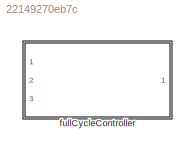
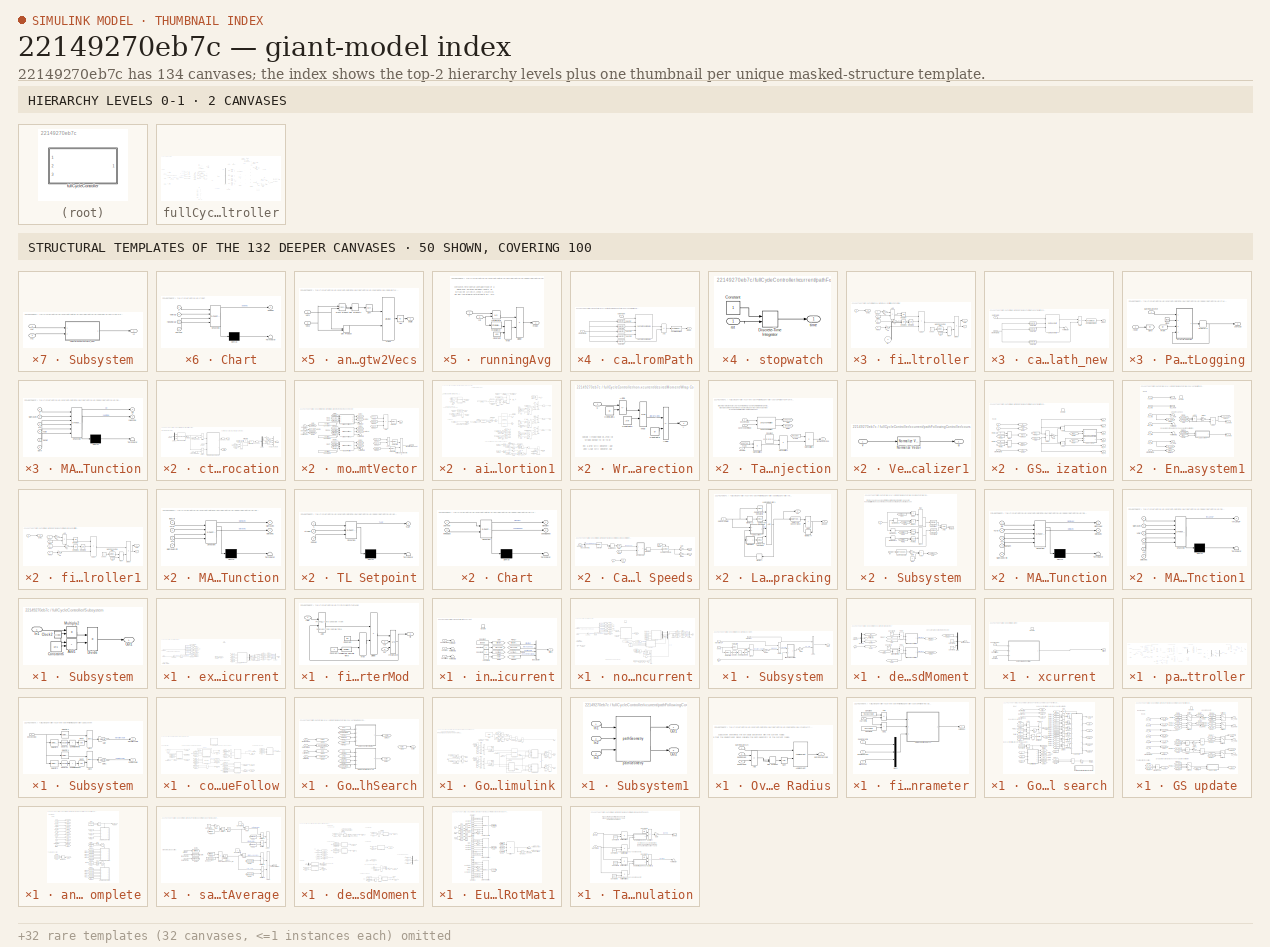
[diagram: thumbnail index - top-2 hierarchy levels (2 canvases) + 50 structural-template representatives of the remaining 132 canvases]
MODEL slx_22149270eb7c
KIND library
CONFIG AbsTol = auto
CONFIG EnableMultiTasking = off
CONFIG FixedStep = auto
CONFIG MaxStep = auto
CONFIG MinStep = auto
CONFIG RelTol = 1e-3
CONFIG SampleTimeConstraint = Unconstrained
CONFIG SolverName = VariableStepAuto
CONFIG StartTime = 0.0
CONFIG StopTime = 10.0
BLOCK [SubSystem] fullCycleController
  InitFcn = initializeBussesFromBlock(gcb)
  LoadFcn = initializeBussesFromBlock(gcb)
  MinAlgLoopOccurrences = on
  Ports = [3, 1]
  RequestExecContextInheritance = off
  StartFcn = initializeBussesFromBlock(gcb)
  VariantControl = strcmpi(FLIGHTCONTROLLER,'fullCycleController')
BLOCK [Sum] fullCycleController/Add
  IconShape = rectangular
  Ports = [2, 1]
BLOCK [Sum] fullCycleController/Add1
  Commented = on
  IconShape = rectangular
  Inputs = ++++++++
  Ports = [8, 1]
BLOCK [Assertion] fullCycleController/Assertion
  AssertionFailFcn = set_param('OCTModel','SimulationCommand','pause')
  Enabled = off
  StopWhenAssertionFail = off
BLOCK [BusAssignment] fullCycleController/Bus Assignment
  AssignedSignals = ctrlSurfDeflection
  Ports = [2, 1]
BLOCK [BusSelector] fullCycleController/Bus Selector
  OutputSignals = positionVec,velocityVec,gndStnVelocityVec
  Ports = [1, 3]
BLOCK [BusSelector] fullCycleController/Bus Selector1
  OutputSignals = vhclFlowVecs
  Ports = [1, 1]
BLOCK [BusSelector] fullCycleController/Bus Selector2
  OutputSignals = ctrlSurfDeflection
  Ports = [1, 1]
BLOCK [BusSelector] fullCycleController/Bus Selector3
  OutputSignals = closestPathVariable
  Ports = [1, 1]
BLOCK [SubSystem] fullCycleController/Chart
  ErrorFcn = Stateflow.Translate.translate
  PermitHierarchicalResolution = ExplicitOnly
  Ports = [4, 1]
  RequestExecContextInheritance = off
  SFBlockType = Chart
  TreatAsAtomicUnit = on
BLOCK [Demux] fullCycleController/Chart/ Demux 
  Outputs = 1
  Ports = [1, 1]
BLOCK [S-Function] fullCycleController/Chart/ SFunction 
  EnableBusSupport = off
  FunctionName = sf_sfun
  Parameters = maxR,nonCrossSpoolGain
  PortCounts = [4 2]
  Ports = [4, 2]
  SFcnIsStateOwnerBlock = off
  SFunctionDeploymentMode = off
  Tag = Stateflow S-Function 4
BLOCK [Terminator] fullCycleController/Chart/ Terminator 
BLOCK [Outport] fullCycleController/Chart/boolVec
  VectorParamsAs1DForOutWhenUnconnected = off
BLOCK [Inport] fullCycleController/Chart/flowVelMag
  Port = 3
BLOCK [Inport] fullCycleController/Chart/pathVar
  Port = 4
BLOCK [Inport] fullCycleController/Chart/r
BLOCK [Inport] fullCycleController/Chart/velMag
  Port = 2
BLOCK [Clock] fullCycleController/Clock
BLOCK [Clock] fullCycleController/Clock1
BLOCK [Reference] fullCycleController/Compare To Constant  REF=simulink/Logic and Bit
Operations/Compare
To Constant
  Ports = [1, 1]
  SourceBlock = simulink/Logic and Bit\nOperations/Compare\nTo Constant
  SourceProductBaseCode = SL
  SourceType = Compare To Constant
BLOCK [Constant] fullCycleController/Constant
  Value = 1:4
BLOCK [Constant] fullCycleController/Constant4
  Value = 819
BLOCK [Demux] fullCycleController/Demux
  Ports = [1, 4]
BLOCK [Reference] fullCycleController/Detect Change  REF=simulink/Logic and Bit
Operations/Detect
Change
  Ports = [1, 1]
  SourceBlock = simulink/Logic and Bit\nOperations/Detect\nChange
  SourceProductBaseCode = SL
  SourceType = Detect Change
BLOCK [DotProduct] fullCycleController/Dot Product
  OutDataTypeStr = Inherit: Inherit via internal rule
BLOCK [From] fullCycleController/From
  GotoTag = boolFilt
BLOCK [From] fullCycleController/From1
  GotoTag = pos
BLOCK [From] fullCycleController/From10
  GotoTag = snsProcBus
BLOCK [From] fullCycleController/From11
  GotoTag = envBus
BLOCK [From] fullCycleController/From12
  GotoTag = hiLvlCtrlBus
BLOCK [From] fullCycleController/From13
  GotoTag = snsProcBus
BLOCK [From] fullCycleController/From14
  GotoTag = envBus
BLOCK [From] fullCycleController/From15
  GotoTag = hiLvlCtrlBus
BLOCK [From] fullCycleController/From16
  GotoTag = snsProcBus
BLOCK [From] fullCycleController/From17
  GotoTag = envBus
BLOCK [From] fullCycleController/From18
  GotoTag = hiLvlCtrlBus
BLOCK [From] fullCycleController/From19
  GotoTag = envBus
BLOCK [From] fullCycleController/From2
  GotoTag = velGnd
BLOCK [From] fullCycleController/From20
  GotoTag = hiLvlCtrlBus
BLOCK [From] fullCycleController/From22
  GotoTag = boolFilt
BLOCK [From] fullCycleController/From23
  GotoTag = rst
BLOCK [From] fullCycleController/From24
  Commented = on
  GotoTag = rst
BLOCK [From] fullCycleController/From3
  GotoTag = flowVecGnd
BLOCK [From] fullCycleController/From4
  GotoTag = gsVelVecGnd
BLOCK [From] fullCycleController/From5
  GotoTag = gsVelVecGnd
BLOCK [From] fullCycleController/From6
  GotoTag = snsProcBus
BLOCK [From] fullCycleController/From7
  Commented = on
  GotoTag = snsProcBus
BLOCK [From] fullCycleController/From8
  Commented = on
  GotoTag = envBus
BLOCK [From] fullCycleController/From9
  Commented = on
  GotoTag = hiLvlCtrlBus
BLOCK [Goto] fullCycleController/Goto
  GotoTag = flowVecGnd
BLOCK [Goto] fullCycleController/Goto1
  GotoTag = pos
BLOCK [Goto] fullCycleController/Goto10
  GotoTag = hiLvlCtrlBus
BLOCK [Goto] fullCycleController/Goto15
  GotoTag = envBus
BLOCK [Goto] fullCycleController/Goto2
  GotoTag = velGnd
BLOCK [Goto] fullCycleController/Goto3
  GotoTag = boolFilt
BLOCK [Goto] fullCycleController/Goto4
  GotoTag = rst
BLOCK [Goto] fullCycleController/Goto5
  GotoTag = gsVelVecGnd
BLOCK [Goto] fullCycleController/Goto9
  GotoTag = snsProcBus
BLOCK [RelationalOperator] fullCycleController/GreaterThan
  InputSameDT = off
  Operator = <
  OutDataTypeStr = boolean
  Ports = [2, 1]
  RndMeth = Simplest
BLOCK [Memory] fullCycleController/Memory
  InitialCondition = [0;0;0;0]
BLOCK [Memory] fullCycleController/Memory1
  InitialCondition = [1 0 0 0]
BLOCK [Sum] fullCycleController/Minus
  IconShape = rectangular
  Inputs = -+
  Ports = [2, 1]
BLOCK [Product] fullCycleController/Multiply
  Ports = [2, 1]
BLOCK [Product] fullCycleController/Multiply1
  Ports = [2, 1]
BLOCK [MultiPortSwitch] fullCycleController/Multiport Switch
  DataPortIndices = {1,2,3,4,5,6}
  DiagnosticForDefault = Warning
  InputSameDT = off
  Inputs = 4
  Ports = [5, 1]
  SaturateOnIntegerOverflow = off
BLOCK [Logic] fullCycleController/NOT
  AllPortsSameDT = off
  Operator = NOT
  OutDataTypeStr = boolean
  Ports = [1, 1]
BLOCK [Reshape] fullCycleController/Reshape
  Ports = [1, 1]
BLOCK [Reshape] fullCycleController/Reshape1
  Ports = [1, 1]
BLOCK [Reshape] fullCycleController/Reshape2
  OutputDimensionality = Column vector (2-D)
  Ports = [1, 1]
BLOCK [Reshape] fullCycleController/Reshape3
  Ports = [1, 1]
BLOCK [Reshape] fullCycleController/Reshape4
  Ports = [1, 1]
BLOCK [Reshape] fullCycleController/Reshape5
  OutputDimensionality = Column vector (2-D)
  Ports = [1, 1]
BLOCK [Reshape] fullCycleController/Reshape8
  OutputDimensionality = Column vector (2-D)
  Ports = [1, 1]
BLOCK [Reshape] fullCycleController/Reshape9
  OutputDimensionality = Column vector (2-D)
  Ports = [1, 1]
BLOCK [Reference] fullCycleController/Sample and Hold  REF=dspsigops/Sample
and Hold
  Ports = [1, 1, 0, 1]
  SourceBlock = dspsigops/Sample\nand Hold
  SourceProductBaseCode = DS
  SourceType = Sample and Hold
BLOCK [Selector] fullCycleController/Selector
  IndexOptions = Select all,Index vector (dialog)
  Indices = [1 3],5
  InputPortWidth = 3
  NumberOfDimensions = 2
  OutputSizes = 1,1
  Ports = [1, 1]
BLOCK [Sqrt] fullCycleController/Sqrt
BLOCK [Sqrt] fullCycleController/Sqrt1
BLOCK [Sqrt] fullCycleController/Sqrt2
BLOCK [Math] fullCycleController/Square
  Operator = square
  Ports = [1, 1]
BLOCK [Math] fullCycleController/Square1
  Operator = square
  Ports = [1, 1]
BLOCK [Math] fullCycleController/Square2
  Operator = square
  Ports = [1, 1]
BLOCK [Step] fullCycleController/Step
  Commented = on
  SampleTime = 0
  Time = 250
BLOCK [Step] fullCycleController/Step1
  Commented = on
  SampleTime = 0
  Time = 260
BLOCK [Step] fullCycleController/Step2
  Commented = on
  SampleTime = 0
  Time = 580
BLOCK [Step] fullCycleController/Step3
  After = -3
  Commented = on
  SampleTime = 0
  Time = 600
BLOCK [Step] fullCycleController/Step4
  Commented = on
  SampleTime = 0
  Time = 900
BLOCK [Step] fullCycleController/Step5
  Commented = on
  SampleTime = 0
  Time = 910
BLOCK [Step] fullCycleController/Step6
  Commented = on
  SampleTime = 0
  Time = 1230
BLOCK [Step] fullCycleController/Step7
  After = -3
  Commented = on
  SampleTime = 0
  Time = 1250
BLOCK [SubSystem] fullCycleController/Subsystem
  Commented = on
  Ports = [1, 1]
  RequestExecContextInheritance = off
BLOCK [SubSystem] fullCycleController/Subsystem Reference
  Ports = [3, 1, 1]
  ReferencedSubsystem = fullCycleDocked_cl
  RequestExecContextInheritance = off
BLOCK [Sum] fullCycleController/Subsystem/Add1
  IconShape = rectangular
  Ports = [2, 1]
BLOCK [Clock] fullCycleController/Subsystem/Clock2
BLOCK [Constant] fullCycleController/Subsystem/Constant6
  Value = 1e-6
BLOCK [Product] fullCycleController/Subsystem/Divide
  Inputs = */
  Ports = [2, 1]
BLOCK [Inport] fullCycleController/Subsystem/In1
BLOCK [Product] fullCycleController/Subsystem/Multiply2
  Ports = [2, 1]
BLOCK [Outport] fullCycleController/Subsystem/Out1
  VectorParamsAs1DForOutWhenUnconnected = off
BLOCK [Sum] fullCycleController/Subtract
  IconShape = rectangular
  Inputs = +-
  Ports = [2, 1]
BLOCK [Sum] fullCycleController/Subtract1
  IconShape = rectangular
  Inputs = +-
  Ports = [2, 1]
BLOCK [Sum] fullCycleController/Sum of Elements
  IconShape = rectangular
  Inputs = +
  Ports = [1, 1]
BLOCK [Sum] fullCycleController/Sum of Elements1
  IconShape = rectangular
  Inputs = +
  Ports = [1, 1]
BLOCK [Sum] fullCycleController/Sum of Elements2
  IconShape = rectangular
  Inputs = +
  Ports = [1, 1]
BLOCK [Outport] fullCycleController/ctrlBus
  OutDataTypeStr = Bus: fltCtrlBus
  VectorParamsAs1DForOutWhenUnconnected = off
BLOCK [Inport] fullCycleController/envBus
  OutDataTypeStr = Bus: envBus
  Port = 3
BLOCK [SubSystem] fullCycleController/exit-xcurrent
  Ports = [3, 1, 1]
  RequestExecContextInheritance = off
  TreatAsAtomicUnit = on
BLOCK [BusCreator] fullCycleController/exit-xcurrent/Bus Creator
  DisplayOption = bar
  InheritFromInputs = off
  Inputs = 4
  OutDataTypeStr = Bus: fltCtrlBus
  Ports = [4, 1]
BLOCK [BusSelector] fullCycleController/exit-xcurrent/Bus Selector
  OutputSignals = positionVec,velocityVec,eulerAngles,angularVel,gndStnPositionVec,avgTetherLength
  Ports = [1, 6]
BLOCK [BusSelector] fullCycleController/exit-xcurrent/Bus Selector1
  OutputSignals = vhclFlowVecs
  Ports = [1, 1]
BLOCK [Constant] fullCycleController/exit-xcurrent/Constant1
  Value = 0
BLOCK [Constant] fullCycleController/exit-xcurrent/Constant2
  Value = 0
BLOCK [Constant] fullCycleController/exit-xcurrent/Constant3
  Value = 0
BLOCK [Constant] fullCycleController/exit-xcurrent/Constant4
  Value = zeros(3,1)
BLOCK [Constant] fullCycleController/exit-xcurrent/Constant5
  Value = 25
BLOCK [Demux] fullCycleController/exit-xcurrent/Demux
  Ports = [1, 4]
BLOCK [EnablePort] fullCycleController/exit-xcurrent/Enable
  Ports = []
BLOCK [From] fullCycleController/exit-xcurrent/From10
  GotoTag = sStar
BLOCK [From] fullCycleController/exit-xcurrent/From12
  GotoTag = flowVecGnd
BLOCK [From] fullCycleController/exit-xcurrent/From14
  GotoTag = velGnd
BLOCK [From] fullCycleController/exit-xcurrent/From17
  GotoTag = ctrlSurDefl
BLOCK [From] fullCycleController/exit-xcurrent/From18
  GotoTag = MDesBdy
BLOCK [From] fullCycleController/exit-xcurrent/From24
  GotoTag = eul
BLOCK [From] fullCycleController/exit-xcurrent/From7
  GotoTag = angVel
BLOCK [From] fullCycleController/exit-xcurrent/From8
  GotoTag = winchCmd
BLOCK [From] fullCycleController/exit-xcurrent/From9
  GotoTag = centralAngle
BLOCK [Goto] fullCycleController/exit-xcurrent/Goto
  GotoTag = ctrlSurDefl
BLOCK [Goto] fullCycleController/exit-xcurrent/Goto1
  GotoTag = winchCmd
BLOCK [Goto] fullCycleController/exit-xcurrent/Goto11
  Commented = on
  GotoTag = tetherLength
BLOCK [Goto] fullCycleController/exit-xcurrent/Goto13
  GotoTag = MDesBdy
BLOCK [Goto] fullCycleController/exit-xcurrent/Goto2
  GotoTag = centralAngle
BLOCK [Goto] fullCycleController/exit-xcurrent/Goto3
  GotoTag = sStar
BLOCK [Goto] fullCycleController/exit-xcurrent/Goto4
  GotoTag = flowVecGnd
BLOCK [Goto] fullCycleController/exit-xcurrent/Goto6
  GotoTag = velGnd
BLOCK [Goto] fullCycleController/exit-xcurrent/Goto7
  GotoTag = eul
BLOCK [Goto] fullCycleController/exit-xcurrent/Goto8
  GotoTag = angVel
BLOCK [Reshape] fullCycleController/exit-xcurrent/Reshape1
  OutputDimensionality = Column vector (2-D)
  Ports = [1, 1]
BLOCK [Reshape] fullCycleController/exit-xcurrent/Reshape2
  OutputDimensionality = Column vector (2-D)
  Ports = [1, 1]
BLOCK [Reshape] fullCycleController/exit-xcurrent/Reshape6
  OutputDimensionality = Column vector (2-D)
  Ports = [1, 1]
BLOCK [Reshape] fullCycleController/exit-xcurrent/Reshape7
  OutputDimensionality = Column vector (2-D)
  Ports = [1, 1]
BLOCK [Reshape] fullCycleController/exit-xcurrent/Reshape8
  OutputDimensionality = Column vector (2-D)
  Ports = [1, 1]
BLOCK [Reshape] fullCycleController/exit-xcurrent/Reshape9
  OutputDimensionality = Column vector (2-D)
  Ports = [1, 1]
BLOCK [Selector] fullCycleController/exit-xcurrent/Selector
  IndexOptions = Select all,Index vector (dialog)
  Indices = [1 3],5
  InputPortWidth = 3
  NumberOfDimensions = 2
  OutputSizes = 1,1
  Ports = [1, 1]
BLOCK [Terminator] fullCycleController/exit-xcurrent/Terminator
BLOCK [Terminator] fullCycleController/exit-xcurrent/Terminator3
BLOCK [Terminator] fullCycleController/exit-xcurrent/Terminator4
BLOCK [Terminator] fullCycleController/exit-xcurrent/Terminator5
BLOCK [Concatenate] fullCycleController/exit-xcurrent/Vector Concatenate
  NumInputs = 4
  Ports = [4, 1]
BLOCK [SubSystem] fullCycleController/exit-xcurrent/ctrlAllocation
  AncestorBlock = ctrlAllocMatrix_cl/ctrlAllocMatrix
  MinAlgLoopOccurrences = on
  Ports = [5, 1]
  RequestExecContextInheritance = off
BLOCK [Sum] fullCycleController/exit-xcurrent/ctrlAllocation/Add1
  IconShape = rectangular
  Inputs = +-
  Ports = [2, 1]
BLOCK [Demux] fullCycleController/exit-xcurrent/ctrlAllocation/Demux
  Outputs = 2
  Ports = [1, 2]
BLOCK [Demux] fullCycleController/exit-xcurrent/ctrlAllocation/Demux2
  Outputs = 3
  Ports = [1, 3]
BLOCK [Reference] fullCycleController/exit-xcurrent/ctrlAllocation/EulerAngle2RotMat  REF=eulAng2RotMat_ul/EulerAngle2RotMat
  Ports = [3, 2]
  SourceBlock = eulAng2RotMat_ul/EulerAngle2RotMat
  SourceType = SubSystem
BLOCK [From] fullCycleController/exit-xcurrent/ctrlAllocation/From3
  GotoTag = BMatrix
BLOCK [From] fullCycleController/exit-xcurrent/ctrlAllocation/From6
  GotoTag = M0
BLOCK [Gain] fullCycleController/exit-xcurrent/ctrlAllocation/Gain
  Gain = -1
BLOCK [Gain] fullCycleController/exit-xcurrent/ctrlAllocation/Gain3
BLOCK [Goto] fullCycleController/exit-xcurrent/ctrlAllocation/Goto1
  GotoTag = M0
BLOCK [Goto] fullCycleController/exit-xcurrent/ctrlAllocation/Goto2
  GotoTag = BMatrix
BLOCK [Ground] fullCycleController/exit-xcurrent/ctrlAllocation/Ground
BLOCK [Product] fullCycleController/exit-xcurrent/ctrlAllocation/Matrix Multiply
  Inputs = /
  Multiplication = Matrix(*)
  Ports = [1, 1]
BLOCK [Product] fullCycleController/exit-xcurrent/ctrlAllocation/Matrix Multiply1
  Multiplication = Matrix(*)
  Ports = [2, 1]
BLOCK [Product] fullCycleController/exit-xcurrent/ctrlAllocation/Multiply
  Multiplication = Matrix(*)
  Ports = [2, 1]
BLOCK [Product] fullCycleController/exit-xcurrent/ctrlAllocation/Multiply1
  Multiplication = Matrix(*)
  Ports = [2, 1]
BLOCK [Reshape] fullCycleController/exit-xcurrent/ctrlAllocation/Reshape
  OutputDimensionality = Column vector (2-D)
  Ports = [1, 1]
BLOCK [Reshape] fullCycleController/exit-xcurrent/ctrlAllocation/Reshape1
  OutputDimensionality = Column vector (2-D)
  Ports = [1, 1]
BLOCK [Reshape] fullCycleController/exit-xcurrent/ctrlAllocation/Reshape2
  OutputDimensionality = Column vector (2-D)
  Ports = [1, 1]
BLOCK [Reshape] fullCycleController/exit-xcurrent/ctrlAllocation/Reshape3
  Ports = [1, 1]
BLOCK [Terminator] fullCycleController/exit-xcurrent/ctrlAllocation/Terminator2
BLOCK [Concatenate] fullCycleController/exit-xcurrent/ctrlAllocation/Vector Concatenate
  NumInputs = 4
  Ports = [4, 1]
BLOCK [Inport] fullCycleController/exit-xcurrent/ctrlAllocation/angVel
  Port = 2
BLOCK [Outport] fullCycleController/exit-xcurrent/ctrlAllocation/ctrlSurfDefl
  VectorParamsAs1DForOutWhenUnconnected = off
BLOCK [Inport] fullCycleController/exit-xcurrent/ctrlAllocation/eulAng
  Port = 5
BLOCK [Inport] fullCycleController/exit-xcurrent/ctrlAllocation/momDesBdy
  Port = 4
BLOCK [SubSystem] fullCycleController/exit-xcurrent/ctrlAllocation/momentComponentVector
  Ports = [3, 2]
  RequestExecContextInheritance = off
BLOCK [Sum] fullCycleController/exit-xcurrent/ctrlAllocation/momentComponentVector/Add
  IconShape = rectangular
  Inputs = +++
  Ports = [3, 1]
BLOCK [Sum] fullCycleController/exit-xcurrent/ctrlAllocation/momentComponentVector/Add2
  IconShape = rectangular
  Inputs = -+
  Ports = [2, 1]
BLOCK [Constant] fullCycleController/exit-xcurrent/ctrlAllocation/momentComponentVector/Constant
  Value = vhcl.fluidMomentArms.Value(:,1)
BLOCK [Constant] fullCycleController/exit-xcurrent/ctrlAllocation/momentComponentVector/Constant1
  Value = vhcl.fluidMomentArms.Value(:,2)
BLOCK [Constant] fullCycleController/exit-xcurrent/ctrlAllocation/momentComponentVector/Constant3
  Value = vhcl.fluidMomentArms.Value(:,4)
BLOCK [From] fullCycleController/exit-xcurrent/ctrlAllocation/momentComponentVector/From
  GotoTag = velCMBdy
BLOCK [From] fullCycleController/exit-xcurrent/ctrlAllocation/momentComponentVector/From1
  GotoTag = angVelBdy
BLOCK [From] fullCycleController/exit-xcurrent/ctrlAllocation/momentComponentVector/From11
  GotoTag = avecR
BLOCK [From] fullCycleController/exit-xcurrent/ctrlAllocation/momentComponentVector/From12
  GotoTag = bvecA1
BLOCK [From] fullCycleController/exit-xcurrent/ctrlAllocation/momentComponentVector/From14
  GotoTag = bvecR
BLOCK [From] fullCycleController/exit-xcurrent/ctrlAllocation/momentComponentVector/From15
  GotoTag = velCMBdy
BLOCK [From] fullCycleController/exit-xcurrent/ctrlAllocation/momentComponentVector/From16
  GotoTag = angVelBdy
BLOCK [From] fullCycleController/exit-xcurrent/ctrlAllocation/momentComponentVector/From17
  GotoTag = velWindBdy
BLOCK [From] fullCycleController/exit-xcurrent/ctrlAllocation/momentComponentVector/From18
  GotoTag = avecA2
BLOCK [From] fullCycleController/exit-xcurrent/ctrlAllocation/momentComponentVector/From19
  GotoTag = bvecA2
BLOCK [From] fullCycleController/exit-xcurrent/ctrlAllocation/momentComponentVector/From2
  GotoTag = velWindBdy
BLOCK [From] fullCycleController/exit-xcurrent/ctrlAllocation/momentComponentVector/From6
  GotoTag = velCMBdy
BLOCK [From] fullCycleController/exit-xcurrent/ctrlAllocation/momentComponentVector/From7
  GotoTag = angVelBdy
BLOCK [From] fullCycleController/exit-xcurrent/ctrlAllocation/momentComponentVector/From8
  GotoTag = velWindBdy
BLOCK [From] fullCycleController/exit-xcurrent/ctrlAllocation/momentComponentVector/From9
  GotoTag = avecA1
BLOCK [Goto] fullCycleController/exit-xcurrent/ctrlAllocation/momentComponentVector/Goto
  GotoTag = velCMBdy
BLOCK [Goto] fullCycleController/exit-xcurrent/ctrlAllocation/momentComponentVector/Goto1
  GotoTag = angVelBdy
BLOCK [Goto] fullCycleController/exit-xcurrent/ctrlAllocation/momentComponentVector/Goto10
  GotoTag = bvecA2
BLOCK [Goto] fullCycleController/exit-xcurrent/ctrlAllocation/momentComponentVector/Goto2
  GotoTag = velWindBdy
BLOCK [Goto] fullCycleController/exit-xcurrent/ctrlAllocation/momentComponentVector/Goto3
  GotoTag = avecA1
BLOCK [Goto] fullCycleController/exit-xcurrent/ctrlAllocation/momentComponentVector/Goto5
  GotoTag = avecR
BLOCK [Goto] fullCycleController/exit-xcurrent/ctrlAllocation/momentComponentVector/Goto6
  GotoTag = bvecA1
BLOCK [Goto] fullCycleController/exit-xcurrent/ctrlAllocation/momentComponentVector/Goto8
  GotoTag = bvecR
BLOCK [Goto] fullCycleController/exit-xcurrent/ctrlAllocation/momentComponentVector/Goto9
  GotoTag = avecA2
BLOCK [Concatenate] fullCycleController/exit-xcurrent/ctrlAllocation/momentComponentVector/Matrix Concatenate3
  ConcatenateDimension = 2
  Mode = Multidimensional array
  Ports = [2, 1]
BLOCK [Selector] fullCycleController/exit-xcurrent/ctrlAllocation/momentComponentVector/Selector
  IndexOptions = Index vector (dialog)
  Indices = [1 3]
  InputPortWidth = 3
  OutputSizes = 1
  Ports = [1, 1]
BLOCK [Selector] fullCycleController/exit-xcurrent/ctrlAllocation/momentComponentVector/Selector1
  IndexOptions = Index vector (dialog)
  Indices = [1 3]
  InputPortWidth = 3
  OutputSizes = 1
  Ports = [1, 1]
BLOCK [Selector] fullCycleController/exit-xcurrent/ctrlAllocation/momentComponentVector/Selector2
  IndexOptions = Index vector (dialog)
  Indices = [1 3]
  InputPortWidth = 3
  OutputSizes = 1
  Ports = [1, 1]
BLOCK [Terminator] fullCycleController/exit-xcurrent/ctrlAllocation/momentComponentVector/Terminator
BLOCK [Terminator] fullCycleController/exit-xcurrent/ctrlAllocation/momentComponentVector/Terminator2
BLOCK [Terminator] fullCycleController/exit-xcurrent/ctrlAllocation/momentComponentVector/Terminator3
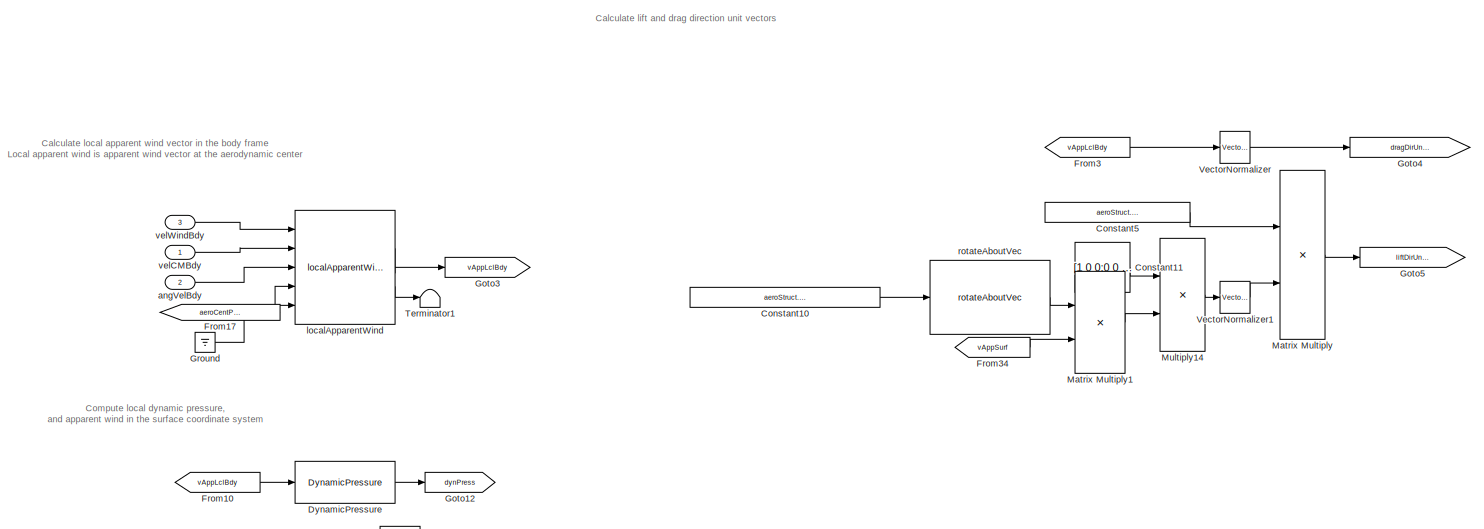
[diagram: fullCycleController/exit-xcurrent/ctrlAllocation/momentComponentVector/aileronPortion1 - part 1/4, top center region]
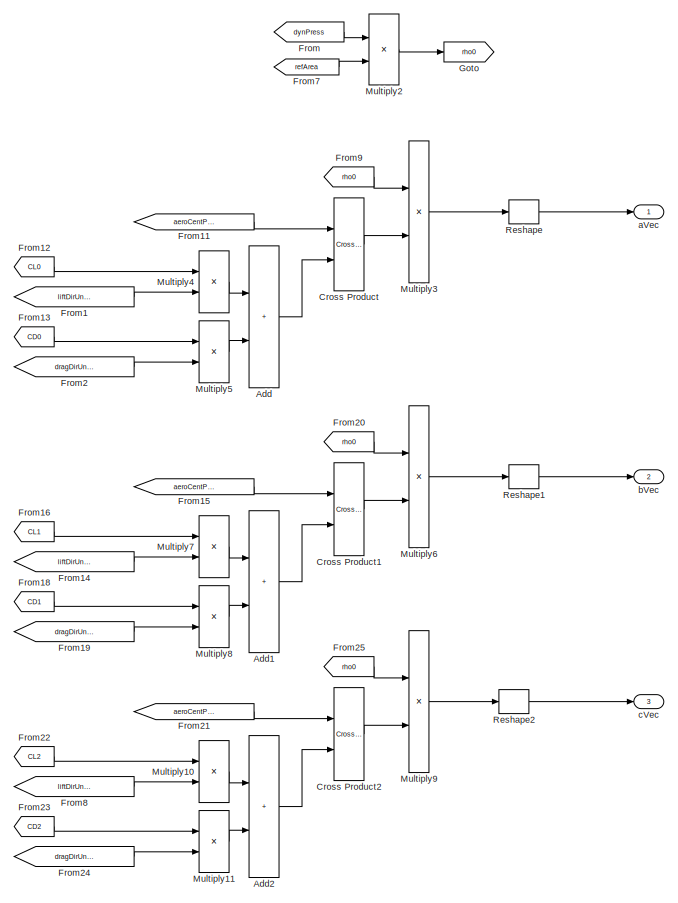
[diagram: fullCycleController/exit-xcurrent/ctrlAllocation/momentComponentVector/aileronPortion1 - part 2/4, middle right region]
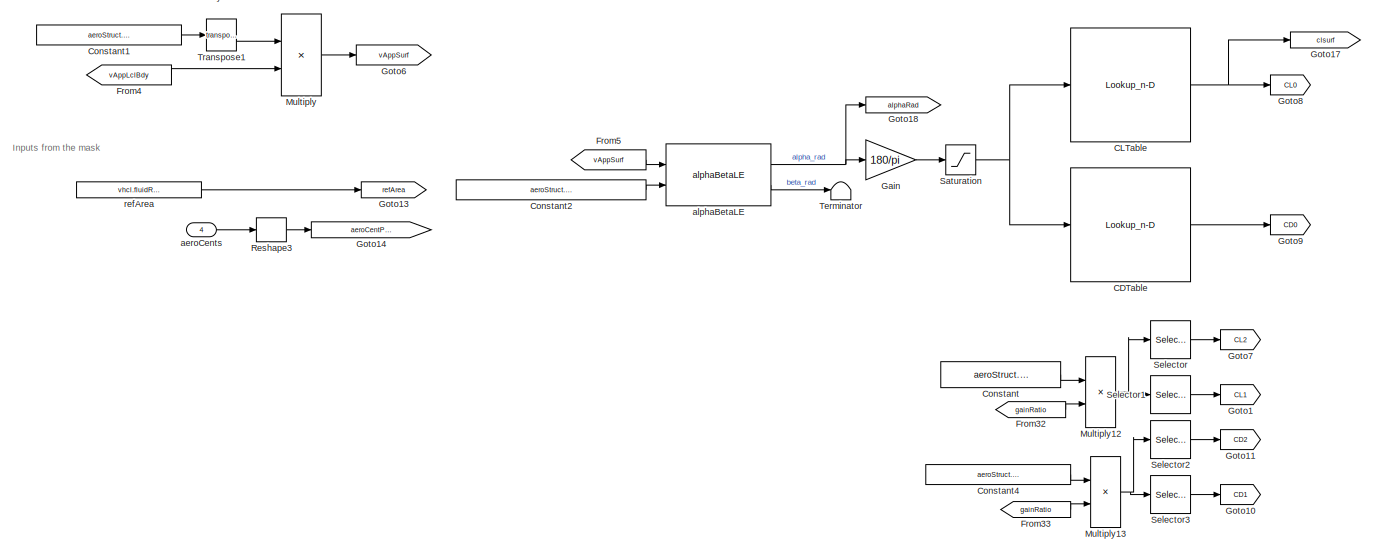
[diagram: fullCycleController/exit-xcurrent/ctrlAllocation/momentComponentVector/aileronPortion1 - part 3/4, central region]
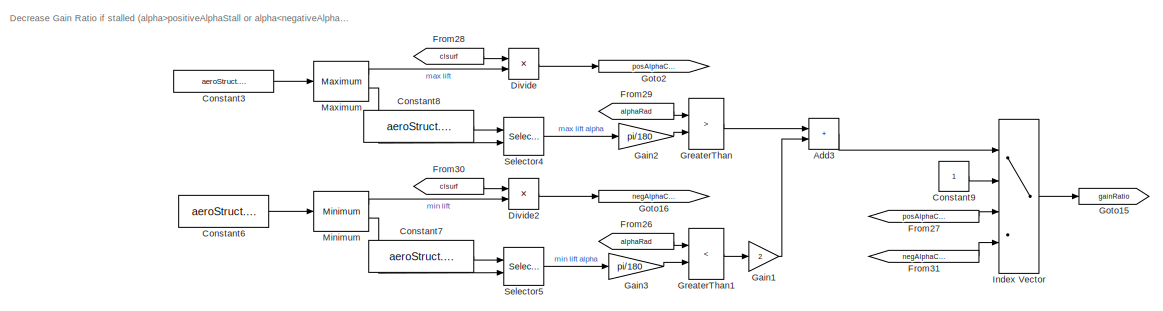
[diagram: fullCycleController/exit-xcurrent/ctrlAllocation/momentComponentVector/aileronPortion1 - part 4/4, bottom right region]
BLOCK [SubSystem] fullCycleController/exit-xcurrent/ctrlAllocation/momentComponentVector/aileronPortion1
  Ports = [4, 3]
  RequestExecContextInheritance = off
BLOCK [Sum] fullCycleController/exit-xcurrent/ctrlAllocation/momentComponentVector/aileronPortion1/Add
  IconShape = rectangular
  Ports = [2, 1]
BLOCK [Sum] fullCycleController/exit-xcurrent/ctrlAllocation/momentComponentVector/aileronPortion1/Add1
  IconShape = rectangular
  Ports = [2, 1]
BLOCK [Sum] fullCycleController/exit-xcurrent/ctrlAllocation/momentComponentVector/aileronPortion1/Add2
  IconShape = rectangular
  Ports = [2, 1]
BLOCK [Sum] fullCycleController/exit-xcurrent/ctrlAllocation/momentComponentVector/aileronPortion1/Add3
  IconShape = rectangular
  Ports = [2, 1]
BLOCK [Lookup_n-D] fullCycleController/exit-xcurrent/ctrlAllocation/momentComponentVector/aileronPortion1/CDTable
  BreakpointsForDimension1 = aeroStruct.alpha.Value
  ExtrapMethod = Clip
  InputPortMap = u0
  InternalRulePriority = Speed
  LookupTableObject = CLTable
  NumberOfTableDimensions = 1
  Ports = [1, 1]
  RndMeth = Simplest
  Table = aeroStruct.CD.Value
  UseLastTableValue = on
BLOCK [Lookup_n-D] fullCycleController/exit-xcurrent/ctrlAllocation/momentComponentVector/aileronPortion1/CLTable
  BreakpointsForDimension1 = aeroStruct.alpha.Value
  ExtrapMethod = Clip
  InputPortMap = u0
  InternalRulePriority = Speed
  LookupTableObject = CLTable
  NumberOfTableDimensions = 1
  Ports = [1, 1]
  RndMeth = Simplest
  Table = aeroStruct.CL.Value
  UseLastTableValue = on
BLOCK [Constant] fullCycleController/exit-xcurrent/ctrlAllocation/momentComponentVector/aileronPortion1/Constant
  NameLocation = top
  Value = aeroStruct.gainCL.Value
BLOCK [Constant] fullCycleController/exit-xcurrent/ctrlAllocation/momentComponentVector/aileronPortion1/Constant1
  Value = aeroStruct.RSurf2Bdy.Value
BLOCK [Constant] fullCycleController/exit-xcurrent/ctrlAllocation/momentComponentVector/aileronPortion1/Constant10
  Value = aeroStruct.incAlphaUnitVecSurf.Value
BLOCK [Constant] fullCycleController/exit-xcurrent/ctrlAllocation/momentComponentVector/aileronPortion1/Constant11
  Value = [1 0 0;0 0 0;0 0 1]
BLOCK [Constant] fullCycleController/exit-xcurrent/ctrlAllocation/momentComponentVector/aileronPortion1/Constant2
  Value = aeroStruct.incAlphaUnitVecSurf.Value
BLOCK [Constant] fullCycleController/exit-xcurrent/ctrlAllocation/momentComponentVector/aileronPortion1/Constant3
  Value = aeroStruct.CL.Value
BLOCK [Constant] fullCycleController/exit-xcurrent/ctrlAllocation/momentComponentVector/aileronPortion1/Constant4
  NameLocation = top
  Value = aeroStruct.gainCD.Value
BLOCK [Constant] fullCycleController/exit-xcurrent/ctrlAllocation/momentComponentVector/aileronPortion1/Constant5
  Value = aeroStruct.RSurf2Bdy.Value
BLOCK [Constant] fullCycleController/exit-xcurrent/ctrlAllocation/momentComponentVector/aileronPortion1/Constant6
  Value = aeroStruct.CL.Value
BLOCK [Constant] fullCycleController/exit-xcurrent/ctrlAllocation/momentComponentVector/aileronPortion1/Constant7
  Value = aeroStruct.alpha.Value
BLOCK [Constant] fullCycleController/exit-xcurrent/ctrlAllocation/momentComponentVector/aileronPortion1/Constant8
  Value = aeroStruct.alpha.Value
BLOCK [Constant] fullCycleController/exit-xcurrent/ctrlAllocation/momentComponentVector/aileronPortion1/Constant9
BLOCK [Reference] fullCycleController/exit-xcurrent/ctrlAllocation/momentComponentVector/aileronPortion1/Cross Product  REF=vrlib/Utilities/Cross Product
  Ports = [2, 1]
  SourceBlock = vrlib/Utilities/Cross Product
  SourceProductBaseCode = SL
  SourceType = Cross Product
BLOCK [Reference] fullCycleController/exit-xcurrent/ctrlAllocation/momentComponentVector/aileronPortion1/Cross Product1  REF=vrlib/Utilities/Cross Product
  Ports = [2, 1]
  SourceBlock = vrlib/Utilities/Cross Product
  SourceProductBaseCode = SL
  SourceType = Cross Product
BLOCK [Reference] fullCycleController/exit-xcurrent/ctrlAllocation/momentComponentVector/aileronPortion1/Cross Product2  REF=vrlib/Utilities/Cross Product
  Ports = [2, 1]
  SourceBlock = vrlib/Utilities/Cross Product
  SourceProductBaseCode = SL
  SourceType = Cross Product
BLOCK [Product] fullCycleController/exit-xcurrent/ctrlAllocation/momentComponentVector/aileronPortion1/Divide
  Inputs = */
  Ports = [2, 1]
BLOCK [Product] fullCycleController/exit-xcurrent/ctrlAllocation/momentComponentVector/aileronPortion1/Divide2
  Inputs = */
  Ports = [2, 1]
BLOCK [Reference] fullCycleController/exit-xcurrent/ctrlAllocation/momentComponentVector/aileronPortion1/DynamicPressure  REF=dynamicPressure_ul/DynamicPressure
  Ports = [1, 1]
  SourceBlock = dynamicPressure_ul/DynamicPressure
BLOCK [From] fullCycleController/exit-xcurrent/ctrlAllocation/momentComponentVector/aileronPortion1/From
  GotoTag = dynPress
BLOCK [From] fullCycleController/exit-xcurrent/ctrlAllocation/momentComponentVector/aileronPortion1/From1
  GotoTag = liftDirUnitVecBdy
BLOCK [From] fullCycleController/exit-xcurrent/ctrlAllocation/momentComponentVector/aileronPortion1/From10
  GotoTag = vAppLclBdy
BLOCK [From] fullCycleController/exit-xcurrent/ctrlAllocation/momentComponentVector/aileronPortion1/From11
  GotoTag = aeroCentPosVecBdy
BLOCK [From] fullCycleController/exit-xcurrent/ctrlAllocation/momentComponentVector/aileronPortion1/From12
  GotoTag = CL0
BLOCK [From] fullCycleController/exit-xcurrent/ctrlAllocation/momentComponentVector/aileronPortion1/From13
  GotoTag = CD0
BLOCK [From] fullCycleController/exit-xcurrent/ctrlAllocation/momentComponentVector/aileronPortion1/From14
  GotoTag = liftDirUnitVecBdy
BLOCK [From] fullCycleController/exit-xcurrent/ctrlAllocation/momentComponentVector/aileronPortion1/From15
  GotoTag = aeroCentPosVecBdy
BLOCK [From] fullCycleController/exit-xcurrent/ctrlAllocation/momentComponentVector/aileronPortion1/From16
  GotoTag = CL1
BLOCK [From] fullCycleController/exit-xcurrent/ctrlAllocation/momentComponentVector/aileronPortion1/From17
  GotoTag = aeroCentPosVecBdy
BLOCK [From] fullCycleController/exit-xcurrent/ctrlAllocation/momentComponentVector/aileronPortion1/From18
  GotoTag = CD1
BLOCK [From] fullCycleController/exit-xcurrent/ctrlAllocation/momentComponentVector/aileronPortion1/From19
  GotoTag = dragDirUnitVecBdy
BLOCK [From] fullCycleController/exit-xcurrent/ctrlAllocation/momentComponentVector/aileronPortion1/From2
  GotoTag = dragDirUnitVecBdy
BLOCK [From] fullCycleController/exit-xcurrent/ctrlAllocation/momentComponentVector/aileronPortion1/From20
  GotoTag = rho0
BLOCK [From] fullCycleController/exit-xcurrent/ctrlAllocation/momentComponentVector/aileronPortion1/From21
  GotoTag = aeroCentPosVecBdy
BLOCK [From] fullCycleController/exit-xcurrent/ctrlAllocation/momentComponentVector/aileronPortion1/From22
  GotoTag = CL2
BLOCK [From] fullCycleController/exit-xcurrent/ctrlAllocation/momentComponentVector/aileronPortion1/From23
  GotoTag = CD2
BLOCK [From] fullCycleController/exit-xcurrent/ctrlAllocation/momentComponentVector/aileronPortion1/From24
  GotoTag = dragDirUnitVecBdy
BLOCK [From] fullCycleController/exit-xcurrent/ctrlAllocation/momentComponentVector/aileronPortion1/From25
  GotoTag = rho0
BLOCK [From] fullCycleController/exit-xcurrent/ctrlAllocation/momentComponentVector/aileronPortion1/From26
  GotoTag = alphaRad
BLOCK [From] fullCycleController/exit-xcurrent/ctrlAllocation/momentComponentVector/aileronPortion1/From27
  GotoTag = posAlphaCLRatio
BLOCK [From] fullCycleController/exit-xcurrent/ctrlAllocation/momentComponentVector/aileronPortion1/From28
  GotoTag = clsurf
BLOCK [From] fullCycleController/exit-xcurrent/ctrlAllocation/momentComponentVector/aileronPortion1/From29
  GotoTag = alphaRad
BLOCK [From] fullCycleController/exit-xcurrent/ctrlAllocation/momentComponentVector/aileronPortion1/From3
  GotoTag = vAppLclBdy
BLOCK [From] fullCycleController/exit-xcurrent/ctrlAllocation/momentComponentVector/aileronPortion1/From30
  GotoTag = clsurf
BLOCK [From] fullCycleController/exit-xcurrent/ctrlAllocation/momentComponentVector/aileronPortion1/From31
  GotoTag = negAlphaCLRatio
BLOCK [From] fullCycleController/exit-xcurrent/ctrlAllocation/momentComponentVector/aileronPortion1/From32
  GotoTag = gainRatio
BLOCK [From] fullCycleController/exit-xcurrent/ctrlAllocation/momentComponentVector/aileronPortion1/From33
  GotoTag = gainRatio
BLOCK [From] fullCycleController/exit-xcurrent/ctrlAllocation/momentComponentVector/aileronPortion1/From34
  GotoTag = vAppSurf
BLOCK [From] fullCycleController/exit-xcurrent/ctrlAllocation/momentComponentVector/aileronPortion1/From4
  GotoTag = vAppLclBdy
BLOCK [From] fullCycleController/exit-xcurrent/ctrlAllocation/momentComponentVector/aileronPortion1/From5
  GotoTag = vAppSurf
BLOCK [From] fullCycleController/exit-xcurrent/ctrlAllocation/momentComponentVector/aileronPortion1/From7
  GotoTag = refArea
BLOCK [From] fullCycleController/exit-xcurrent/ctrlAllocation/momentComponentVector/aileronPortion1/From8
  GotoTag = liftDirUnitVecBdy
BLOCK [From] fullCycleController/exit-xcurrent/ctrlAllocation/momentComponentVector/aileronPortion1/From9
  GotoTag = rho0
BLOCK [Gain] fullCycleController/exit-xcurrent/ctrlAllocation/momentComponentVector/aileronPortion1/Gain
  Gain = 180/pi
BLOCK [Gain] fullCycleController/exit-xcurrent/ctrlAllocation/momentComponentVector/aileronPortion1/Gain1
  Gain = 2
BLOCK [Gain] fullCycleController/exit-xcurrent/ctrlAllocation/momentComponentVector/aileronPortion1/Gain2
  Gain = pi/180
BLOCK [Gain] fullCycleController/exit-xcurrent/ctrlAllocation/momentComponentVector/aileronPortion1/Gain3
  Gain = pi/180
BLOCK [Goto] fullCycleController/exit-xcurrent/ctrlAllocation/momentComponentVector/aileronPortion1/Goto
  GotoTag = rho0
BLOCK [Goto] fullCycleController/exit-xcurrent/ctrlAllocation/momentComponentVector/aileronPortion1/Goto1
  GotoTag = CL1
BLOCK [Goto] fullCycleController/exit-xcurrent/ctrlAllocation/momentComponentVector/aileronPortion1/Goto10
  GotoTag = CD1
BLOCK [Goto] fullCycleController/exit-xcurrent/ctrlAllocation/momentComponentVector/aileronPortion1/Goto11
  GotoTag = CD2
BLOCK [Goto] fullCycleController/exit-xcurrent/ctrlAllocation/momentComponentVector/aileronPortion1/Goto12
  GotoTag = dynPress
BLOCK [Goto] fullCycleController/exit-xcurrent/ctrlAllocation/momentComponentVector/aileronPortion1/Goto13
  GotoTag = refArea
BLOCK [Goto] fullCycleController/exit-xcurrent/ctrlAllocation/momentComponentVector/aileronPortion1/Goto14
  GotoTag = aeroCentPosVecBdy
BLOCK [Goto] fullCycleController/exit-xcurrent/ctrlAllocation/momentComponentVector/aileronPortion1/Goto15
  GotoTag = gainRatio
BLOCK [Goto] fullCycleController/exit-xcurrent/ctrlAllocation/momentComponentVector/aileronPortion1/Goto16
  GotoTag = negAlphaCLRatio
BLOCK [Goto] fullCycleController/exit-xcurrent/ctrlAllocation/momentComponentVector/aileronPortion1/Goto17
  GotoTag = clsurf
BLOCK [Goto] fullCycleController/exit-xcurrent/ctrlAllocation/momentComponentVector/aileronPortion1/Goto18
  GotoTag = alphaRad
BLOCK [Goto] fullCycleController/exit-xcurrent/ctrlAllocation/momentComponentVector/aileronPortion1/Goto2
  GotoTag = posAlphaCLRatio
BLOCK [Goto] fullCycleController/exit-xcurrent/ctrlAllocation/momentComponentVector/aileronPortion1/Goto3
  GotoTag = vAppLclBdy
BLOCK [Goto] fullCycleController/exit-xcurrent/ctrlAllocation/momentComponentVector/aileronPortion1/Goto4
  GotoTag = dragDirUnitVecBdy
BLOCK [Goto] fullCycleController/exit-xcurrent/ctrlAllocation/momentComponentVector/aileronPortion1/Goto5
  GotoTag = liftDirUnitVecBdy
BLOCK [Goto] fullCycleController/exit-xcurrent/ctrlAllocation/momentComponentVector/aileronPortion1/Goto6
  GotoTag = vAppSurf
BLOCK [Goto] fullCycleController/exit-xcurrent/ctrlAllocation/momentComponentVector/aileronPortion1/Goto7
  GotoTag = CL2
BLOCK [Goto] fullCycleController/exit-xcurrent/ctrlAllocation/momentComponentVector/aileronPortion1/Goto8
  GotoTag = CL0
BLOCK [Goto] fullCycleController/exit-xcurrent/ctrlAllocation/momentComponentVector/aileronPortion1/Goto9
  GotoTag = CD0
BLOCK [RelationalOperator] fullCycleController/exit-xcurrent/ctrlAllocation/momentComponentVector/aileronPortion1/GreaterThan
  InputSameDT = off
  Operator = >
  OutDataTypeStr = boolean
  Ports = [2, 1]
  RndMeth = Simplest
BLOCK [RelationalOperator] fullCycleController/exit-xcurrent/ctrlAllocation/momentComponentVector/aileronPortion1/GreaterThan1
  InputSameDT = off
  Operator = <
  OutDataTypeStr = boolean
  Ports = [2, 1]
  RndMeth = Simplest
BLOCK [Ground] fullCycleController/exit-xcurrent/ctrlAllocation/momentComponentVector/aileronPortion1/Ground
BLOCK [MultiPortSwitch] fullCycleController/exit-xcurrent/ctrlAllocation/momentComponentVector/aileronPortion1/Index Vector
  DataPortOrder = Zero-based contiguous
  InputSameDT = off
  Ports = [4, 1]
  SaturateOnIntegerOverflow = off
  zeroidx = on
BLOCK [Product] fullCycleController/exit-xcurrent/ctrlAllocation/momentComponentVector/aileronPortion1/Matrix Multiply
  Multiplication = Matrix(*)
  Ports = [2, 1]
BLOCK [Product] fullCycleController/exit-xcurrent/ctrlAllocation/momentComponentVector/aileronPortion1/Matrix Multiply1
  Multiplication = Matrix(*)
  Ports = [2, 1]
BLOCK [Reference] fullCycleController/exit-xcurrent/ctrlAllocation/momentComponentVector/aileronPortion1/Maximum  REF=dspstat3/Maximum
  Ports = [1, 2]
  SourceBlock = dspstat3/Maximum
  SourceProductBaseCode = DS
  SourceType = Maximum
  UserDataPersistent = on
BLOCK [Reference] fullCycleController/exit-xcurrent/ctrlAllocation/momentComponentVector/aileronPortion1/Minimum  REF=dspstat3/Minimum
  Ports = [1, 2]
  SourceBlock = dspstat3/Minimum
  SourceProductBaseCode = DS
  SourceType = Minimum
  UserDataPersistent = on
BLOCK [Product] fullCycleController/exit-xcurrent/ctrlAllocation/momentComponentVector/aileronPortion1/Multiply
  Multiplication = Matrix(*)
  Ports = [2, 1]
BLOCK [Product] fullCycleController/exit-xcurrent/ctrlAllocation/momentComponentVector/aileronPortion1/Multiply10
  Ports = [2, 1]
BLOCK [Product] fullCycleController/exit-xcurrent/ctrlAllocation/momentComponentVector/aileronPortion1/Multiply11
  Ports = [2, 1]
BLOCK [Product] fullCycleController/exit-xcurrent/ctrlAllocation/momentComponentVector/aileronPortion1/Multiply12
  Ports = [2, 1]
BLOCK [Product] fullCycleController/exit-xcurrent/ctrlAllocation/momentComponentVector/aileronPortion1/Multiply13
  Ports = [2, 1]
BLOCK [Product] fullCycleController/exit-xcurrent/ctrlAllocation/momentComponentVector/aileronPortion1/Multiply14
  Multiplication = Matrix(*)
  Ports = [2, 1]
BLOCK [Product] fullCycleController/exit-xcurrent/ctrlAllocation/momentComponentVector/aileronPortion1/Multiply2
  Ports = [2, 1]
BLOCK [Product] fullCycleController/exit-xcurrent/ctrlAllocation/momentComponentVector/aileronPortion1/Multiply3
  Ports = [2, 1]
BLOCK [Product] fullCycleController/exit-xcurrent/ctrlAllocation/momentComponentVector/aileronPortion1/Multiply4
  Ports = [2, 1]
BLOCK [Product] fullCycleController/exit-xcurrent/ctrlAllocation/momentComponentVector/aileronPortion1/Multiply5
  Ports = [2, 1]
BLOCK [Product] fullCycleController/exit-xcurrent/ctrlAllocation/momentComponentVector/aileronPortion1/Multiply6
  Ports = [2, 1]
BLOCK [Product] fullCycleController/exit-xcurrent/ctrlAllocation/momentComponentVector/aileronPortion1/Multiply7
  Ports = [2, 1]
BLOCK [Product] fullCycleController/exit-xcurrent/ctrlAllocation/momentComponentVector/aileronPortion1/Multiply8
  Ports = [2, 1]
BLOCK [Product] fullCycleController/exit-xcurrent/ctrlAllocation/momentComponentVector/aileronPortion1/Multiply9
  Ports = [2, 1]
BLOCK [Reshape] fullCycleController/exit-xcurrent/ctrlAllocation/momentComponentVector/aileronPortion1/Reshape
  OutputDimensionality = Column vector (2-D)
  Ports = [1, 1]
BLOCK [Reshape] fullCycleController/exit-xcurrent/ctrlAllocation/momentComponentVector/aileronPortion1/Reshape1
  OutputDimensionality = Column vector (2-D)
  Ports = [1, 1]
BLOCK [Reshape] fullCycleController/exit-xcurrent/ctrlAllocation/momentComponentVector/aileronPortion1/Reshape2
  OutputDimensionality = Column vector (2-D)
  Ports = [1, 1]
BLOCK [Reshape] fullCycleController/exit-xcurrent/ctrlAllocation/momentComponentVector/aileronPortion1/Reshape3
  OutputDimensionality = Column vector (2-D)
  Ports = [1, 1]
BLOCK [Saturate] fullCycleController/exit-xcurrent/ctrlAllocation/momentComponentVector/aileronPortion1/Saturation
  LowerLimit = -90
  UpperLimit = 90
BLOCK [Selector] fullCycleController/exit-xcurrent/ctrlAllocation/momentComponentVector/aileronPortion1/Selector
  IndexOptions = Index vector (dialog)
  Indices = 1
  InputPortWidth = 3
  OutputSizes = 1
  Ports = [1, 1]
BLOCK [Selector] fullCycleController/exit-xcurrent/ctrlAllocation/momentComponentVector/aileronPortion1/Selector1
  IndexOptions = Index vector (dialog)
  Indices = 2
  InputPortWidth = 3
  OutputSizes = 1
  Ports = [1, 1]
BLOCK [Selector] fullCycleController/exit-xcurrent/ctrlAllocation/momentComponentVector/aileronPortion1/Selector2
  IndexOptions = Index vector (dialog)
  Indices = 1
  InputPortWidth = 3
  OutputSizes = 1
  Ports = [1, 1]
BLOCK [Selector] fullCycleController/exit-xcurrent/ctrlAllocation/momentComponentVector/aileronPortion1/Selector3
  IndexOptions = Index vector (dialog)
  Indices = 2
  InputPortWidth = 3
  OutputSizes = 1
  Ports = [1, 1]
BLOCK [Selector] fullCycleController/exit-xcurrent/ctrlAllocation/momentComponentVector/aileronPortion1/Selector4
  IndexOptions = Index vector (port)
  Indices = [1 3]
  InputPortWidth = length(vhcl.portWing.alpha.Value)
  OutputSizes = 1
  Ports = [2, 1]
BLOCK [Selector] fullCycleController/exit-xcurrent/ctrlAllocation/momentComponentVector/aileronPortion1/Selector5
  IndexOptions = Index vector (port)
  Indices = [1 3]
  InputPortWidth = length(vhcl.portWing.alpha.Value)
  OutputSizes = 1
  Ports = [2, 1]
BLOCK [Terminator] fullCycleController/exit-xcurrent/ctrlAllocation/momentComponentVector/aileronPortion1/Terminator
BLOCK [Terminator] fullCycleController/exit-xcurrent/ctrlAllocation/momentComponentVector/aileronPortion1/Terminator1
BLOCK [Math] fullCycleController/exit-xcurrent/ctrlAllocation/momentComponentVector/aileronPortion1/Transpose1
  Operator = transpose
  Ports = [1, 1]
  SignedPower = on
BLOCK [Reference] fullCycleController/exit-xcurrent/ctrlAllocation/momentComponentVector/aileronPortion1/VectorNormalizer   REF=vectorNormalizer_ul/VectorNormalizer

  Ports = [1, 1]
  SourceBlock = vectorNormalizer_ul/VectorNormalizer
  SourceType = SubSystem
BLOCK [Reference] fullCycleController/exit-xcurrent/ctrlAllocation/momentComponentVector/aileronPortion1/VectorNormalizer1  REF=vectorNormalizer_ul/VectorNormalizer

  Ports = [1, 1]
  SourceBlock = vectorNormalizer_ul/VectorNormalizer
  SourceType = SubSystem
BLOCK [Outport] fullCycleController/exit-xcurrent/ctrlAllocation/momentComponentVector/aileronPortion1/aVec
  PortDimensions = [3 1]
  VectorParamsAs1DForOutWhenUnconnected = off
BLOCK [Inport] fullCycleController/exit-xcurrent/ctrlAllocation/momentComponentVector/aileronPortion1/aeroCents
  Port = 4
BLOCK [Reference] fullCycleController/exit-xcurrent/ctrlAllocation/momentComponentVector/aileronPortion1/alphaBetaLE  REF=alphaBetaLE_ul/alphaBetaLE
  Ports = [2, 2]
  SourceBlock = alphaBetaLE_ul/alphaBetaLE
  SourceType = SubSystem
BLOCK [Inport] fullCycleController/exit-xcurrent/ctrlAllocation/momentComponentVector/aileronPortion1/angVelBdy
  Port = 2
BLOCK [Outport] fullCycleController/exit-xcurrent/ctrlAllocation/momentComponentVector/aileronPortion1/bVec
  Port = 2
  PortDimensions = [3 1]
  VectorParamsAs1DForOutWhenUnconnected = off
BLOCK [Outport] fullCycleController/exit-xcurrent/ctrlAllocation/momentComponentVector/aileronPortion1/cVec
  Port = 3
  PortDimensions = [3 1]
  VectorParamsAs1DForOutWhenUnconnected = off
BLOCK [Reference] fullCycleController/exit-xcurrent/ctrlAllocation/momentComponentVector/aileronPortion1/localApparentWind  REF=localApparentWind_ul/localApparentWind
  Ports = [5, 2]
  SourceBlock = localApparentWind_ul/localApparentWind
  SourceType = SubSystem
BLOCK [Constant] fullCycleController/exit-xcurrent/ctrlAllocation/momentComponentVector/aileronPortion1/refArea
  Value = vhcl.fluidRefArea.Value
BLOCK [Reference] fullCycleController/exit-xcurrent/ctrlAllocation/momentComponentVector/aileronPortion1/rotateAboutVec  REF=rotateAboutVec/rotateAboutVec
  Ports = [1, 1]
  SourceBlock = rotateAboutVec/rotateAboutVec
BLOCK [Inport] fullCycleController/exit-xcurrent/ctrlAllocation/momentComponentVector/aileronPortion1/velCMBdy
BLOCK [Inport] fullCycleController/exit-xcurrent/ctrlAllocation/momentComponentVector/aileronPortion1/velWindBdy
  Port = 3
BLOCK [Reference] fullCycleController/exit-xcurrent/ctrlAllocation/momentComponentVector/aileronPortion2  REF=ctrlAllocMatrix_cl/ctrlAllocMatrix/momentComponentVector/aileronPortion1
  Ports = [4, 3]
  SourceBlock = ctrlAllocMatrix_cl/ctrlAllocMatrix/momentComponentVector/aileronPortion1
BLOCK [Inport] fullCycleController/exit-xcurrent/ctrlAllocation/momentComponentVector/angVelBdy
  Port = 2
BLOCK [Outport] fullCycleController/exit-xcurrent/ctrlAllocation/momentComponentVector/bias
BLOCK [Outport] fullCycleController/exit-xcurrent/ctrlAllocation/momentComponentVector/linearComponent
  Port = 2
BLOCK [Reference] fullCycleController/exit-xcurrent/ctrlAllocation/momentComponentVector/rudderPortion  REF=ctrlAllocMatrix_cl/ctrlAllocMatrix/momentComponentVector/aileronPortion1
  Ports = [4, 3]
  SourceBlock = ctrlAllocMatrix_cl/ctrlAllocMatrix/momentComponentVector/aileronPortion1
BLOCK [Inport] fullCycleController/exit-xcurrent/ctrlAllocation/momentComponentVector/velCMBdy
BLOCK [Inport] fullCycleController/exit-xcurrent/ctrlAllocation/momentComponentVector/velWindBdy
  Port = 3
BLOCK [Inport] fullCycleController/exit-xcurrent/ctrlAllocation/velCMGnd
BLOCK [Inport] fullCycleController/exit-xcurrent/ctrlAllocation/velWindGnd
  Port = 3
BLOCK [Outport] fullCycleController/exit-xcurrent/ctrlBus
  OutDataTypeStr = Bus: fltCtrlBus
  VectorParamsAs1DForOutWhenUnconnected = off
BLOCK [Inport] fullCycleController/exit-xcurrent/envBus
  OutDataTypeStr = Bus: envBus
  Port = 3
BLOCK [Inport] fullCycleController/exit-xcurrent/hiLvlCtrlBus
  OutDataTypeStr = Bus: hiLvlCtrlBus
  Port = 2
BLOCK [Inport] fullCycleController/exit-xcurrent/snsProcBus
  OutDataTypeStr = Bus: sensorsProcessingBus
BLOCK [SubSystem] fullCycleController/firstOrderFilterMod 
  MinAlgLoopOccurrences = on
  Ports = [3, 1]
  RequestExecContextInheritance = off
  TreatAsAtomicUnit = on
BLOCK [Sum] fullCycleController/firstOrderFilterMod /Add
  IconShape = rectangular
  Inputs = +-
  Ports = [2, 1]
BLOCK [Constant] fullCycleController/firstOrderFilterMod /Constant
  Value = tau
BLOCK [Constant] fullCycleController/firstOrderFilterMod /Constant1
BLOCK [Product] fullCycleController/firstOrderFilterMod /Divide
  Inputs = */
  Ports = [2, 1]
BLOCK [Inport] fullCycleController/firstOrderFilterMod /IC
  Port = 3
BLOCK [Integrator] fullCycleController/firstOrderFilterMod /Integrator
  ExternalReset = rising
  InitialCondition = ic
  InitialConditionSource = external
  Ports = [3, 1]
BLOCK [MinMax] fullCycleController/firstOrderFilterMod /Max
  Function = max
  Inputs = 2
  Ports = [2, 1]
BLOCK [SampleTimeMath] fullCycleController/firstOrderFilterMod /Weighted Sample Time
  TsampMathOp = Ts Only
BLOCK [Outport] fullCycleController/firstOrderFilterMod /filt
  VectorParamsAs1DForOutWhenUnconnected = off
BLOCK [Inport] fullCycleController/firstOrderFilterMod /raw
BLOCK [Inport] fullCycleController/firstOrderFilterMod /rst
  Port = 2
BLOCK [Inport] fullCycleController/hiLvlCtrlBus
  OutDataTypeStr = Bus: hiLvlCtrlBus
  Port = 2
BLOCK [SubSystem] fullCycleController/init-xcurrent
  Ports = [3, 1, 1]
  RequestExecContextInheritance = off
  TreatAsAtomicUnit = on
BLOCK [BusCreator] fullCycleController/init-xcurrent/Bus Creator
  DisplayOption = bar
  InheritFromInputs = off
  Inputs = 4
  OutDataTypeStr = Bus: fltCtrlBus
  Ports = [4, 1]
BLOCK [Constant] fullCycleController/init-xcurrent/Constant
  Value = [0 0 0 0]'
BLOCK [Constant] fullCycleController/init-xcurrent/Constant1
  Value = 0
BLOCK [Constant] fullCycleController/init-xcurrent/Constant2
  Value = 0
BLOCK [Constant] fullCycleController/init-xcurrent/Constant3
  Value = 0
BLOCK [EnablePort] fullCycleController/init-xcurrent/Enable
  Ports = []
BLOCK [From] fullCycleController/init-xcurrent/From10
  GotoTag = sStar
BLOCK [From] fullCycleController/init-xcurrent/From17
  GotoTag = ctrlSurDefl
BLOCK [From] fullCycleController/init-xcurrent/From8
  GotoTag = winchCmd
BLOCK [From] fullCycleController/init-xcurrent/From9
  GotoTag = centralAngle
BLOCK [Goto] fullCycleController/init-xcurrent/Goto
  GotoTag = ctrlSurDefl
BLOCK [Goto] fullCycleController/init-xcurrent/Goto1
  GotoTag = winchCmd
BLOCK [Goto] fullCycleController/init-xcurrent/Goto2
  GotoTag = centralAngle
BLOCK [Goto] fullCycleController/init-xcurrent/Goto3
  GotoTag = sStar
BLOCK [Terminator] fullCycleController/init-xcurrent/Terminator
BLOCK [Terminator] fullCycleController/init-xcurrent/Terminator1
BLOCK [Terminator] fullCycleController/init-xcurrent/Terminator2
BLOCK [Outport] fullCycleController/init-xcurrent/ctrlBus
  OutDataTypeStr = Bus: fltCtrlBus
  VectorParamsAs1DForOutWhenUnconnected = off
BLOCK [Inport] fullCycleController/init-xcurrent/envBus
  OutDataTypeStr = Bus: envBus
  Port = 3
BLOCK [Inport] fullCycleController/init-xcurrent/hiLvlCtrlBus
  OutDataTypeStr = Bus: hiLvlCtrlBus
  Port = 2
BLOCK [Inport] fullCycleController/init-xcurrent/snsProcBus
  OutDataTypeStr = Bus: sensorsProcessingBus
BLOCK [SubSystem] fullCycleController/non-xcurrent
  Commented = on
  Ports = [4, 1, 1]
  RequestExecContextInheritance = off
  TreatAsAtomicUnit = on
BLOCK [Abs] fullCycleController/non-xcurrent/Abs
  SaturateOnIntegerOverflow = off
BLOCK [Sum] fullCycleController/non-xcurrent/Add
  IconShape = rectangular
  Inputs = +
  Ports = [1, 1]
BLOCK [BusCreator] fullCycleController/non-xcurrent/Bus Creator
  DisplayOption = bar
  InheritFromInputs = off
  Inputs = 4
  OutDataTypeStr = Bus: fltCtrlBus
  Ports = [4, 1]
BLOCK [BusSelector] fullCycleController/non-xcurrent/Bus Selector
  OutputSignals = positionVec,velocityVec,eulerAngles,angularVel,gndStnPositionVec,avgTetherLength
  Ports = [1, 6]
BLOCK [BusSelector] fullCycleController/non-xcurrent/Bus Selector1
  OutputSignals = vhclFlowVecs
  Ports = [1, 1]
BLOCK [Constant] fullCycleController/non-xcurrent/Constant
  Value = pathCtrl.initTL.Value
BLOCK [Constant] fullCycleController/non-xcurrent/Constant1
  Value = .5
BLOCK [Constant] fullCycleController/non-xcurrent/Constant2
  Value = 0
BLOCK [Constant] fullCycleController/non-xcurrent/Constant3
  Value = 0
BLOCK [Constant] fullCycleController/non-xcurrent/Constant4
  Value = pathCtrl.nonXCurrentElevation.Value
BLOCK [Demux] fullCycleController/non-xcurrent/Demux
  Ports = [1, 4]
BLOCK [Product] fullCycleController/non-xcurrent/Divide
  Inputs = ***
  Ports = [3, 1]
BLOCK [EnablePort] fullCycleController/non-xcurrent/Enable
  Ports = []
BLOCK [Fcn] fullCycleController/non-xcurrent/Fcn
  Expr = (1/13.35)*(u-58)+23
BLOCK [From] fullCycleController/non-xcurrent/From
  GotoTag = rst
BLOCK [From] fullCycleController/non-xcurrent/From10
  GotoTag = sStar
BLOCK [From] fullCycleController/non-xcurrent/From12
  GotoTag = flowVecGnd
BLOCK [From] fullCycleController/non-xcurrent/From13
  GotoTag = pos
BLOCK [From] fullCycleController/non-xcurrent/From14
  GotoTag = velGnd
BLOCK [From] fullCycleController/non-xcurrent/From17
  GotoTag = ctrlSurDefl
BLOCK [From] fullCycleController/non-xcurrent/From18
  GotoTag = MDesBdy
BLOCK [From] fullCycleController/non-xcurrent/From24
  GotoTag = eul
BLOCK [From] fullCycleController/non-xcurrent/From3
  GotoTag = eul
BLOCK [From] fullCycleController/non-xcurrent/From4
  GotoTag = flowVecGnd
BLOCK [From] fullCycleController/non-xcurrent/From5
  GotoTag = rst
BLOCK [From] fullCycleController/non-xcurrent/From6
  GotoTag = tetherLength
BLOCK [From] fullCycleController/non-xcurrent/From7
  GotoTag = angVel
BLOCK [From] fullCycleController/non-xcurrent/From8
  GotoTag = winchCmd
BLOCK [From] fullCycleController/non-xcurrent/From9
  GotoTag = centralAngle
BLOCK [Gain] fullCycleController/non-xcurrent/Gain
  Gain = pathCtrl.nonXCurrentSpoolInGain.Value
BLOCK [Goto] fullCycleController/non-xcurrent/Goto
  GotoTag = ctrlSurDefl
BLOCK [Goto] fullCycleController/non-xcurrent/Goto1
  GotoTag = winchCmd
BLOCK [Goto] fullCycleController/non-xcurrent/Goto11
  GotoTag = tetherLength
BLOCK [Goto] fullCycleController/non-xcurrent/Goto12
  GotoTag = rst
BLOCK [Goto] fullCycleController/non-xcurrent/Goto13
  GotoTag = MDesBdy
BLOCK [Goto] fullCycleController/non-xcurrent/Goto16
  Commented = on
  GotoTag = pathCntr
BLOCK [Goto] fullCycleController/non-xcurrent/Goto2
  GotoTag = centralAngle
BLOCK [Goto] fullCycleController/non-xcurrent/Goto3
  GotoTag = sStar
BLOCK [Goto] fullCycleController/non-xcurrent/Goto4
  GotoTag = flowVecGnd
BLOCK [Goto] fullCycleController/non-xcurrent/Goto5
  GotoTag = pos
BLOCK [Goto] fullCycleController/non-xcurrent/Goto6
  GotoTag = velGnd
BLOCK [Goto] fullCycleController/non-xcurrent/Goto7
  GotoTag = eul
BLOCK [Goto] fullCycleController/non-xcurrent/Goto8
  GotoTag = angVel
BLOCK [RelationalOperator] fullCycleController/non-xcurrent/GreaterThan
  InputSameDT = off
  Operator = >
  OutDataTypeStr = boolean
  Ports = [2, 1]
  RndMeth = Simplest
BLOCK [Sum] fullCycleController/non-xcurrent/Minus
  IconShape = rectangular
  Inputs = +-
  Ports = [2, 1]
BLOCK [Mux] fullCycleController/non-xcurrent/Mux
  DisplayOption = bar
  Ports = [4, 1]
BLOCK [Reshape] fullCycleController/non-xcurrent/Reshape1
  OutputDimensionality = Column vector (2-D)
  Ports = [1, 1]
BLOCK [Reshape] fullCycleController/non-xcurrent/Reshape2
  OutputDimensionality = Column vector (2-D)
  Ports = [1, 1]
BLOCK [Reshape] fullCycleController/non-xcurrent/Reshape6
  OutputDimensionality = Column vector (2-D)
  Ports = [1, 1]
BLOCK [Reshape] fullCycleController/non-xcurrent/Reshape7
  OutputDimensionality = Column vector (2-D)
  Ports = [1, 1]
BLOCK [Reshape] fullCycleController/non-xcurrent/Reshape8
  OutputDimensionality = Column vector (2-D)
  Ports = [1, 1]
BLOCK [Reshape] fullCycleController/non-xcurrent/Reshape9
  OutputDimensionality = Column vector (2-D)
  Ports = [1, 1]
BLOCK [Selector] fullCycleController/non-xcurrent/Selector
  IndexOptions = Select all,Index vector (dialog)
  Indices = [1 3],5
  InputPortWidth = 3
  NumberOfDimensions = 2
  OutputSizes = 1,1
  Ports = [1, 1]
BLOCK [Signum] fullCycleController/non-xcurrent/Sign
BLOCK [Sqrt] fullCycleController/non-xcurrent/Sqrt
BLOCK [Math] fullCycleController/non-xcurrent/Square
  Operator = square
  Ports = [1, 1]
  SignedPower = on
BLOCK [SubSystem] fullCycleController/non-xcurrent/Subsystem
  Ports = [4, 1]
  RequestExecContextInheritance = off
BLOCK [Sum] fullCycleController/non-xcurrent/Subsystem/Add1
  IconShape = rectangular
  Ports = [2, 1]
BLOCK [Sum] fullCycleController/non-xcurrent/Subsystem/Add5
  IconShape = rectangular
  Inputs = +-
  Ports = [2, 1]
BLOCK [Trigonometry] fullCycleController/non-xcurrent/Subsystem/Atan1
  Operator = atan2
  Ports = [2, 1]
BLOCK [Gain] fullCycleController/non-xcurrent/Subsystem/Gain
  Gain = -1
BLOCK [Gain] fullCycleController/non-xcurrent/Subsystem/Gain3
  Gain = 180/pi
BLOCK [Outport] fullCycleController/non-xcurrent/Subsystem/Out1
  VectorParamsAs1DForOutWhenUnconnected = off
BLOCK [Selector] fullCycleController/non-xcurrent/Subsystem/Selector2
  IndexOptions = Index vector (dialog)
  Indices = [1 2]
  InputPortWidth = 3
  OutputSizes = 1
  Ports = [1, 1]
BLOCK [Selector] fullCycleController/non-xcurrent/Subsystem/Selector3
  IndexOptions = Index vector (dialog)
  Indices = 3
  InputPortWidth = 3
  OutputSizes = 1
  Ports = [1, 1]
BLOCK [Sqrt] fullCycleController/non-xcurrent/Subsystem/Sqrt1
BLOCK [Math] fullCycleController/non-xcurrent/Subsystem/Square1
  Operator = square
  Ports = [1, 1]
  SignedPower = on
BLOCK [Sum] fullCycleController/non-xcurrent/Subsystem/Sum of Elements
  IconShape = rectangular
  Inputs = +
  Ports = [1, 1]
BLOCK [Inport] fullCycleController/non-xcurrent/Subsystem/elevEst
BLOCK [Inport] fullCycleController/non-xcurrent/Subsystem/elevationSP
  Port = 2
BLOCK [SubSystem] fullCycleController/non-xcurrent/Subsystem/filteredPIDController
  AncestorBlock = filteredPIDController_ul/filteredPIDController
  Ports = [2, 1]
  RequestExecContextInheritance = off
BLOCK [Sum] fullCycleController/non-xcurrent/Subsystem/filteredPIDController/Add
  IconShape = rectangular
  Inputs = +-
  Ports = [2, 1]
BLOCK [Sum] fullCycleController/non-xcurrent/Subsystem/filteredPIDController/Add1
  IconShape = rectangular
  Inputs = +++
  Ports = [3, 1]
BLOCK [Product] fullCycleController/non-xcurrent/Subsystem/filteredPIDController/Divide
  Inputs = */
  Ports = [2, 1]
BLOCK [From] fullCycleController/non-xcurrent/Subsystem/filteredPIDController/From
  GotoTag = y
BLOCK [From] fullCycleController/non-xcurrent/Subsystem/filteredPIDController/From1
  GotoTag = u
BLOCK [From] fullCycleController/non-xcurrent/Subsystem/filteredPIDController/From2
  GotoTag = u
BLOCK [From] fullCycleController/non-xcurrent/Subsystem/filteredPIDController/From3
  GotoTag = u
BLOCK [Goto] fullCycleController/non-xcurrent/Subsystem/filteredPIDController/Goto
  GotoTag = y
BLOCK [Goto] fullCycleController/non-xcurrent/Subsystem/filteredPIDController/Goto1
  GotoTag = u
BLOCK [Integrator] fullCycleController/non-xcurrent/Subsystem/filteredPIDController/Integrator
  ExternalReset = rising
  Ports = [2, 1]
BLOCK [Integrator] fullCycleController/non-xcurrent/Subsystem/filteredPIDController/Integrator1
  ExternalReset = rising
  Ports = [2, 1]
BLOCK [Integrator] fullCycleController/non-xcurrent/Subsystem/filteredPIDController/Integrator2
  ExternalReset = rising
  Ports = [2, 1]
BLOCK [MinMax] fullCycleController/non-xcurrent/Subsystem/filteredPIDController/Max
  Function = max
  Inputs = 2
  Ports = [2, 1]
BLOCK [SampleTimeMath] fullCycleController/non-xcurrent/Subsystem/filteredPIDController/Weighted Sample Time
  TsampMathOp = Ts Only
BLOCK [Constant] fullCycleController/non-xcurrent/Subsystem/filteredPIDController/const
BLOCK [Gain] fullCycleController/non-xcurrent/Subsystem/filteredPIDController/kd
  Gain = kd
BLOCK [Gain] fullCycleController/non-xcurrent/Subsystem/filteredPIDController/ki
  Gain = ki
BLOCK [Gain] fullCycleController/non-xcurrent/Subsystem/filteredPIDController/kp
  Gain = kp
BLOCK [Inport] fullCycleController/non-xcurrent/Subsystem/filteredPIDController/rst
  Port = 2
BLOCK [Constant] fullCycleController/non-xcurrent/Subsystem/filteredPIDController/tau
  Value = Value
BLOCK [Inport] fullCycleController/non-xcurrent/Subsystem/filteredPIDController/u
  PortDimensions = 1
BLOCK [Outport] fullCycleController/non-xcurrent/Subsystem/filteredPIDController/y
  PortDimensions = 1
  VectorParamsAs1DForOutWhenUnconnected = off
BLOCK [Inport] fullCycleController/non-xcurrent/Subsystem/posG
  Port = 3
BLOCK [Inport] fullCycleController/non-xcurrent/Subsystem/rst 
  Port = 4
BLOCK [Terminator] fullCycleController/non-xcurrent/Terminator
BLOCK [Terminator] fullCycleController/non-xcurrent/Terminator1
BLOCK [SubSystem] fullCycleController/non-xcurrent/ctrlAllocation
  AncestorBlock = ctrlAllocMatrix_cl/ctrlAllocMatrix
  MinAlgLoopOccurrences = on
  Ports = [5, 1]
  RequestExecContextInheritance = off
BLOCK [Sum] fullCycleController/non-xcurrent/ctrlAllocation/Add1
  IconShape = rectangular
  Inputs = +-
  Ports = [2, 1]
BLOCK [Demux] fullCycleController/non-xcurrent/ctrlAllocation/Demux
  Outputs = 2
  Ports = [1, 2]
BLOCK [Demux] fullCycleController/non-xcurrent/ctrlAllocation/Demux2
  Outputs = 3
  Ports = [1, 3]
BLOCK [Reference] fullCycleController/non-xcurrent/ctrlAllocation/EulerAngle2RotMat  REF=eulAng2RotMat_ul/EulerAngle2RotMat
  Ports = [3, 2]
  SourceBlock = eulAng2RotMat_ul/EulerAngle2RotMat
  SourceType = SubSystem
BLOCK [From] fullCycleController/non-xcurrent/ctrlAllocation/From3
  GotoTag = BMatrix
BLOCK [From] fullCycleController/non-xcurrent/ctrlAllocation/From6
  GotoTag = M0
BLOCK [Gain] fullCycleController/non-xcurrent/ctrlAllocation/Gain
  Gain = -1
BLOCK [Gain] fullCycleController/non-xcurrent/ctrlAllocation/Gain3
BLOCK [Goto] fullCycleController/non-xcurrent/ctrlAllocation/Goto1
  GotoTag = M0
BLOCK [Goto] fullCycleController/non-xcurrent/ctrlAllocation/Goto2
  GotoTag = BMatrix
BLOCK [Ground] fullCycleController/non-xcurrent/ctrlAllocation/Ground
BLOCK [Product] fullCycleController/non-xcurrent/ctrlAllocation/Matrix Multiply
  Inputs = /
  Multiplication = Matrix(*)
  Ports = [1, 1]
BLOCK [Product] fullCycleController/non-xcurrent/ctrlAllocation/Matrix Multiply1
  Multiplication = Matrix(*)
  Ports = [2, 1]
BLOCK [Product] fullCycleController/non-xcurrent/ctrlAllocation/Multiply
  Multiplication = Matrix(*)
  Ports = [2, 1]
BLOCK [Product] fullCycleController/non-xcurrent/ctrlAllocation/Multiply1
  Multiplication = Matrix(*)
  Ports = [2, 1]
BLOCK [Reshape] fullCycleController/non-xcurrent/ctrlAllocation/Reshape
  OutputDimensionality = Column vector (2-D)
  Ports = [1, 1]
BLOCK [Reshape] fullCycleController/non-xcurrent/ctrlAllocation/Reshape1
  OutputDimensionality = Column vector (2-D)
  Ports = [1, 1]
BLOCK [Reshape] fullCycleController/non-xcurrent/ctrlAllocation/Reshape2
  OutputDimensionality = Column vector (2-D)
  Ports = [1, 1]
BLOCK [Reshape] fullCycleController/non-xcurrent/ctrlAllocation/Reshape3
  Ports = [1, 1]
BLOCK [Terminator] fullCycleController/non-xcurrent/ctrlAllocation/Terminator2
BLOCK [Concatenate] fullCycleController/non-xcurrent/ctrlAllocation/Vector Concatenate
  NumInputs = 4
  Ports = [4, 1]
BLOCK [Inport] fullCycleController/non-xcurrent/ctrlAllocation/angVel
  Port = 2
BLOCK [Outport] fullCycleController/non-xcurrent/ctrlAllocation/ctrlSurfDefl
  VectorParamsAs1DForOutWhenUnconnected = off
BLOCK [Inport] fullCycleController/non-xcurrent/ctrlAllocation/eulAng
  Port = 5
BLOCK [Inport] fullCycleController/non-xcurrent/ctrlAllocation/momDesBdy
  Port = 4
BLOCK [SubSystem] fullCycleController/non-xcurrent/ctrlAllocation/momentComponentVector
  Ports = [3, 2]
  RequestExecContextInheritance = off
BLOCK [Sum] fullCycleController/non-xcurrent/ctrlAllocation/momentComponentVector/Add
  IconShape = rectangular
  Inputs = +++
  Ports = [3, 1]
BLOCK [Sum] fullCycleController/non-xcurrent/ctrlAllocation/momentComponentVector/Add2
  IconShape = rectangular
  Inputs = -+
  Ports = [2, 1]
BLOCK [Constant] fullCycleController/non-xcurrent/ctrlAllocation/momentComponentVector/Constant
  Value = vhcl.fluidMomentArms.Value(:,1)
BLOCK [Constant] fullCycleController/non-xcurrent/ctrlAllocation/momentComponentVector/Constant1
  Value = vhcl.fluidMomentArms.Value(:,2)
BLOCK [Constant] fullCycleController/non-xcurrent/ctrlAllocation/momentComponentVector/Constant3
  Value = vhcl.fluidMomentArms.Value(:,4)
BLOCK [From] fullCycleController/non-xcurrent/ctrlAllocation/momentComponentVector/From
  GotoTag = velCMBdy
BLOCK [From] fullCycleController/non-xcurrent/ctrlAllocation/momentComponentVector/From1
  GotoTag = angVelBdy
BLOCK [From] fullCycleController/non-xcurrent/ctrlAllocation/momentComponentVector/From11
  GotoTag = avecR
BLOCK [From] fullCycleController/non-xcurrent/ctrlAllocation/momentComponentVector/From12
  GotoTag = bvecA1
BLOCK [From] fullCycleController/non-xcurrent/ctrlAllocation/momentComponentVector/From14
  GotoTag = bvecR
BLOCK [From] fullCycleController/non-xcurrent/ctrlAllocation/momentComponentVector/From15
  GotoTag = velCMBdy
BLOCK [From] fullCycleController/non-xcurrent/ctrlAllocation/momentComponentVector/From16
  GotoTag = angVelBdy
BLOCK [From] fullCycleController/non-xcurrent/ctrlAllocation/momentComponentVector/From17
  GotoTag = velWindBdy
BLOCK [From] fullCycleController/non-xcurrent/ctrlAllocation/momentComponentVector/From18
  GotoTag = avecA2
BLOCK [From] fullCycleController/non-xcurrent/ctrlAllocation/momentComponentVector/From19
  GotoTag = bvecA2
BLOCK [From] fullCycleController/non-xcurrent/ctrlAllocation/momentComponentVector/From2
  GotoTag = velWindBdy
BLOCK [From] fullCycleController/non-xcurrent/ctrlAllocation/momentComponentVector/From6
  GotoTag = velCMBdy
BLOCK [From] fullCycleController/non-xcurrent/ctrlAllocation/momentComponentVector/From7
  GotoTag = angVelBdy
BLOCK [From] fullCycleController/non-xcurrent/ctrlAllocation/momentComponentVector/From8
  GotoTag = velWindBdy
BLOCK [From] fullCycleController/non-xcurrent/ctrlAllocation/momentComponentVector/From9
  GotoTag = avecA1
BLOCK [Goto] fullCycleController/non-xcurrent/ctrlAllocation/momentComponentVector/Goto
  GotoTag = velCMBdy
BLOCK [Goto] fullCycleController/non-xcurrent/ctrlAllocation/momentComponentVector/Goto1
  GotoTag = angVelBdy
BLOCK [Goto] fullCycleController/non-xcurrent/ctrlAllocation/momentComponentVector/Goto10
  GotoTag = bvecA2
BLOCK [Goto] fullCycleController/non-xcurrent/ctrlAllocation/momentComponentVector/Goto2
  GotoTag = velWindBdy
BLOCK [Goto] fullCycleController/non-xcurrent/ctrlAllocation/momentComponentVector/Goto3
  GotoTag = avecA1
BLOCK [Goto] fullCycleController/non-xcurrent/ctrlAllocation/momentComponentVector/Goto5
  GotoTag = avecR
BLOCK [Goto] fullCycleController/non-xcurrent/ctrlAllocation/momentComponentVector/Goto6
  GotoTag = bvecA1
BLOCK [Goto] fullCycleController/non-xcurrent/ctrlAllocation/momentComponentVector/Goto8
  GotoTag = bvecR
BLOCK [Goto] fullCycleController/non-xcurrent/ctrlAllocation/momentComponentVector/Goto9
  GotoTag = avecA2
BLOCK [Concatenate] fullCycleController/non-xcurrent/ctrlAllocation/momentComponentVector/Matrix Concatenate3
  ConcatenateDimension = 2
  Mode = Multidimensional array
  Ports = [2, 1]
BLOCK [Selector] fullCycleController/non-xcurrent/ctrlAllocation/momentComponentVector/Selector
  IndexOptions = Index vector (dialog)
  Indices = [1 3]
  InputPortWidth = 3
  OutputSizes = 1
  Ports = [1, 1]
BLOCK [Selector] fullCycleController/non-xcurrent/ctrlAllocation/momentComponentVector/Selector1
  IndexOptions = Index vector (dialog)
  Indices = [1 3]
  InputPortWidth = 3
  OutputSizes = 1
  Ports = [1, 1]
BLOCK [Selector] fullCycleController/non-xcurrent/ctrlAllocation/momentComponentVector/Selector2
  IndexOptions = Index vector (dialog)
  Indices = [1 3]
  InputPortWidth = 3
  OutputSizes = 1
  Ports = [1, 1]
BLOCK [Terminator] fullCycleController/non-xcurrent/ctrlAllocation/momentComponentVector/Terminator
BLOCK [Terminator] fullCycleController/non-xcurrent/ctrlAllocation/momentComponentVector/Terminator2
BLOCK [Terminator] fullCycleController/non-xcurrent/ctrlAllocation/momentComponentVector/Terminator3
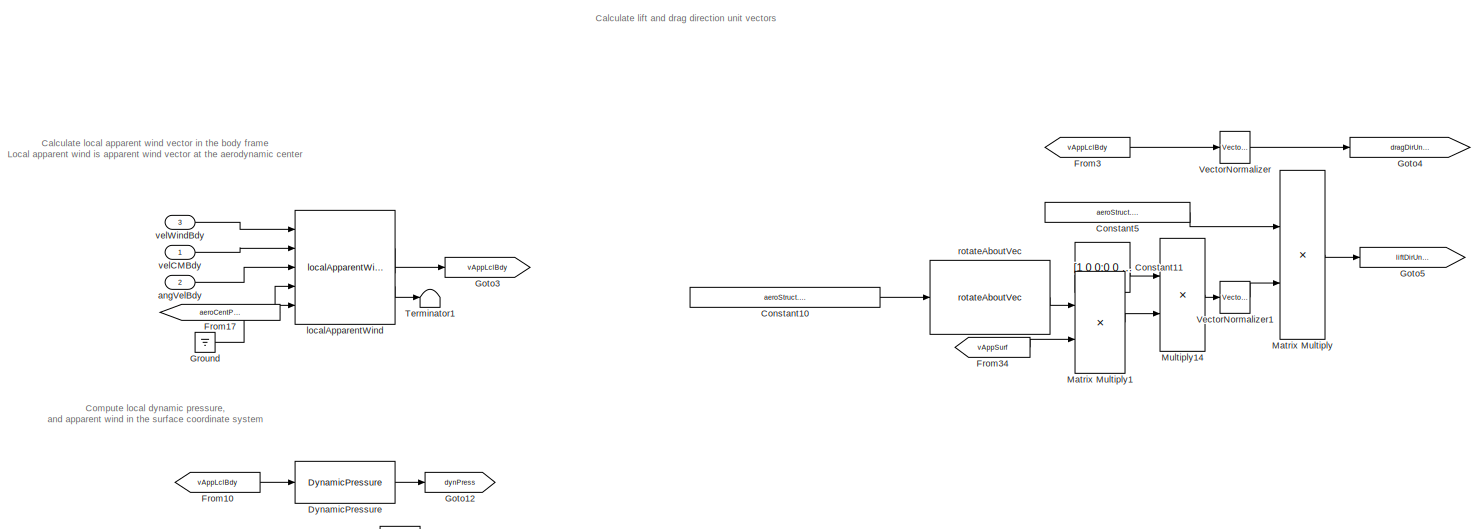
[diagram: fullCycleController/non-xcurrent/ctrlAllocation/momentComponentVector/aileronPortion1 - part 1/4, top center region]
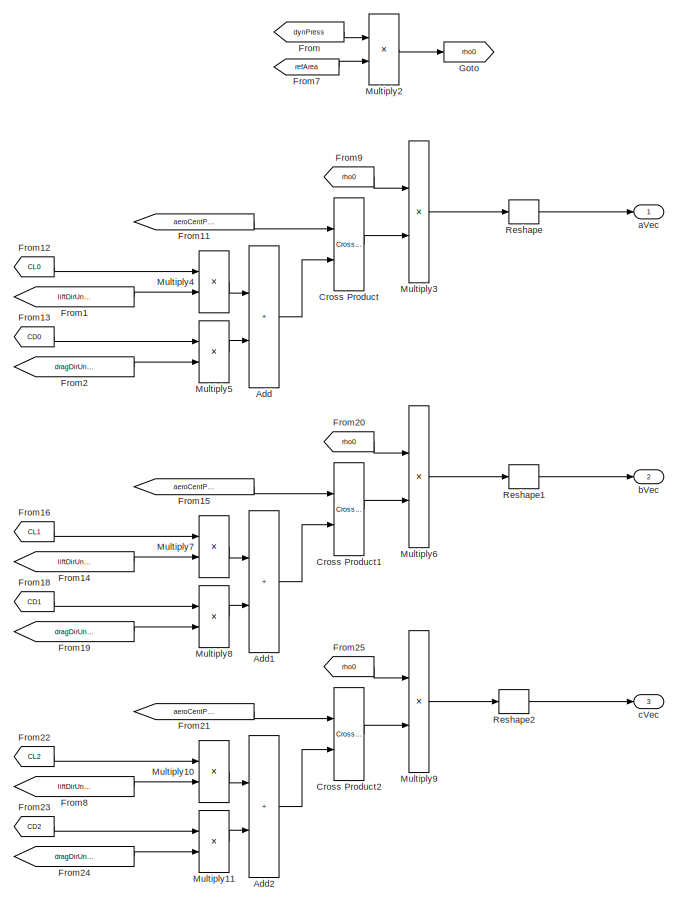
[diagram: fullCycleController/non-xcurrent/ctrlAllocation/momentComponentVector/aileronPortion1 - part 2/4, middle right region]
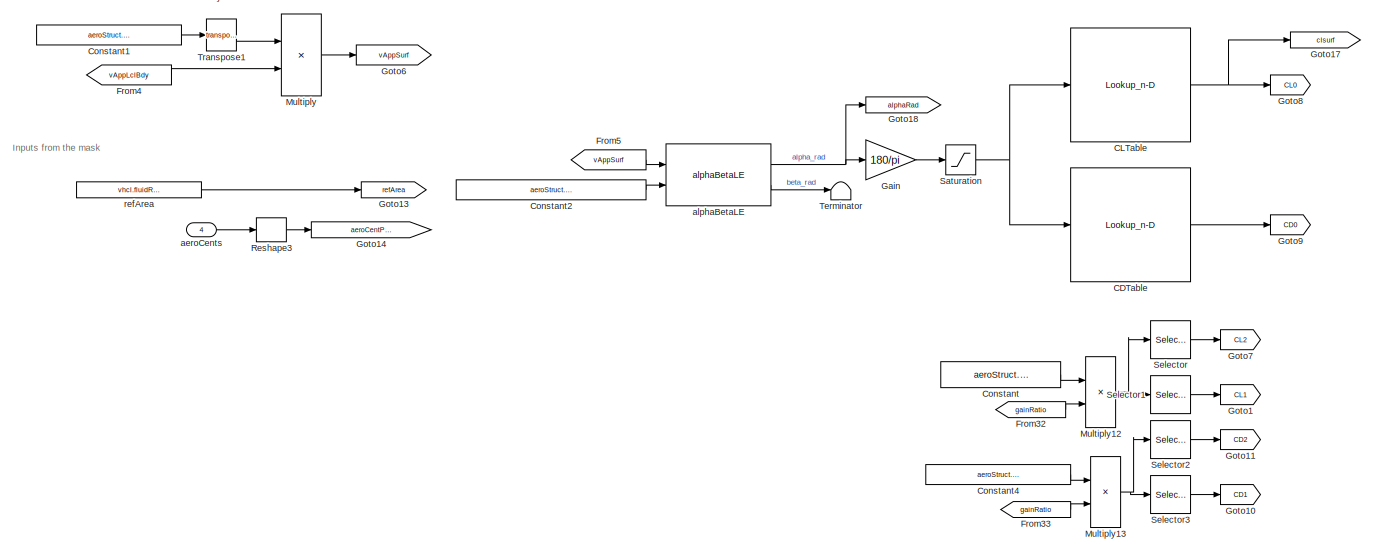
[diagram: fullCycleController/non-xcurrent/ctrlAllocation/momentComponentVector/aileronPortion1 - part 3/4, central region]
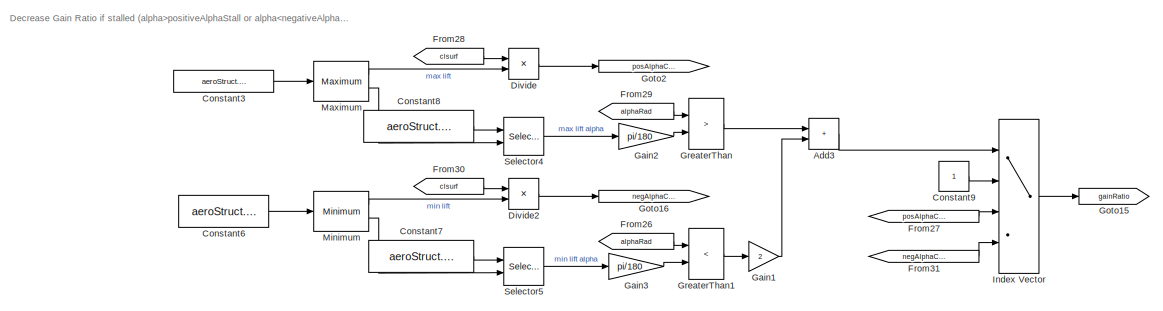
[diagram: fullCycleController/non-xcurrent/ctrlAllocation/momentComponentVector/aileronPortion1 - part 4/4, bottom right region]
BLOCK [SubSystem] fullCycleController/non-xcurrent/ctrlAllocation/momentComponentVector/aileronPortion1
  Ports = [4, 3]
  RequestExecContextInheritance = off
BLOCK [Sum] fullCycleController/non-xcurrent/ctrlAllocation/momentComponentVector/aileronPortion1/Add
  IconShape = rectangular
  Ports = [2, 1]
BLOCK [Sum] fullCycleController/non-xcurrent/ctrlAllocation/momentComponentVector/aileronPortion1/Add1
  IconShape = rectangular
  Ports = [2, 1]
BLOCK [Sum] fullCycleController/non-xcurrent/ctrlAllocation/momentComponentVector/aileronPortion1/Add2
  IconShape = rectangular
  Ports = [2, 1]
BLOCK [Sum] fullCycleController/non-xcurrent/ctrlAllocation/momentComponentVector/aileronPortion1/Add3
  IconShape = rectangular
  Ports = [2, 1]
BLOCK [Lookup_n-D] fullCycleController/non-xcurrent/ctrlAllocation/momentComponentVector/aileronPortion1/CDTable
  BreakpointsForDimension1 = aeroStruct.alpha.Value
  ExtrapMethod = Clip
  InputPortMap = u0
  InternalRulePriority = Speed
  LookupTableObject = CLTable
  NumberOfTableDimensions = 1
  Ports = [1, 1]
  RndMeth = Simplest
  Table = aeroStruct.CD.Value
  UseLastTableValue = on
BLOCK [Lookup_n-D] fullCycleController/non-xcurrent/ctrlAllocation/momentComponentVector/aileronPortion1/CLTable
  BreakpointsForDimension1 = aeroStruct.alpha.Value
  ExtrapMethod = Clip
  InputPortMap = u0
  InternalRulePriority = Speed
  LookupTableObject = CLTable
  NumberOfTableDimensions = 1
  Ports = [1, 1]
  RndMeth = Simplest
  Table = aeroStruct.CL.Value
  UseLastTableValue = on
BLOCK [Constant] fullCycleController/non-xcurrent/ctrlAllocation/momentComponentVector/aileronPortion1/Constant
  NameLocation = top
  Value = aeroStruct.gainCL.Value
BLOCK [Constant] fullCycleController/non-xcurrent/ctrlAllocation/momentComponentVector/aileronPortion1/Constant1
  Value = aeroStruct.RSurf2Bdy.Value
BLOCK [Constant] fullCycleController/non-xcurrent/ctrlAllocation/momentComponentVector/aileronPortion1/Constant10
  Value = aeroStruct.incAlphaUnitVecSurf.Value
BLOCK [Constant] fullCycleController/non-xcurrent/ctrlAllocation/momentComponentVector/aileronPortion1/Constant11
  Value = [1 0 0;0 0 0;0 0 1]
BLOCK [Constant] fullCycleController/non-xcurrent/ctrlAllocation/momentComponentVector/aileronPortion1/Constant2
  Value = aeroStruct.incAlphaUnitVecSurf.Value
BLOCK [Constant] fullCycleController/non-xcurrent/ctrlAllocation/momentComponentVector/aileronPortion1/Constant3
  Value = aeroStruct.CL.Value
BLOCK [Constant] fullCycleController/non-xcurrent/ctrlAllocation/momentComponentVector/aileronPortion1/Constant4
  NameLocation = top
  Value = aeroStruct.gainCD.Value
BLOCK [Constant] fullCycleController/non-xcurrent/ctrlAllocation/momentComponentVector/aileronPortion1/Constant5
  Value = aeroStruct.RSurf2Bdy.Value
BLOCK [Constant] fullCycleController/non-xcurrent/ctrlAllocation/momentComponentVector/aileronPortion1/Constant6
  Value = aeroStruct.CL.Value
BLOCK [Constant] fullCycleController/non-xcurrent/ctrlAllocation/momentComponentVector/aileronPortion1/Constant7
  Value = aeroStruct.alpha.Value
BLOCK [Constant] fullCycleController/non-xcurrent/ctrlAllocation/momentComponentVector/aileronPortion1/Constant8
  Value = aeroStruct.alpha.Value
BLOCK [Constant] fullCycleController/non-xcurrent/ctrlAllocation/momentComponentVector/aileronPortion1/Constant9
BLOCK [Reference] fullCycleController/non-xcurrent/ctrlAllocation/momentComponentVector/aileronPortion1/Cross Product  REF=vrlib/Utilities/Cross Product
  Ports = [2, 1]
  SourceBlock = vrlib/Utilities/Cross Product
  SourceProductBaseCode = SL
  SourceType = Cross Product
BLOCK [Reference] fullCycleController/non-xcurrent/ctrlAllocation/momentComponentVector/aileronPortion1/Cross Product1  REF=vrlib/Utilities/Cross Product
  Ports = [2, 1]
  SourceBlock = vrlib/Utilities/Cross Product
  SourceProductBaseCode = SL
  SourceType = Cross Product
BLOCK [Reference] fullCycleController/non-xcurrent/ctrlAllocation/momentComponentVector/aileronPortion1/Cross Product2  REF=vrlib/Utilities/Cross Product
  Ports = [2, 1]
  SourceBlock = vrlib/Utilities/Cross Product
  SourceProductBaseCode = SL
  SourceType = Cross Product
BLOCK [Product] fullCycleController/non-xcurrent/ctrlAllocation/momentComponentVector/aileronPortion1/Divide
  Inputs = */
  Ports = [2, 1]
BLOCK [Product] fullCycleController/non-xcurrent/ctrlAllocation/momentComponentVector/aileronPortion1/Divide2
  Inputs = */
  Ports = [2, 1]
BLOCK [Reference] fullCycleController/non-xcurrent/ctrlAllocation/momentComponentVector/aileronPortion1/DynamicPressure  REF=dynamicPressure_ul/DynamicPressure
  Ports = [1, 1]
  SourceBlock = dynamicPressure_ul/DynamicPressure
BLOCK [From] fullCycleController/non-xcurrent/ctrlAllocation/momentComponentVector/aileronPortion1/From
  GotoTag = dynPress
BLOCK [From] fullCycleController/non-xcurrent/ctrlAllocation/momentComponentVector/aileronPortion1/From1
  GotoTag = liftDirUnitVecBdy
BLOCK [From] fullCycleController/non-xcurrent/ctrlAllocation/momentComponentVector/aileronPortion1/From10
  GotoTag = vAppLclBdy
BLOCK [From] fullCycleController/non-xcurrent/ctrlAllocation/momentComponentVector/aileronPortion1/From11
  GotoTag = aeroCentPosVecBdy
BLOCK [From] fullCycleController/non-xcurrent/ctrlAllocation/momentComponentVector/aileronPortion1/From12
  GotoTag = CL0
BLOCK [From] fullCycleController/non-xcurrent/ctrlAllocation/momentComponentVector/aileronPortion1/From13
  GotoTag = CD0
BLOCK [From] fullCycleController/non-xcurrent/ctrlAllocation/momentComponentVector/aileronPortion1/From14
  GotoTag = liftDirUnitVecBdy
BLOCK [From] fullCycleController/non-xcurrent/ctrlAllocation/momentComponentVector/aileronPortion1/From15
  GotoTag = aeroCentPosVecBdy
BLOCK [From] fullCycleController/non-xcurrent/ctrlAllocation/momentComponentVector/aileronPortion1/From16
  GotoTag = CL1
BLOCK [From] fullCycleController/non-xcurrent/ctrlAllocation/momentComponentVector/aileronPortion1/From17
  GotoTag = aeroCentPosVecBdy
BLOCK [From] fullCycleController/non-xcurrent/ctrlAllocation/momentComponentVector/aileronPortion1/From18
  GotoTag = CD1
BLOCK [From] fullCycleController/non-xcurrent/ctrlAllocation/momentComponentVector/aileronPortion1/From19
  GotoTag = dragDirUnitVecBdy
BLOCK [From] fullCycleController/non-xcurrent/ctrlAllocation/momentComponentVector/aileronPortion1/From2
  GotoTag = dragDirUnitVecBdy
BLOCK [From] fullCycleController/non-xcurrent/ctrlAllocation/momentComponentVector/aileronPortion1/From20
  GotoTag = rho0
BLOCK [From] fullCycleController/non-xcurrent/ctrlAllocation/momentComponentVector/aileronPortion1/From21
  GotoTag = aeroCentPosVecBdy
BLOCK [From] fullCycleController/non-xcurrent/ctrlAllocation/momentComponentVector/aileronPortion1/From22
  GotoTag = CL2
BLOCK [From] fullCycleController/non-xcurrent/ctrlAllocation/momentComponentVector/aileronPortion1/From23
  GotoTag = CD2
BLOCK [From] fullCycleController/non-xcurrent/ctrlAllocation/momentComponentVector/aileronPortion1/From24
  GotoTag = dragDirUnitVecBdy
BLOCK [From] fullCycleController/non-xcurrent/ctrlAllocation/momentComponentVector/aileronPortion1/From25
  GotoTag = rho0
BLOCK [From] fullCycleController/non-xcurrent/ctrlAllocation/momentComponentVector/aileronPortion1/From26
  GotoTag = alphaRad
BLOCK [From] fullCycleController/non-xcurrent/ctrlAllocation/momentComponentVector/aileronPortion1/From27
  GotoTag = posAlphaCLRatio
BLOCK [From] fullCycleController/non-xcurrent/ctrlAllocation/momentComponentVector/aileronPortion1/From28
  GotoTag = clsurf
BLOCK [From] fullCycleController/non-xcurrent/ctrlAllocation/momentComponentVector/aileronPortion1/From29
  GotoTag = alphaRad
BLOCK [From] fullCycleController/non-xcurrent/ctrlAllocation/momentComponentVector/aileronPortion1/From3
  GotoTag = vAppLclBdy
BLOCK [From] fullCycleController/non-xcurrent/ctrlAllocation/momentComponentVector/aileronPortion1/From30
  GotoTag = clsurf
BLOCK [From] fullCycleController/non-xcurrent/ctrlAllocation/momentComponentVector/aileronPortion1/From31
  GotoTag = negAlphaCLRatio
BLOCK [From] fullCycleController/non-xcurrent/ctrlAllocation/momentComponentVector/aileronPortion1/From32
  GotoTag = gainRatio
BLOCK [From] fullCycleController/non-xcurrent/ctrlAllocation/momentComponentVector/aileronPortion1/From33
  GotoTag = gainRatio
BLOCK [From] fullCycleController/non-xcurrent/ctrlAllocation/momentComponentVector/aileronPortion1/From34
  GotoTag = vAppSurf
BLOCK [From] fullCycleController/non-xcurrent/ctrlAllocation/momentComponentVector/aileronPortion1/From4
  GotoTag = vAppLclBdy
BLOCK [From] fullCycleController/non-xcurrent/ctrlAllocation/momentComponentVector/aileronPortion1/From5
  GotoTag = vAppSurf
BLOCK [From] fullCycleController/non-xcurrent/ctrlAllocation/momentComponentVector/aileronPortion1/From7
  GotoTag = refArea
BLOCK [From] fullCycleController/non-xcurrent/ctrlAllocation/momentComponentVector/aileronPortion1/From8
  GotoTag = liftDirUnitVecBdy
BLOCK [From] fullCycleController/non-xcurrent/ctrlAllocation/momentComponentVector/aileronPortion1/From9
  GotoTag = rho0
BLOCK [Gain] fullCycleController/non-xcurrent/ctrlAllocation/momentComponentVector/aileronPortion1/Gain
  Gain = 180/pi
BLOCK [Gain] fullCycleController/non-xcurrent/ctrlAllocation/momentComponentVector/aileronPortion1/Gain1
  Gain = 2
BLOCK [Gain] fullCycleController/non-xcurrent/ctrlAllocation/momentComponentVector/aileronPortion1/Gain2
  Gain = pi/180
BLOCK [Gain] fullCycleController/non-xcurrent/ctrlAllocation/momentComponentVector/aileronPortion1/Gain3
  Gain = pi/180
BLOCK [Goto] fullCycleController/non-xcurrent/ctrlAllocation/momentComponentVector/aileronPortion1/Goto
  GotoTag = rho0
BLOCK [Goto] fullCycleController/non-xcurrent/ctrlAllocation/momentComponentVector/aileronPortion1/Goto1
  GotoTag = CL1
BLOCK [Goto] fullCycleController/non-xcurrent/ctrlAllocation/momentComponentVector/aileronPortion1/Goto10
  GotoTag = CD1
BLOCK [Goto] fullCycleController/non-xcurrent/ctrlAllocation/momentComponentVector/aileronPortion1/Goto11
  GotoTag = CD2
BLOCK [Goto] fullCycleController/non-xcurrent/ctrlAllocation/momentComponentVector/aileronPortion1/Goto12
  GotoTag = dynPress
BLOCK [Goto] fullCycleController/non-xcurrent/ctrlAllocation/momentComponentVector/aileronPortion1/Goto13
  GotoTag = refArea
BLOCK [Goto] fullCycleController/non-xcurrent/ctrlAllocation/momentComponentVector/aileronPortion1/Goto14
  GotoTag = aeroCentPosVecBdy
BLOCK [Goto] fullCycleController/non-xcurrent/ctrlAllocation/momentComponentVector/aileronPortion1/Goto15
  GotoTag = gainRatio
BLOCK [Goto] fullCycleController/non-xcurrent/ctrlAllocation/momentComponentVector/aileronPortion1/Goto16
  GotoTag = negAlphaCLRatio
BLOCK [Goto] fullCycleController/non-xcurrent/ctrlAllocation/momentComponentVector/aileronPortion1/Goto17
  GotoTag = clsurf
BLOCK [Goto] fullCycleController/non-xcurrent/ctrlAllocation/momentComponentVector/aileronPortion1/Goto18
  GotoTag = alphaRad
BLOCK [Goto] fullCycleController/non-xcurrent/ctrlAllocation/momentComponentVector/aileronPortion1/Goto2
  GotoTag = posAlphaCLRatio
BLOCK [Goto] fullCycleController/non-xcurrent/ctrlAllocation/momentComponentVector/aileronPortion1/Goto3
  GotoTag = vAppLclBdy
BLOCK [Goto] fullCycleController/non-xcurrent/ctrlAllocation/momentComponentVector/aileronPortion1/Goto4
  GotoTag = dragDirUnitVecBdy
BLOCK [Goto] fullCycleController/non-xcurrent/ctrlAllocation/momentComponentVector/aileronPortion1/Goto5
  GotoTag = liftDirUnitVecBdy
BLOCK [Goto] fullCycleController/non-xcurrent/ctrlAllocation/momentComponentVector/aileronPortion1/Goto6
  GotoTag = vAppSurf
BLOCK [Goto] fullCycleController/non-xcurrent/ctrlAllocation/momentComponentVector/aileronPortion1/Goto7
  GotoTag = CL2
BLOCK [Goto] fullCycleController/non-xcurrent/ctrlAllocation/momentComponentVector/aileronPortion1/Goto8
  GotoTag = CL0
BLOCK [Goto] fullCycleController/non-xcurrent/ctrlAllocation/momentComponentVector/aileronPortion1/Goto9
  GotoTag = CD0
BLOCK [RelationalOperator] fullCycleController/non-xcurrent/ctrlAllocation/momentComponentVector/aileronPortion1/GreaterThan
  InputSameDT = off
  Operator = >
  OutDataTypeStr = boolean
  Ports = [2, 1]
  RndMeth = Simplest
BLOCK [RelationalOperator] fullCycleController/non-xcurrent/ctrlAllocation/momentComponentVector/aileronPortion1/GreaterThan1
  InputSameDT = off
  Operator = <
  OutDataTypeStr = boolean
  Ports = [2, 1]
  RndMeth = Simplest
BLOCK [Ground] fullCycleController/non-xcurrent/ctrlAllocation/momentComponentVector/aileronPortion1/Ground
BLOCK [MultiPortSwitch] fullCycleController/non-xcurrent/ctrlAllocation/momentComponentVector/aileronPortion1/Index Vector
  DataPortOrder = Zero-based contiguous
  InputSameDT = off
  Ports = [4, 1]
  SaturateOnIntegerOverflow = off
  zeroidx = on
BLOCK [Product] fullCycleController/non-xcurrent/ctrlAllocation/momentComponentVector/aileronPortion1/Matrix Multiply
  Multiplication = Matrix(*)
  Ports = [2, 1]
BLOCK [Product] fullCycleController/non-xcurrent/ctrlAllocation/momentComponentVector/aileronPortion1/Matrix Multiply1
  Multiplication = Matrix(*)
  Ports = [2, 1]
BLOCK [Reference] fullCycleController/non-xcurrent/ctrlAllocation/momentComponentVector/aileronPortion1/Maximum  REF=dspstat3/Maximum
  Ports = [1, 2]
  SourceBlock = dspstat3/Maximum
  SourceProductBaseCode = DS
  SourceType = Maximum
  UserDataPersistent = on
BLOCK [Reference] fullCycleController/non-xcurrent/ctrlAllocation/momentComponentVector/aileronPortion1/Minimum  REF=dspstat3/Minimum
  Ports = [1, 2]
  SourceBlock = dspstat3/Minimum
  SourceProductBaseCode = DS
  SourceType = Minimum
  UserDataPersistent = on
BLOCK [Product] fullCycleController/non-xcurrent/ctrlAllocation/momentComponentVector/aileronPortion1/Multiply
  Multiplication = Matrix(*)
  Ports = [2, 1]
BLOCK [Product] fullCycleController/non-xcurrent/ctrlAllocation/momentComponentVector/aileronPortion1/Multiply10
  Ports = [2, 1]
BLOCK [Product] fullCycleController/non-xcurrent/ctrlAllocation/momentComponentVector/aileronPortion1/Multiply11
  Ports = [2, 1]
BLOCK [Product] fullCycleController/non-xcurrent/ctrlAllocation/momentComponentVector/aileronPortion1/Multiply12
  Ports = [2, 1]
BLOCK [Product] fullCycleController/non-xcurrent/ctrlAllocation/momentComponentVector/aileronPortion1/Multiply13
  Ports = [2, 1]
BLOCK [Product] fullCycleController/non-xcurrent/ctrlAllocation/momentComponentVector/aileronPortion1/Multiply14
  Multiplication = Matrix(*)
  Ports = [2, 1]
BLOCK [Product] fullCycleController/non-xcurrent/ctrlAllocation/momentComponentVector/aileronPortion1/Multiply2
  Ports = [2, 1]
BLOCK [Product] fullCycleController/non-xcurrent/ctrlAllocation/momentComponentVector/aileronPortion1/Multiply3
  Ports = [2, 1]
BLOCK [Product] fullCycleController/non-xcurrent/ctrlAllocation/momentComponentVector/aileronPortion1/Multiply4
  Ports = [2, 1]
BLOCK [Product] fullCycleController/non-xcurrent/ctrlAllocation/momentComponentVector/aileronPortion1/Multiply5
  Ports = [2, 1]
BLOCK [Product] fullCycleController/non-xcurrent/ctrlAllocation/momentComponentVector/aileronPortion1/Multiply6
  Ports = [2, 1]
BLOCK [Product] fullCycleController/non-xcurrent/ctrlAllocation/momentComponentVector/aileronPortion1/Multiply7
  Ports = [2, 1]
BLOCK [Product] fullCycleController/non-xcurrent/ctrlAllocation/momentComponentVector/aileronPortion1/Multiply8
  Ports = [2, 1]
BLOCK [Product] fullCycleController/non-xcurrent/ctrlAllocation/momentComponentVector/aileronPortion1/Multiply9
  Ports = [2, 1]
BLOCK [Reshape] fullCycleController/non-xcurrent/ctrlAllocation/momentComponentVector/aileronPortion1/Reshape
  OutputDimensionality = Column vector (2-D)
  Ports = [1, 1]
BLOCK [Reshape] fullCycleController/non-xcurrent/ctrlAllocation/momentComponentVector/aileronPortion1/Reshape1
  OutputDimensionality = Column vector (2-D)
  Ports = [1, 1]
BLOCK [Reshape] fullCycleController/non-xcurrent/ctrlAllocation/momentComponentVector/aileronPortion1/Reshape2
  OutputDimensionality = Column vector (2-D)
  Ports = [1, 1]
BLOCK [Reshape] fullCycleController/non-xcurrent/ctrlAllocation/momentComponentVector/aileronPortion1/Reshape3
  OutputDimensionality = Column vector (2-D)
  Ports = [1, 1]
BLOCK [Saturate] fullCycleController/non-xcurrent/ctrlAllocation/momentComponentVector/aileronPortion1/Saturation
  LowerLimit = -90
  UpperLimit = 90
BLOCK [Selector] fullCycleController/non-xcurrent/ctrlAllocation/momentComponentVector/aileronPortion1/Selector
  IndexOptions = Index vector (dialog)
  Indices = 1
  InputPortWidth = 3
  OutputSizes = 1
  Ports = [1, 1]
BLOCK [Selector] fullCycleController/non-xcurrent/ctrlAllocation/momentComponentVector/aileronPortion1/Selector1
  IndexOptions = Index vector (dialog)
  Indices = 2
  InputPortWidth = 3
  OutputSizes = 1
  Ports = [1, 1]
BLOCK [Selector] fullCycleController/non-xcurrent/ctrlAllocation/momentComponentVector/aileronPortion1/Selector2
  IndexOptions = Index vector (dialog)
  Indices = 1
  InputPortWidth = 3
  OutputSizes = 1
  Ports = [1, 1]
BLOCK [Selector] fullCycleController/non-xcurrent/ctrlAllocation/momentComponentVector/aileronPortion1/Selector3
  IndexOptions = Index vector (dialog)
  Indices = 2
  InputPortWidth = 3
  OutputSizes = 1
  Ports = [1, 1]
BLOCK [Selector] fullCycleController/non-xcurrent/ctrlAllocation/momentComponentVector/aileronPortion1/Selector4
  IndexOptions = Index vector (port)
  Indices = [1 3]
  InputPortWidth = length(vhcl.portWing.alpha.Value)
  OutputSizes = 1
  Ports = [2, 1]
BLOCK [Selector] fullCycleController/non-xcurrent/ctrlAllocation/momentComponentVector/aileronPortion1/Selector5
  IndexOptions = Index vector (port)
  Indices = [1 3]
  InputPortWidth = length(vhcl.portWing.alpha.Value)
  OutputSizes = 1
  Ports = [2, 1]
BLOCK [Terminator] fullCycleController/non-xcurrent/ctrlAllocation/momentComponentVector/aileronPortion1/Terminator
BLOCK [Terminator] fullCycleController/non-xcurrent/ctrlAllocation/momentComponentVector/aileronPortion1/Terminator1
BLOCK [Math] fullCycleController/non-xcurrent/ctrlAllocation/momentComponentVector/aileronPortion1/Transpose1
  Operator = transpose
  Ports = [1, 1]
  SignedPower = on
BLOCK [Reference] fullCycleController/non-xcurrent/ctrlAllocation/momentComponentVector/aileronPortion1/VectorNormalizer   REF=vectorNormalizer_ul/VectorNormalizer

  Ports = [1, 1]
  SourceBlock = vectorNormalizer_ul/VectorNormalizer
  SourceType = SubSystem
BLOCK [Reference] fullCycleController/non-xcurrent/ctrlAllocation/momentComponentVector/aileronPortion1/VectorNormalizer1  REF=vectorNormalizer_ul/VectorNormalizer

  Ports = [1, 1]
  SourceBlock = vectorNormalizer_ul/VectorNormalizer
  SourceType = SubSystem
BLOCK [Outport] fullCycleController/non-xcurrent/ctrlAllocation/momentComponentVector/aileronPortion1/aVec
  PortDimensions = [3 1]
  VectorParamsAs1DForOutWhenUnconnected = off
BLOCK [Inport] fullCycleController/non-xcurrent/ctrlAllocation/momentComponentVector/aileronPortion1/aeroCents
  Port = 4
BLOCK [Reference] fullCycleController/non-xcurrent/ctrlAllocation/momentComponentVector/aileronPortion1/alphaBetaLE  REF=alphaBetaLE_ul/alphaBetaLE
  Ports = [2, 2]
  SourceBlock = alphaBetaLE_ul/alphaBetaLE
  SourceType = SubSystem
BLOCK [Inport] fullCycleController/non-xcurrent/ctrlAllocation/momentComponentVector/aileronPortion1/angVelBdy
  Port = 2
BLOCK [Outport] fullCycleController/non-xcurrent/ctrlAllocation/momentComponentVector/aileronPortion1/bVec
  Port = 2
  PortDimensions = [3 1]
  VectorParamsAs1DForOutWhenUnconnected = off
BLOCK [Outport] fullCycleController/non-xcurrent/ctrlAllocation/momentComponentVector/aileronPortion1/cVec
  Port = 3
  PortDimensions = [3 1]
  VectorParamsAs1DForOutWhenUnconnected = off
BLOCK [Reference] fullCycleController/non-xcurrent/ctrlAllocation/momentComponentVector/aileronPortion1/localApparentWind  REF=localApparentWind_ul/localApparentWind
  Ports = [5, 2]
  SourceBlock = localApparentWind_ul/localApparentWind
  SourceType = SubSystem
BLOCK [Constant] fullCycleController/non-xcurrent/ctrlAllocation/momentComponentVector/aileronPortion1/refArea
  Value = vhcl.fluidRefArea.Value
BLOCK [Reference] fullCycleController/non-xcurrent/ctrlAllocation/momentComponentVector/aileronPortion1/rotateAboutVec  REF=rotateAboutVec/rotateAboutVec
  Ports = [1, 1]
  SourceBlock = rotateAboutVec/rotateAboutVec
BLOCK [Inport] fullCycleController/non-xcurrent/ctrlAllocation/momentComponentVector/aileronPortion1/velCMBdy
BLOCK [Inport] fullCycleController/non-xcurrent/ctrlAllocation/momentComponentVector/aileronPortion1/velWindBdy
  Port = 3
BLOCK [Reference] fullCycleController/non-xcurrent/ctrlAllocation/momentComponentVector/aileronPortion2  REF=ctrlAllocMatrix_cl/ctrlAllocMatrix/momentComponentVector/aileronPortion1
  Ports = [4, 3]
  SourceBlock = ctrlAllocMatrix_cl/ctrlAllocMatrix/momentComponentVector/aileronPortion1
BLOCK [Inport] fullCycleController/non-xcurrent/ctrlAllocation/momentComponentVector/angVelBdy
  Port = 2
BLOCK [Outport] fullCycleController/non-xcurrent/ctrlAllocation/momentComponentVector/bias
BLOCK [Outport] fullCycleController/non-xcurrent/ctrlAllocation/momentComponentVector/linearComponent
  Port = 2
BLOCK [Reference] fullCycleController/non-xcurrent/ctrlAllocation/momentComponentVector/rudderPortion  REF=ctrlAllocMatrix_cl/ctrlAllocMatrix/momentComponentVector/aileronPortion1
  Ports = [4, 3]
  SourceBlock = ctrlAllocMatrix_cl/ctrlAllocMatrix/momentComponentVector/aileronPortion1
BLOCK [Inport] fullCycleController/non-xcurrent/ctrlAllocation/momentComponentVector/velCMBdy
BLOCK [Inport] fullCycleController/non-xcurrent/ctrlAllocation/momentComponentVector/velWindBdy
  Port = 3
BLOCK [Inport] fullCycleController/non-xcurrent/ctrlAllocation/velCMGnd
BLOCK [Inport] fullCycleController/non-xcurrent/ctrlAllocation/velWindGnd
  Port = 3
BLOCK [Outport] fullCycleController/non-xcurrent/ctrlBus
  OutDataTypeStr = Bus: fltCtrlBus
  VectorParamsAs1DForOutWhenUnconnected = off
BLOCK [SubSystem] fullCycleController/non-xcurrent/desiredMoment
  Ports = [2, 1]
  RequestExecContextInheritance = off
BLOCK [Sum] fullCycleController/non-xcurrent/desiredMoment/Add1
  Commented = on
  IconShape = rectangular
  Inputs = +-
  Ports = [2, 1]
BLOCK [Sum] fullCycleController/non-xcurrent/desiredMoment/Add6
  IconShape = rectangular
  Inputs = +-
  Ports = [2, 1]
BLOCK [Constant] fullCycleController/non-xcurrent/desiredMoment/Constant1
  Commented = on
  Value = 0
BLOCK [Constant] fullCycleController/non-xcurrent/desiredMoment/Constant2
  Value = 0
BLOCK [Constant] fullCycleController/non-xcurrent/desiredMoment/Constant3
  Value = 0
BLOCK [Constant] fullCycleController/non-xcurrent/desiredMoment/Constant4
  Value = 0
BLOCK [Demux] fullCycleController/non-xcurrent/desiredMoment/Demux
  Outputs = 3
  Ports = [1, 3]
BLOCK [From] fullCycleController/non-xcurrent/desiredMoment/From
  GotoTag = rst
BLOCK [From] fullCycleController/non-xcurrent/desiredMoment/From1
  Commented = on
  GotoTag = rst
BLOCK [From] fullCycleController/non-xcurrent/desiredMoment/From17
  GotoTag = roll
BLOCK [From] fullCycleController/non-xcurrent/desiredMoment/From2
  Commented = on
  GotoTag = yaw
BLOCK [From] fullCycleController/non-xcurrent/desiredMoment/From4
  GotoTag = rollMomDes
BLOCK [Goto] fullCycleController/non-xcurrent/desiredMoment/Goto1
  GotoTag = rst
BLOCK [Goto] fullCycleController/non-xcurrent/desiredMoment/Goto12
  GotoTag = rollMomDes
BLOCK [Goto] fullCycleController/non-xcurrent/desiredMoment/Goto15
  GotoTag = roll
BLOCK [Goto] fullCycleController/non-xcurrent/desiredMoment/Goto2
  Commented = on
  GotoTag = yawMomDes
BLOCK [Goto] fullCycleController/non-xcurrent/desiredMoment/Goto3
  Commented = on
  GotoTag = yaw
BLOCK [Mux] fullCycleController/non-xcurrent/desiredMoment/Mux
  DisplayOption = bar
  Inputs = 3
  Ports = [3, 1]
BLOCK [Terminator] fullCycleController/non-xcurrent/desiredMoment/Terminator
BLOCK [SubSystem] fullCycleController/non-xcurrent/desiredMoment/Wrap Correction
  AncestorBlock = setpointToOutput_cl/desiredMoment/Wrap\nCorrection
  Commented = on
  Ports = [1, 1]
  RequestExecContextInheritance = off
BLOCK [Sum] fullCycleController/non-xcurrent/desiredMoment/Wrap Correction/Add1
  IconShape = rectangular
  Inputs = +-
  Ports = [2, 1]
BLOCK [Sum] fullCycleController/non-xcurrent/desiredMoment/Wrap Correction/Add2
  IconShape = rectangular
  Inputs = +-
  Ports = [2, 1]
BLOCK [Constant] fullCycleController/non-xcurrent/desiredMoment/Wrap Correction/Constant1
  Value = pi
BLOCK [Constant] fullCycleController/non-xcurrent/desiredMoment/Wrap Correction/Constant2
  Value = 2*pi
BLOCK [Constant] fullCycleController/non-xcurrent/desiredMoment/Wrap Correction/Constant3
  Value = pi
BLOCK [Math] fullCycleController/non-xcurrent/desiredMoment/Wrap Correction/Mod
  Operator = mod
  Ports = [2, 1]
  SignedPower = on
BLOCK [Inport] fullCycleController/non-xcurrent/desiredMoment/Wrap Correction/u
BLOCK [Outport] fullCycleController/non-xcurrent/desiredMoment/Wrap Correction/y
  VectorParamsAs1DForOutWhenUnconnected = off
BLOCK [Inport] fullCycleController/non-xcurrent/desiredMoment/eulAng
BLOCK [SubSystem] fullCycleController/non-xcurrent/desiredMoment/filteredPIDController1
  AncestorBlock = filteredPIDController_ul/filteredPIDController
  Ports = [2, 1]
  RequestExecContextInheritance = off
BLOCK [Sum] fullCycleController/non-xcurrent/desiredMoment/filteredPIDController1/Add
  IconShape = rectangular
  Inputs = +-
  Ports = [2, 1]
BLOCK [Sum] fullCycleController/non-xcurrent/desiredMoment/filteredPIDController1/Add1
  IconShape = rectangular
  Inputs = +++
  Ports = [3, 1]
BLOCK [Product] fullCycleController/non-xcurrent/desiredMoment/filteredPIDController1/Divide
  Inputs = */
  Ports = [2, 1]
BLOCK [From] fullCycleController/non-xcurrent/desiredMoment/filteredPIDController1/From
  GotoTag = y
BLOCK [From] fullCycleController/non-xcurrent/desiredMoment/filteredPIDController1/From1
  GotoTag = u
BLOCK [From] fullCycleController/non-xcurrent/desiredMoment/filteredPIDController1/From2
  GotoTag = u
BLOCK [From] fullCycleController/non-xcurrent/desiredMoment/filteredPIDController1/From3
  GotoTag = u
BLOCK [Goto] fullCycleController/non-xcurrent/desiredMoment/filteredPIDController1/Goto
  GotoTag = y
BLOCK [Goto] fullCycleController/non-xcurrent/desiredMoment/filteredPIDController1/Goto1
  GotoTag = u
BLOCK [Integrator] fullCycleController/non-xcurrent/desiredMoment/filteredPIDController1/Integrator
  ExternalReset = rising
  Ports = [2, 1]
BLOCK [Integrator] fullCycleController/non-xcurrent/desiredMoment/filteredPIDController1/Integrator1
  ExternalReset = rising
  Ports = [2, 1]
BLOCK [Integrator] fullCycleController/non-xcurrent/desiredMoment/filteredPIDController1/Integrator2
  ExternalReset = rising
  Ports = [2, 1]
BLOCK [MinMax] fullCycleController/non-xcurrent/desiredMoment/filteredPIDController1/Max
  Function = max
  Inputs = 2
  Ports = [2, 1]
BLOCK [SampleTimeMath] fullCycleController/non-xcurrent/desiredMoment/filteredPIDController1/Weighted Sample Time
  TsampMathOp = Ts Only
BLOCK [Constant] fullCycleController/non-xcurrent/desiredMoment/filteredPIDController1/const
BLOCK [Gain] fullCycleController/non-xcurrent/desiredMoment/filteredPIDController1/kd
  Gain = kd
BLOCK [Gain] fullCycleController/non-xcurrent/desiredMoment/filteredPIDController1/ki
  Gain = ki
BLOCK [Gain] fullCycleController/non-xcurrent/desiredMoment/filteredPIDController1/kp
  Gain = kp
BLOCK [Inport] fullCycleController/non-xcurrent/desiredMoment/filteredPIDController1/rst
  Port = 2
BLOCK [Constant] fullCycleController/non-xcurrent/desiredMoment/filteredPIDController1/tau
  Value = Value
BLOCK [Inport] fullCycleController/non-xcurrent/desiredMoment/filteredPIDController1/u
  PortDimensions = 1
BLOCK [Outport] fullCycleController/non-xcurrent/desiredMoment/filteredPIDController1/y
  PortDimensions = 1
  VectorParamsAs1DForOutWhenUnconnected = off
BLOCK [SubSystem] fullCycleController/non-xcurrent/desiredMoment/filteredPIDController2
  AncestorBlock = filteredPIDController_ul/filteredPIDController
  Commented = on
  Ports = [2, 1]
  RequestExecContextInheritance = off
BLOCK [Sum] fullCycleController/non-xcurrent/desiredMoment/filteredPIDController2/Add
  IconShape = rectangular
  Inputs = +-
  Ports = [2, 1]
BLOCK [Sum] fullCycleController/non-xcurrent/desiredMoment/filteredPIDController2/Add1
  IconShape = rectangular
  Inputs = +++
  Ports = [3, 1]
BLOCK [Product] fullCycleController/non-xcurrent/desiredMoment/filteredPIDController2/Divide
  Inputs = */
  Ports = [2, 1]
BLOCK [From] fullCycleController/non-xcurrent/desiredMoment/filteredPIDController2/From
  GotoTag = y
BLOCK [From] fullCycleController/non-xcurrent/desiredMoment/filteredPIDController2/From1
  GotoTag = u
BLOCK [From] fullCycleController/non-xcurrent/desiredMoment/filteredPIDController2/From2
  GotoTag = u
BLOCK [From] fullCycleController/non-xcurrent/desiredMoment/filteredPIDController2/From3
  GotoTag = u
BLOCK [Goto] fullCycleController/non-xcurrent/desiredMoment/filteredPIDController2/Goto
  GotoTag = y
BLOCK [Goto] fullCycleController/non-xcurrent/desiredMoment/filteredPIDController2/Goto1
  GotoTag = u
BLOCK [Integrator] fullCycleController/non-xcurrent/desiredMoment/filteredPIDController2/Integrator
  ExternalReset = rising
  Ports = [2, 1]
BLOCK [Integrator] fullCycleController/non-xcurrent/desiredMoment/filteredPIDController2/Integrator1
  ExternalReset = rising
  Ports = [2, 1]
BLOCK [Integrator] fullCycleController/non-xcurrent/desiredMoment/filteredPIDController2/Integrator2
  ExternalReset = rising
  Ports = [2, 1]
BLOCK [MinMax] fullCycleController/non-xcurrent/desiredMoment/filteredPIDController2/Max
  Function = max
  Inputs = 2
  Ports = [2, 1]
BLOCK [SampleTimeMath] fullCycleController/non-xcurrent/desiredMoment/filteredPIDController2/Weighted Sample Time
  TsampMathOp = Ts Only
BLOCK [Constant] fullCycleController/non-xcurrent/desiredMoment/filteredPIDController2/const
BLOCK [Gain] fullCycleController/non-xcurrent/desiredMoment/filteredPIDController2/kd
  Gain = kd
BLOCK [Gain] fullCycleController/non-xcurrent/desiredMoment/filteredPIDController2/ki
  Gain = ki
BLOCK [Gain] fullCycleController/non-xcurrent/desiredMoment/filteredPIDController2/kp
  Gain = kp
BLOCK [Inport] fullCycleController/non-xcurrent/desiredMoment/filteredPIDController2/rst
  Port = 2
BLOCK [Constant] fullCycleController/non-xcurrent/desiredMoment/filteredPIDController2/tau
  Value = Value
BLOCK [Inport] fullCycleController/non-xcurrent/desiredMoment/filteredPIDController2/u
  PortDimensions = 1
BLOCK [Outport] fullCycleController/non-xcurrent/desiredMoment/filteredPIDController2/y
  PortDimensions = 1
  VectorParamsAs1DForOutWhenUnconnected = off
BLOCK [Outport] fullCycleController/non-xcurrent/desiredMoment/momVecDes
  VectorParamsAs1DForOutWhenUnconnected = off
BLOCK [Inport] fullCycleController/non-xcurrent/desiredMoment/rst
  Port = 2
BLOCK [Inport] fullCycleController/non-xcurrent/envBus
  OutDataTypeStr = Bus: envBus
  Port = 3
BLOCK [Inport] fullCycleController/non-xcurrent/hiLvlCtrlBus
  OutDataTypeStr = Bus: hiLvlCtrlBus
  Port = 2
BLOCK [Inport] fullCycleController/non-xcurrent/rst 
  Port = 4
BLOCK [Inport] fullCycleController/non-xcurrent/snsProcBus
  OutDataTypeStr = Bus: sensorsProcessingBus
BLOCK [Inport] fullCycleController/snsProcBus
  OutDataTypeStr = Bus: sensorsProcessingBus
BLOCK [SubSystem] fullCycleController/xcurrent
  Ports = [3, 1, 1]
  RequestExecContextInheritance = off
  TreatAsAtomicUnit = on
BLOCK [EnablePort] fullCycleController/xcurrent/Enable
  Ports = []
BLOCK [Outport] fullCycleController/xcurrent/ctrlBus
  OutDataTypeStr = Bus: fltCtrlBus
  VectorParamsAs1DForOutWhenUnconnected = off
BLOCK [Inport] fullCycleController/xcurrent/envBus
  OutDataTypeStr = Bus: envBus
  Port = 3
BLOCK [Inport] fullCycleController/xcurrent/hiLvlCtrlBus
  OutDataTypeStr = Bus: hiLvlCtrlBus
  Port = 2
BLOCK [SubSystem] fullCycleController/xcurrent/pathFollowingController
  AncestorBlock = pathFollowingController_cl/pathFollowingController
  InitFcn = initializeBussesFromBlock(gcb)
  LoadFcn = initializeBussesFromBlock(gcb)
  MinAlgLoopOccurrences = on
  Ports = [3, 1]
  RequestExecContextInheritance = off
  StartFcn = initializeBussesFromBlock(gcb)
  VariantControl = strcmpi(FLIGHTCONTROLLER,'pathFollowingController')
BLOCK [BusCreator] fullCycleController/xcurrent/pathFollowingController/Bus Creator
  DisplayOption = bar
  InheritFromInputs = off
  Inputs = 6
  OutDataTypeStr = Bus: fltCtrlBus
  Ports = [6, 1]
BLOCK [BusSelector] fullCycleController/xcurrent/pathFollowingController/Bus Selector
  OutputSignals = positionVec,velocityVec,eulerAngles,angularVel,gndStnPositionVec
  Ports = [1, 5]
BLOCK [BusSelector] fullCycleController/xcurrent/pathFollowingController/Bus Selector1
  OutputSignals = vhclFlowVecs
  Ports = [1, 1]
BLOCK [BusSelector] fullCycleController/xcurrent/pathFollowingController/Bus Selector2
  OutputSignals = basisParams
  Ports = [1, 1]
BLOCK [Rounding] fullCycleController/xcurrent/pathFollowingController/Ceil
  Operator = ceil
BLOCK [Clock] fullCycleController/xcurrent/pathFollowingController/Clock
BLOCK [Constant] fullCycleController/xcurrent/pathFollowingController/Constant
BLOCK [Constant] fullCycleController/xcurrent/pathFollowingController/Constant6
  Value = [0 0 0 0]'
BLOCK [Demux] fullCycleController/xcurrent/pathFollowingController/Demux1
  Ports = [1, 4]
BLOCK [From] fullCycleController/xcurrent/pathFollowingController/From
  GotoTag = flowVecGnd
BLOCK [From] fullCycleController/xcurrent/pathFollowingController/From1
  GotoTag = pos
BLOCK [From] fullCycleController/xcurrent/pathFollowingController/From10
  GotoTag = sStar
BLOCK [From] fullCycleController/xcurrent/pathFollowingController/From11
  GotoTag = elevCmd
BLOCK [From] fullCycleController/xcurrent/pathFollowingController/From12
  GotoTag = flowVecGnd
BLOCK [From] fullCycleController/xcurrent/pathFollowingController/From13
  GotoTag = plantBus
BLOCK [From] fullCycleController/xcurrent/pathFollowingController/From14
  GotoTag = velGnd
BLOCK [From] fullCycleController/xcurrent/pathFollowingController/From15
  GotoTag = hiLvlCtrlBus
BLOCK [From] fullCycleController/xcurrent/pathFollowingController/From16
  GotoTag = envBus
BLOCK [From] fullCycleController/xcurrent/pathFollowingController/From17
  GotoTag = ctrlSurDefl
BLOCK [From] fullCycleController/xcurrent/pathFollowingController/From18
  GotoTag = MDesBdy
BLOCK [From] fullCycleController/xcurrent/pathFollowingController/From19
  GotoTag = pathCntr
BLOCK [From] fullCycleController/xcurrent/pathFollowingController/From2
  GotoTag = velGnd
BLOCK [From] fullCycleController/xcurrent/pathFollowingController/From20
  GotoTag = sStar
BLOCK [From] fullCycleController/xcurrent/pathFollowingController/From21
  GotoTag = pathCntr
BLOCK [From] fullCycleController/xcurrent/pathFollowingController/From22
  GotoTag = pos
BLOCK [From] fullCycleController/xcurrent/pathFollowingController/From23
  GotoTag = sClosest
BLOCK [From] fullCycleController/xcurrent/pathFollowingController/From24
  GotoTag = eul
BLOCK [From] fullCycleController/xcurrent/pathFollowingController/From25
  GotoTag = sClosest
BLOCK [From] fullCycleController/xcurrent/pathFollowingController/From26
  GotoTag = lapNum
BLOCK [From] fullCycleController/xcurrent/pathFollowingController/From27
  GotoTag = centralAngle
BLOCK [From] fullCycleController/xcurrent/pathFollowingController/From28
  GotoTag = err
BLOCK [From] fullCycleController/xcurrent/pathFollowingController/From3
  GotoTag = eul
BLOCK [From] fullCycleController/xcurrent/pathFollowingController/From4
  GotoTag = pos
BLOCK [From] fullCycleController/xcurrent/pathFollowingController/From5
  GotoTag = velVecDesGnd
BLOCK [From] fullCycleController/xcurrent/pathFollowingController/From6
  GotoTag = basisParams
BLOCK [From] fullCycleController/xcurrent/pathFollowingController/From7
  GotoTag = angVel
BLOCK [From] fullCycleController/xcurrent/pathFollowingController/From8
  GotoTag = winchCmd
BLOCK [From] fullCycleController/xcurrent/pathFollowingController/From9
  GotoTag = centralAngle
BLOCK [Gain] fullCycleController/xcurrent/pathFollowingController/Gain
  Gain = fltCtrl.rudderGain.Value
BLOCK [Goto] fullCycleController/xcurrent/pathFollowingController/Goto
  GotoTag = flowVecGnd
BLOCK [Goto] fullCycleController/xcurrent/pathFollowingController/Goto1
  GotoTag = pos
BLOCK [Goto] fullCycleController/xcurrent/pathFollowingController/Goto10
  GotoTag = hiLvlCtrlBus
BLOCK [Goto] fullCycleController/xcurrent/pathFollowingController/Goto11
  GotoTag = elevCmd
BLOCK [Goto] fullCycleController/xcurrent/pathFollowingController/Goto12
  GotoTag = winchCmd
BLOCK [Goto] fullCycleController/xcurrent/pathFollowingController/Goto13
  GotoTag = MDesBdy
BLOCK [Goto] fullCycleController/xcurrent/pathFollowingController/Goto14
  GotoTag = ctrlSurDefl
BLOCK [Goto] fullCycleController/xcurrent/pathFollowingController/Goto15
  GotoTag = envBus
BLOCK [Goto] fullCycleController/xcurrent/pathFollowingController/Goto16
  GotoTag = pathCntr
BLOCK [Goto] fullCycleController/xcurrent/pathFollowingController/Goto17
  GotoTag = sStar
BLOCK [Goto] fullCycleController/xcurrent/pathFollowingController/Goto18
  GotoTag = lapNum
BLOCK [Goto] fullCycleController/xcurrent/pathFollowingController/Goto19
  GotoTag = err
BLOCK [Goto] fullCycleController/xcurrent/pathFollowingController/Goto2
  GotoTag = velGnd
BLOCK [Goto] fullCycleController/xcurrent/pathFollowingController/Goto3
  GotoTag = eul
BLOCK [Goto] fullCycleController/xcurrent/pathFollowingController/Goto4
  GotoTag = sClosest
BLOCK [Goto] fullCycleController/xcurrent/pathFollowingController/Goto5
  GotoTag = centralAngle
BLOCK [Goto] fullCycleController/xcurrent/pathFollowingController/Goto6
  GotoTag = angVel
BLOCK [Goto] fullCycleController/xcurrent/pathFollowingController/Goto7
  GotoTag = velVecDesGnd
BLOCK [Goto] fullCycleController/xcurrent/pathFollowingController/Goto8
  GotoTag = basisParams
BLOCK [Goto] fullCycleController/xcurrent/pathFollowingController/Goto9
  GotoTag = plantBus
BLOCK [Math] fullCycleController/xcurrent/pathFollowingController/Mod
  Operator = mod
  Ports = [2, 1]
BLOCK [Mux] fullCycleController/xcurrent/pathFollowingController/Mux
  DisplayOption = bar
  Ports = [4, 1]
BLOCK [Mux] fullCycleController/xcurrent/pathFollowingController/Mux1
  DisplayOption = bar
  Ports = [4, 1]
BLOCK [Reshape] fullCycleController/xcurrent/pathFollowingController/Reshape1
  OutputDimensionality = Column vector (2-D)
  Ports = [1, 1]
BLOCK [Reshape] fullCycleController/xcurrent/pathFollowingController/Reshape2
  OutputDimensionality = Column vector (2-D)
  Ports = [1, 1]
BLOCK [Reshape] fullCycleController/xcurrent/pathFollowingController/Reshape5
  OutputDimensionality = Column vector (2-D)
  Ports = [1, 1]
BLOCK [Reshape] fullCycleController/xcurrent/pathFollowingController/Reshape6
  OutputDimensionality = Column vector (2-D)
  Ports = [1, 1]
BLOCK [Reshape] fullCycleController/xcurrent/pathFollowingController/Reshape7
  OutputDimensionality = Column vector (2-D)
  Ports = [1, 1]
BLOCK [Reshape] fullCycleController/xcurrent/pathFollowingController/Reshape8
  OutputDimensionality = Column vector (2-D)
  Ports = [1, 1]
BLOCK [Reshape] fullCycleController/xcurrent/pathFollowingController/Reshape9
  OutputDimensionality = Column vector (2-D)
  Ports = [1, 1]
BLOCK [Saturate] fullCycleController/xcurrent/pathFollowingController/Saturation2
  LowerLimit = pathCtrl.controlSigMax.lowerLimit.Value
  UpperLimit = pathCtrl.controlSigMax.upperLimit.Value
BLOCK [Selector] fullCycleController/xcurrent/pathFollowingController/Selector
  IndexOptions = Select all,Index vector (dialog)
  Indices = [1 3],5
  InputPortWidth = 3
  NumberOfDimensions = 2
  OutputSizes = 1,1
  Ports = [1, 1]
BLOCK [SubSystem] fullCycleController/xcurrent/pathFollowingController/Subsystem
  Ports = [1, 2]
  RequestExecContextInheritance = off
BLOCK [Trigonometry] fullCycleController/xcurrent/pathFollowingController/Subsystem/Atan1
  Operator = atan2
  Ports = [2, 1]
BLOCK [Trigonometry] fullCycleController/xcurrent/pathFollowingController/Subsystem/Atan2
  Operator = atan2
  Ports = [2, 1]
BLOCK [Gain] fullCycleController/xcurrent/pathFollowingController/Subsystem/Gain
  Gain = 180/pi
BLOCK [Gain] fullCycleController/xcurrent/pathFollowingController/Subsystem/Gain1
  Gain = 180/pi
BLOCK [Selector] fullCycleController/xcurrent/pathFollowingController/Subsystem/Selector1
  IndexOptions = Index vector (dialog)
  Indices = 1
  InputPortWidth = 3
  OutputSizes = 1
  Ports = [1, 1]
BLOCK [Selector] fullCycleController/xcurrent/pathFollowingController/Subsystem/Selector2
  IndexOptions = Index vector (dialog)
  Indices = [1 2]
  InputPortWidth = 3
  OutputSizes = 1
  Ports = [1, 1]
BLOCK [Selector] fullCycleController/xcurrent/pathFollowingController/Subsystem/Selector3
  IndexOptions = Index vector (dialog)
  Indices = 3
  InputPortWidth = 3
  OutputSizes = 1
  Ports = [1, 1]
BLOCK [Selector] fullCycleController/xcurrent/pathFollowingController/Subsystem/Selector4
  IndexOptions = Index vector (dialog)
  Indices = 2
  InputPortWidth = 3
  OutputSizes = 1
  Ports = [1, 1]
BLOCK [Sqrt] fullCycleController/xcurrent/pathFollowingController/Subsystem/Sqrt1
BLOCK [Sqrt] fullCycleController/xcurrent/pathFollowingController/Subsystem/Sqrt2
BLOCK [Math] fullCycleController/xcurrent/pathFollowingController/Subsystem/Square1
  Operator = square
  Ports = [1, 1]
  SignedPower = on
BLOCK [Math] fullCycleController/xcurrent/pathFollowingController/Subsystem/Square2
  Operator = square
  Ports = [1, 1]
  SignedPower = on
BLOCK [Sum] fullCycleController/xcurrent/pathFollowingController/Subsystem/Sum of Elements
  IconShape = rectangular
  Inputs = +
  Ports = [1, 1]
BLOCK [Sum] fullCycleController/xcurrent/pathFollowingController/Subsystem/Sum of Elements1
  IconShape = rectangular
  Inputs = +
  Ports = [1, 1]
BLOCK [Outport] fullCycleController/xcurrent/pathFollowingController/Subsystem/azimuth Angle
  Port = 2
BLOCK [Outport] fullCycleController/xcurrent/pathFollowingController/Subsystem/elevationAngle
BLOCK [Inport] fullCycleController/xcurrent/pathFollowingController/Subsystem/posVecGnd
BLOCK [Switch] fullCycleController/xcurrent/pathFollowingController/Switch2
  Criteria = u2 > Threshold
  InputSameDT = off
  SaturateOnIntegerOverflow = off
  Threshold = pathCtrl.startControl.Value
BLOCK [Terminator] fullCycleController/xcurrent/pathFollowingController/Terminator
BLOCK [Terminator] fullCycleController/xcurrent/pathFollowingController/Terminator1
BLOCK [Terminator] fullCycleController/xcurrent/pathFollowingController/Terminator3
BLOCK [SubSystem] fullCycleController/xcurrent/pathFollowingController/courseFollow
  AncestorBlock = courseFollow_cl/courseFollow
  Ports = [3, 3]
  RequestExecContextInheritance = off
BLOCK [Goto] fullCycleController/xcurrent/pathFollowingController/courseFollow/ 
  GotoTag = pathParams
BLOCK [Sum] fullCycleController/xcurrent/pathFollowingController/courseFollow/Add
  IconShape = rectangular
  Inputs = +-
  Ports = [2, 1]
BLOCK [Sum] fullCycleController/xcurrent/pathFollowingController/courseFollow/Add1
  IconShape = rectangular
  Inputs = +-
  Ports = [2, 1]
BLOCK [Sum] fullCycleController/xcurrent/pathFollowingController/courseFollow/Add2
  IconShape = rectangular
  Inputs = +-
  Ports = [2, 1]
BLOCK [From] fullCycleController/xcurrent/pathFollowingController/courseFollow/From
  GotoTag = pathParams
BLOCK [From] fullCycleController/xcurrent/pathFollowingController/courseFollow/From1
  GotoTag = perpVecGnd
BLOCK [From] fullCycleController/xcurrent/pathFollowingController/courseFollow/From10
  GotoTag = currentPathVar
BLOCK [From] fullCycleController/xcurrent/pathFollowingController/courseFollow/From11
  GotoTag = pathParams
BLOCK [From] fullCycleController/xcurrent/pathFollowingController/courseFollow/From12
  GotoTag = pathSphereCntr
BLOCK [From] fullCycleController/xcurrent/pathFollowingController/courseFollow/From13
  GotoTag = pathSphereCntr
BLOCK [From] fullCycleController/xcurrent/pathFollowingController/courseFollow/From14
  GotoTag = pathPosVecGnd
BLOCK [From] fullCycleController/xcurrent/pathFollowingController/courseFollow/From15
  GotoTag = vhclPosVecGnd
BLOCK [From] fullCycleController/xcurrent/pathFollowingController/courseFollow/From16
  GotoTag = pathSphereCntr
BLOCK [From] fullCycleController/xcurrent/pathFollowingController/courseFollow/From17
  GotoTag = pathSphereCntr
BLOCK [From] fullCycleController/xcurrent/pathFollowingController/courseFollow/From18
  GotoTag = pathSphereCntr
BLOCK [From] fullCycleController/xcurrent/pathFollowingController/courseFollow/From19
  GotoTag = vhclPosVecGnd
BLOCK [From] fullCycleController/xcurrent/pathFollowingController/courseFollow/From2
  GotoTag = tanVecGnd
BLOCK [From] fullCycleController/xcurrent/pathFollowingController/courseFollow/From22
  GotoTag = pathPosVecGnd
BLOCK [From] fullCycleController/xcurrent/pathFollowingController/courseFollow/From23
  GotoTag = vhclPosVecGnd
BLOCK [From] fullCycleController/xcurrent/pathFollowingController/courseFollow/From24
  GotoTag = cntrlAng
BLOCK [From] fullCycleController/xcurrent/pathFollowingController/courseFollow/From25
  GotoTag = tanVecPrj
BLOCK [From] fullCycleController/xcurrent/pathFollowingController/courseFollow/From26
  GotoTag = perpVecPrj
BLOCK [From] fullCycleController/xcurrent/pathFollowingController/courseFollow/From3
  GotoTag = vhclPosVecGnd
BLOCK [From] fullCycleController/xcurrent/pathFollowingController/courseFollow/From4
  GotoTag = vhclPosVecGnd
BLOCK [From] fullCycleController/xcurrent/pathFollowingController/courseFollow/From5
  GotoTag = vhclPosVecGnd
BLOCK [From] fullCycleController/xcurrent/pathFollowingController/courseFollow/From7
  GotoTag = pathSphereCntr
BLOCK [From] fullCycleController/xcurrent/pathFollowingController/courseFollow/From9
  GotoTag = pathSphereCntr
BLOCK [SubSystem] fullCycleController/xcurrent/pathFollowingController/courseFollow/GoldenSectionPathSearch
  Ports = [4, 1]
  RequestExecContextInheritance = off
  TreatAsAtomicUnit = on
BLOCK [From] fullCycleController/xcurrent/pathFollowingController/courseFollow/GoldenSectionPathSearch/From
  GotoTag = sStar
BLOCK [From] fullCycleController/xcurrent/pathFollowingController/courseFollow/GoldenSectionPathSearch/From10
  GotoTag = geomParams
BLOCK [From] fullCycleController/xcurrent/pathFollowingController/courseFollow/GoldenSectionPathSearch/From11
  Commented = on
  GotoTag = geomParams
BLOCK [From] fullCycleController/xcurrent/pathFollowingController/courseFollow/GoldenSectionPathSearch/From12
  GotoTag = pathCntr
BLOCK [From] fullCycleController/xcurrent/pathFollowingController/courseFollow/GoldenSectionPathSearch/From17
  GotoTag = pos
BLOCK [From] fullCycleController/xcurrent/pathFollowingController/courseFollow/GoldenSectionPathSearch/From27
  Commented = on
  GotoTag = pathCntr
BLOCK [From] fullCycleController/xcurrent/pathFollowingController/courseFollow/GoldenSectionPathSearch/From28
  Commented = on
  GotoTag = pos
BLOCK [From] fullCycleController/xcurrent/pathFollowingController/courseFollow/GoldenSectionPathSearch/From29
  GotoTag = sPrev
BLOCK [From] fullCycleController/xcurrent/pathFollowingController/courseFollow/GoldenSectionPathSearch/From30
  Commented = on
  GotoTag = sPrev
BLOCK [SubSystem] fullCycleController/xcurrent/pathFollowingController/courseFollow/GoldenSectionPathSearch/GoldenSectionMATLAB
  Commented = on
  ErrorFcn = Stateflow.Translate.translate
  PermitHierarchicalResolution = ExplicitOnly
  Ports = [4, 1]
  RequestExecContextInheritance = off
  SFBlockType = MATLAB Function
  TreatAsAtomicUnit = on
BLOCK [Demux] fullCycleController/xcurrent/pathFollowingController/courseFollow/GoldenSectionPathSearch/GoldenSectionMATLAB/ Demux 
  Outputs = 1
  Ports = [1, 1]
BLOCK [S-Function] fullCycleController/xcurrent/pathFollowingController/courseFollow/GoldenSectionPathSearch/GoldenSectionMATLAB/ SFunction 
  EnableBusSupport = off
  FunctionName = sf_sfun
  Parameters = pathVarTol,searchWidth
  PortCounts = [4 2]
  Ports = [4, 2]
  SFcnIsStateOwnerBlock = off
  SFunctionDeploymentMode = off
  Tag = Stateflow S-Function 32
BLOCK [Terminator] fullCycleController/xcurrent/pathFollowingController/courseFollow/GoldenSectionPathSearch/GoldenSectionMATLAB/ Terminator 
BLOCK [Inport] fullCycleController/xcurrent/pathFollowingController/courseFollow/GoldenSectionPathSearch/GoldenSectionMATLAB/geomParams
  Port = 4
BLOCK [Inport] fullCycleController/xcurrent/pathFollowingController/courseFollow/GoldenSectionPathSearch/GoldenSectionMATLAB/pathCntrPosVecGnd
  Port = 3
BLOCK [Inport] fullCycleController/xcurrent/pathFollowingController/courseFollow/GoldenSectionPathSearch/GoldenSectionMATLAB/posVec
BLOCK [Outport] fullCycleController/xcurrent/pathFollowingController/courseFollow/GoldenSectionPathSearch/GoldenSectionMATLAB/sNext
BLOCK [Inport] fullCycleController/xcurrent/pathFollowingController/courseFollow/GoldenSectionPathSearch/GoldenSectionMATLAB/sPrev
  Port = 2
BLOCK [SubSystem] fullCycleController/xcurrent/pathFollowingController/courseFollow/GoldenSectionPathSearch/GoldenSectionSimulink
  Ports = [4, 1]
  RequestExecContextInheritance = off
BLOCK [Sum] fullCycleController/xcurrent/pathFollowingController/courseFollow/GoldenSectionPathSearch/GoldenSectionSimulink/Add
  IconShape = rectangular
  Ports = [2, 1]
BLOCK [Sum] fullCycleController/xcurrent/pathFollowingController/courseFollow/GoldenSectionPathSearch/GoldenSectionSimulink/Add1
  IconShape = rectangular
  Ports = [2, 1]
BLOCK [Sum] fullCycleController/xcurrent/pathFollowingController/courseFollow/GoldenSectionPathSearch/GoldenSectionSimulink/Add2
  IconShape = rectangular
  Ports = [2, 1]
BLOCK [Sum] fullCycleController/xcurrent/pathFollowingController/courseFollow/GoldenSectionPathSearch/GoldenSectionSimulink/Add3
  IconShape = rectangular
  Inputs = -+
  Ports = [2, 1]
BLOCK [Sum] fullCycleController/xcurrent/pathFollowingController/courseFollow/GoldenSectionPathSearch/GoldenSectionSimulink/Add4
  IconShape = rectangular
  Ports = [2, 1]
BLOCK [Sum] fullCycleController/xcurrent/pathFollowingController/courseFollow/GoldenSectionPathSearch/GoldenSectionSimulink/Add5
  IconShape = rectangular
  Inputs = +-
  Ports = [2, 1]
BLOCK [Sum] fullCycleController/xcurrent/pathFollowingController/courseFollow/GoldenSectionPathSearch/GoldenSectionSimulink/Add6
  IconShape = rectangular
  Inputs = +-
  Ports = [2, 1]
BLOCK [Sum] fullCycleController/xcurrent/pathFollowingController/courseFollow/GoldenSectionPathSearch/GoldenSectionSimulink/Add7
  IconShape = rectangular
  Inputs = +-
  Ports = [2, 1]
BLOCK [Sum] fullCycleController/xcurrent/pathFollowingController/courseFollow/GoldenSectionPathSearch/GoldenSectionSimulink/Add8
  IconShape = rectangular
  Inputs = +-
  Ports = [2, 1]
BLOCK [Constant] fullCycleController/xcurrent/pathFollowingController/courseFollow/GoldenSectionPathSearch/GoldenSectionSimulink/Constant
  Value = 1-.38197
BLOCK [Constant] fullCycleController/xcurrent/pathFollowingController/courseFollow/GoldenSectionPathSearch/GoldenSectionSimulink/Constant1
BLOCK [Constant] fullCycleController/xcurrent/pathFollowingController/courseFollow/GoldenSectionPathSearch/GoldenSectionSimulink/Constant10
BLOCK [Constant] fullCycleController/xcurrent/pathFollowingController/courseFollow/GoldenSectionPathSearch/GoldenSectionSimulink/Constant2
BLOCK [Constant] fullCycleController/xcurrent/pathFollowingController/courseFollow/GoldenSectionPathSearch/GoldenSectionSimulink/Constant3
  Value = 2
BLOCK [Constant] fullCycleController/xcurrent/pathFollowingController/courseFollow/GoldenSectionPathSearch/GoldenSectionSimulink/Constant4
  Value = pathCtrl.searchSize.Value
BLOCK [Constant] fullCycleController/xcurrent/pathFollowingController/courseFollow/GoldenSectionPathSearch/GoldenSectionSimulink/Constant5
BLOCK [Constant] fullCycleController/xcurrent/pathFollowingController/courseFollow/GoldenSectionPathSearch/GoldenSectionSimulink/Constant6
  Value = pathCtrl.searchSize.Value
BLOCK [Constant] fullCycleController/xcurrent/pathFollowingController/courseFollow/GoldenSectionPathSearch/GoldenSectionSimulink/Constant7
  Value = 2
BLOCK [Constant] fullCycleController/xcurrent/pathFollowingController/courseFollow/GoldenSectionPathSearch/GoldenSectionSimulink/Constant8
BLOCK [Constant] fullCycleController/xcurrent/pathFollowingController/courseFollow/GoldenSectionPathSearch/GoldenSectionSimulink/Constant9
  Value = 2
BLOCK [Product] fullCycleController/xcurrent/pathFollowingController/courseFollow/GoldenSectionPathSearch/GoldenSectionSimulink/Divide
  Inputs = */
  Ports = [2, 1]
BLOCK [Product] fullCycleController/xcurrent/pathFollowingController/courseFollow/GoldenSectionPathSearch/GoldenSectionSimulink/Divide1
  Inputs = */
  Ports = [2, 1]
BLOCK [Product] fullCycleController/xcurrent/pathFollowingController/courseFollow/GoldenSectionPathSearch/GoldenSectionSimulink/Divide2
  Inputs = */
  Ports = [2, 1]
BLOCK [ForIterator] fullCycleController/xcurrent/pathFollowingController/courseFollow/GoldenSectionPathSearch/GoldenSectionSimulink/For Iterator
  IterationLimit = 25
  Ports = [0, 1]
BLOCK [From] fullCycleController/xcurrent/pathFollowingController/courseFollow/GoldenSectionPathSearch/GoldenSectionSimulink/From
  GotoTag = tau
BLOCK [From] fullCycleController/xcurrent/pathFollowingController/courseFollow/GoldenSectionPathSearch/GoldenSectionSimulink/From1
  GotoTag = xl
BLOCK [From] fullCycleController/xcurrent/pathFollowingController/courseFollow/GoldenSectionPathSearch/GoldenSectionSimulink/From18
  GotoTag = xl
BLOCK [From] fullCycleController/xcurrent/pathFollowingController/courseFollow/GoldenSectionPathSearch/GoldenSectionSimulink/From19
  GotoTag = xone
BLOCK [From] fullCycleController/xcurrent/pathFollowingController/courseFollow/GoldenSectionPathSearch/GoldenSectionSimulink/From2
  GotoTag = tau
BLOCK [From] fullCycleController/xcurrent/pathFollowingController/courseFollow/GoldenSectionPathSearch/GoldenSectionSimulink/From20
  GotoTag = xtwo
BLOCK [From] fullCycleController/xcurrent/pathFollowingController/courseFollow/GoldenSectionPathSearch/GoldenSectionSimulink/From21
  GotoTag = xr
BLOCK [From] fullCycleController/xcurrent/pathFollowingController/courseFollow/GoldenSectionPathSearch/GoldenSectionSimulink/From22
  GotoTag = ini_xl
BLOCK [From] fullCycleController/xcurrent/pathFollowingController/courseFollow/GoldenSectionPathSearch/GoldenSectionSimulink/From23
  GotoTag = ini_xr
BLOCK [From] fullCycleController/xcurrent/pathFollowingController/courseFollow/GoldenSectionPathSearch/GoldenSectionSimulink/From3
  GotoTag = xr
BLOCK [From] fullCycleController/xcurrent/pathFollowingController/courseFollow/GoldenSectionPathSearch/GoldenSectionSimulink/From4
  GotoTag = tau
BLOCK [From] fullCycleController/xcurrent/pathFollowingController/courseFollow/GoldenSectionPathSearch/GoldenSectionSimulink/From5
  GotoTag = xl
BLOCK [From] fullCycleController/xcurrent/pathFollowingController/courseFollow/GoldenSectionPathSearch/GoldenSectionSimulink/From6
  GotoTag = tau
BLOCK [From] fullCycleController/xcurrent/pathFollowingController/courseFollow/GoldenSectionPathSearch/GoldenSectionSimulink/From7
  GotoTag = xr
BLOCK [From] fullCycleController/xcurrent/pathFollowingController/courseFollow/GoldenSectionPathSearch/GoldenSectionSimulink/From8
  GotoTag = newxr
BLOCK [From] fullCycleController/xcurrent/pathFollowingController/courseFollow/GoldenSectionPathSearch/GoldenSectionSimulink/From9
  GotoTag = newxl
BLOCK [Goto] fullCycleController/xcurrent/pathFollowingController/courseFollow/GoldenSectionPathSearch/GoldenSectionSimulink/Goto
  GotoTag = tau
BLOCK [Goto] fullCycleController/xcurrent/pathFollowingController/courseFollow/GoldenSectionPathSearch/GoldenSectionSimulink/Goto1
  GotoTag = xl
BLOCK [Goto] fullCycleController/xcurrent/pathFollowingController/courseFollow/GoldenSectionPathSearch/GoldenSectionSimulink/Goto10
  GotoTag = xtwo
BLOCK [Goto] fullCycleController/xcurrent/pathFollowingController/courseFollow/GoldenSectionPathSearch/GoldenSectionSimulink/Goto11
  GotoTag = ini_xl
BLOCK [Goto] fullCycleController/xcurrent/pathFollowingController/courseFollow/GoldenSectionPathSearch/GoldenSectionSimulink/Goto12
  GotoTag = ini_xr
BLOCK [Goto] fullCycleController/xcurrent/pathFollowingController/courseFollow/GoldenSectionPathSearch/GoldenSectionSimulink/Goto2
  GotoTag = xr
BLOCK [Goto] fullCycleController/xcurrent/pathFollowingController/courseFollow/GoldenSectionPathSearch/GoldenSectionSimulink/Goto4
  GotoTag = newxl
BLOCK [Goto] fullCycleController/xcurrent/pathFollowingController/courseFollow/GoldenSectionPathSearch/GoldenSectionSimulink/Goto5
  GotoTag = newxr
BLOCK [Goto] fullCycleController/xcurrent/pathFollowingController/courseFollow/GoldenSectionPathSearch/GoldenSectionSimulink/Goto9
  GotoTag = xone
BLOCK [RelationalOperator] fullCycleController/xcurrent/pathFollowingController/courseFollow/GoldenSectionPathSearch/GoldenSectionSimulink/GreaterThan
  InputSameDT = off
  Operator = >
  OutDataTypeStr = boolean
  Ports = [2, 1]
  RndMeth = Simplest
BLOCK [RelationalOperator] fullCycleController/xcurrent/pathFollowingController/courseFollow/GoldenSectionPathSearch/GoldenSectionSimulink/Less Than
  InputSameDT = off
  Operator = <
  OutDataTypeStr = boolean
  Ports = [2, 1]
  RndMeth = Simplest
BLOCK [Memory] fullCycleController/xcurrent/pathFollowingController/courseFollow/GoldenSectionPathSearch/GoldenSectionSimulink/Memory
  InheritSampleTime = on
BLOCK [Memory] fullCycleController/xcurrent/pathFollowingController/courseFollow/GoldenSectionPathSearch/GoldenSectionSimulink/Memory1
  InheritSampleTime = on
BLOCK [Math] fullCycleController/xcurrent/pathFollowingController/courseFollow/GoldenSectionPathSearch/GoldenSectionSimulink/Mod
  Operator = mod
  Ports = [2, 1]
  SignedPower = on
BLOCK [Math] fullCycleController/xcurrent/pathFollowingController/courseFollow/GoldenSectionPathSearch/GoldenSectionSimulink/Mod1
  Operator = mod
  Ports = [2, 1]
  SignedPower = on
BLOCK [Math] fullCycleController/xcurrent/pathFollowingController/courseFollow/GoldenSectionPathSearch/GoldenSectionSimulink/Mod2
  Operator = mod
  Ports = [2, 1]
  SignedPower = on
BLOCK [Product] fullCycleController/xcurrent/pathFollowingController/courseFollow/GoldenSectionPathSearch/GoldenSectionSimulink/Multiply
  Ports = [2, 1]
BLOCK [Product] fullCycleController/xcurrent/pathFollowingController/courseFollow/GoldenSectionPathSearch/GoldenSectionSimulink/Multiply1
  Ports = [2, 1]
BLOCK [Product] fullCycleController/xcurrent/pathFollowingController/courseFollow/GoldenSectionPathSearch/GoldenSectionSimulink/Multiply2
  Ports = [2, 1]
BLOCK [Product] fullCycleController/xcurrent/pathFollowingController/courseFollow/GoldenSectionPathSearch/GoldenSectionSimulink/Multiply3
  Ports = [2, 1]
BLOCK [Outport] fullCycleController/xcurrent/pathFollowingController/courseFollow/GoldenSectionPathSearch/GoldenSectionSimulink/Out1
BLOCK [SubSystem] fullCycleController/xcurrent/pathFollowingController/courseFollow/GoldenSectionPathSearch/GoldenSectionSimulink/Subsystem1
  Ports = [3, 2]
  RequestExecContextInheritance = off
BLOCK [Inport] fullCycleController/xcurrent/pathFollowingController/courseFollow/GoldenSectionPathSearch/GoldenSectionSimulink/Subsystem1/In1
BLOCK [Inport] fullCycleController/xcurrent/pathFollowingController/courseFollow/GoldenSectionPathSearch/GoldenSectionSimulink/Subsystem1/In2
  Port = 2
BLOCK [Inport] fullCycleController/xcurrent/pathFollowingController/courseFollow/GoldenSectionPathSearch/GoldenSectionSimulink/Subsystem1/In3
  Port = 3
BLOCK [Outport] fullCycleController/xcurrent/pathFollowingController/courseFollow/GoldenSectionPathSearch/GoldenSectionSimulink/Subsystem1/Out1
  VectorParamsAs1DForOutWhenUnconnected = off
BLOCK [Outport] fullCycleController/xcurrent/pathFollowingController/courseFollow/GoldenSectionPathSearch/GoldenSectionSimulink/Subsystem1/Out2
  Port = 2
  VectorParamsAs1DForOutWhenUnconnected = off
BLOCK [Reference] fullCycleController/xcurrent/pathFollowingController/courseFollow/GoldenSectionPathSearch/GoldenSectionSimulink/Subsystem1/pathGeometry  REF=pathGeometry_ul/pathGeometry
  Ports = [3, 2]
  SourceBlock = pathGeometry_ul/pathGeometry
  SourceType = SubSystem
BLOCK [Sum] fullCycleController/xcurrent/pathFollowingController/courseFollow/GoldenSectionPathSearch/GoldenSectionSimulink/Subtract
  IconShape = rectangular
  Inputs = +-
  Ports = [2, 1]
BLOCK [Sum] fullCycleController/xcurrent/pathFollowingController/courseFollow/GoldenSectionPathSearch/GoldenSectionSimulink/Subtract1
  IconShape = rectangular
  Inputs = +-
  Ports = [2, 1]
BLOCK [Switch] fullCycleController/xcurrent/pathFollowingController/courseFollow/GoldenSectionPathSearch/GoldenSectionSimulink/Switch
  Criteria = u2 > Threshold
  InputSameDT = off
  SaturateOnIntegerOverflow = off
  Threshold = 1
BLOCK [Switch] fullCycleController/xcurrent/pathFollowingController/courseFollow/GoldenSectionPathSearch/GoldenSectionSimulink/Switch1
  Criteria = u2 > Threshold
  InputSameDT = off
  SaturateOnIntegerOverflow = off
  Threshold = 1
BLOCK [Switch] fullCycleController/xcurrent/pathFollowingController/courseFollow/GoldenSectionPathSearch/GoldenSectionSimulink/Switch2
  Criteria = u2 > Threshold
  InputSameDT = off
  SaturateOnIntegerOverflow = off
BLOCK [Switch] fullCycleController/xcurrent/pathFollowingController/courseFollow/GoldenSectionPathSearch/GoldenSectionSimulink/Switch3
  Criteria = u2 > Threshold
  InputSameDT = off
  SaturateOnIntegerOverflow = off
BLOCK [Terminator] fullCycleController/xcurrent/pathFollowingController/courseFollow/GoldenSectionPathSearch/GoldenSectionSimulink/Terminator
BLOCK [Terminator] fullCycleController/xcurrent/pathFollowingController/courseFollow/GoldenSectionPathSearch/GoldenSectionSimulink/Terminator1
BLOCK [SubSystem] fullCycleController/xcurrent/pathFollowingController/courseFollow/GoldenSectionPathSearch/GoldenSectionSimulink/angleBtw2DVecs
  AncestorBlock = angleBtw2Vecs_ul/angleBtw2DVecs
  Ports = [2, 1]
  RequestExecContextInheritance = off
BLOCK [Abs] fullCycleController/xcurrent/pathFollowingController/courseFollow/GoldenSectionPathSearch/GoldenSectionSimulink/angleBtw2DVecs/Abs
  SaturateOnIntegerOverflow = off
BLOCK [Trigonometry] fullCycleController/xcurrent/pathFollowingController/courseFollow/GoldenSectionPathSearch/GoldenSectionSimulink/angleBtw2DVecs/Atan2
  Operator = atan2
  Ports = [2, 1]
BLOCK [Reference] fullCycleController/xcurrent/pathFollowingController/courseFollow/GoldenSectionPathSearch/GoldenSectionSimulink/angleBtw2DVecs/Cross Product  REF=vrlib/Utilities/Cross Product
  Ports = [2, 1]
  SourceBlock = vrlib/Utilities/Cross Product
  SourceProductBaseCode = SL
  SourceType = Cross Product
BLOCK [DotProduct] fullCycleController/xcurrent/pathFollowingController/courseFollow/GoldenSectionPathSearch/GoldenSectionSimulink/angleBtw2DVecs/Dot Product
  OutDataTypeStr = Inherit: Inherit via internal rule
BLOCK [DotProduct] fullCycleController/xcurrent/pathFollowingController/courseFollow/GoldenSectionPathSearch/GoldenSectionSimulink/angleBtw2DVecs/Dot Product1
  OutDataTypeStr = Inherit: Inherit via internal rule
BLOCK [Sqrt] fullCycleController/xcurrent/pathFollowingController/courseFollow/GoldenSectionPathSearch/GoldenSectionSimulink/angleBtw2DVecs/Sqrt
BLOCK [Outport] fullCycleController/xcurrent/pathFollowingController/courseFollow/GoldenSectionPathSearch/GoldenSectionSimulink/angleBtw2DVecs/angle
  VectorParamsAs1DForOutWhenUnconnected = off
BLOCK [Inport] fullCycleController/xcurrent/pathFollowingController/courseFollow/GoldenSectionPathSearch/GoldenSectionSimulink/angleBtw2DVecs/vec1
BLOCK [Inport] fullCycleController/xcurrent/pathFollowingController/courseFollow/GoldenSectionPathSearch/GoldenSectionSimulink/angleBtw2DVecs/vec2
  Port = 2
BLOCK [SubSystem] fullCycleController/xcurrent/pathFollowingController/courseFollow/GoldenSectionPathSearch/GoldenSectionSimulink/angleBtw2DVecs1
  AncestorBlock = angleBtw2Vecs_ul/angleBtw2DVecs
  Ports = [2, 1]
  RequestExecContextInheritance = off
BLOCK [Abs] fullCycleController/xcurrent/pathFollowingController/courseFollow/GoldenSectionPathSearch/GoldenSectionSimulink/angleBtw2DVecs1/Abs
  SaturateOnIntegerOverflow = off
BLOCK [Trigonometry] fullCycleController/xcurrent/pathFollowingController/courseFollow/GoldenSectionPathSearch/GoldenSectionSimulink/angleBtw2DVecs1/Atan2
  Operator = atan2
  Ports = [2, 1]
BLOCK [Reference] fullCycleController/xcurrent/pathFollowingController/courseFollow/GoldenSectionPathSearch/GoldenSectionSimulink/angleBtw2DVecs1/Cross Product  REF=vrlib/Utilities/Cross Product
  Ports = [2, 1]
  SourceBlock = vrlib/Utilities/Cross Product
  SourceProductBaseCode = SL
  SourceType = Cross Product
BLOCK [DotProduct] fullCycleController/xcurrent/pathFollowingController/courseFollow/GoldenSectionPathSearch/GoldenSectionSimulink/angleBtw2DVecs1/Dot Product
  OutDataTypeStr = Inherit: Inherit via internal rule
BLOCK [DotProduct] fullCycleController/xcurrent/pathFollowingController/courseFollow/GoldenSectionPathSearch/GoldenSectionSimulink/angleBtw2DVecs1/Dot Product1
  OutDataTypeStr = Inherit: Inherit via internal rule
BLOCK [Sqrt] fullCycleController/xcurrent/pathFollowingController/courseFollow/GoldenSectionPathSearch/GoldenSectionSimulink/angleBtw2DVecs1/Sqrt
BLOCK [Outport] fullCycleController/xcurrent/pathFollowingController/courseFollow/GoldenSectionPathSearch/GoldenSectionSimulink/angleBtw2DVecs1/angle
  VectorParamsAs1DForOutWhenUnconnected = off
BLOCK [Inport] fullCycleController/xcurrent/pathFollowingController/courseFollow/GoldenSectionPathSearch/GoldenSectionSimulink/angleBtw2DVecs1/vec1
BLOCK [Inport] fullCycleController/xcurrent/pathFollowingController/courseFollow/GoldenSectionPathSearch/GoldenSectionSimulink/angleBtw2DVecs1/vec2
  Port = 2
BLOCK [Inport] fullCycleController/xcurrent/pathFollowingController/courseFollow/GoldenSectionPathSearch/GoldenSectionSimulink/cntrPtPosVec
  Port = 3
BLOCK [Inport] fullCycleController/xcurrent/pathFollowingController/courseFollow/GoldenSectionPathSearch/GoldenSectionSimulink/geomParams
  Port = 2
BLOCK [Reference] fullCycleController/xcurrent/pathFollowingController/courseFollow/GoldenSectionPathSearch/GoldenSectionSimulink/pathGeometry  REF=pathGeometry_ul/pathGeometry
  Ports = [3, 2]
  SourceBlock = pathGeometry_ul/pathGeometry
  SourceType = SubSystem
BLOCK [Inport] fullCycleController/xcurrent/pathFollowingController/courseFollow/GoldenSectionPathSearch/GoldenSectionSimulink/posVecGnd
BLOCK [Inport] fullCycleController/xcurrent/pathFollowingController/courseFollow/GoldenSectionPathSearch/GoldenSectionSimulink/sPrev
  Port = 4
BLOCK [Goto] fullCycleController/xcurrent/pathFollowingController/courseFollow/GoldenSectionPathSearch/Goto1
  Commented = on
  GotoTag = sStar
BLOCK [Goto] fullCycleController/xcurrent/pathFollowingController/courseFollow/GoldenSectionPathSearch/Goto13
  GotoTag = geomParams
BLOCK [Goto] fullCycleController/xcurrent/pathFollowingController/courseFollow/GoldenSectionPathSearch/Goto14
  GotoTag = sStar
BLOCK [Goto] fullCycleController/xcurrent/pathFollowingController/courseFollow/GoldenSectionPathSearch/Goto3
  GotoTag = pos
BLOCK [Goto] fullCycleController/xcurrent/pathFollowingController/courseFollow/GoldenSectionPathSearch/Goto6
  GotoTag = pathCntr
BLOCK [Goto] fullCycleController/xcurrent/pathFollowingController/courseFollow/GoldenSectionPathSearch/Goto8
  GotoTag = sPrev
BLOCK [Inport] fullCycleController/xcurrent/pathFollowingController/courseFollow/GoldenSectionPathSearch/currentPos
  Port = 3
BLOCK [Inport] fullCycleController/xcurrent/pathFollowingController/courseFollow/GoldenSectionPathSearch/lastKnownS
BLOCK [Inport] fullCycleController/xcurrent/pathFollowingController/courseFollow/GoldenSectionPathSearch/pathCntr
  Port = 4
BLOCK [Inport] fullCycleController/xcurrent/pathFollowingController/courseFollow/GoldenSectionPathSearch/pathParams
  Port = 2
BLOCK [Outport] fullCycleController/xcurrent/pathFollowingController/courseFollow/GoldenSectionPathSearch/sStar
  InitialOutput = pathCtrl.initPathVar.Value
  VectorParamsAs1DForOutWhenUnconnected = off
BLOCK [Goto] fullCycleController/xcurrent/pathFollowingController/courseFollow/Goto10
  GotoTag = tanVecPrj
BLOCK [Goto] fullCycleController/xcurrent/pathFollowingController/courseFollow/Goto11
  GotoTag = perpVecPrj
BLOCK [Goto] fullCycleController/xcurrent/pathFollowingController/courseFollow/Goto2
  GotoTag = pathPosVecGnd
BLOCK [Goto] fullCycleController/xcurrent/pathFollowingController/courseFollow/Goto4
  GotoTag = tanVecGnd
BLOCK [Goto] fullCycleController/xcurrent/pathFollowingController/courseFollow/Goto5
  GotoTag = pathSphereCntr
BLOCK [Goto] fullCycleController/xcurrent/pathFollowingController/courseFollow/Goto6
  GotoTag = currentPathVar
BLOCK [Goto] fullCycleController/xcurrent/pathFollowingController/courseFollow/Goto7
  GotoTag = perpVecGnd
BLOCK [Goto] fullCycleController/xcurrent/pathFollowingController/courseFollow/Goto8
  GotoTag = vhclPosVecGnd
BLOCK [Goto] fullCycleController/xcurrent/pathFollowingController/courseFollow/Goto9
  GotoTag = cntrlAng
BLOCK [Memory] fullCycleController/xcurrent/pathFollowingController/courseFollow/Memory
  InitialCondition = pathCtrl.initPathVar.Value
BLOCK [SubSystem] fullCycleController/xcurrent/pathFollowingController/courseFollow/Overwrite Radius
  Ports = [3, 1]
  RequestExecContextInheritance = off
BLOCK [Sum] fullCycleController/xcurrent/pathFollowingController/courseFollow/Overwrite Radius/Add
  IconShape = rectangular
  Inputs = +-
  Ports = [2, 1]
BLOCK [Assignment] fullCycleController/xcurrent/pathFollowingController/courseFollow/Overwrite Radius/Assignment
  DiagnosticForDimensions = Warning
  IndexOptions = Index vector (dialog),Assign all
  Indices = 5,5
  NumberOfDimensions = 2
  OutputSizes = 1,1
  Ports = [2, 1]
BLOCK [DotProduct] fullCycleController/xcurrent/pathFollowingController/courseFollow/Overwrite Radius/Dot Product
  OutDataTypeStr = Inherit: Inherit via internal rule
BLOCK [Sqrt] fullCycleController/xcurrent/pathFollowingController/courseFollow/Overwrite Radius/Sqrt
BLOCK [Inport] fullCycleController/xcurrent/pathFollowingController/courseFollow/Overwrite Radius/gndStnPos
  Port = 3
BLOCK [Inport] fullCycleController/xcurrent/pathFollowingController/courseFollow/Overwrite Radius/pathParamsIn
BLOCK [Outport] fullCycleController/xcurrent/pathFollowingController/courseFollow/Overwrite Radius/pathParamsOut
  VectorParamsAs1DForOutWhenUnconnected = off
BLOCK [Inport] fullCycleController/xcurrent/pathFollowingController/courseFollow/Overwrite Radius/positionVec
  Port = 2
BLOCK [Reshape] fullCycleController/xcurrent/pathFollowingController/courseFollow/Reshape
  OutputDimensionality = Column vector (2-D)
  Ports = [1, 1]
BLOCK [SubSystem] fullCycleController/xcurrent/pathFollowingController/courseFollow/TanFrameProjection
  AncestorBlock = tanFrameProjection_ul/TanFrameProjection
  Ports = [3, 1]
  RequestExecContextInheritance = off
BLOCK [Constant] fullCycleController/xcurrent/pathFollowingController/courseFollow/TanFrameProjection/Constant
  Value = [1 0 0;0 1 0;0 0 0]
BLOCK [From] fullCycleController/xcurrent/pathFollowingController/courseFollow/TanFrameProjection/From
  GotoTag = gnd2Tan
BLOCK [From] fullCycleController/xcurrent/pathFollowingController/courseFollow/TanFrameProjection/From1
  GotoTag = tan2Gnd
BLOCK [Goto] fullCycleController/xcurrent/pathFollowingController/courseFollow/TanFrameProjection/Goto
  GotoTag = gnd2Tan
BLOCK [Goto] fullCycleController/xcurrent/pathFollowingController/courseFollow/TanFrameProjection/Goto1
  GotoTag = tan2Gnd
BLOCK [Product] fullCycleController/xcurrent/pathFollowingController/courseFollow/TanFrameProjection/Matrix Multiply1
  Multiplication = Matrix(*)
  Ports = [2, 1]
BLOCK [Product] fullCycleController/xcurrent/pathFollowingController/courseFollow/TanFrameProjection/Matrix Multiply2
  Multiplication = Matrix(*)
  Ports = [2, 1]
BLOCK [Product] fullCycleController/xcurrent/pathFollowingController/courseFollow/TanFrameProjection/Matrix Multiply3
  Multiplication = Matrix(*)
  Ports = [2, 1]
BLOCK [Reference] fullCycleController/xcurrent/pathFollowingController/courseFollow/TanFrameProjection/gnd2TanRotation  REF=gnd2TanRotation_ul/gnd2TanRotation
  Ports = [2, 2]
  SourceBlock = gnd2TanRotation_ul/gnd2TanRotation
  SourceType = SubSystem
BLOCK [Inport] fullCycleController/xcurrent/pathFollowingController/courseFollow/TanFrameProjection/posVecGnd
  Port = 2
BLOCK [Inport] fullCycleController/xcurrent/pathFollowingController/courseFollow/TanFrameProjection/sphereCentPtGnd
  Port = 3
BLOCK [Outport] fullCycleController/xcurrent/pathFollowingController/courseFollow/TanFrameProjection/tanPlaneVecGnd
  VectorParamsAs1DForOutWhenUnconnected = off
BLOCK [Inport] fullCycleController/xcurrent/pathFollowingController/courseFollow/TanFrameProjection/vecGnd
BLOCK [SubSystem] fullCycleController/xcurrent/pathFollowingController/courseFollow/TanFrameProjection1
  AncestorBlock = tanFrameProjection_ul/TanFrameProjection
  Ports = [3, 1]
  RequestExecContextInheritance = off
BLOCK [Constant] fullCycleController/xcurrent/pathFollowingController/courseFollow/TanFrameProjection1/Constant
  Value = [1 0 0;0 1 0;0 0 0]
BLOCK [From] fullCycleController/xcurrent/pathFollowingController/courseFollow/TanFrameProjection1/From
  GotoTag = gnd2Tan
BLOCK [From] fullCycleController/xcurrent/pathFollowingController/courseFollow/TanFrameProjection1/From1
  GotoTag = tan2Gnd
BLOCK [Goto] fullCycleController/xcurrent/pathFollowingController/courseFollow/TanFrameProjection1/Goto
  GotoTag = gnd2Tan
BLOCK [Goto] fullCycleController/xcurrent/pathFollowingController/courseFollow/TanFrameProjection1/Goto1
  GotoTag = tan2Gnd
BLOCK [Product] fullCycleController/xcurrent/pathFollowingController/courseFollow/TanFrameProjection1/Matrix Multiply1
  Multiplication = Matrix(*)
  Ports = [2, 1]
BLOCK [Product] fullCycleController/xcurrent/pathFollowingController/courseFollow/TanFrameProjection1/Matrix Multiply2
  Multiplication = Matrix(*)
  Ports = [2, 1]
BLOCK [Product] fullCycleController/xcurrent/pathFollowingController/courseFollow/TanFrameProjection1/Matrix Multiply3
  Multiplication = Matrix(*)
  Ports = [2, 1]
BLOCK [Reference] fullCycleController/xcurrent/pathFollowingController/courseFollow/TanFrameProjection1/gnd2TanRotation  REF=gnd2TanRotation_ul/gnd2TanRotation
  Ports = [2, 2]
  SourceBlock = gnd2TanRotation_ul/gnd2TanRotation
  SourceType = SubSystem
BLOCK [Inport] fullCycleController/xcurrent/pathFollowingController/courseFollow/TanFrameProjection1/posVecGnd
  Port = 2
BLOCK [Inport] fullCycleController/xcurrent/pathFollowingController/courseFollow/TanFrameProjection1/sphereCentPtGnd
  Port = 3
BLOCK [Outport] fullCycleController/xcurrent/pathFollowingController/courseFollow/TanFrameProjection1/tanPlaneVecGnd
  VectorParamsAs1DForOutWhenUnconnected = off
BLOCK [Inport] fullCycleController/xcurrent/pathFollowingController/courseFollow/TanFrameProjection1/vecGnd
BLOCK [SubSystem] fullCycleController/xcurrent/pathFollowingController/courseFollow/VectorNormalizer1
  AncestorBlock = vectorNormalizer_ul/VectorNormalizer
  Ports = [1, 1]
  RequestExecContextInheritance = off
BLOCK [Reference] fullCycleController/xcurrent/pathFollowingController/courseFollow/VectorNormalizer1/Normalize Vector  REF=vrlib/Utilities/Normalize Vector
  Ports = [1, 1]
  SourceBlock = vrlib/Utilities/Normalize Vector
  SourceProductBaseCode = SL
  SourceType = Normalize Vector
BLOCK [Outport] fullCycleController/xcurrent/pathFollowingController/courseFollow/VectorNormalizer1/u
  VectorParamsAs1DForOutWhenUnconnected = off
BLOCK [Inport] fullCycleController/xcurrent/pathFollowingController/courseFollow/VectorNormalizer1/v
BLOCK [SubSystem] fullCycleController/xcurrent/pathFollowingController/courseFollow/VectorNormalizer2
  AncestorBlock = vectorNormalizer_ul/VectorNormalizer
  Ports = [1, 1]
  RequestExecContextInheritance = off
BLOCK [Reference] fullCycleController/xcurrent/pathFollowingController/courseFollow/VectorNormalizer2/Normalize Vector  REF=vrlib/Utilities/Normalize Vector
  Ports = [1, 1]
  SourceBlock = vrlib/Utilities/Normalize Vector
  SourceProductBaseCode = SL
  SourceType = Normalize Vector
BLOCK [Outport] fullCycleController/xcurrent/pathFollowingController/courseFollow/VectorNormalizer2/u
  VectorParamsAs1DForOutWhenUnconnected = off
BLOCK [Inport] fullCycleController/xcurrent/pathFollowingController/courseFollow/VectorNormalizer2/v
BLOCK [SubSystem] fullCycleController/xcurrent/pathFollowingController/courseFollow/angleBtw2Vecs
  AncestorBlock = angleBtw2Vecs_ul/angleBtw2DVecs
  Ports = [2, 1]
  RequestExecContextInheritance = off
BLOCK [Abs] fullCycleController/xcurrent/pathFollowingController/courseFollow/angleBtw2Vecs/Abs
  SaturateOnIntegerOverflow = off
BLOCK [Trigonometry] fullCycleController/xcurrent/pathFollowingController/courseFollow/angleBtw2Vecs/Atan2
  Operator = atan2
  Ports = [2, 1]
BLOCK [Reference] fullCycleController/xcurrent/pathFollowingController/courseFollow/angleBtw2Vecs/Cross Product  REF=vrlib/Utilities/Cross Product
  Ports = [2, 1]
  SourceBlock = vrlib/Utilities/Cross Product
  SourceProductBaseCode = SL
  SourceType = Cross Product
BLOCK [DotProduct] fullCycleController/xcurrent/pathFollowingController/courseFollow/angleBtw2Vecs/Dot Product
  OutDataTypeStr = Inherit: Inherit via internal rule
BLOCK [DotProduct] fullCycleController/xcurrent/pathFollowingController/courseFollow/angleBtw2Vecs/Dot Product1
  OutDataTypeStr = Inherit: Inherit via internal rule
BLOCK [Sqrt] fullCycleController/xcurrent/pathFollowingController/courseFollow/angleBtw2Vecs/Sqrt
BLOCK [Outport] fullCycleController/xcurrent/pathFollowingController/courseFollow/angleBtw2Vecs/angle
  VectorParamsAs1DForOutWhenUnconnected = off
BLOCK [Inport] fullCycleController/xcurrent/pathFollowingController/courseFollow/angleBtw2Vecs/vec1
BLOCK [Inport] fullCycleController/xcurrent/pathFollowingController/courseFollow/angleBtw2Vecs/vec2
  Port = 2
BLOCK [Outport] fullCycleController/xcurrent/pathFollowingController/courseFollow/centralAngle
  Port = 3
  VectorParamsAs1DForOutWhenUnconnected = off
BLOCK [SubSystem] fullCycleController/xcurrent/pathFollowingController/courseFollow/find closest path parameter
  AncestorBlock = findClosestPointOnPath_new/find closest path parameter
  Commented = on
  Ports = [4, 1]
  RequestExecContextInheritance = off
BLOCK [Sum] fullCycleController/xcurrent/pathFollowingController/courseFollow/find closest path parameter/Add
  IconShape = rectangular
  Inputs = -+
  Ports = [2, 1]
BLOCK [Sum] fullCycleController/xcurrent/pathFollowingController/courseFollow/find closest path parameter/Add1
  IconShape = rectangular
  Ports = [2, 1]
BLOCK [Constant] fullCycleController/xcurrent/pathFollowingController/courseFollow/find closest path parameter/Constant
  Value = maxBackward
BLOCK [Constant] fullCycleController/xcurrent/pathFollowingController/courseFollow/find closest path parameter/Constant1
  Value = maxForward
BLOCK [SubSystem] fullCycleController/xcurrent/pathFollowingController/courseFollow/find closest path parameter/Golden section search
  Ports = [3, 1]
  RequestExecContextInheritance = off
  TreatAsAtomicUnit = on
BLOCK [Abs] fullCycleController/xcurrent/pathFollowingController/courseFollow/find closest path parameter/Golden section search/Abs
  SaturateOnIntegerOverflow = off
BLOCK [Sum] fullCycleController/xcurrent/pathFollowingController/courseFollow/find closest path parameter/Golden section search/Add
  IconShape = rectangular
  Ports = [2, 1]
BLOCK [Sum] fullCycleController/xcurrent/pathFollowingController/courseFollow/find closest path parameter/Golden section search/Add1
  IconShape = rectangular
  Inputs = +-
  Ports = [2, 1]
BLOCK [Sum] fullCycleController/xcurrent/pathFollowingController/courseFollow/find closest path parameter/Golden section search/Add2
  IconShape = rectangular
  Inputs = +-
  Ports = [2, 1]
BLOCK [Constant] fullCycleController/xcurrent/pathFollowingController/courseFollow/find closest path parameter/Golden section search/Constant
  Value = convergeTol
BLOCK [Constant] fullCycleController/xcurrent/pathFollowingController/courseFollow/find closest path parameter/Golden section search/Constant4
BLOCK [RelationalOperator] fullCycleController/xcurrent/pathFollowingController/courseFollow/find closest path parameter/Golden section search/Equal
  InputSameDT = off
  Operator = ==
  OutDataTypeStr = boolean
  Ports = [2, 1]
  RndMeth = Simplest
BLOCK [From] fullCycleController/xcurrent/pathFollowingController/courseFollow/find closest path parameter/Golden section search/From
  GotoTag = init
BLOCK [From] fullCycleController/xcurrent/pathFollowingController/courseFollow/find closest path parameter/Golden section search/From14
  GotoTag = other
BLOCK [From] fullCycleController/xcurrent/pathFollowingController/courseFollow/find closest path parameter/Golden section search/From15
  GotoTag = other
BLOCK [From] fullCycleController/xcurrent/pathFollowingController/courseFollow/find closest path parameter/Golden section search/From16
  GotoTag = xU
BLOCK [From] fullCycleController/xcurrent/pathFollowingController/courseFollow/find closest path parameter/Golden section search/From17
  GotoTag = lb
BLOCK [From] fullCycleController/xcurrent/pathFollowingController/courseFollow/find closest path parameter/Golden section search/From18
  GotoTag = ub
BLOCK [From] fullCycleController/xcurrent/pathFollowingController/courseFollow/find closest path parameter/Golden section search/From19
  GotoTag = init
BLOCK [From] fullCycleController/xcurrent/pathFollowingController/courseFollow/find closest path parameter/Golden section search/From21
  GotoTag = lb
BLOCK [From] fullCycleController/xcurrent/pathFollowingController/courseFollow/find closest path parameter/Golden section search/From22
  GotoTag = ub
BLOCK [From] fullCycleController/xcurrent/pathFollowingController/courseFollow/find closest path parameter/Golden section search/From25
  GotoTag = x1
BLOCK [From] fullCycleController/xcurrent/pathFollowingController/courseFollow/find closest path parameter/Golden section search/From26
  GotoTag = init_x1
BLOCK [From] fullCycleController/xcurrent/pathFollowingController/courseFollow/find closest path parameter/Golden section search/From27
  GotoTag = init
BLOCK [From] fullCycleController/xcurrent/pathFollowingController/courseFollow/find closest path parameter/Golden section search/From28
  GotoTag = init
BLOCK [From] fullCycleController/xcurrent/pathFollowingController/courseFollow/find closest path parameter/Golden section search/From29
  GotoTag = init
BLOCK [From] fullCycleController/xcurrent/pathFollowingController/courseFollow/find closest path parameter/Golden section search/From3
  GotoTag = xU
BLOCK [From] fullCycleController/xcurrent/pathFollowingController/courseFollow/find closest path parameter/Golden section search/From30
  GotoTag = init
BLOCK [From] fullCycleController/xcurrent/pathFollowingController/courseFollow/find closest path parameter/Golden section search/From31
  GotoTag = init
BLOCK [From] fullCycleController/xcurrent/pathFollowingController/courseFollow/find closest path parameter/Golden section search/From32
  GotoTag = init
BLOCK [From] fullCycleController/xcurrent/pathFollowingController/courseFollow/find closest path parameter/Golden section search/From33
  GotoTag = init_fx1
BLOCK [From] fullCycleController/xcurrent/pathFollowingController/courseFollow/find closest path parameter/Golden section search/From34
  GotoTag = fx1
BLOCK [From] fullCycleController/xcurrent/pathFollowingController/courseFollow/find closest path parameter/Golden section search/From35
  GotoTag = init_x2
BLOCK [From] fullCycleController/xcurrent/pathFollowingController/courseFollow/find closest path parameter/Golden section search/From36
  GotoTag = x2
BLOCK [From] fullCycleController/xcurrent/pathFollowingController/courseFollow/find closest path parameter/Golden section search/From37
  GotoTag = init_fx2
BLOCK [From] fullCycleController/xcurrent/pathFollowingController/courseFollow/find closest path parameter/Golden section search/From38
  GotoTag = fx2
BLOCK [From] fullCycleController/xcurrent/pathFollowingController/courseFollow/find closest path parameter/Golden section search/From39
  GotoTag = init_xL
BLOCK [From] fullCycleController/xcurrent/pathFollowingController/courseFollow/find closest path parameter/Golden section search/From4
  GotoTag = xL
BLOCK [From] fullCycleController/xcurrent/pathFollowingController/courseFollow/find closest path parameter/Golden section search/From40
  GotoTag = xL
BLOCK [From] fullCycleController/xcurrent/pathFollowingController/courseFollow/find closest path parameter/Golden section search/From41
  GotoTag = init_xU
BLOCK [From] fullCycleController/xcurrent/pathFollowingController/courseFollow/find closest path parameter/Golden section search/From42
  GotoTag = xU
BLOCK [From] fullCycleController/xcurrent/pathFollowingController/courseFollow/find closest path parameter/Golden section search/From5
  GotoTag = tol
BLOCK [From] fullCycleController/xcurrent/pathFollowingController/courseFollow/find closest path parameter/Golden section search/From7
  GotoTag = count
BLOCK [From] fullCycleController/xcurrent/pathFollowingController/courseFollow/find closest path parameter/Golden section search/From8
  GotoTag = xL
BLOCK [SubSystem] fullCycleController/xcurrent/pathFollowingController/courseFollow/find closest path parameter/Golden section search/GS initialization
  Ports = [3, 6, 1]
  RequestExecContextInheritance = off
  TreatAsAtomicUnit = on
BLOCK [Sum] fullCycleController/xcurrent/pathFollowingController/courseFollow/find closest path parameter/Golden section search/GS initialization/Add
  IconShape = rectangular
  Ports = [2, 1]
BLOCK [Sum] fullCycleController/xcurrent/pathFollowingController/courseFollow/find closest path parameter/Golden section search/GS initialization/Add1
  IconShape = rectangular
  Inputs = -+
  Ports = [2, 1]
BLOCK [Sum] fullCycleController/xcurrent/pathFollowingController/courseFollow/find closest path parameter/Golden section search/GS initialization/Add2
  IconShape = rectangular
  Inputs = -+
  Ports = [2, 1]
BLOCK [EnablePort] fullCycleController/xcurrent/pathFollowingController/courseFollow/find closest path parameter/Golden section search/GS initialization/Enable
  Ports = []
BLOCK [From] fullCycleController/xcurrent/pathFollowingController/courseFollow/find closest path parameter/Golden section search/GS initialization/From
  GotoTag = init_xU
BLOCK [From] fullCycleController/xcurrent/pathFollowingController/courseFollow/find closest path parameter/Golden section search/GS initialization/From1
  GotoTag = init_xL
BLOCK [From] fullCycleController/xcurrent/pathFollowingController/courseFollow/find closest path parameter/Golden section search/GS initialization/From2
  GotoTag = lb
BLOCK [From] fullCycleController/xcurrent/pathFollowingController/courseFollow/find closest path parameter/Golden section search/GS initialization/From3
  GotoTag = ub
BLOCK [From] fullCycleController/xcurrent/pathFollowingController/courseFollow/find closest path parameter/Golden section search/GS initialization/From4
  GotoTag = lb
BLOCK [From] fullCycleController/xcurrent/pathFollowingController/courseFollow/find closest path parameter/Golden section search/GS initialization/From5
  GotoTag = ub
BLOCK [From] fullCycleController/xcurrent/pathFollowingController/courseFollow/find closest path parameter/Golden section search/GS initialization/From6
  GotoTag = other
BLOCK [From] fullCycleController/xcurrent/pathFollowingController/courseFollow/find closest path parameter/Golden section search/GS initialization/From7
  GotoTag = other
BLOCK [Gain] fullCycleController/xcurrent/pathFollowingController/courseFollow/find closest path parameter/Golden section search/GS initialization/Gain
  Gain = tau
BLOCK [Goto] fullCycleController/xcurrent/pathFollowingController/courseFollow/find closest path parameter/Golden section search/GS initialization/Goto1
  GotoTag = ub
BLOCK [Goto] fullCycleController/xcurrent/pathFollowingController/courseFollow/find closest path parameter/Golden section search/GS initialization/Goto12
  GotoTag = init_xL
BLOCK [Goto] fullCycleController/xcurrent/pathFollowingController/courseFollow/find closest path parameter/Golden section search/GS initialization/Goto2
  GotoTag = lb
BLOCK [Goto] fullCycleController/xcurrent/pathFollowingController/courseFollow/find closest path parameter/Golden section search/GS initialization/Goto21
  GotoTag = init_xU
BLOCK [Goto] fullCycleController/xcurrent/pathFollowingController/courseFollow/find closest path parameter/Golden section search/GS initialization/Goto3
  GotoTag = other
BLOCK [MinMax] fullCycleController/xcurrent/pathFollowingController/courseFollow/find closest path parameter/Golden section search/GS initialization/Max
  Function = max
  Inputs = 2
  Ports = [2, 1]
BLOCK [MinMax] fullCycleController/xcurrent/pathFollowingController/courseFollow/find closest path parameter/Golden section search/GS initialization/Max1
  Inputs = 2
  Ports = [2, 1]
BLOCK [SubSystem] fullCycleController/xcurrent/pathFollowingController/courseFollow/find closest path parameter/Golden section search/GS initialization/Subsystem
  Ports = [2, 1]
  RequestExecContextInheritance = off
BLOCK [Inport] fullCycleController/xcurrent/pathFollowingController/courseFollow/find closest path parameter/Golden section search/GS initialization/Subsystem/In1
BLOCK [Inport] fullCycleController/xcurrent/pathFollowingController/courseFollow/find closest path parameter/Golden section search/GS initialization/Subsystem/In2
  Port = 2
BLOCK [SubSystem] fullCycleController/xcurrent/pathFollowingController/courseFollow/find closest path parameter/Golden section search/GS initialization/Subsystem/calcDistanceFromPath_new
  AncestorBlock = calcDistanceFromPath_new/calcDistanceFromPath_new
  Ports = [2, 1]
  RequestExecContextInheritance = off
BLOCK [Sum] fullCycleController/xcurrent/pathFollowingController/courseFollow/find closest path parameter/Golden section search/GS initialization/Subsystem/calcDistanceFromPath_new/Add
  IconShape = rectangular
  Inputs = +-
  Ports = [2, 1]
BLOCK [Selector] fullCycleController/xcurrent/pathFollowingController/courseFollow/find closest path parameter/Golden section search/GS initialization/Subsystem/calcDistanceFromPath_new/Selector1
  IndexOptions = Index vector (dialog)
  Indices = 6:8
  InputPortWidth = 11
  OutputSizes = 1
  Ports = [1, 1]
BLOCK [Selector] fullCycleController/xcurrent/pathFollowingController/courseFollow/find closest path parameter/Golden section search/GS initialization/Subsystem/calcDistanceFromPath_new/Selector3
  IndexOptions = Index vector (dialog)
  Indices = 1:5
  InputPortWidth = 11
  OutputSizes = 1
  Ports = [1, 1]
BLOCK [Selector] fullCycleController/xcurrent/pathFollowingController/courseFollow/find closest path parameter/Golden section search/GS initialization/Subsystem/calcDistanceFromPath_new/Selector4
  IndexOptions = Index vector (dialog)
  Indices = 9:11
  InputPortWidth = 11
  OutputSizes = 1
  Ports = [1, 1]
BLOCK [Terminator] fullCycleController/xcurrent/pathFollowingController/courseFollow/find closest path parameter/Golden section search/GS initialization/Subsystem/calcDistanceFromPath_new/Terminator
BLOCK [Reference] fullCycleController/xcurrent/pathFollowingController/courseFollow/find closest path parameter/Golden section search/GS initialization/Subsystem/calcDistanceFromPath_new/Vector magnitude  REF=calculate_vector_magnitude/Vector magnitude  (lib defined in slx_4d1e83c0815f)
  Ports = [1, 1]
  SourceBlock = calculate_vector_magnitude/Vector magnitude
BLOCK [Outport] fullCycleController/xcurrent/pathFollowingController/courseFollow/find closest path parameter/Golden section search/GS initialization/Subsystem/calcDistanceFromPath_new/distVal
BLOCK [Inport] fullCycleController/xcurrent/pathFollowingController/courseFollow/find closest path parameter/Golden section search/GS initialization/Subsystem/calcDistanceFromPath_new/otherParams
  Port = 2
BLOCK [Reference] fullCycleController/xcurrent/pathFollowingController/courseFollow/find closest path parameter/Golden section search/GS initialization/Subsystem/calcDistanceFromPath_new/pathGeometry  REF=pathGeometry_ul/pathGeometry
  Ports = [3, 2]
  SourceBlock = pathGeometry_ul/pathGeometry
  SourceType = SubSystem
BLOCK [Inport] fullCycleController/xcurrent/pathFollowingController/courseFollow/find closest path parameter/Golden section search/GS initialization/Subsystem/calcDistanceFromPath_new/pathParam
BLOCK [Outport] fullCycleController/xcurrent/pathFollowingController/courseFollow/find closest path parameter/Golden section search/GS initialization/Subsystem/yc
BLOCK [SubSystem] fullCycleController/xcurrent/pathFollowingController/courseFollow/find closest path parameter/Golden section search/GS initialization/Subsystem1
  Ports = [2, 1]
  RequestExecContextInheritance = off
BLOCK [Inport] fullCycleController/xcurrent/pathFollowingController/courseFollow/find closest path parameter/Golden section search/GS initialization/Subsystem1/In1
BLOCK [Inport] fullCycleController/xcurrent/pathFollowingController/courseFollow/find closest path parameter/Golden section search/GS initialization/Subsystem1/In2
  Port = 2
BLOCK [SubSystem] fullCycleController/xcurrent/pathFollowingController/courseFollow/find closest path parameter/Golden section search/GS initialization/Subsystem1/calcDistanceFromPath_new
  AncestorBlock = calcDistanceFromPath_new/calcDistanceFromPath_new
  Ports = [2, 1]
  RequestExecContextInheritance = off
BLOCK [Sum] fullCycleController/xcurrent/pathFollowingController/courseFollow/find closest path parameter/Golden section search/GS initialization/Subsystem1/calcDistanceFromPath_new/Add
  IconShape = rectangular
  Inputs = +-
  Ports = [2, 1]
BLOCK [Selector] fullCycleController/xcurrent/pathFollowingController/courseFollow/find closest path parameter/Golden section search/GS initialization/Subsystem1/calcDistanceFromPath_new/Selector1
  IndexOptions = Index vector (dialog)
  Indices = 6:8
  InputPortWidth = 11
  OutputSizes = 1
  Ports = [1, 1]
BLOCK [Selector] fullCycleController/xcurrent/pathFollowingController/courseFollow/find closest path parameter/Golden section search/GS initialization/Subsystem1/calcDistanceFromPath_new/Selector3
  IndexOptions = Index vector (dialog)
  Indices = 1:5
  InputPortWidth = 11
  OutputSizes = 1
  Ports = [1, 1]
BLOCK [Selector] fullCycleController/xcurrent/pathFollowingController/courseFollow/find closest path parameter/Golden section search/GS initialization/Subsystem1/calcDistanceFromPath_new/Selector4
  IndexOptions = Index vector (dialog)
  Indices = 9:11
  InputPortWidth = 11
  OutputSizes = 1
  Ports = [1, 1]
BLOCK [Terminator] fullCycleController/xcurrent/pathFollowingController/courseFollow/find closest path parameter/Golden section search/GS initialization/Subsystem1/calcDistanceFromPath_new/Terminator
BLOCK [Reference] fullCycleController/xcurrent/pathFollowingController/courseFollow/find closest path parameter/Golden section search/GS initialization/Subsystem1/calcDistanceFromPath_new/Vector magnitude  REF=calculate_vector_magnitude/Vector magnitude  (lib defined in slx_4d1e83c0815f)
  Ports = [1, 1]
  SourceBlock = calculate_vector_magnitude/Vector magnitude
BLOCK [Outport] fullCycleController/xcurrent/pathFollowingController/courseFollow/find closest path parameter/Golden section search/GS initialization/Subsystem1/calcDistanceFromPath_new/distVal
BLOCK [Inport] fullCycleController/xcurrent/pathFollowingController/courseFollow/find closest path parameter/Golden section search/GS initialization/Subsystem1/calcDistanceFromPath_new/otherParams
  Port = 2
BLOCK [Reference] fullCycleController/xcurrent/pathFollowingController/courseFollow/find closest path parameter/Golden section search/GS initialization/Subsystem1/calcDistanceFromPath_new/pathGeometry  REF=pathGeometry_ul/pathGeometry
  Ports = [3, 2]
  SourceBlock = pathGeometry_ul/pathGeometry
  SourceType = SubSystem
BLOCK [Inport] fullCycleController/xcurrent/pathFollowingController/courseFollow/find closest path parameter/Golden section search/GS initialization/Subsystem1/calcDistanceFromPath_new/pathParam
BLOCK [Outport] fullCycleController/xcurrent/pathFollowingController/courseFollow/find closest path parameter/Golden section search/GS initialization/Subsystem1/yc
BLOCK [Outport] fullCycleController/xcurrent/pathFollowingController/courseFollow/find closest path parameter/Golden section search/GS initialization/init_fx1
  Port = 2
BLOCK [Outport] fullCycleController/xcurrent/pathFollowingController/courseFollow/find closest path parameter/Golden section search/GS initialization/init_fx2
  Port = 4
BLOCK [Outport] fullCycleController/xcurrent/pathFollowingController/courseFollow/find closest path parameter/Golden section search/GS initialization/init_x1
BLOCK [Outport] fullCycleController/xcurrent/pathFollowingController/courseFollow/find closest path parameter/Golden section search/GS initialization/init_x2
  Port = 3
BLOCK [Outport] fullCycleController/xcurrent/pathFollowingController/courseFollow/find closest path parameter/Golden section search/GS initialization/init_xL
  Port = 5
BLOCK [Outport] fullCycleController/xcurrent/pathFollowingController/courseFollow/find closest path parameter/Golden section search/GS initialization/init_xU
  Port = 6
BLOCK [Inport] fullCycleController/xcurrent/pathFollowingController/courseFollow/find closest path parameter/Golden section search/GS initialization/lb
BLOCK [Inport] fullCycleController/xcurrent/pathFollowingController/courseFollow/find closest path parameter/Golden section search/GS initialization/otherParams
  Port = 3
BLOCK [Inport] fullCycleController/xcurrent/pathFollowingController/courseFollow/find closest path parameter/Golden section search/GS initialization/ub
  Port = 2
BLOCK [SubSystem] fullCycleController/xcurrent/pathFollowingController/courseFollow/find closest path parameter/Golden section search/GS update
  Ports = [7, 6, 1]
  RequestExecContextInheritance = off
  TreatAsAtomicUnit = on
BLOCK [Sum] fullCycleController/xcurrent/pathFollowingController/courseFollow/find closest path parameter/Golden section search/GS update/Add
  IconShape = rectangular
  Inputs = +-
  Ports = [2, 1]
BLOCK [Sum] fullCycleController/xcurrent/pathFollowingController/courseFollow/find closest path parameter/Golden section search/GS update/Add1
  IconShape = rectangular
  Inputs = +-
  Ports = [2, 1]
BLOCK [Sum] fullCycleController/xcurrent/pathFollowingController/courseFollow/find closest path parameter/Golden section search/GS update/Add2
  IconShape = rectangular
  Ports = [2, 1]
BLOCK [Sum] fullCycleController/xcurrent/pathFollowingController/courseFollow/find closest path parameter/Golden section search/GS update/Add3
  IconShape = rectangular
  Inputs = +-
  Ports = [2, 1]
BLOCK [EnablePort] fullCycleController/xcurrent/pathFollowingController/courseFollow/find closest path parameter/Golden section search/GS update/Enable
  Ports = []
BLOCK [From] fullCycleController/xcurrent/pathFollowingController/courseFollow/find closest path parameter/Golden section search/GS update/From
  GotoTag = xL_new
BLOCK [From] fullCycleController/xcurrent/pathFollowingController/courseFollow/find closest path parameter/Golden section search/GS update/From1
  GotoTag = xU_new
BLOCK [From] fullCycleController/xcurrent/pathFollowingController/courseFollow/find closest path parameter/Golden section search/GS update/From12
  GotoTag = con
BLOCK [From] fullCycleController/xcurrent/pathFollowingController/courseFollow/find closest path parameter/Golden section search/GS update/From13
  GotoTag = xU_old
BLOCK [From] fullCycleController/xcurrent/pathFollowingController/courseFollow/find closest path parameter/Golden section search/GS update/From14
  GotoTag = x1_old
BLOCK [From] fullCycleController/xcurrent/pathFollowingController/courseFollow/find closest path parameter/Golden section search/GS update/From17
  GotoTag = x1_old
BLOCK [From] fullCycleController/xcurrent/pathFollowingController/courseFollow/find closest path parameter/Golden section search/GS update/From18
  GotoTag = con
BLOCK [From] fullCycleController/xcurrent/pathFollowingController/courseFollow/find closest path parameter/Golden section search/GS update/From19
  GotoTag = xU_new
BLOCK [From] fullCycleController/xcurrent/pathFollowingController/courseFollow/find closest path parameter/Golden section search/GS update/From2
  GotoTag = xL_new
BLOCK [From] fullCycleController/xcurrent/pathFollowingController/courseFollow/find closest path parameter/Golden section search/GS update/From20
  GotoTag = x2_old
BLOCK [From] fullCycleController/xcurrent/pathFollowingController/courseFollow/find closest path parameter/Golden section search/GS update/From21
  GotoTag = con
BLOCK [From] fullCycleController/xcurrent/pathFollowingController/courseFollow/find closest path parameter/Golden section search/GS update/From22
  GotoTag = con
BLOCK [From] fullCycleController/xcurrent/pathFollowingController/courseFollow/find closest path parameter/Golden section search/GS update/From23
  GotoTag = x2_new
BLOCK [From] fullCycleController/xcurrent/pathFollowingController/courseFollow/find closest path parameter/Golden section search/GS update/From24
  GotoTag = x1_new
BLOCK [From] fullCycleController/xcurrent/pathFollowingController/courseFollow/find closest path parameter/Golden section search/GS update/From25
  GotoTag = fnew
BLOCK [From] fullCycleController/xcurrent/pathFollowingController/courseFollow/find closest path parameter/Golden section search/GS update/From26
  GotoTag = con
BLOCK [From] fullCycleController/xcurrent/pathFollowingController/courseFollow/find closest path parameter/Golden section search/GS update/From27
  GotoTag = fx2_old
BLOCK [From] fullCycleController/xcurrent/pathFollowingController/courseFollow/find closest path parameter/Golden section search/GS update/From28
  GotoTag = fx1_old
BLOCK [From] fullCycleController/xcurrent/pathFollowingController/courseFollow/find closest path parameter/Golden section search/GS update/From29
  GotoTag = con
BLOCK [From] fullCycleController/xcurrent/pathFollowingController/courseFollow/find closest path parameter/Golden section search/GS update/From3
  GotoTag = fx1_old
BLOCK [From] fullCycleController/xcurrent/pathFollowingController/courseFollow/find closest path parameter/Golden section search/GS update/From30
  GotoTag = fnew
BLOCK [From] fullCycleController/xcurrent/pathFollowingController/courseFollow/find closest path parameter/Golden section search/GS update/From4
  GotoTag = fx2_old
BLOCK [From] fullCycleController/xcurrent/pathFollowingController/courseFollow/find closest path parameter/Golden section search/GS update/From5
  GotoTag = con
BLOCK [From] fullCycleController/xcurrent/pathFollowingController/courseFollow/find closest path parameter/Golden section search/GS update/From6
  GotoTag = x2_old
BLOCK [From] fullCycleController/xcurrent/pathFollowingController/courseFollow/find closest path parameter/Golden section search/GS update/From7
  GotoTag = xL_old
BLOCK [From] fullCycleController/xcurrent/pathFollowingController/courseFollow/find closest path parameter/Golden section search/GS update/From8
  GotoTag = other
BLOCK [Gain] fullCycleController/xcurrent/pathFollowingController/courseFollow/find closest path parameter/Golden section search/GS update/Gain
  Gain = tau
BLOCK [Gain] fullCycleController/xcurrent/pathFollowingController/courseFollow/find closest path parameter/Golden section search/GS update/Gain1
  Gain = tau
BLOCK [Goto] fullCycleController/xcurrent/pathFollowingController/courseFollow/find closest path parameter/Golden section search/GS update/Goto
  GotoTag = x1_old
BLOCK [Goto] fullCycleController/xcurrent/pathFollowingController/courseFollow/find closest path parameter/Golden section search/GS update/Goto1
  GotoTag = xU_old
BLOCK [Goto] fullCycleController/xcurrent/pathFollowingController/courseFollow/find closest path parameter/Golden section search/GS update/Goto10
  GotoTag = x1_new
BLOCK [Goto] fullCycleController/xcurrent/pathFollowingController/courseFollow/find closest path parameter/Golden section search/GS update/Goto11
  GotoTag = fnew
BLOCK [Goto] fullCycleController/xcurrent/pathFollowingController/courseFollow/find closest path parameter/Golden section search/GS update/Goto12
  GotoTag = other
BLOCK [Goto] fullCycleController/xcurrent/pathFollowingController/courseFollow/find closest path parameter/Golden section search/GS update/Goto2
  GotoTag = x2_new
BLOCK [Goto] fullCycleController/xcurrent/pathFollowingController/courseFollow/find closest path parameter/Golden section search/GS update/Goto3
  GotoTag = fx1_old
BLOCK [Goto] fullCycleController/xcurrent/pathFollowingController/courseFollow/find closest path parameter/Golden section search/GS update/Goto4
  GotoTag = x2_old
BLOCK [Goto] fullCycleController/xcurrent/pathFollowingController/courseFollow/find closest path parameter/Golden section search/GS update/Goto5
  GotoTag = fx2_old
BLOCK [Goto] fullCycleController/xcurrent/pathFollowingController/courseFollow/find closest path parameter/Golden section search/GS update/Goto6
  GotoTag = xL_old
BLOCK [Goto] fullCycleController/xcurrent/pathFollowingController/courseFollow/find closest path parameter/Golden section search/GS update/Goto7
  GotoTag = xL_new
BLOCK [Goto] fullCycleController/xcurrent/pathFollowingController/courseFollow/find closest path parameter/Golden section search/GS update/Goto8
  GotoTag = xU_new
BLOCK [Goto] fullCycleController/xcurrent/pathFollowingController/courseFollow/find closest path parameter/Golden section search/GS update/Goto9
  GotoTag = con
BLOCK [RelationalOperator] fullCycleController/xcurrent/pathFollowingController/courseFollow/find closest path parameter/Golden section search/GS update/GreaterThan
  InputSameDT = off
  Operator = <
  OutDataTypeStr = boolean
  Ports = [2, 1]
  RndMeth = Simplest
BLOCK [SubSystem] fullCycleController/xcurrent/pathFollowingController/courseFollow/find closest path parameter/Golden section search/GS update/Subsystem
  Ports = [2, 1]
  RequestExecContextInheritance = off
BLOCK [Inport] fullCycleController/xcurrent/pathFollowingController/courseFollow/find closest path parameter/Golden section search/GS update/Subsystem/In1
BLOCK [Inport] fullCycleController/xcurrent/pathFollowingController/courseFollow/find closest path parameter/Golden section search/GS update/Subsystem/In2
  Port = 2
BLOCK [Outport] fullCycleController/xcurrent/pathFollowingController/courseFollow/find closest path parameter/Golden section search/GS update/Subsystem/Out1
BLOCK [SubSystem] fullCycleController/xcurrent/pathFollowingController/courseFollow/find closest path parameter/Golden section search/GS update/Subsystem/calcDistanceFromPath_new
  AncestorBlock = calcDistanceFromPath_new/calcDistanceFromPath_new
  Ports = [2, 1]
  RequestExecContextInheritance = off
BLOCK [Sum] fullCycleController/xcurrent/pathFollowingController/courseFollow/find closest path parameter/Golden section search/GS update/Subsystem/calcDistanceFromPath_new/Add
  IconShape = rectangular
  Inputs = +-
  Ports = [2, 1]
BLOCK [Selector] fullCycleController/xcurrent/pathFollowingController/courseFollow/find closest path parameter/Golden section search/GS update/Subsystem/calcDistanceFromPath_new/Selector1
  IndexOptions = Index vector (dialog)
  Indices = 6:8
  InputPortWidth = 11
  OutputSizes = 1
  Ports = [1, 1]
BLOCK [Selector] fullCycleController/xcurrent/pathFollowingController/courseFollow/find closest path parameter/Golden section search/GS update/Subsystem/calcDistanceFromPath_new/Selector3
  IndexOptions = Index vector (dialog)
  Indices = 1:5
  InputPortWidth = 11
  OutputSizes = 1
  Ports = [1, 1]
BLOCK [Selector] fullCycleController/xcurrent/pathFollowingController/courseFollow/find closest path parameter/Golden section search/GS update/Subsystem/calcDistanceFromPath_new/Selector4
  IndexOptions = Index vector (dialog)
  Indices = 9:11
  InputPortWidth = 11
  OutputSizes = 1
  Ports = [1, 1]
BLOCK [Terminator] fullCycleController/xcurrent/pathFollowingController/courseFollow/find closest path parameter/Golden section search/GS update/Subsystem/calcDistanceFromPath_new/Terminator
BLOCK [Reference] fullCycleController/xcurrent/pathFollowingController/courseFollow/find closest path parameter/Golden section search/GS update/Subsystem/calcDistanceFromPath_new/Vector magnitude  REF=calculate_vector_magnitude/Vector magnitude  (lib defined in slx_4d1e83c0815f)
  Ports = [1, 1]
  SourceBlock = calculate_vector_magnitude/Vector magnitude
BLOCK [Outport] fullCycleController/xcurrent/pathFollowingController/courseFollow/find closest path parameter/Golden section search/GS update/Subsystem/calcDistanceFromPath_new/distVal
BLOCK [Inport] fullCycleController/xcurrent/pathFollowingController/courseFollow/find closest path parameter/Golden section search/GS update/Subsystem/calcDistanceFromPath_new/otherParams
  Port = 2
BLOCK [Reference] fullCycleController/xcurrent/pathFollowingController/courseFollow/find closest path parameter/Golden section search/GS update/Subsystem/calcDistanceFromPath_new/pathGeometry  REF=pathGeometry_ul/pathGeometry
  Ports = [3, 2]
  SourceBlock = pathGeometry_ul/pathGeometry
  SourceType = SubSystem
BLOCK [Inport] fullCycleController/xcurrent/pathFollowingController/courseFollow/find closest path parameter/Golden section search/GS update/Subsystem/calcDistanceFromPath_new/pathParam
BLOCK [Switch] fullCycleController/xcurrent/pathFollowingController/courseFollow/find closest path parameter/Golden section search/GS update/Switch
  Criteria = u2 > Threshold
  InputSameDT = off
  SaturateOnIntegerOverflow = off
BLOCK [Switch] fullCycleController/xcurrent/pathFollowingController/courseFollow/find closest path parameter/Golden section search/GS update/Switch2
  Criteria = u2 > Threshold
  InputSameDT = off
  SaturateOnIntegerOverflow = off
BLOCK [Switch] fullCycleController/xcurrent/pathFollowingController/courseFollow/find closest path parameter/Golden section search/GS update/Switch4
  Criteria = u2 > Threshold
  InputSameDT = off
  SaturateOnIntegerOverflow = off
BLOCK [Switch] fullCycleController/xcurrent/pathFollowingController/courseFollow/find closest path parameter/Golden section search/GS update/Switch5
  Criteria = u2 > Threshold
  InputSameDT = off
  SaturateOnIntegerOverflow = off
BLOCK [Switch] fullCycleController/xcurrent/pathFollowingController/courseFollow/find closest path parameter/Golden section search/GS update/Switch6
  Criteria = u2 > Threshold
  InputSameDT = off
  SaturateOnIntegerOverflow = off
BLOCK [Switch] fullCycleController/xcurrent/pathFollowingController/courseFollow/find closest path parameter/Golden section search/GS update/Switch7
  Criteria = u2 > Threshold
  InputSameDT = off
  SaturateOnIntegerOverflow = off
BLOCK [Switch] fullCycleController/xcurrent/pathFollowingController/courseFollow/find closest path parameter/Golden section search/GS update/Switch8
  Criteria = u2 > Threshold
  InputSameDT = off
  SaturateOnIntegerOverflow = off
BLOCK [Outport] fullCycleController/xcurrent/pathFollowingController/courseFollow/find closest path parameter/Golden section search/GS update/fx1_new
  Port = 2
BLOCK [Inport] fullCycleController/xcurrent/pathFollowingController/courseFollow/find closest path parameter/Golden section search/GS update/fx1_old
  Port = 2
BLOCK [Outport] fullCycleController/xcurrent/pathFollowingController/courseFollow/find closest path parameter/Golden section search/GS update/fx2_new
  Port = 4
BLOCK [Inport] fullCycleController/xcurrent/pathFollowingController/courseFollow/find closest path parameter/Golden section search/GS update/fx2_old
  Port = 4
BLOCK [Inport] fullCycleController/xcurrent/pathFollowingController/courseFollow/find closest path parameter/Golden section search/GS update/otherParams
  Port = 7
BLOCK [Outport] fullCycleController/xcurrent/pathFollowingController/courseFollow/find closest path parameter/Golden section search/GS update/x1_new
BLOCK [Inport] fullCycleController/xcurrent/pathFollowingController/courseFollow/find closest path parameter/Golden section search/GS update/x1_old
BLOCK [Outport] fullCycleController/xcurrent/pathFollowingController/courseFollow/find closest path parameter/Golden section search/GS update/x2_new
  Port = 3
BLOCK [Inport] fullCycleController/xcurrent/pathFollowingController/courseFollow/find closest path parameter/Golden section search/GS update/x2_old
  Port = 3
BLOCK [Outport] fullCycleController/xcurrent/pathFollowingController/courseFollow/find closest path parameter/Golden section search/GS update/xL_new
  Port = 5
BLOCK [Inport] fullCycleController/xcurrent/pathFollowingController/courseFollow/find closest path parameter/Golden section search/GS update/xL_old
  Port = 5
BLOCK [Outport] fullCycleController/xcurrent/pathFollowingController/courseFollow/find closest path parameter/Golden section search/GS update/xU_new
  Port = 6
BLOCK [Inport] fullCycleController/xcurrent/pathFollowingController/courseFollow/find closest path parameter/Golden section search/GS update/xU_old
  Port = 6
BLOCK [Gain] fullCycleController/xcurrent/pathFollowingController/courseFollow/find closest path parameter/Golden section search/Gain
  Gain = 0.5
BLOCK [Goto] fullCycleController/xcurrent/pathFollowingController/courseFollow/find closest path parameter/Golden section search/Goto
  GotoTag = x1
BLOCK [Goto] fullCycleController/xcurrent/pathFollowingController/courseFollow/find closest path parameter/Golden section search/Goto1
  GotoTag = count
BLOCK [Goto] fullCycleController/xcurrent/pathFollowingController/courseFollow/find closest path parameter/Golden section search/Goto10
  GotoTag = lb
BLOCK [Goto] fullCycleController/xcurrent/pathFollowingController/courseFollow/find closest path parameter/Golden section search/Goto11
  GotoTag = ub
BLOCK [Goto] fullCycleController/xcurrent/pathFollowingController/courseFollow/find closest path parameter/Golden section search/Goto13
  GotoTag = init
BLOCK [Goto] fullCycleController/xcurrent/pathFollowingController/courseFollow/find closest path parameter/Golden section search/Goto14
  GotoTag = fx1
BLOCK [Goto] fullCycleController/xcurrent/pathFollowingController/courseFollow/find closest path parameter/Golden section search/Goto15
  GotoTag = x2
BLOCK [Goto] fullCycleController/xcurrent/pathFollowingController/courseFollow/find closest path parameter/Golden section search/Goto16
  GotoTag = fx2
BLOCK [Goto] fullCycleController/xcurrent/pathFollowingController/courseFollow/find closest path parameter/Golden section search/Goto17
  GotoTag = xL
BLOCK [Goto] fullCycleController/xcurrent/pathFollowingController/courseFollow/find closest path parameter/Golden section search/Goto19
  GotoTag = xU
BLOCK [Goto] fullCycleController/xcurrent/pathFollowingController/courseFollow/find closest path parameter/Golden section search/Goto2
  GotoTag = tol
BLOCK [Goto] fullCycleController/xcurrent/pathFollowingController/courseFollow/find closest path parameter/Golden section search/Goto3
  GotoTag = other
BLOCK [Goto] fullCycleController/xcurrent/pathFollowingController/courseFollow/find closest path parameter/Golden section search/Goto4
  GotoTag = init_x1
BLOCK [Goto] fullCycleController/xcurrent/pathFollowingController/courseFollow/find closest path parameter/Golden section search/Goto5
  GotoTag = init_xL
BLOCK [Goto] fullCycleController/xcurrent/pathFollowingController/courseFollow/find closest path parameter/Golden section search/Goto6
  GotoTag = init_xU
BLOCK [Goto] fullCycleController/xcurrent/pathFollowingController/courseFollow/find closest path parameter/Golden section search/Goto7
  GotoTag = init_fx1
BLOCK [Goto] fullCycleController/xcurrent/pathFollowingController/courseFollow/find closest path parameter/Golden section search/Goto8
  GotoTag = init_x2
BLOCK [Goto] fullCycleController/xcurrent/pathFollowingController/courseFollow/find closest path parameter/Golden section search/Goto9
  GotoTag = init_fx2
BLOCK [RelationalOperator] fullCycleController/xcurrent/pathFollowingController/courseFollow/find closest path parameter/Golden section search/GreaterThan
  InputSameDT = off
  Operator = >
  OutDataTypeStr = boolean
  Ports = [2, 1]
  RndMeth = Simplest
BLOCK [Memory] fullCycleController/xcurrent/pathFollowingController/courseFollow/find closest path parameter/Golden section search/Memory
  InheritSampleTime = on
BLOCK [Memory] fullCycleController/xcurrent/pathFollowingController/courseFollow/find closest path parameter/Golden section search/Memory3
  InheritSampleTime = on
BLOCK [Memory] fullCycleController/xcurrent/pathFollowingController/courseFollow/find closest path parameter/Golden section search/Memory4
  InheritSampleTime = on
BLOCK [Memory] fullCycleController/xcurrent/pathFollowingController/courseFollow/find closest path parameter/Golden section search/Memory5
  InheritSampleTime = on
BLOCK [Memory] fullCycleController/xcurrent/pathFollowingController/courseFollow/find closest path parameter/Golden section search/Memory6
  InheritSampleTime = on
BLOCK [Memory] fullCycleController/xcurrent/pathFollowingController/courseFollow/find closest path parameter/Golden section search/Memory8
  InheritSampleTime = on
BLOCK [Logic] fullCycleController/xcurrent/pathFollowingController/courseFollow/find closest path parameter/Golden section search/NOT
  AllPortsSameDT = off
  IconShape = distinctive
  Operator = NOT
  OutDataTypeStr = boolean
  Ports = [1, 1]
BLOCK [Logic] fullCycleController/xcurrent/pathFollowingController/courseFollow/find closest path parameter/Golden section search/OR
  AllPortsSameDT = off
  IconShape = distinctive
  Operator = OR
  OutDataTypeStr = boolean
  Ports = [2, 1]
BLOCK [Product] fullCycleController/xcurrent/pathFollowingController/courseFollow/find closest path parameter/Golden section search/Product
  Inputs = */
  Ports = [2, 1]
BLOCK [Switch] fullCycleController/xcurrent/pathFollowingController/courseFollow/find closest path parameter/Golden section search/Switch
  Criteria = u2 > Threshold
  InputSameDT = off
  SaturateOnIntegerOverflow = off
BLOCK [Switch] fullCycleController/xcurrent/pathFollowingController/courseFollow/find closest path parameter/Golden section search/Switch1
  Criteria = u2 > Threshold
  InputSameDT = off
  SaturateOnIntegerOverflow = off
BLOCK [Switch] fullCycleController/xcurrent/pathFollowingController/courseFollow/find closest path parameter/Golden section search/Switch2
  Criteria = u2 > Threshold
  InputSameDT = off
  SaturateOnIntegerOverflow = off
BLOCK [Switch] fullCycleController/xcurrent/pathFollowingController/courseFollow/find closest path parameter/Golden section search/Switch3
  Criteria = u2 > Threshold
  InputSameDT = off
  SaturateOnIntegerOverflow = off
BLOCK [Switch] fullCycleController/xcurrent/pathFollowingController/courseFollow/find closest path parameter/Golden section search/Switch4
  Criteria = u2 > Threshold
  InputSameDT = off
  SaturateOnIntegerOverflow = off
BLOCK [Switch] fullCycleController/xcurrent/pathFollowingController/courseFollow/find closest path parameter/Golden section search/Switch5
  Criteria = u2 > Threshold
  InputSameDT = off
  SaturateOnIntegerOverflow = off
BLOCK [WhileIterator] fullCycleController/xcurrent/pathFollowingController/courseFollow/find closest path parameter/Golden section search/While Iterator
  MaxIters = 25
  Ports = [1, 1]
  ResetStates = reset
  ShowIterationPort = on
  WhileBlockType = do-while
BLOCK [SubSystem] fullCycleController/xcurrent/pathFollowingController/courseFollow/find closest path parameter/Golden section search/an alternate attempt that I didn't complete
  Commented = on
  Ports = [10]
  RequestExecContextInheritance = off
BLOCK [Logic] fullCycleController/xcurrent/pathFollowingController/courseFollow/find closest path parameter/Golden section search/an alternate attempt that I didn't complete/AND
  AllPortsSameDT = off
  IconShape = distinctive
  OutDataTypeStr = boolean
  Ports = [2, 1]
BLOCK [Logic] fullCycleController/xcurrent/pathFollowingController/courseFollow/find closest path parameter/Golden section search/an alternate attempt that I didn't complete/AND1
  AllPortsSameDT = off
  IconShape = distinctive
  OutDataTypeStr = boolean
  Ports = [2, 1]
BLOCK [Constant] fullCycleController/xcurrent/pathFollowingController/courseFollow/find closest path parameter/Golden section search/an alternate attempt that I didn't complete/Constant4
BLOCK [SubSystem] fullCycleController/xcurrent/pathFollowingController/courseFollow/find closest path parameter/Golden section search/an alternate attempt that I didn't complete/Enabled Subsystem
  Ports = [3, 6, 1]
  RequestExecContextInheritance = off
  TreatAsAtomicUnit = on
BLOCK [Sum] fullCycleController/xcurrent/pathFollowingController/courseFollow/find closest path parameter/Golden section search/an alternate attempt that I didn't complete/Enabled Subsystem/Add
  IconShape = rectangular
  Ports = [2, 1]
BLOCK [Sum] fullCycleController/xcurrent/pathFollowingController/courseFollow/find closest path parameter/Golden section search/an alternate attempt that I didn't complete/Enabled Subsystem/Add1
  IconShape = rectangular
  Inputs = -+
  Ports = [2, 1]
BLOCK [Sum] fullCycleController/xcurrent/pathFollowingController/courseFollow/find closest path parameter/Golden section search/an alternate attempt that I didn't complete/Enabled Subsystem/Add2
  IconShape = rectangular
  Inputs = -+
  Ports = [2, 1]
BLOCK [EnablePort] fullCycleController/xcurrent/pathFollowingController/courseFollow/find closest path parameter/Golden section search/an alternate attempt that I didn't complete/Enabled Subsystem/Enable
  Ports = []
BLOCK [From] fullCycleController/xcurrent/pathFollowingController/courseFollow/find closest path parameter/Golden section search/an alternate attempt that I didn't complete/Enabled Subsystem/From
  GotoTag = init_xU
BLOCK [From] fullCycleController/xcurrent/pathFollowingController/courseFollow/find closest path parameter/Golden section search/an alternate attempt that I didn't complete/Enabled Subsystem/From1
  GotoTag = init_xL
BLOCK [From] fullCycleController/xcurrent/pathFollowingController/courseFollow/find closest path parameter/Golden section search/an alternate attempt that I didn't complete/Enabled Subsystem/From2
  GotoTag = lb
BLOCK [From] fullCycleController/xcurrent/pathFollowingController/courseFollow/find closest path parameter/Golden section search/an alternate attempt that I didn't complete/Enabled Subsystem/From3
  GotoTag = ub
BLOCK [From] fullCycleController/xcurrent/pathFollowingController/courseFollow/find closest path parameter/Golden section search/an alternate attempt that I didn't complete/Enabled Subsystem/From4
  GotoTag = lb
BLOCK [From] fullCycleController/xcurrent/pathFollowingController/courseFollow/find closest path parameter/Golden section search/an alternate attempt that I didn't complete/Enabled Subsystem/From5
  GotoTag = ub
BLOCK [From] fullCycleController/xcurrent/pathFollowingController/courseFollow/find closest path parameter/Golden section search/an alternate attempt that I didn't complete/Enabled Subsystem/From6
  GotoTag = other
BLOCK [From] fullCycleController/xcurrent/pathFollowingController/courseFollow/find closest path parameter/Golden section search/an alternate attempt that I didn't complete/Enabled Subsystem/From7
  GotoTag = other
BLOCK [Gain] fullCycleController/xcurrent/pathFollowingController/courseFollow/find closest path parameter/Golden section search/an alternate attempt that I didn't complete/Enabled Subsystem/Gain
  Gain = tau
BLOCK [Goto] fullCycleController/xcurrent/pathFollowingController/courseFollow/find closest path parameter/Golden section search/an alternate attempt that I didn't complete/Enabled Subsystem/Goto1
  GotoTag = ub
BLOCK [Goto] fullCycleController/xcurrent/pathFollowingController/courseFollow/find closest path parameter/Golden section search/an alternate attempt that I didn't complete/Enabled Subsystem/Goto12
  GotoTag = init_xL
BLOCK [Goto] fullCycleController/xcurrent/pathFollowingController/courseFollow/find closest path parameter/Golden section search/an alternate attempt that I didn't complete/Enabled Subsystem/Goto2
  GotoTag = lb
BLOCK [Goto] fullCycleController/xcurrent/pathFollowingController/courseFollow/find closest path parameter/Golden section search/an alternate attempt that I didn't complete/Enabled Subsystem/Goto21
  GotoTag = init_xU
BLOCK [Goto] fullCycleController/xcurrent/pathFollowingController/courseFollow/find closest path parameter/Golden section search/an alternate attempt that I didn't complete/Enabled Subsystem/Goto3
  GotoTag = other
BLOCK [MinMax] fullCycleController/xcurrent/pathFollowingController/courseFollow/find closest path parameter/Golden section search/an alternate attempt that I didn't complete/Enabled Subsystem/Max
  Function = max
  Inputs = 2
  Ports = [2, 1]
BLOCK [MinMax] fullCycleController/xcurrent/pathFollowingController/courseFollow/find closest path parameter/Golden section search/an alternate attempt that I didn't complete/Enabled Subsystem/Max1
  Inputs = 2
  Ports = [2, 1]
BLOCK [SubSystem] fullCycleController/xcurrent/pathFollowingController/courseFollow/find closest path parameter/Golden section search/an alternate attempt that I didn't complete/Enabled Subsystem/Subsystem
  Ports = [2, 1]
  RequestExecContextInheritance = off
BLOCK [Inport] fullCycleController/xcurrent/pathFollowingController/courseFollow/find closest path parameter/Golden section search/an alternate attempt that I didn't complete/Enabled Subsystem/Subsystem/In1
BLOCK [Inport] fullCycleController/xcurrent/pathFollowingController/courseFollow/find closest path parameter/Golden section search/an alternate attempt that I didn't complete/Enabled Subsystem/Subsystem/In2
  Port = 2
BLOCK [SubSystem] fullCycleController/xcurrent/pathFollowingController/courseFollow/find closest path parameter/Golden section search/an alternate attempt that I didn't complete/Enabled Subsystem/Subsystem/calcDistanceFromPath
  AncestorBlock = calcDistanceFromPath/calcDistanceFromPath
  Ports = [2, 1]
  RequestExecContextInheritance = off
BLOCK [Sum] fullCycleController/xcurrent/pathFollowingController/courseFollow/find closest path parameter/Golden section search/an alternate attempt that I didn't complete/Enabled Subsystem/Subsystem/calcDistanceFromPath/Add
  IconShape = rectangular
  Inputs = +-
  Ports = [2, 1]
BLOCK [Selector] fullCycleController/xcurrent/pathFollowingController/courseFollow/find closest path parameter/Golden section search/an alternate attempt that I didn't complete/Enabled Subsystem/Subsystem/calcDistanceFromPath/Selector
  IndexOptions = Index vector (dialog)
  Indices = 1
  InputPortWidth = 7
  OutputSizes = 1
  Ports = [1, 1]
BLOCK [Selector] fullCycleController/xcurrent/pathFollowingController/courseFollow/find closest path parameter/Golden section search/an alternate attempt that I didn't complete/Enabled Subsystem/Subsystem/calcDistanceFromPath/Selector1
  IndexOptions = Index vector (dialog)
  Indices = 2
  InputPortWidth = 7
  OutputSizes = 1
  Ports = [1, 1]
BLOCK [Selector] fullCycleController/xcurrent/pathFollowingController/courseFollow/find closest path parameter/Golden section search/an alternate attempt that I didn't complete/Enabled Subsystem/Subsystem/calcDistanceFromPath/Selector2
  IndexOptions = Index vector (dialog)
  Indices = 3
  InputPortWidth = 7
  OutputSizes = 1
  Ports = [1, 1]
BLOCK [Selector] fullCycleController/xcurrent/pathFollowingController/courseFollow/find closest path parameter/Golden section search/an alternate attempt that I didn't complete/Enabled Subsystem/Subsystem/calcDistanceFromPath/Selector3
  IndexOptions = Index vector (dialog)
  Indices = 4
  InputPortWidth = 7
  OutputSizes = 1
  Ports = [1, 1]
BLOCK [Selector] fullCycleController/xcurrent/pathFollowingController/courseFollow/find closest path parameter/Golden section search/an alternate attempt that I didn't complete/Enabled Subsystem/Subsystem/calcDistanceFromPath/Selector4
  IndexOptions = Index vector (dialog)
  Indices = [5 6 7]
  InputPortWidth = 7
  OutputSizes = 1
  Ports = [1, 1]
BLOCK [Reference] fullCycleController/xcurrent/pathFollowingController/courseFollow/find closest path parameter/Golden section search/an alternate attempt that I didn't complete/Enabled Subsystem/Subsystem/calcDistanceFromPath/Vector magnitude  REF=calculate_vector_magnitude/Vector magnitude  (lib defined in slx_4d1e83c0815f)
  Ports = [1, 1]
  SourceBlock = calculate_vector_magnitude/Vector magnitude
BLOCK [Reference] fullCycleController/xcurrent/pathFollowingController/courseFollow/find closest path parameter/Golden section search/an alternate attempt that I didn't complete/Enabled Subsystem/Subsystem/calcDistanceFromPath/calcPathCoordinates  REF=calc_path_coordinates/calcPathCoordinates  (lib defined in slx_545a7c4fd45d)
  Ports = [5, 1]
  SourceBlock = calc_path_coordinates/calcPathCoordinates
  SourceType = SubSystem
BLOCK [Outport] fullCycleController/xcurrent/pathFollowingController/courseFollow/find closest path parameter/Golden section search/an alternate attempt that I didn't complete/Enabled Subsystem/Subsystem/calcDistanceFromPath/distVal
BLOCK [Inport] fullCycleController/xcurrent/pathFollowingController/courseFollow/find closest path parameter/Golden section search/an alternate attempt that I didn't complete/Enabled Subsystem/Subsystem/calcDistanceFromPath/otherParams
  Port = 2
BLOCK [Inport] fullCycleController/xcurrent/pathFollowingController/courseFollow/find closest path parameter/Golden section search/an alternate attempt that I didn't complete/Enabled Subsystem/Subsystem/calcDistanceFromPath/pathParam
BLOCK [Outport] fullCycleController/xcurrent/pathFollowingController/courseFollow/find closest path parameter/Golden section search/an alternate attempt that I didn't complete/Enabled Subsystem/Subsystem/yc
BLOCK [SubSystem] fullCycleController/xcurrent/pathFollowingController/courseFollow/find closest path parameter/Golden section search/an alternate attempt that I didn't complete/Enabled Subsystem/Subsystem1
  Ports = [2, 1]
  RequestExecContextInheritance = off
BLOCK [Inport] fullCycleController/xcurrent/pathFollowingController/courseFollow/find closest path parameter/Golden section search/an alternate attempt that I didn't complete/Enabled Subsystem/Subsystem1/In1
BLOCK [Inport] fullCycleController/xcurrent/pathFollowingController/courseFollow/find closest path parameter/Golden section search/an alternate attempt that I didn't complete/Enabled Subsystem/Subsystem1/In2
  Port = 2
BLOCK [SubSystem] fullCycleController/xcurrent/pathFollowingController/courseFollow/find closest path parameter/Golden section search/an alternate attempt that I didn't complete/Enabled Subsystem/Subsystem1/calcDistanceFromPath
  AncestorBlock = calcDistanceFromPath/calcDistanceFromPath
  Ports = [2, 1]
  RequestExecContextInheritance = off
BLOCK [Sum] fullCycleController/xcurrent/pathFollowingController/courseFollow/find closest path parameter/Golden section search/an alternate attempt that I didn't complete/Enabled Subsystem/Subsystem1/calcDistanceFromPath/Add
  IconShape = rectangular
  Inputs = +-
  Ports = [2, 1]
BLOCK [Selector] fullCycleController/xcurrent/pathFollowingController/courseFollow/find closest path parameter/Golden section search/an alternate attempt that I didn't complete/Enabled Subsystem/Subsystem1/calcDistanceFromPath/Selector
  IndexOptions = Index vector (dialog)
  Indices = 1
  InputPortWidth = 7
  OutputSizes = 1
  Ports = [1, 1]
BLOCK [Selector] fullCycleController/xcurrent/pathFollowingController/courseFollow/find closest path parameter/Golden section search/an alternate attempt that I didn't complete/Enabled Subsystem/Subsystem1/calcDistanceFromPath/Selector1
  IndexOptions = Index vector (dialog)
  Indices = 2
  InputPortWidth = 7
  OutputSizes = 1
  Ports = [1, 1]
BLOCK [Selector] fullCycleController/xcurrent/pathFollowingController/courseFollow/find closest path parameter/Golden section search/an alternate attempt that I didn't complete/Enabled Subsystem/Subsystem1/calcDistanceFromPath/Selector2
  IndexOptions = Index vector (dialog)
  Indices = 3
  InputPortWidth = 7
  OutputSizes = 1
  Ports = [1, 1]
BLOCK [Selector] fullCycleController/xcurrent/pathFollowingController/courseFollow/find closest path parameter/Golden section search/an alternate attempt that I didn't complete/Enabled Subsystem/Subsystem1/calcDistanceFromPath/Selector3
  IndexOptions = Index vector (dialog)
  Indices = 4
  InputPortWidth = 7
  OutputSizes = 1
  Ports = [1, 1]
BLOCK [Selector] fullCycleController/xcurrent/pathFollowingController/courseFollow/find closest path parameter/Golden section search/an alternate attempt that I didn't complete/Enabled Subsystem/Subsystem1/calcDistanceFromPath/Selector4
  IndexOptions = Index vector (dialog)
  Indices = [5 6 7]
  InputPortWidth = 7
  OutputSizes = 1
  Ports = [1, 1]
BLOCK [Reference] fullCycleController/xcurrent/pathFollowingController/courseFollow/find closest path parameter/Golden section search/an alternate attempt that I didn't complete/Enabled Subsystem/Subsystem1/calcDistanceFromPath/Vector magnitude  REF=calculate_vector_magnitude/Vector magnitude  (lib defined in slx_4d1e83c0815f)
  Ports = [1, 1]
  SourceBlock = calculate_vector_magnitude/Vector magnitude
BLOCK [Reference] fullCycleController/xcurrent/pathFollowingController/courseFollow/find closest path parameter/Golden section search/an alternate attempt that I didn't complete/Enabled Subsystem/Subsystem1/calcDistanceFromPath/calcPathCoordinates  REF=calc_path_coordinates/calcPathCoordinates  (lib defined in slx_545a7c4fd45d)
  Ports = [5, 1]
  SourceBlock = calc_path_coordinates/calcPathCoordinates
  SourceType = SubSystem
BLOCK [Outport] fullCycleController/xcurrent/pathFollowingController/courseFollow/find closest path parameter/Golden section search/an alternate attempt that I didn't complete/Enabled Subsystem/Subsystem1/calcDistanceFromPath/distVal
BLOCK [Inport] fullCycleController/xcurrent/pathFollowingController/courseFollow/find closest path parameter/Golden section search/an alternate attempt that I didn't complete/Enabled Subsystem/Subsystem1/calcDistanceFromPath/otherParams
  Port = 2
BLOCK [Inport] fullCycleController/xcurrent/pathFollowingController/courseFollow/find closest path parameter/Golden section search/an alternate attempt that I didn't complete/Enabled Subsystem/Subsystem1/calcDistanceFromPath/pathParam
BLOCK [Outport] fullCycleController/xcurrent/pathFollowingController/courseFollow/find closest path parameter/Golden section search/an alternate attempt that I didn't complete/Enabled Subsystem/Subsystem1/yc
BLOCK [Outport] fullCycleController/xcurrent/pathFollowingController/courseFollow/find closest path parameter/Golden section search/an alternate attempt that I didn't complete/Enabled Subsystem/fx1_new
  Port = 2
BLOCK [Outport] fullCycleController/xcurrent/pathFollowingController/courseFollow/find closest path parameter/Golden section search/an alternate attempt that I didn't complete/Enabled Subsystem/fx2_new
  Port = 4
BLOCK [Inport] fullCycleController/xcurrent/pathFollowingController/courseFollow/find closest path parameter/Golden section search/an alternate attempt that I didn't complete/Enabled Subsystem/lb
BLOCK [Inport] fullCycleController/xcurrent/pathFollowingController/courseFollow/find closest path parameter/Golden section search/an alternate attempt that I didn't complete/Enabled Subsystem/otherParams
  Port = 3
BLOCK [Inport] fullCycleController/xcurrent/pathFollowingController/courseFollow/find closest path parameter/Golden section search/an alternate attempt that I didn't complete/Enabled Subsystem/ub
  Port = 2
BLOCK [Outport] fullCycleController/xcurrent/pathFollowingController/courseFollow/find closest path parameter/Golden section search/an alternate attempt that I didn't complete/Enabled Subsystem/x1_new
BLOCK [Outport] fullCycleController/xcurrent/pathFollowingController/courseFollow/find closest path parameter/Golden section search/an alternate attempt that I didn't complete/Enabled Subsystem/x2_new
  Port = 3
BLOCK [Outport] fullCycleController/xcurrent/pathFollowingController/courseFollow/find closest path parameter/Golden section search/an alternate attempt that I didn't complete/Enabled Subsystem/xL_new
  Port = 5
BLOCK [Outport] fullCycleController/xcurrent/pathFollowingController/courseFollow/find closest path parameter/Golden section search/an alternate attempt that I didn't complete/Enabled Subsystem/xU_new
  Port = 6
BLOCK [SubSystem] fullCycleController/xcurrent/pathFollowingController/courseFollow/find closest path parameter/Golden section search/an alternate attempt that I didn't complete/Enabled Subsystem1
  Ports = [7, 6, 1]
  RequestExecContextInheritance = off
  TreatAsAtomicUnit = on
BLOCK [Sum] fullCycleController/xcurrent/pathFollowingController/courseFollow/find closest path parameter/Golden section search/an alternate attempt that I didn't complete/Enabled Subsystem1/Add2
  IconShape = rectangular
  Ports = [2, 1]
BLOCK [Sum] fullCycleController/xcurrent/pathFollowingController/courseFollow/find closest path parameter/Golden section search/an alternate attempt that I didn't complete/Enabled Subsystem1/Add3
  IconShape = rectangular
  Inputs = +-
  Ports = [2, 1]
BLOCK [EnablePort] fullCycleController/xcurrent/pathFollowingController/courseFollow/find closest path parameter/Golden section search/an alternate attempt that I didn't complete/Enabled Subsystem1/Enable
  Ports = []
BLOCK [From] fullCycleController/xcurrent/pathFollowingController/courseFollow/find closest path parameter/Golden section search/an alternate attempt that I didn't complete/Enabled Subsystem1/From
  GotoTag = xL_new
BLOCK [From] fullCycleController/xcurrent/pathFollowingController/courseFollow/find closest path parameter/Golden section search/an alternate attempt that I didn't complete/Enabled Subsystem1/From1
  GotoTag = xU_new
BLOCK [From] fullCycleController/xcurrent/pathFollowingController/courseFollow/find closest path parameter/Golden section search/an alternate attempt that I didn't complete/Enabled Subsystem1/From24
  GotoTag = x1_new
BLOCK [From] fullCycleController/xcurrent/pathFollowingController/courseFollow/find closest path parameter/Golden section search/an alternate attempt that I didn't complete/Enabled Subsystem1/From8
  GotoTag = other
BLOCK [Gain] fullCycleController/xcurrent/pathFollowingController/courseFollow/find closest path parameter/Golden section search/an alternate attempt that I didn't complete/Enabled Subsystem1/Gain1
  Gain = tau
BLOCK [Goto] fullCycleController/xcurrent/pathFollowingController/courseFollow/find closest path parameter/Golden section search/an alternate attempt that I didn't complete/Enabled Subsystem1/Goto1
  GotoTag = xU_new
BLOCK [Goto] fullCycleController/xcurrent/pathFollowingController/courseFollow/find closest path parameter/Golden section search/an alternate attempt that I didn't complete/Enabled Subsystem1/Goto10
  GotoTag = x1_new
BLOCK [Goto] fullCycleController/xcurrent/pathFollowingController/courseFollow/find closest path parameter/Golden section search/an alternate attempt that I didn't complete/Enabled Subsystem1/Goto12
  GotoTag = other
BLOCK [Goto] fullCycleController/xcurrent/pathFollowingController/courseFollow/find closest path parameter/Golden section search/an alternate attempt that I didn't complete/Enabled Subsystem1/Goto6
  GotoTag = xL_new
BLOCK [SubSystem] fullCycleController/xcurrent/pathFollowingController/courseFollow/find closest path parameter/Golden section search/an alternate attempt that I didn't complete/Enabled Subsystem1/Subsystem
  Ports = [2, 1]
  RequestExecContextInheritance = off
BLOCK [Inport] fullCycleController/xcurrent/pathFollowingController/courseFollow/find closest path parameter/Golden section search/an alternate attempt that I didn't complete/Enabled Subsystem1/Subsystem/In1
BLOCK [Inport] fullCycleController/xcurrent/pathFollowingController/courseFollow/find closest path parameter/Golden section search/an alternate attempt that I didn't complete/Enabled Subsystem1/Subsystem/In2
  Port = 2
BLOCK [Outport] fullCycleController/xcurrent/pathFollowingController/courseFollow/find closest path parameter/Golden section search/an alternate attempt that I didn't complete/Enabled Subsystem1/Subsystem/Out1
BLOCK [SubSystem] fullCycleController/xcurrent/pathFollowingController/courseFollow/find closest path parameter/Golden section search/an alternate attempt that I didn't complete/Enabled Subsystem1/Subsystem/calcDistanceFromPath
  AncestorBlock = calcDistanceFromPath/calcDistanceFromPath
  Ports = [2, 1]
  RequestExecContextInheritance = off
BLOCK [Sum] fullCycleController/xcurrent/pathFollowingController/courseFollow/find closest path parameter/Golden section search/an alternate attempt that I didn't complete/Enabled Subsystem1/Subsystem/calcDistanceFromPath/Add
  IconShape = rectangular
  Inputs = +-
  Ports = [2, 1]
BLOCK [Selector] fullCycleController/xcurrent/pathFollowingController/courseFollow/find closest path parameter/Golden section search/an alternate attempt that I didn't complete/Enabled Subsystem1/Subsystem/calcDistanceFromPath/Selector
  IndexOptions = Index vector (dialog)
  Indices = 1
  InputPortWidth = 7
  OutputSizes = 1
  Ports = [1, 1]
BLOCK [Selector] fullCycleController/xcurrent/pathFollowingController/courseFollow/find closest path parameter/Golden section search/an alternate attempt that I didn't complete/Enabled Subsystem1/Subsystem/calcDistanceFromPath/Selector1
  IndexOptions = Index vector (dialog)
  Indices = 2
  InputPortWidth = 7
  OutputSizes = 1
  Ports = [1, 1]
BLOCK [Selector] fullCycleController/xcurrent/pathFollowingController/courseFollow/find closest path parameter/Golden section search/an alternate attempt that I didn't complete/Enabled Subsystem1/Subsystem/calcDistanceFromPath/Selector2
  IndexOptions = Index vector (dialog)
  Indices = 3
  InputPortWidth = 7
  OutputSizes = 1
  Ports = [1, 1]
BLOCK [Selector] fullCycleController/xcurrent/pathFollowingController/courseFollow/find closest path parameter/Golden section search/an alternate attempt that I didn't complete/Enabled Subsystem1/Subsystem/calcDistanceFromPath/Selector3
  IndexOptions = Index vector (dialog)
  Indices = 4
  InputPortWidth = 7
  OutputSizes = 1
  Ports = [1, 1]
BLOCK [Selector] fullCycleController/xcurrent/pathFollowingController/courseFollow/find closest path parameter/Golden section search/an alternate attempt that I didn't complete/Enabled Subsystem1/Subsystem/calcDistanceFromPath/Selector4
  IndexOptions = Index vector (dialog)
  Indices = [5 6 7]
  InputPortWidth = 7
  OutputSizes = 1
  Ports = [1, 1]
BLOCK [Reference] fullCycleController/xcurrent/pathFollowingController/courseFollow/find closest path parameter/Golden section search/an alternate attempt that I didn't complete/Enabled Subsystem1/Subsystem/calcDistanceFromPath/Vector magnitude  REF=calculate_vector_magnitude/Vector magnitude  (lib defined in slx_4d1e83c0815f)
  Ports = [1, 1]
  SourceBlock = calculate_vector_magnitude/Vector magnitude
BLOCK [Reference] fullCycleController/xcurrent/pathFollowingController/courseFollow/find closest path parameter/Golden section search/an alternate attempt that I didn't complete/Enabled Subsystem1/Subsystem/calcDistanceFromPath/calcPathCoordinates  REF=calc_path_coordinates/calcPathCoordinates  (lib defined in slx_545a7c4fd45d)
  Ports = [5, 1]
  SourceBlock = calc_path_coordinates/calcPathCoordinates
  SourceType = SubSystem
BLOCK [Outport] fullCycleController/xcurrent/pathFollowingController/courseFollow/find closest path parameter/Golden section search/an alternate attempt that I didn't complete/Enabled Subsystem1/Subsystem/calcDistanceFromPath/distVal
BLOCK [Inport] fullCycleController/xcurrent/pathFollowingController/courseFollow/find closest path parameter/Golden section search/an alternate attempt that I didn't complete/Enabled Subsystem1/Subsystem/calcDistanceFromPath/otherParams
  Port = 2
BLOCK [Inport] fullCycleController/xcurrent/pathFollowingController/courseFollow/find closest path parameter/Golden section search/an alternate attempt that I didn't complete/Enabled Subsystem1/Subsystem/calcDistanceFromPath/pathParam
BLOCK [Terminator] fullCycleController/xcurrent/pathFollowingController/courseFollow/find closest path parameter/Golden section search/an alternate attempt that I didn't complete/Enabled Subsystem1/Terminator
BLOCK [Terminator] fullCycleController/xcurrent/pathFollowingController/courseFollow/find closest path parameter/Golden section search/an alternate attempt that I didn't complete/Enabled Subsystem1/Terminator1
BLOCK [Outport] fullCycleController/xcurrent/pathFollowingController/courseFollow/find closest path parameter/Golden section search/an alternate attempt that I didn't complete/Enabled Subsystem1/fx1_new
  Port = 2
BLOCK [Inport] fullCycleController/xcurrent/pathFollowingController/courseFollow/find closest path parameter/Golden section search/an alternate attempt that I didn't complete/Enabled Subsystem1/fx1_old
  Port = 2
BLOCK [Outport] fullCycleController/xcurrent/pathFollowingController/courseFollow/find closest path parameter/Golden section search/an alternate attempt that I didn't complete/Enabled Subsystem1/fx2_new
  Port = 4
BLOCK [Inport] fullCycleController/xcurrent/pathFollowingController/courseFollow/find closest path parameter/Golden section search/an alternate attempt that I didn't complete/Enabled Subsystem1/fx2_old
  Port = 4
BLOCK [Inport] fullCycleController/xcurrent/pathFollowingController/courseFollow/find closest path parameter/Golden section search/an alternate attempt that I didn't complete/Enabled Subsystem1/otherParams
  Port = 7
BLOCK [Outport] fullCycleController/xcurrent/pathFollowingController/courseFollow/find closest path parameter/Golden section search/an alternate attempt that I didn't complete/Enabled Subsystem1/x1_new
BLOCK [Inport] fullCycleController/xcurrent/pathFollowingController/courseFollow/find closest path parameter/Golden section search/an alternate attempt that I didn't complete/Enabled Subsystem1/x1_old
BLOCK [Outport] fullCycleController/xcurrent/pathFollowingController/courseFollow/find closest path parameter/Golden section search/an alternate attempt that I didn't complete/Enabled Subsystem1/x2_new
  Port = 3
BLOCK [Inport] fullCycleController/xcurrent/pathFollowingController/courseFollow/find closest path parameter/Golden section search/an alternate attempt that I didn't complete/Enabled Subsystem1/x2_old
  Port = 3
BLOCK [Outport] fullCycleController/xcurrent/pathFollowingController/courseFollow/find closest path parameter/Golden section search/an alternate attempt that I didn't complete/Enabled Subsystem1/xL_new
  Port = 5
BLOCK [Inport] fullCycleController/xcurrent/pathFollowingController/courseFollow/find closest path parameter/Golden section search/an alternate attempt that I didn't complete/Enabled Subsystem1/xL_old
  Port = 5
BLOCK [Outport] fullCycleController/xcurrent/pathFollowingController/courseFollow/find closest path parameter/Golden section search/an alternate attempt that I didn't complete/Enabled Subsystem1/xU_new
  Port = 6
BLOCK [Inport] fullCycleController/xcurrent/pathFollowingController/courseFollow/find closest path parameter/Golden section search/an alternate attempt that I didn't complete/Enabled Subsystem1/xU_old
  Port = 6
BLOCK [SubSystem] fullCycleController/xcurrent/pathFollowingController/courseFollow/find closest path parameter/Golden section search/an alternate attempt that I didn't complete/Enabled Subsystem2
  Ports = [7, 6, 1]
  RequestExecContextInheritance = off
  TreatAsAtomicUnit = on
BLOCK [Sum] fullCycleController/xcurrent/pathFollowingController/courseFollow/find closest path parameter/Golden section search/an alternate attempt that I didn't complete/Enabled Subsystem2/Add
  IconShape = rectangular
  Inputs = +-
  Ports = [2, 1]
BLOCK [Sum] fullCycleController/xcurrent/pathFollowingController/courseFollow/find closest path parameter/Golden section search/an alternate attempt that I didn't complete/Enabled Subsystem2/Add1
  IconShape = rectangular
  Inputs = +-
  Ports = [2, 1]
BLOCK [EnablePort] fullCycleController/xcurrent/pathFollowingController/courseFollow/find closest path parameter/Golden section search/an alternate attempt that I didn't complete/Enabled Subsystem2/Enable
  Ports = []
BLOCK [From] fullCycleController/xcurrent/pathFollowingController/courseFollow/find closest path parameter/Golden section search/an alternate attempt that I didn't complete/Enabled Subsystem2/From1
  GotoTag = xL_new
BLOCK [From] fullCycleController/xcurrent/pathFollowingController/courseFollow/find closest path parameter/Golden section search/an alternate attempt that I didn't complete/Enabled Subsystem2/From2
  GotoTag = xU_new
BLOCK [From] fullCycleController/xcurrent/pathFollowingController/courseFollow/find closest path parameter/Golden section search/an alternate attempt that I didn't complete/Enabled Subsystem2/From23
  GotoTag = x2_new
BLOCK [From] fullCycleController/xcurrent/pathFollowingController/courseFollow/find closest path parameter/Golden section search/an alternate attempt that I didn't complete/Enabled Subsystem2/From8
  GotoTag = other
BLOCK [Gain] fullCycleController/xcurrent/pathFollowingController/courseFollow/find closest path parameter/Golden section search/an alternate attempt that I didn't complete/Enabled Subsystem2/Gain
  Gain = tau
BLOCK [Goto] fullCycleController/xcurrent/pathFollowingController/courseFollow/find closest path parameter/Golden section search/an alternate attempt that I didn't complete/Enabled Subsystem2/Goto
  GotoTag = xU_new
BLOCK [Goto] fullCycleController/xcurrent/pathFollowingController/courseFollow/find closest path parameter/Golden section search/an alternate attempt that I didn't complete/Enabled Subsystem2/Goto12
  GotoTag = other
BLOCK [Goto] fullCycleController/xcurrent/pathFollowingController/courseFollow/find closest path parameter/Golden section search/an alternate attempt that I didn't complete/Enabled Subsystem2/Goto2
  GotoTag = x2_new
BLOCK [Goto] fullCycleController/xcurrent/pathFollowingController/courseFollow/find closest path parameter/Golden section search/an alternate attempt that I didn't complete/Enabled Subsystem2/Goto6
  GotoTag = xL_new
BLOCK [SubSystem] fullCycleController/xcurrent/pathFollowingController/courseFollow/find closest path parameter/Golden section search/an alternate attempt that I didn't complete/Enabled Subsystem2/Subsystem
  Ports = [2, 1]
  RequestExecContextInheritance = off
BLOCK [Inport] fullCycleController/xcurrent/pathFollowingController/courseFollow/find closest path parameter/Golden section search/an alternate attempt that I didn't complete/Enabled Subsystem2/Subsystem/In1
BLOCK [Inport] fullCycleController/xcurrent/pathFollowingController/courseFollow/find closest path parameter/Golden section search/an alternate attempt that I didn't complete/Enabled Subsystem2/Subsystem/In2
  Port = 2
BLOCK [Outport] fullCycleController/xcurrent/pathFollowingController/courseFollow/find closest path parameter/Golden section search/an alternate attempt that I didn't complete/Enabled Subsystem2/Subsystem/Out1
BLOCK [SubSystem] fullCycleController/xcurrent/pathFollowingController/courseFollow/find closest path parameter/Golden section search/an alternate attempt that I didn't complete/Enabled Subsystem2/Subsystem/calcDistanceFromPath
  AncestorBlock = calcDistanceFromPath/calcDistanceFromPath
  Ports = [2, 1]
  RequestExecContextInheritance = off
BLOCK [Sum] fullCycleController/xcurrent/pathFollowingController/courseFollow/find closest path parameter/Golden section search/an alternate attempt that I didn't complete/Enabled Subsystem2/Subsystem/calcDistanceFromPath/Add
  IconShape = rectangular
  Inputs = +-
  Ports = [2, 1]
BLOCK [Selector] fullCycleController/xcurrent/pathFollowingController/courseFollow/find closest path parameter/Golden section search/an alternate attempt that I didn't complete/Enabled Subsystem2/Subsystem/calcDistanceFromPath/Selector
  IndexOptions = Index vector (dialog)
  Indices = 1
  InputPortWidth = 7
  OutputSizes = 1
  Ports = [1, 1]
BLOCK [Selector] fullCycleController/xcurrent/pathFollowingController/courseFollow/find closest path parameter/Golden section search/an alternate attempt that I didn't complete/Enabled Subsystem2/Subsystem/calcDistanceFromPath/Selector1
  IndexOptions = Index vector (dialog)
  Indices = 2
  InputPortWidth = 7
  OutputSizes = 1
  Ports = [1, 1]
BLOCK [Selector] fullCycleController/xcurrent/pathFollowingController/courseFollow/find closest path parameter/Golden section search/an alternate attempt that I didn't complete/Enabled Subsystem2/Subsystem/calcDistanceFromPath/Selector2
  IndexOptions = Index vector (dialog)
  Indices = 3
  InputPortWidth = 7
  OutputSizes = 1
  Ports = [1, 1]
BLOCK [Selector] fullCycleController/xcurrent/pathFollowingController/courseFollow/find closest path parameter/Golden section search/an alternate attempt that I didn't complete/Enabled Subsystem2/Subsystem/calcDistanceFromPath/Selector3
  IndexOptions = Index vector (dialog)
  Indices = 4
  InputPortWidth = 7
  OutputSizes = 1
  Ports = [1, 1]
BLOCK [Selector] fullCycleController/xcurrent/pathFollowingController/courseFollow/find closest path parameter/Golden section search/an alternate attempt that I didn't complete/Enabled Subsystem2/Subsystem/calcDistanceFromPath/Selector4
  IndexOptions = Index vector (dialog)
  Indices = [5 6 7]
  InputPortWidth = 7
  OutputSizes = 1
  Ports = [1, 1]
BLOCK [Reference] fullCycleController/xcurrent/pathFollowingController/courseFollow/find closest path parameter/Golden section search/an alternate attempt that I didn't complete/Enabled Subsystem2/Subsystem/calcDistanceFromPath/Vector magnitude  REF=calculate_vector_magnitude/Vector magnitude  (lib defined in slx_4d1e83c0815f)
  Ports = [1, 1]
  SourceBlock = calculate_vector_magnitude/Vector magnitude
BLOCK [Reference] fullCycleController/xcurrent/pathFollowingController/courseFollow/find closest path parameter/Golden section search/an alternate attempt that I didn't complete/Enabled Subsystem2/Subsystem/calcDistanceFromPath/calcPathCoordinates  REF=calc_path_coordinates/calcPathCoordinates  (lib defined in slx_545a7c4fd45d)
  Ports = [5, 1]
  SourceBlock = calc_path_coordinates/calcPathCoordinates
  SourceType = SubSystem
BLOCK [Outport] fullCycleController/xcurrent/pathFollowingController/courseFollow/find closest path parameter/Golden section search/an alternate attempt that I didn't complete/Enabled Subsystem2/Subsystem/calcDistanceFromPath/distVal
BLOCK [Inport] fullCycleController/xcurrent/pathFollowingController/courseFollow/find closest path parameter/Golden section search/an alternate attempt that I didn't complete/Enabled Subsystem2/Subsystem/calcDistanceFromPath/otherParams
  Port = 2
BLOCK [Inport] fullCycleController/xcurrent/pathFollowingController/courseFollow/find closest path parameter/Golden section search/an alternate attempt that I didn't complete/Enabled Subsystem2/Subsystem/calcDistanceFromPath/pathParam
BLOCK [Terminator] fullCycleController/xcurrent/pathFollowingController/courseFollow/find closest path parameter/Golden section search/an alternate attempt that I didn't complete/Enabled Subsystem2/Terminator
BLOCK [Terminator] fullCycleController/xcurrent/pathFollowingController/courseFollow/find closest path parameter/Golden section search/an alternate attempt that I didn't complete/Enabled Subsystem2/Terminator1
BLOCK [Outport] fullCycleController/xcurrent/pathFollowingController/courseFollow/find closest path parameter/Golden section search/an alternate attempt that I didn't complete/Enabled Subsystem2/fx1_new
  Port = 2
BLOCK [Inport] fullCycleController/xcurrent/pathFollowingController/courseFollow/find closest path parameter/Golden section search/an alternate attempt that I didn't complete/Enabled Subsystem2/fx1_old
  Port = 2
BLOCK [Outport] fullCycleController/xcurrent/pathFollowingController/courseFollow/find closest path parameter/Golden section search/an alternate attempt that I didn't complete/Enabled Subsystem2/fx2_new
  Port = 4
BLOCK [Inport] fullCycleController/xcurrent/pathFollowingController/courseFollow/find closest path parameter/Golden section search/an alternate attempt that I didn't complete/Enabled Subsystem2/fx2_old
  Port = 4
BLOCK [Inport] fullCycleController/xcurrent/pathFollowingController/courseFollow/find closest path parameter/Golden section search/an alternate attempt that I didn't complete/Enabled Subsystem2/otherParams
  Port = 7
BLOCK [Outport] fullCycleController/xcurrent/pathFollowingController/courseFollow/find closest path parameter/Golden section search/an alternate attempt that I didn't complete/Enabled Subsystem2/x1_new
BLOCK [Inport] fullCycleController/xcurrent/pathFollowingController/courseFollow/find closest path parameter/Golden section search/an alternate attempt that I didn't complete/Enabled Subsystem2/x1_old
BLOCK [Outport] fullCycleController/xcurrent/pathFollowingController/courseFollow/find closest path parameter/Golden section search/an alternate attempt that I didn't complete/Enabled Subsystem2/x2_new
  Port = 3
BLOCK [Inport] fullCycleController/xcurrent/pathFollowingController/courseFollow/find closest path parameter/Golden section search/an alternate attempt that I didn't complete/Enabled Subsystem2/x2_old
  Port = 3
BLOCK [Outport] fullCycleController/xcurrent/pathFollowingController/courseFollow/find closest path parameter/Golden section search/an alternate attempt that I didn't complete/Enabled Subsystem2/xL_new
  Port = 5
BLOCK [Inport] fullCycleController/xcurrent/pathFollowingController/courseFollow/find closest path parameter/Golden section search/an alternate attempt that I didn't complete/Enabled Subsystem2/xL_old
  Port = 5
BLOCK [Outport] fullCycleController/xcurrent/pathFollowingController/courseFollow/find closest path parameter/Golden section search/an alternate attempt that I didn't complete/Enabled Subsystem2/xU_new
  Port = 6
BLOCK [Inport] fullCycleController/xcurrent/pathFollowingController/courseFollow/find closest path parameter/Golden section search/an alternate attempt that I didn't complete/Enabled Subsystem2/xU_old
  Port = 6
BLOCK [RelationalOperator] fullCycleController/xcurrent/pathFollowingController/courseFollow/find closest path parameter/Golden section search/an alternate attempt that I didn't complete/Equal
  InputSameDT = off
  Operator = ==
  OutDataTypeStr = boolean
  Ports = [2, 1]
  RndMeth = Simplest
BLOCK [From] fullCycleController/xcurrent/pathFollowingController/courseFollow/find closest path parameter/Golden section search/an alternate attempt that I didn't complete/From
  GotoTag = count
BLOCK [From] fullCycleController/xcurrent/pathFollowingController/courseFollow/find closest path parameter/Golden section search/an alternate attempt that I didn't complete/From1
  GotoTag = other
BLOCK [From] fullCycleController/xcurrent/pathFollowingController/courseFollow/find closest path parameter/Golden section search/an alternate attempt that I didn't complete/From10
  GotoTag = x1_old
BLOCK [From] fullCycleController/xcurrent/pathFollowingController/courseFollow/find closest path parameter/Golden section search/an alternate attempt that I didn't complete/From11
  GotoTag = fx1_old
BLOCK [From] fullCycleController/xcurrent/pathFollowingController/courseFollow/find closest path parameter/Golden section search/an alternate attempt that I didn't complete/From12
  GotoTag = x2_old
BLOCK [From] fullCycleController/xcurrent/pathFollowingController/courseFollow/find closest path parameter/Golden section search/an alternate attempt that I didn't complete/From13
  GotoTag = fx2_old
BLOCK [From] fullCycleController/xcurrent/pathFollowingController/courseFollow/find closest path parameter/Golden section search/an alternate attempt that I didn't complete/From14
  GotoTag = xL_old
BLOCK [From] fullCycleController/xcurrent/pathFollowingController/courseFollow/find closest path parameter/Golden section search/an alternate attempt that I didn't complete/From15
  GotoTag = xU_old
BLOCK [From] fullCycleController/xcurrent/pathFollowingController/courseFollow/find closest path parameter/Golden section search/an alternate attempt that I didn't complete/From16
  GotoTag = other
BLOCK [From] fullCycleController/xcurrent/pathFollowingController/courseFollow/find closest path parameter/Golden section search/an alternate attempt that I didn't complete/From17
  GotoTag = x1_old
BLOCK [From] fullCycleController/xcurrent/pathFollowingController/courseFollow/find closest path parameter/Golden section search/an alternate attempt that I didn't complete/From18
  GotoTag = fx1_old
BLOCK [From] fullCycleController/xcurrent/pathFollowingController/courseFollow/find closest path parameter/Golden section search/an alternate attempt that I didn't complete/From19
  GotoTag = x2_old
BLOCK [From] fullCycleController/xcurrent/pathFollowingController/courseFollow/find closest path parameter/Golden section search/an alternate attempt that I didn't complete/From2
  GotoTag = lb
BLOCK [From] fullCycleController/xcurrent/pathFollowingController/courseFollow/find closest path parameter/Golden section search/an alternate attempt that I didn't complete/From20
  GotoTag = fx2_old
BLOCK [From] fullCycleController/xcurrent/pathFollowingController/courseFollow/find closest path parameter/Golden section search/an alternate attempt that I didn't complete/From21
  GotoTag = xL_old
BLOCK [From] fullCycleController/xcurrent/pathFollowingController/courseFollow/find closest path parameter/Golden section search/an alternate attempt that I didn't complete/From22
  GotoTag = xU_old
BLOCK [From] fullCycleController/xcurrent/pathFollowingController/courseFollow/find closest path parameter/Golden section search/an alternate attempt that I didn't complete/From23
  GotoTag = other
BLOCK [From] fullCycleController/xcurrent/pathFollowingController/courseFollow/find closest path parameter/Golden section search/an alternate attempt that I didn't complete/From3
  GotoTag = fx1_old
BLOCK [From] fullCycleController/xcurrent/pathFollowingController/courseFollow/find closest path parameter/Golden section search/an alternate attempt that I didn't complete/From4
  GotoTag = fx2_old
BLOCK [From] fullCycleController/xcurrent/pathFollowingController/courseFollow/find closest path parameter/Golden section search/an alternate attempt that I didn't complete/From5
  GotoTag = ub
BLOCK [From] fullCycleController/xcurrent/pathFollowingController/courseFollow/find closest path parameter/Golden section search/an alternate attempt that I didn't complete/From6
  GotoTag = init
BLOCK [From] fullCycleController/xcurrent/pathFollowingController/courseFollow/find closest path parameter/Golden section search/an alternate attempt that I didn't complete/From7
  GotoTag = con
BLOCK [From] fullCycleController/xcurrent/pathFollowingController/courseFollow/find closest path parameter/Golden section search/an alternate attempt that I didn't complete/From8
  GotoTag = init
BLOCK [From] fullCycleController/xcurrent/pathFollowingController/courseFollow/find closest path parameter/Golden section search/an alternate attempt that I didn't complete/From9
  GotoTag = con
BLOCK [Goto] fullCycleController/xcurrent/pathFollowingController/courseFollow/find closest path parameter/Golden section search/an alternate attempt that I didn't complete/Goto
  GotoTag = x1_old
BLOCK [Goto] fullCycleController/xcurrent/pathFollowingController/courseFollow/find closest path parameter/Golden section search/an alternate attempt that I didn't complete/Goto1
  GotoTag = xU_old
BLOCK [Goto] fullCycleController/xcurrent/pathFollowingController/courseFollow/find closest path parameter/Golden section search/an alternate attempt that I didn't complete/Goto10
  GotoTag = init
BLOCK [Goto] fullCycleController/xcurrent/pathFollowingController/courseFollow/find closest path parameter/Golden section search/an alternate attempt that I didn't complete/Goto12
  GotoTag = other
BLOCK [Goto] fullCycleController/xcurrent/pathFollowingController/courseFollow/find closest path parameter/Golden section search/an alternate attempt that I didn't complete/Goto2
  GotoTag = count
BLOCK [Goto] fullCycleController/xcurrent/pathFollowingController/courseFollow/find closest path parameter/Golden section search/an alternate attempt that I didn't complete/Goto3
  GotoTag = fx1_old
BLOCK [Goto] fullCycleController/xcurrent/pathFollowingController/courseFollow/find closest path parameter/Golden section search/an alternate attempt that I didn't complete/Goto4
  GotoTag = x2_old
BLOCK [Goto] fullCycleController/xcurrent/pathFollowingController/courseFollow/find closest path parameter/Golden section search/an alternate attempt that I didn't complete/Goto5
  GotoTag = fx2_old
BLOCK [Goto] fullCycleController/xcurrent/pathFollowingController/courseFollow/find closest path parameter/Golden section search/an alternate attempt that I didn't complete/Goto6
  GotoTag = xL_old
BLOCK [Goto] fullCycleController/xcurrent/pathFollowingController/courseFollow/find closest path parameter/Golden section search/an alternate attempt that I didn't complete/Goto7
  GotoTag = lb
BLOCK [Goto] fullCycleController/xcurrent/pathFollowingController/courseFollow/find closest path parameter/Golden section search/an alternate attempt that I didn't complete/Goto8
  GotoTag = ub
BLOCK [Goto] fullCycleController/xcurrent/pathFollowingController/courseFollow/find closest path parameter/Golden section search/an alternate attempt that I didn't complete/Goto9
  GotoTag = con
BLOCK [RelationalOperator] fullCycleController/xcurrent/pathFollowingController/courseFollow/find closest path parameter/Golden section search/an alternate attempt that I didn't complete/GreaterThan
  InputSameDT = off
  Operator = <
  OutDataTypeStr = boolean
  Ports = [2, 1]
  RndMeth = Simplest
BLOCK [Logic] fullCycleController/xcurrent/pathFollowingController/courseFollow/find closest path parameter/Golden section search/an alternate attempt that I didn't complete/NOT
  AllPortsSameDT = off
  IconShape = distinctive
  Operator = NOT
  OutDataTypeStr = boolean
  Ports = [1, 1]
BLOCK [Logic] fullCycleController/xcurrent/pathFollowingController/courseFollow/find closest path parameter/Golden section search/an alternate attempt that I didn't complete/NOT1
  AllPortsSameDT = off
  IconShape = distinctive
  Operator = NOT
  OutDataTypeStr = boolean
  Ports = [1, 1]
BLOCK [Logic] fullCycleController/xcurrent/pathFollowingController/courseFollow/find closest path parameter/Golden section search/an alternate attempt that I didn't complete/NOT2
  AllPortsSameDT = off
  IconShape = distinctive
  Operator = NOT
  OutDataTypeStr = boolean
  Ports = [1, 1]
BLOCK [Inport] fullCycleController/xcurrent/pathFollowingController/courseFollow/find closest path parameter/Golden section search/an alternate attempt that I didn't complete/fx1_old
  Port = 2
BLOCK [Inport] fullCycleController/xcurrent/pathFollowingController/courseFollow/find closest path parameter/Golden section search/an alternate attempt that I didn't complete/fx2_old
  Port = 4
BLOCK [Inport] fullCycleController/xcurrent/pathFollowingController/courseFollow/find closest path parameter/Golden section search/an alternate attempt that I didn't complete/iteratioin
  Port = 8
BLOCK [Inport] fullCycleController/xcurrent/pathFollowingController/courseFollow/find closest path parameter/Golden section search/an alternate attempt that I didn't complete/lb
  Port = 9
BLOCK [Inport] fullCycleController/xcurrent/pathFollowingController/courseFollow/find closest path parameter/Golden section search/an alternate attempt that I didn't complete/otherParams
  Port = 7
BLOCK [Inport] fullCycleController/xcurrent/pathFollowingController/courseFollow/find closest path parameter/Golden section search/an alternate attempt that I didn't complete/ub
  Port = 10
BLOCK [Inport] fullCycleController/xcurrent/pathFollowingController/courseFollow/find closest path parameter/Golden section search/an alternate attempt that I didn't complete/x1_old
BLOCK [Inport] fullCycleController/xcurrent/pathFollowingController/courseFollow/find closest path parameter/Golden section search/an alternate attempt that I didn't complete/x2_old
  Port = 3
BLOCK [Inport] fullCycleController/xcurrent/pathFollowingController/courseFollow/find closest path parameter/Golden section search/an alternate attempt that I didn't complete/xL_old
  Port = 5
BLOCK [Inport] fullCycleController/xcurrent/pathFollowingController/courseFollow/find closest path parameter/Golden section search/an alternate attempt that I didn't complete/xU_old
  Port = 6
BLOCK [Inport] fullCycleController/xcurrent/pathFollowingController/courseFollow/find closest path parameter/Golden section search/lowerBound
BLOCK [Outport] fullCycleController/xcurrent/pathFollowingController/courseFollow/find closest path parameter/Golden section search/optVal
BLOCK [Inport] fullCycleController/xcurrent/pathFollowingController/courseFollow/find closest path parameter/Golden section search/otherParams
  Port = 3
BLOCK [Inport] fullCycleController/xcurrent/pathFollowingController/courseFollow/find closest path parameter/Golden section search/upperBound
  Port = 2
BLOCK [Mux] fullCycleController/xcurrent/pathFollowingController/courseFollow/find closest path parameter/Mux1
  DisplayOption = bar
  Inputs = 3
  Ports = [3, 1]
BLOCK [Inport] fullCycleController/xcurrent/pathFollowingController/courseFollow/find closest path parameter/basisParams
  Port = 2
BLOCK [Inport] fullCycleController/xcurrent/pathFollowingController/courseFollow/find closest path parameter/currentS
BLOCK [Inport] fullCycleController/xcurrent/pathFollowingController/courseFollow/find closest path parameter/gndStnPosVec
  Port = 4
BLOCK [Inport] fullCycleController/xcurrent/pathFollowingController/courseFollow/find closest path parameter/kitePosVec
  Port = 3
BLOCK [Outport] fullCycleController/xcurrent/pathFollowingController/courseFollow/find closest path parameter/sClosest
BLOCK [Inport] fullCycleController/xcurrent/pathFollowingController/courseFollow/pathCntrPosVecGnd
  Port = 3
BLOCK [Reference] fullCycleController/xcurrent/pathFollowingController/courseFollow/pathGeometry  REF=pathGeometry_ul/pathGeometry
  Ports = [3, 2]
  SourceBlock = pathGeometry_ul/pathGeometry
  SourceType = SubSystem
BLOCK [Inport] fullCycleController/xcurrent/pathFollowingController/courseFollow/pathParams
  Port = 2
BLOCK [Outport] fullCycleController/xcurrent/pathFollowingController/courseFollow/sStar
  Port = 2
  VectorParamsAs1DForOutWhenUnconnected = off
BLOCK [SubSystem] fullCycleController/xcurrent/pathFollowingController/courseFollow/saturatedWeightedAverage
  Ports = [3, 1]
  RequestExecContextInheritance = off
BLOCK [Sum] fullCycleController/xcurrent/pathFollowingController/courseFollow/saturatedWeightedAverage/Add
  Commented = on
  IconShape = rectangular
  Inputs = +-
  Ports = [2, 1]
BLOCK [Sum] fullCycleController/xcurrent/pathFollowingController/courseFollow/saturatedWeightedAverage/Add1
  Commented = on
  IconShape = rectangular
  Ports = [2, 1]
BLOCK [Sum] fullCycleController/xcurrent/pathFollowingController/courseFollow/saturatedWeightedAverage/Add2
  IconShape = rectangular
  Inputs = +-
  Ports = [2, 1]
BLOCK [Sum] fullCycleController/xcurrent/pathFollowingController/courseFollow/saturatedWeightedAverage/Add3
  IconShape = rectangular
  Ports = [2, 1]
BLOCK [Constant] fullCycleController/xcurrent/pathFollowingController/courseFollow/saturatedWeightedAverage/Constant
  Value = error_upper_lim
BLOCK [Constant] fullCycleController/xcurrent/pathFollowingController/courseFollow/saturatedWeightedAverage/Constant1
  Commented = on
  Value = a
BLOCK [Constant] fullCycleController/xcurrent/pathFollowingController/courseFollow/saturatedWeightedAverage/Constant2
  Commented = on
BLOCK [Constant] fullCycleController/xcurrent/pathFollowingController/courseFollow/saturatedWeightedAverage/Constant4
BLOCK [Product] fullCycleController/xcurrent/pathFollowingController/courseFollow/saturatedWeightedAverage/Divide
  Inputs = */
  Ports = [2, 1]
BLOCK [Math] fullCycleController/xcurrent/pathFollowingController/courseFollow/saturatedWeightedAverage/Exp
  Commented = on
  Ports = [1, 1]
  SignedPower = on
BLOCK [From] fullCycleController/xcurrent/pathFollowingController/courseFollow/saturatedWeightedAverage/From
  Commented = on
  GotoTag = errorVar
BLOCK [From] fullCycleController/xcurrent/pathFollowingController/courseFollow/saturatedWeightedAverage/From1
  Commented = on
  GotoTag = perpVec
BLOCK [From] fullCycleController/xcurrent/pathFollowingController/courseFollow/saturatedWeightedAverage/From2
  Commented = on
  GotoTag = tangVec
BLOCK [From] fullCycleController/xcurrent/pathFollowingController/courseFollow/saturatedWeightedAverage/From3
  GotoTag = errorVar
BLOCK [From] fullCycleController/xcurrent/pathFollowingController/courseFollow/saturatedWeightedAverage/From4
  GotoTag = perpVector
BLOCK [From] fullCycleController/xcurrent/pathFollowingController/courseFollow/saturatedWeightedAverage/From6
  GotoTag = tangVector
BLOCK [Gain] fullCycleController/xcurrent/pathFollowingController/courseFollow/saturatedWeightedAverage/Gain
  Commented = on
  Gain = -1
BLOCK [Goto] fullCycleController/xcurrent/pathFollowingController/courseFollow/saturatedWeightedAverage/Goto
  GotoTag = tangVector
BLOCK [Goto] fullCycleController/xcurrent/pathFollowingController/courseFollow/saturatedWeightedAverage/Goto1
  GotoTag = errorVar
BLOCK [Goto] fullCycleController/xcurrent/pathFollowingController/courseFollow/saturatedWeightedAverage/Goto2
  GotoTag = perpVector
BLOCK [Product] fullCycleController/xcurrent/pathFollowingController/courseFollow/saturatedWeightedAverage/Multiply
  Commented = on
  Ports = [2, 1]
BLOCK [Product] fullCycleController/xcurrent/pathFollowingController/courseFollow/saturatedWeightedAverage/Multiply1
  Commented = on
  Ports = [2, 1]
BLOCK [Product] fullCycleController/xcurrent/pathFollowingController/courseFollow/saturatedWeightedAverage/Multiply2
  Commented = on
  Ports = [2, 1]
BLOCK [Product] fullCycleController/xcurrent/pathFollowingController/courseFollow/saturatedWeightedAverage/Multiply3
  Ports = [2, 1]
BLOCK [Product] fullCycleController/xcurrent/pathFollowingController/courseFollow/saturatedWeightedAverage/Multiply5
  Ports = [2, 1]
BLOCK [Saturate] fullCycleController/xcurrent/pathFollowingController/courseFollow/saturatedWeightedAverage/Saturation
  LowerLimit = 0
  UpperLimit = 1
BLOCK [Inport] fullCycleController/xcurrent/pathFollowingController/courseFollow/saturatedWeightedAverage/errorVar 
BLOCK [Inport] fullCycleController/xcurrent/pathFollowingController/courseFollow/saturatedWeightedAverage/perpVector 
  Port = 3
BLOCK [Inport] fullCycleController/xcurrent/pathFollowingController/courseFollow/saturatedWeightedAverage/tangVector
  Port = 2
BLOCK [Outport] fullCycleController/xcurrent/pathFollowingController/courseFollow/saturatedWeightedAverage/velVectorDes 
  VectorParamsAs1DForOutWhenUnconnected = off
BLOCK [Outport] fullCycleController/xcurrent/pathFollowingController/courseFollow/velVecDesGnd
  VectorParamsAs1DForOutWhenUnconnected = off
BLOCK [Inport] fullCycleController/xcurrent/pathFollowingController/courseFollow/vhclPosVecGnd 
BLOCK [Reference] fullCycleController/xcurrent/pathFollowingController/ctrlAllocMatrix3Comp  REF=ctrlAllocMatrix3Comp_cl/ctrlAllocMatrix3Comp
  Ports = [5, 1]
  SourceBlock = ctrlAllocMatrix3Comp_cl/ctrlAllocMatrix3Comp
BLOCK [Outport] fullCycleController/xcurrent/pathFollowingController/ctrlBus
  OutDataTypeStr = Bus: fltCtrlBus
  VectorParamsAs1DForOutWhenUnconnected = off
BLOCK [SubSystem] fullCycleController/xcurrent/pathFollowingController/desiredMoment
  AncestorBlock = setpointToOutput_cl/desiredMoment
  Ports = [6, 4]
  RequestExecContextInheritance = off
BLOCK [Sum] fullCycleController/xcurrent/pathFollowingController/desiredMoment/Add
  IconShape = rectangular
  Inputs = +-
  Ports = [2, 1]
BLOCK [Sum] fullCycleController/xcurrent/pathFollowingController/desiredMoment/Add1
  IconShape = rectangular
  Inputs = +-
  Ports = [2, 1]
BLOCK [Sum] fullCycleController/xcurrent/pathFollowingController/desiredMoment/Add2
  IconShape = rectangular
  Inputs = +-
  Ports = [2, 1]
BLOCK [Demux] fullCycleController/xcurrent/pathFollowingController/desiredMoment/Demux
  Outputs = 3
  Ports = [1, 3]
BLOCK [SubSystem] fullCycleController/xcurrent/pathFollowingController/desiredMoment/EulerAngle2RotMat1
  AncestorBlock = eulAng2RotMat_ul/EulerAngle2RotMat
  Ports = [3, 2]
  RequestExecContextInheritance = off
BLOCK [Constant] fullCycleController/xcurrent/pathFollowingController/desiredMoment/EulerAngle2RotMat1/Constant
BLOCK [Constant] fullCycleController/xcurrent/pathFollowingController/desiredMoment/EulerAngle2RotMat1/Constant1
  Value = 0
BLOCK [Constant] fullCycleController/xcurrent/pathFollowingController/desiredMoment/EulerAngle2RotMat1/Constant10
  Value = 0
BLOCK [Constant] fullCycleController/xcurrent/pathFollowingController/desiredMoment/EulerAngle2RotMat1/Constant11
  Value = 0
BLOCK [Constant] fullCycleController/xcurrent/pathFollowingController/desiredMoment/EulerAngle2RotMat1/Constant12
  Value = 0
BLOCK [Constant] fullCycleController/xcurrent/pathFollowingController/desiredMoment/EulerAngle2RotMat1/Constant13
  Value = 0
BLOCK [Constant] fullCycleController/xcurrent/pathFollowingController/desiredMoment/EulerAngle2RotMat1/Constant14
  Value = 0
BLOCK [Constant] fullCycleController/xcurrent/pathFollowingController/desiredMoment/EulerAngle2RotMat1/Constant2
  Value = 0
BLOCK [Constant] fullCycleController/xcurrent/pathFollowingController/desiredMoment/EulerAngle2RotMat1/Constant3
  Value = 0
BLOCK [Constant] fullCycleController/xcurrent/pathFollowingController/desiredMoment/EulerAngle2RotMat1/Constant4
BLOCK [Constant] fullCycleController/xcurrent/pathFollowingController/desiredMoment/EulerAngle2RotMat1/Constant5
BLOCK [Constant] fullCycleController/xcurrent/pathFollowingController/desiredMoment/EulerAngle2RotMat1/Constant6
  Value = 0
BLOCK [Constant] fullCycleController/xcurrent/pathFollowingController/desiredMoment/EulerAngle2RotMat1/Constant7
  Value = 0
BLOCK [Constant] fullCycleController/xcurrent/pathFollowingController/desiredMoment/EulerAngle2RotMat1/Constant8
  Value = 0
BLOCK [Constant] fullCycleController/xcurrent/pathFollowingController/desiredMoment/EulerAngle2RotMat1/Constant9
  Value = 0
BLOCK [Trigonometry] fullCycleController/xcurrent/pathFollowingController/desiredMoment/EulerAngle2RotMat1/Cos
  Operator = cos
  Ports = [1, 1]
BLOCK [Trigonometry] fullCycleController/xcurrent/pathFollowingController/desiredMoment/EulerAngle2RotMat1/Cos1
  Ports = [1, 1]
BLOCK [Trigonometry] fullCycleController/xcurrent/pathFollowingController/desiredMoment/EulerAngle2RotMat1/Cos2
  Operator = cos
  Ports = [1, 1]
BLOCK [Trigonometry] fullCycleController/xcurrent/pathFollowingController/desiredMoment/EulerAngle2RotMat1/Cos3
  Ports = [1, 1]
BLOCK [Trigonometry] fullCycleController/xcurrent/pathFollowingController/desiredMoment/EulerAngle2RotMat1/Cos4
  Operator = cos
  Ports = [1, 1]
BLOCK [Trigonometry] fullCycleController/xcurrent/pathFollowingController/desiredMoment/EulerAngle2RotMat1/Cos5
  Ports = [1, 1]
BLOCK [Reference] fullCycleController/xcurrent/pathFollowingController/desiredMoment/EulerAngle2RotMat1/Create 3x3 Matrix  REF=sharedutil/Create 3x3 Matrix
  Ports = [9, 1]
  SourceBlock = sharedutil/Create 3x3 Matrix
  SourceProductBaseCode = AE,PW,DR,MT,VE
  SourceType = Create 3x3 Matrix
BLOCK [Reference] fullCycleController/xcurrent/pathFollowingController/desiredMoment/EulerAngle2RotMat1/Create 3x3 Matrix1  REF=sharedutil/Create 3x3 Matrix
  Ports = [9, 1]
  SourceBlock = sharedutil/Create 3x3 Matrix
  SourceProductBaseCode = AE,PW,DR,MT,VE
  SourceType = Create 3x3 Matrix
BLOCK [Reference] fullCycleController/xcurrent/pathFollowingController/desiredMoment/EulerAngle2RotMat1/Create 3x3 Matrix2  REF=sharedutil/Create 3x3 Matrix
  Ports = [9, 1]
  SourceBlock = sharedutil/Create 3x3 Matrix
  SourceProductBaseCode = AE,PW,DR,MT,VE
  SourceType = Create 3x3 Matrix
BLOCK [From] fullCycleController/xcurrent/pathFollowingController/desiredMoment/EulerAngle2RotMat1/From
  GotoTag = cr
BLOCK [From] fullCycleController/xcurrent/pathFollowingController/desiredMoment/EulerAngle2RotMat1/From1
  GotoTag = cr
BLOCK [From] fullCycleController/xcurrent/pathFollowingController/desiredMoment/EulerAngle2RotMat1/From10
  GotoTag = cy
BLOCK [From] fullCycleController/xcurrent/pathFollowingController/desiredMoment/EulerAngle2RotMat1/From11
  GotoTag = sy
BLOCK [From] fullCycleController/xcurrent/pathFollowingController/desiredMoment/EulerAngle2RotMat1/From12
  GotoTag = rollMatrix
BLOCK [From] fullCycleController/xcurrent/pathFollowingController/desiredMoment/EulerAngle2RotMat1/From13
  GotoTag = pitchMatrix
BLOCK [From] fullCycleController/xcurrent/pathFollowingController/desiredMoment/EulerAngle2RotMat1/From14
  GotoTag = yawMatrix
BLOCK [From] fullCycleController/xcurrent/pathFollowingController/desiredMoment/EulerAngle2RotMat1/From2
  GotoTag = sr
BLOCK [From] fullCycleController/xcurrent/pathFollowingController/desiredMoment/EulerAngle2RotMat1/From3
  GotoTag = sr
BLOCK [From] fullCycleController/xcurrent/pathFollowingController/desiredMoment/EulerAngle2RotMat1/From4
  GotoTag = cp
BLOCK [From] fullCycleController/xcurrent/pathFollowingController/desiredMoment/EulerAngle2RotMat1/From5
  GotoTag = sp
BLOCK [From] fullCycleController/xcurrent/pathFollowingController/desiredMoment/EulerAngle2RotMat1/From6
  GotoTag = cp
BLOCK [From] fullCycleController/xcurrent/pathFollowingController/desiredMoment/EulerAngle2RotMat1/From7
  GotoTag = sp
BLOCK [From] fullCycleController/xcurrent/pathFollowingController/desiredMoment/EulerAngle2RotMat1/From8
  GotoTag = cy
BLOCK [From] fullCycleController/xcurrent/pathFollowingController/desiredMoment/EulerAngle2RotMat1/From9
  GotoTag = sy
BLOCK [Gain] fullCycleController/xcurrent/pathFollowingController/desiredMoment/EulerAngle2RotMat1/Gain
  Gain = -1
BLOCK [Gain] fullCycleController/xcurrent/pathFollowingController/desiredMoment/EulerAngle2RotMat1/Gain1
  Gain = -1
BLOCK [Gain] fullCycleController/xcurrent/pathFollowingController/desiredMoment/EulerAngle2RotMat1/Gain2
  Gain = -1
BLOCK [Goto] fullCycleController/xcurrent/pathFollowingController/desiredMoment/EulerAngle2RotMat1/Goto
  GotoTag = cr
BLOCK [Goto] fullCycleController/xcurrent/pathFollowingController/desiredMoment/EulerAngle2RotMat1/Goto1
  GotoTag = sr
BLOCK [Goto] fullCycleController/xcurrent/pathFollowingController/desiredMoment/EulerAngle2RotMat1/Goto2
  GotoTag = cp
BLOCK [Goto] fullCycleController/xcurrent/pathFollowingController/desiredMoment/EulerAngle2RotMat1/Goto3
  GotoTag = sp
BLOCK [Goto] fullCycleController/xcurrent/pathFollowingController/desiredMoment/EulerAngle2RotMat1/Goto4
  GotoTag = cy
BLOCK [Goto] fullCycleController/xcurrent/pathFollowingController/desiredMoment/EulerAngle2RotMat1/Goto5
  GotoTag = sy
BLOCK [Goto] fullCycleController/xcurrent/pathFollowingController/desiredMoment/EulerAngle2RotMat1/Goto6
  GotoTag = rollMatrix
BLOCK [Goto] fullCycleController/xcurrent/pathFollowingController/desiredMoment/EulerAngle2RotMat1/Goto7
  GotoTag = pitchMatrix
BLOCK [Goto] fullCycleController/xcurrent/pathFollowingController/desiredMoment/EulerAngle2RotMat1/Goto8
  GotoTag = yawMatrix
BLOCK [Product] fullCycleController/xcurrent/pathFollowingController/desiredMoment/EulerAngle2RotMat1/Multiply
  Inputs = 3
  Multiplication = Matrix(*)
  Ports = [3, 1]
BLOCK [Math] fullCycleController/xcurrent/pathFollowingController/desiredMoment/EulerAngle2RotMat1/Transpose
  Operator = transpose
  Ports = [1, 1]
  SignedPower = on
BLOCK [Outport] fullCycleController/xcurrent/pathFollowingController/desiredMoment/EulerAngle2RotMat1/bdy2Inert
  Port = 2
  VectorParamsAs1DForOutWhenUnconnected = off
BLOCK [Outport] fullCycleController/xcurrent/pathFollowingController/desiredMoment/EulerAngle2RotMat1/inert2Bdy
  VectorParamsAs1DForOutWhenUnconnected = off
BLOCK [Inport] fullCycleController/xcurrent/pathFollowingController/desiredMoment/EulerAngle2RotMat1/pitch
  Port = 2
BLOCK [Inport] fullCycleController/xcurrent/pathFollowingController/desiredMoment/EulerAngle2RotMat1/roll
BLOCK [Inport] fullCycleController/xcurrent/pathFollowingController/desiredMoment/EulerAngle2RotMat1/yaw
  Port = 3
BLOCK [From] fullCycleController/xcurrent/pathFollowingController/desiredMoment/From
  GotoTag = body2gr
BLOCK [From] fullCycleController/xcurrent/pathFollowingController/desiredMoment/From1
  GotoTag = tan2Gr
BLOCK [From] fullCycleController/xcurrent/pathFollowingController/desiredMoment/From10
  GotoTag = gndStnPosVecGnd
BLOCK [From] fullCycleController/xcurrent/pathFollowingController/desiredMoment/From11
  GotoTag = gndStnPosVecGnd
BLOCK [From] fullCycleController/xcurrent/pathFollowingController/desiredMoment/From12
  GotoTag = velVecGnd
BLOCK [From] fullCycleController/xcurrent/pathFollowingController/desiredMoment/From13
  GotoTag = tanRoll
BLOCK [From] fullCycleController/xcurrent/pathFollowingController/desiredMoment/From14
  GotoTag = tanRollDes
BLOCK [From] fullCycleController/xcurrent/pathFollowingController/desiredMoment/From15
  GotoTag = posVecGnd
BLOCK [From] fullCycleController/xcurrent/pathFollowingController/desiredMoment/From16
  GotoTag = gndStnPosVecGnd
BLOCK [From] fullCycleController/xcurrent/pathFollowingController/desiredMoment/From17
  GotoTag = flowVecGnd
BLOCK [From] fullCycleController/xcurrent/pathFollowingController/desiredMoment/From18
  GotoTag = velVecGnd
BLOCK [From] fullCycleController/xcurrent/pathFollowingController/desiredMoment/From19
  GotoTag = pitchMomentDes
BLOCK [From] fullCycleController/xcurrent/pathFollowingController/desiredMoment/From2
  GotoTag = velAngDes
BLOCK [From] fullCycleController/xcurrent/pathFollowingController/desiredMoment/From20
  GotoTag = aeroSideSlipAngle
BLOCK [From] fullCycleController/xcurrent/pathFollowingController/desiredMoment/From3
  GotoTag = velAngle
BLOCK [From] fullCycleController/xcurrent/pathFollowingController/desiredMoment/From4
  GotoTag = rollMomDes
BLOCK [From] fullCycleController/xcurrent/pathFollowingController/desiredMoment/From5
  GotoTag = yawMomDes
BLOCK [From] fullCycleController/xcurrent/pathFollowingController/desiredMoment/From6
  GotoTag = gr2body
BLOCK [From] fullCycleController/xcurrent/pathFollowingController/desiredMoment/From7
  GotoTag = velVecDesGnd
BLOCK [From] fullCycleController/xcurrent/pathFollowingController/desiredMoment/From8
  GotoTag = posVecGnd
BLOCK [From] fullCycleController/xcurrent/pathFollowingController/desiredMoment/From9
  GotoTag = posVecGnd
BLOCK [Gain] fullCycleController/xcurrent/pathFollowingController/desiredMoment/Gain1
  Gain = -1
BLOCK [Gain] fullCycleController/xcurrent/pathFollowingController/desiredMoment/Gain2
  Gain = fltCtrl.yawMoment.kp.Value
BLOCK [Gain] fullCycleController/xcurrent/pathFollowingController/desiredMoment/Gain3
  Gain = -1
BLOCK [Goto] fullCycleController/xcurrent/pathFollowingController/desiredMoment/Goto
  GotoTag = posVecGnd
BLOCK [Goto] fullCycleController/xcurrent/pathFollowingController/desiredMoment/Goto1
  GotoTag = flowVecGnd
BLOCK [Goto] fullCycleController/xcurrent/pathFollowingController/desiredMoment/Goto10
  GotoTag = tanRoll
BLOCK [Goto] fullCycleController/xcurrent/pathFollowingController/desiredMoment/Goto11
  GotoTag = tan2Gr
BLOCK [Goto] fullCycleController/xcurrent/pathFollowingController/desiredMoment/Goto12
  GotoTag = rollMomDes
BLOCK [Goto] fullCycleController/xcurrent/pathFollowingController/desiredMoment/Goto13
  GotoTag = yawMomDes
BLOCK [Goto] fullCycleController/xcurrent/pathFollowingController/desiredMoment/Goto14
  GotoTag = pitchMomentDes
BLOCK [Goto] fullCycleController/xcurrent/pathFollowingController/desiredMoment/Goto15
  GotoTag = aeroSideSlipAngle
BLOCK [Goto] fullCycleController/xcurrent/pathFollowingController/desiredMoment/Goto2
  GotoTag = velVecGnd
BLOCK [Goto] fullCycleController/xcurrent/pathFollowingController/desiredMoment/Goto3
  GotoTag = gndStnPosVecGnd
BLOCK [Goto] fullCycleController/xcurrent/pathFollowingController/desiredMoment/Goto4
  GotoTag = velVecDesGnd
BLOCK [Goto] fullCycleController/xcurrent/pathFollowingController/desiredMoment/Goto5
  GotoTag = body2gr
BLOCK [Goto] fullCycleController/xcurrent/pathFollowingController/desiredMoment/Goto6
  GotoTag = gr2body
BLOCK [Goto] fullCycleController/xcurrent/pathFollowingController/desiredMoment/Goto7
  GotoTag = velAngDes
BLOCK [Goto] fullCycleController/xcurrent/pathFollowingController/desiredMoment/Goto8
  GotoTag = velAngle
BLOCK [Goto] fullCycleController/xcurrent/pathFollowingController/desiredMoment/Goto9
  GotoTag = tanRollDes
BLOCK [Ground] fullCycleController/xcurrent/pathFollowingController/desiredMoment/Ground
BLOCK [Product] fullCycleController/xcurrent/pathFollowingController/desiredMoment/Matrix Multiply
  Multiplication = Matrix(*)
  Ports = [2, 1]
BLOCK [Sum] fullCycleController/xcurrent/pathFollowingController/desiredMoment/Minus1
  IconShape = rectangular
  Inputs = +-
  Ports = [2, 1]
BLOCK [Mux] fullCycleController/xcurrent/pathFollowingController/desiredMoment/Mux
  DisplayOption = bar
  Inputs = 3
  Ports = [3, 1]
BLOCK [Gain] fullCycleController/xcurrent/pathFollowingController/desiredMoment/Proportional Controller
  Gain = fltCtrl.tanRoll.kp.Value
BLOCK [SubSystem] fullCycleController/xcurrent/pathFollowingController/desiredMoment/TangentRollCalculation
  Ports = [2, 1]
  RequestExecContextInheritance = off
BLOCK [Constant] fullCycleController/xcurrent/pathFollowingController/desiredMoment/TangentRollCalculation/Constant1
  Value = pi/2
BLOCK [Constant] fullCycleController/xcurrent/pathFollowingController/desiredMoment/TangentRollCalculation/Constant2
  Value = pi/2
BLOCK [Constant] fullCycleController/xcurrent/pathFollowingController/desiredMoment/TangentRollCalculation/Constant3
  Value = [0 1 0]'
BLOCK [Constant] fullCycleController/xcurrent/pathFollowingController/desiredMoment/TangentRollCalculation/Constant4
  Value = [0 0 1]'
BLOCK [Constant] fullCycleController/xcurrent/pathFollowingController/desiredMoment/TangentRollCalculation/Constant5
  Value = [1 0 0]'
BLOCK [Constant] fullCycleController/xcurrent/pathFollowingController/desiredMoment/TangentRollCalculation/Constant6
  Value = [0 0 1]'
BLOCK [Gain] fullCycleController/xcurrent/pathFollowingController/desiredMoment/TangentRollCalculation/Gain
  Gain = -1
BLOCK [Product] fullCycleController/xcurrent/pathFollowingController/desiredMoment/TangentRollCalculation/Matrix Multiply
  Multiplication = Matrix(*)
  Ports = [2, 1]
BLOCK [Product] fullCycleController/xcurrent/pathFollowingController/desiredMoment/TangentRollCalculation/Matrix Multiply1
  Multiplication = Matrix(*)
  Ports = [2, 1]
BLOCK [Product] fullCycleController/xcurrent/pathFollowingController/desiredMoment/TangentRollCalculation/Matrix Multiply2
  Multiplication = Matrix(*)
  Ports = [2, 1]
BLOCK [Product] fullCycleController/xcurrent/pathFollowingController/desiredMoment/TangentRollCalculation/Matrix Multiply3
  Multiplication = Matrix(*)
  Ports = [2, 1]
BLOCK [Sum] fullCycleController/xcurrent/pathFollowingController/desiredMoment/TangentRollCalculation/Subtract
  IconShape = rectangular
  Inputs = +-
  Ports = [2, 1]
BLOCK [Sum] fullCycleController/xcurrent/pathFollowingController/desiredMoment/TangentRollCalculation/Subtract1
  IconShape = rectangular
  Inputs = +-
  Ports = [2, 1]
BLOCK [Terminator] fullCycleController/xcurrent/pathFollowingController/desiredMoment/TangentRollCalculation/Terminator
BLOCK [SubSystem] fullCycleController/xcurrent/pathFollowingController/desiredMoment/TangentRollCalculation/angleBtw2DVecs
  AncestorBlock = angleBtw2Vecs_ul/angleBtw2DVecs
  Ports = [2, 1]
  RequestExecContextInheritance = off
BLOCK [Abs] fullCycleController/xcurrent/pathFollowingController/desiredMoment/TangentRollCalculation/angleBtw2DVecs/Abs
  SaturateOnIntegerOverflow = off
BLOCK [Trigonometry] fullCycleController/xcurrent/pathFollowingController/desiredMoment/TangentRollCalculation/angleBtw2DVecs/Atan2
  Operator = atan2
  Ports = [2, 1]
BLOCK [Reference] fullCycleController/xcurrent/pathFollowingController/desiredMoment/TangentRollCalculation/angleBtw2DVecs/Cross Product  REF=vrlib/Utilities/Cross Product
  Ports = [2, 1]
  SourceBlock = vrlib/Utilities/Cross Product
  SourceProductBaseCode = SL
  SourceType = Cross Product
BLOCK [DotProduct] fullCycleController/xcurrent/pathFollowingController/desiredMoment/TangentRollCalculation/angleBtw2DVecs/Dot Product
  OutDataTypeStr = Inherit: Inherit via internal rule
BLOCK [DotProduct] fullCycleController/xcurrent/pathFollowingController/desiredMoment/TangentRollCalculation/angleBtw2DVecs/Dot Product1
  OutDataTypeStr = Inherit: Inherit via internal rule
BLOCK [Sqrt] fullCycleController/xcurrent/pathFollowingController/desiredMoment/TangentRollCalculation/angleBtw2DVecs/Sqrt
BLOCK [Outport] fullCycleController/xcurrent/pathFollowingController/desiredMoment/TangentRollCalculation/angleBtw2DVecs/angle
  VectorParamsAs1DForOutWhenUnconnected = off
BLOCK [Inport] fullCycleController/xcurrent/pathFollowingController/desiredMoment/TangentRollCalculation/angleBtw2DVecs/vec1
BLOCK [Inport] fullCycleController/xcurrent/pathFollowingController/desiredMoment/TangentRollCalculation/angleBtw2DVecs/vec2
  Port = 2
BLOCK [SubSystem] fullCycleController/xcurrent/pathFollowingController/desiredMoment/TangentRollCalculation/angleBtw2DVecs1
  Ports = [2, 1]
  RequestExecContextInheritance = off
BLOCK [Abs] fullCycleController/xcurrent/pathFollowingController/desiredMoment/TangentRollCalculation/angleBtw2DVecs1/Abs
  SaturateOnIntegerOverflow = off
BLOCK [Trigonometry] fullCycleController/xcurrent/pathFollowingController/desiredMoment/TangentRollCalculation/angleBtw2DVecs1/Atan2
  Operator = atan2
  Ports = [2, 1]
BLOCK [Reference] fullCycleController/xcurrent/pathFollowingController/desiredMoment/TangentRollCalculation/angleBtw2DVecs1/Cross Product  REF=vrlib/Utilities/Cross Product
  Ports = [2, 1]
  SourceBlock = vrlib/Utilities/Cross Product
  SourceProductBaseCode = SL
  SourceType = Cross Product
BLOCK [DotProduct] fullCycleController/xcurrent/pathFollowingController/desiredMoment/TangentRollCalculation/angleBtw2DVecs1/Dot Product
  OutDataTypeStr = Inherit: Inherit via internal rule
BLOCK [DotProduct] fullCycleController/xcurrent/pathFollowingController/desiredMoment/TangentRollCalculation/angleBtw2DVecs1/Dot Product1
  OutDataTypeStr = Inherit: Inherit via internal rule
BLOCK [Sqrt] fullCycleController/xcurrent/pathFollowingController/desiredMoment/TangentRollCalculation/angleBtw2DVecs1/Sqrt
BLOCK [Outport] fullCycleController/xcurrent/pathFollowingController/desiredMoment/TangentRollCalculation/angleBtw2DVecs1/angle
  VectorParamsAs1DForOutWhenUnconnected = off
BLOCK [Inport] fullCycleController/xcurrent/pathFollowingController/desiredMoment/TangentRollCalculation/angleBtw2DVecs1/vec1
BLOCK [Inport] fullCycleController/xcurrent/pathFollowingController/desiredMoment/TangentRollCalculation/angleBtw2DVecs1/vec2
  Port = 2
BLOCK [Inport] fullCycleController/xcurrent/pathFollowingController/desiredMoment/TangentRollCalculation/bdy2Inert
  Port = 2
BLOCK [Inport] fullCycleController/xcurrent/pathFollowingController/desiredMoment/TangentRollCalculation/tan2Gr
BLOCK [Outport] fullCycleController/xcurrent/pathFollowingController/desiredMoment/TangentRollCalculation/tanRoll
  VectorParamsAs1DForOutWhenUnconnected = off
BLOCK [Terminator] fullCycleController/xcurrent/pathFollowingController/desiredMoment/Terminator
BLOCK [Terminator] fullCycleController/xcurrent/pathFollowingController/desiredMoment/Terminator1
BLOCK [SubSystem] fullCycleController/xcurrent/pathFollowingController/desiredMoment/Wrap Correction
  Ports = [1, 1]
  RequestExecContextInheritance = off
BLOCK [Sum] fullCycleController/xcurrent/pathFollowingController/desiredMoment/Wrap Correction/Add1
  IconShape = rectangular
  Inputs = +-
  Ports = [2, 1]
BLOCK [Sum] fullCycleController/xcurrent/pathFollowingController/desiredMoment/Wrap Correction/Add2
  IconShape = rectangular
  Inputs = +-
  Ports = [2, 1]
BLOCK [Constant] fullCycleController/xcurrent/pathFollowingController/desiredMoment/Wrap Correction/Constant1
  Value = pi
BLOCK [Constant] fullCycleController/xcurrent/pathFollowingController/desiredMoment/Wrap Correction/Constant2
  Value = 2*pi
BLOCK [Constant] fullCycleController/xcurrent/pathFollowingController/desiredMoment/Wrap Correction/Constant3
  Value = pi
BLOCK [Math] fullCycleController/xcurrent/pathFollowingController/desiredMoment/Wrap Correction/Mod
  Operator = mod
  Ports = [2, 1]
  SignedPower = on
BLOCK [Inport] fullCycleController/xcurrent/pathFollowingController/desiredMoment/Wrap Correction/u
BLOCK [Outport] fullCycleController/xcurrent/pathFollowingController/desiredMoment/Wrap Correction/y
  VectorParamsAs1DForOutWhenUnconnected = off
BLOCK [Constant] fullCycleController/xcurrent/pathFollowingController/desiredMoment/aeroSideSlipAngleDes
  Value = 0
BLOCK [SubSystem] fullCycleController/xcurrent/pathFollowingController/desiredMoment/alphaBeta
  AncestorBlock = alphaBeta_ul/alphaBeta
  MinAlgLoopOccurrences = on
  Ports = [1, 2]
  RequestExecContextInheritance = off
  TreatAsAtomicUnit = on
BLOCK [Sum] fullCycleController/xcurrent/pathFollowingController/desiredMoment/alphaBeta/Add
  IconShape = rectangular
  Ports = [2, 1]
BLOCK [Demux] fullCycleController/xcurrent/pathFollowingController/desiredMoment/alphaBeta/Demux
  Outputs = 3
  Ports = [1, 3]
BLOCK [From] fullCycleController/xcurrent/pathFollowingController/desiredMoment/alphaBeta/From
  GotoTag = uz
BLOCK [From] fullCycleController/xcurrent/pathFollowingController/desiredMoment/alphaBeta/From1
  GotoTag = ux
BLOCK [From] fullCycleController/xcurrent/pathFollowingController/desiredMoment/alphaBeta/From2
  GotoTag = uy
BLOCK [From] fullCycleController/xcurrent/pathFollowingController/desiredMoment/alphaBeta/From3
  GotoTag = ux
BLOCK [From] fullCycleController/xcurrent/pathFollowingController/desiredMoment/alphaBeta/From4
  GotoTag = uz
BLOCK [Goto] fullCycleController/xcurrent/pathFollowingController/desiredMoment/alphaBeta/Goto
  GotoTag = ux
BLOCK [Goto] fullCycleController/xcurrent/pathFollowingController/desiredMoment/alphaBeta/Goto1
  GotoTag = uy
BLOCK [Goto] fullCycleController/xcurrent/pathFollowingController/desiredMoment/alphaBeta/Goto2
  GotoTag = uz
BLOCK [Sqrt] fullCycleController/xcurrent/pathFollowingController/desiredMoment/alphaBeta/Sqrt
BLOCK [Math] fullCycleController/xcurrent/pathFollowingController/desiredMoment/alphaBeta/Square
  Operator = square
  Ports = [1, 1]
  SignedPower = on
BLOCK [Math] fullCycleController/xcurrent/pathFollowingController/desiredMoment/alphaBeta/Square1
  Operator = square
  Ports = [1, 1]
  SignedPower = on
BLOCK [Trigonometry] fullCycleController/xcurrent/pathFollowingController/desiredMoment/alphaBeta/Trigonometric Function
  Operator = atan2
  Ports = [2, 1]
BLOCK [Trigonometry] fullCycleController/xcurrent/pathFollowingController/desiredMoment/alphaBeta/Trigonometric Function1
  Operator = atan2
  Ports = [2, 1]
BLOCK [Outport] fullCycleController/xcurrent/pathFollowingController/desiredMoment/alphaBeta/alpha_rad
  VectorParamsAs1DForOutWhenUnconnected = off
BLOCK [Outport] fullCycleController/xcurrent/pathFollowingController/desiredMoment/alphaBeta/beta_rad
  Port = 2
  VectorParamsAs1DForOutWhenUnconnected = off
BLOCK [Inport] fullCycleController/xcurrent/pathFollowingController/desiredMoment/alphaBeta/uAppBdy
BLOCK [Outport] fullCycleController/xcurrent/pathFollowingController/desiredMoment/betaErr
  Port = 4
BLOCK [Inport] fullCycleController/xcurrent/pathFollowingController/desiredMoment/eulAng
  Port = 6
BLOCK [SubSystem] fullCycleController/xcurrent/pathFollowingController/desiredMoment/filteredPIDController1
  AncestorBlock = filteredPIDController_ul/filteredPIDController
  Ports = [1, 1]
  RequestExecContextInheritance = off
BLOCK [Sum] fullCycleController/xcurrent/pathFollowingController/desiredMoment/filteredPIDController1/Add
  IconShape = rectangular
  Inputs = +-
  Ports = [2, 1]
BLOCK [Sum] fullCycleController/xcurrent/pathFollowingController/desiredMoment/filteredPIDController1/Add1
  IconShape = rectangular
  Inputs = +++
  Ports = [3, 1]
BLOCK [Product] fullCycleController/xcurrent/pathFollowingController/desiredMoment/filteredPIDController1/Divide
  Inputs = */
  Ports = [2, 1]
BLOCK [From] fullCycleController/xcurrent/pathFollowingController/desiredMoment/filteredPIDController1/From
  GotoTag = y
BLOCK [From] fullCycleController/xcurrent/pathFollowingController/desiredMoment/filteredPIDController1/From1
  GotoTag = u
BLOCK [From] fullCycleController/xcurrent/pathFollowingController/desiredMoment/filteredPIDController1/From2
  GotoTag = u
BLOCK [From] fullCycleController/xcurrent/pathFollowingController/desiredMoment/filteredPIDController1/From3
  GotoTag = u
BLOCK [Goto] fullCycleController/xcurrent/pathFollowingController/desiredMoment/filteredPIDController1/Goto
  GotoTag = y
BLOCK [Goto] fullCycleController/xcurrent/pathFollowingController/desiredMoment/filteredPIDController1/Goto1
  GotoTag = u
BLOCK [Integrator] fullCycleController/xcurrent/pathFollowingController/desiredMoment/filteredPIDController1/Integrator
  Ports = [1, 1]
BLOCK [Integrator] fullCycleController/xcurrent/pathFollowingController/desiredMoment/filteredPIDController1/Integrator1
  Ports = [1, 1]
BLOCK [Integrator] fullCycleController/xcurrent/pathFollowingController/desiredMoment/filteredPIDController1/Integrator2
  Ports = [1, 1]
BLOCK [MinMax] fullCycleController/xcurrent/pathFollowingController/desiredMoment/filteredPIDController1/Max
  Function = max
  Inputs = 2
  Ports = [2, 1]
BLOCK [SampleTimeMath] fullCycleController/xcurrent/pathFollowingController/desiredMoment/filteredPIDController1/Weighted Sample Time
  TsampMathOp = Ts Only
BLOCK [Constant] fullCycleController/xcurrent/pathFollowingController/desiredMoment/filteredPIDController1/const
BLOCK [Gain] fullCycleController/xcurrent/pathFollowingController/desiredMoment/filteredPIDController1/kd
  Gain = kd
BLOCK [Gain] fullCycleController/xcurrent/pathFollowingController/desiredMoment/filteredPIDController1/ki
  Gain = ki
BLOCK [Gain] fullCycleController/xcurrent/pathFollowingController/desiredMoment/filteredPIDController1/kp
  Gain = kp
BLOCK [Constant] fullCycleController/xcurrent/pathFollowingController/desiredMoment/filteredPIDController1/tau
  Value = Value
BLOCK [Inport] fullCycleController/xcurrent/pathFollowingController/desiredMoment/filteredPIDController1/u
  PortDimensions = 1
BLOCK [Outport] fullCycleController/xcurrent/pathFollowingController/desiredMoment/filteredPIDController1/y
  PortDimensions = 1
  VectorParamsAs1DForOutWhenUnconnected = off
BLOCK [Inport] fullCycleController/xcurrent/pathFollowingController/desiredMoment/flowVecGnd
  Port = 5
BLOCK [SubSystem] fullCycleController/xcurrent/pathFollowingController/desiredMoment/gnd2TanRotation
  AncestorBlock = gnd2TanRotation_ul/gnd2TanRotation
  Ports = [2, 2]
  RequestExecContextInheritance = off
BLOCK [Sum] fullCycleController/xcurrent/pathFollowingController/desiredMoment/gnd2TanRotation/Add
  IconShape = rectangular
  Inputs = +-
  Ports = [2, 1]
BLOCK [Constant] fullCycleController/xcurrent/pathFollowingController/desiredMoment/gnd2TanRotation/Constant
  Value = 0
BLOCK [Trigonometry] fullCycleController/xcurrent/pathFollowingController/desiredMoment/gnd2TanRotation/Cos
  Operator = cos
  Ports = [1, 1]
BLOCK [Trigonometry] fullCycleController/xcurrent/pathFollowingController/desiredMoment/gnd2TanRotation/Cos1
  Operator = cos
  Ports = [1, 1]
BLOCK [Reference] fullCycleController/xcurrent/pathFollowingController/desiredMoment/gnd2TanRotation/Create 3x3 Matrix  REF=sharedutil/Create 3x3 Matrix
  Ports = [9, 1]
  SourceBlock = sharedutil/Create 3x3 Matrix
  SourceProductBaseCode = AE,PW,DR,MT,VE
  SourceType = Create 3x3 Matrix
BLOCK [From] fullCycleController/xcurrent/pathFollowingController/desiredMoment/gnd2TanRotation/From
  GotoTag = sp
BLOCK [From] fullCycleController/xcurrent/pathFollowingController/desiredMoment/gnd2TanRotation/From1
  GotoTag = cl
BLOCK [From] fullCycleController/xcurrent/pathFollowingController/desiredMoment/gnd2TanRotation/From10
  GotoTag = cp
BLOCK [From] fullCycleController/xcurrent/pathFollowingController/desiredMoment/gnd2TanRotation/From11
  GotoTag = sp
BLOCK [From] fullCycleController/xcurrent/pathFollowingController/desiredMoment/gnd2TanRotation/From2
  GotoTag = sl
BLOCK [From] fullCycleController/xcurrent/pathFollowingController/desiredMoment/gnd2TanRotation/From3
  GotoTag = cl
BLOCK [From] fullCycleController/xcurrent/pathFollowingController/desiredMoment/gnd2TanRotation/From4
  GotoTag = cp
BLOCK [From] fullCycleController/xcurrent/pathFollowingController/desiredMoment/gnd2TanRotation/From5
  GotoTag = sp
BLOCK [From] fullCycleController/xcurrent/pathFollowingController/desiredMoment/gnd2TanRotation/From6
  GotoTag = sl
BLOCK [From] fullCycleController/xcurrent/pathFollowingController/desiredMoment/gnd2TanRotation/From7
  GotoTag = cl
BLOCK [From] fullCycleController/xcurrent/pathFollowingController/desiredMoment/gnd2TanRotation/From8
  GotoTag = sl
BLOCK [From] fullCycleController/xcurrent/pathFollowingController/desiredMoment/gnd2TanRotation/From9
  GotoTag = cp
BLOCK [Goto] fullCycleController/xcurrent/pathFollowingController/desiredMoment/gnd2TanRotation/Goto
  GotoTag = sl
BLOCK [Goto] fullCycleController/xcurrent/pathFollowingController/desiredMoment/gnd2TanRotation/Goto1
  GotoTag = cl
BLOCK [Goto] fullCycleController/xcurrent/pathFollowingController/desiredMoment/gnd2TanRotation/Goto2
  GotoTag = sp
BLOCK [Goto] fullCycleController/xcurrent/pathFollowingController/desiredMoment/gnd2TanRotation/Goto3
  GotoTag = cp
BLOCK [Product] fullCycleController/xcurrent/pathFollowingController/desiredMoment/gnd2TanRotation/Multiply1
  Ports = [2, 1]
BLOCK [Product] fullCycleController/xcurrent/pathFollowingController/desiredMoment/gnd2TanRotation/Multiply2
  Ports = [2, 1]
BLOCK [Product] fullCycleController/xcurrent/pathFollowingController/desiredMoment/gnd2TanRotation/Multiply3
  Ports = [2, 1]
BLOCK [Product] fullCycleController/xcurrent/pathFollowingController/desiredMoment/gnd2TanRotation/Multiply4
  Ports = [2, 1]
BLOCK [Reshape] fullCycleController/xcurrent/pathFollowingController/desiredMoment/gnd2TanRotation/Reshape
  Ports = [1, 1]
BLOCK [Reshape] fullCycleController/xcurrent/pathFollowingController/desiredMoment/gnd2TanRotation/Reshape1
  Ports = [1, 1]
BLOCK [Trigonometry] fullCycleController/xcurrent/pathFollowingController/desiredMoment/gnd2TanRotation/Sin
  Ports = [1, 1]
BLOCK [Trigonometry] fullCycleController/xcurrent/pathFollowingController/desiredMoment/gnd2TanRotation/Sin1
  Ports = [1, 1]
BLOCK [Terminator] fullCycleController/xcurrent/pathFollowingController/desiredMoment/gnd2TanRotation/Terminator
BLOCK [Math] fullCycleController/xcurrent/pathFollowingController/desiredMoment/gnd2TanRotation/Transpose
  Operator = transpose
  Ports = [1, 1]
  SignedPower = on
BLOCK [UnaryMinus] fullCycleController/xcurrent/pathFollowingController/desiredMoment/gnd2TanRotation/Unary Minus
BLOCK [UnaryMinus] fullCycleController/xcurrent/pathFollowingController/desiredMoment/gnd2TanRotation/Unary Minus1
BLOCK [UnaryMinus] fullCycleController/xcurrent/pathFollowingController/desiredMoment/gnd2TanRotation/Unary Minus2
BLOCK [UnaryMinus] fullCycleController/xcurrent/pathFollowingController/desiredMoment/gnd2TanRotation/Unary Minus4
BLOCK [UnaryMinus] fullCycleController/xcurrent/pathFollowingController/desiredMoment/gnd2TanRotation/Unary Minus5
BLOCK [UnaryMinus] fullCycleController/xcurrent/pathFollowingController/desiredMoment/gnd2TanRotation/Unary Minus6
BLOCK [SubSystem] fullCycleController/xcurrent/pathFollowingController/desiredMoment/gnd2TanRotation/cartToSphere
  AncestorBlock = cartToSphere_ul/cartToSphere
  Ports = [1, 3]
  RequestExecContextInheritance = off
BLOCK [Trigonometry] fullCycleController/xcurrent/pathFollowingController/desiredMoment/gnd2TanRotation/cartToSphere/Atan1
  Operator = atan2
  Ports = [2, 1]
BLOCK [Trigonometry] fullCycleController/xcurrent/pathFollowingController/desiredMoment/gnd2TanRotation/cartToSphere/Atan2
  Operator = atan2
  Ports = [2, 1]
BLOCK [DotProduct] fullCycleController/xcurrent/pathFollowingController/desiredMoment/gnd2TanRotation/cartToSphere/Dot Product
  OutDataTypeStr = Inherit: Inherit via internal rule
BLOCK [DotProduct] fullCycleController/xcurrent/pathFollowingController/desiredMoment/gnd2TanRotation/cartToSphere/Dot Product1
  OutDataTypeStr = Inherit: Inherit via internal rule
BLOCK [Selector] fullCycleController/xcurrent/pathFollowingController/desiredMoment/gnd2TanRotation/cartToSphere/Selector
  IndexOptions = Index vector (dialog)
  Indices = [1 2]
  InputPortWidth = 3
  OutputSizes = 1
  Ports = [1, 1]
BLOCK [Selector] fullCycleController/xcurrent/pathFollowingController/desiredMoment/gnd2TanRotation/cartToSphere/Selector1
  IndexOptions = Index vector (dialog)
  Indices = 2
  InputPortWidth = 3
  OutputSizes = 1
  Ports = [1, 1]
BLOCK [Selector] fullCycleController/xcurrent/pathFollowingController/desiredMoment/gnd2TanRotation/cartToSphere/Selector2
  IndexOptions = Index vector (dialog)
  Indices = 1
  InputPortWidth = 3
  OutputSizes = 1
  Ports = [1, 1]
BLOCK [Selector] fullCycleController/xcurrent/pathFollowingController/desiredMoment/gnd2TanRotation/cartToSphere/Selector3
  IndexOptions = Index vector (dialog)
  Indices = 3
  InputPortWidth = 3
  OutputSizes = 1
  Ports = [1, 1]
BLOCK [Sqrt] fullCycleController/xcurrent/pathFollowingController/desiredMoment/gnd2TanRotation/cartToSphere/Sqrt
BLOCK [Sqrt] fullCycleController/xcurrent/pathFollowingController/desiredMoment/gnd2TanRotation/cartToSphere/Sqrt1
BLOCK [Outport] fullCycleController/xcurrent/pathFollowingController/desiredMoment/gnd2TanRotation/cartToSphere/latitude
  Port = 2
  VectorParamsAs1DForOutWhenUnconnected = off
BLOCK [Outport] fullCycleController/xcurrent/pathFollowingController/desiredMoment/gnd2TanRotation/cartToSphere/longitude
  VectorParamsAs1DForOutWhenUnconnected = off
BLOCK [Inport] fullCycleController/xcurrent/pathFollowingController/desiredMoment/gnd2TanRotation/cartToSphere/pos_on_sphere
BLOCK [Outport] fullCycleController/xcurrent/pathFollowingController/desiredMoment/gnd2TanRotation/cartToSphere/r
  Port = 3
  VectorParamsAs1DForOutWhenUnconnected = off
BLOCK [Outport] fullCycleController/xcurrent/pathFollowingController/desiredMoment/gnd2TanRotation/gndToTan
  VectorParamsAs1DForOutWhenUnconnected = off
BLOCK [Inport] fullCycleController/xcurrent/pathFollowingController/desiredMoment/gnd2TanRotation/posVecGnd
BLOCK [Inport] fullCycleController/xcurrent/pathFollowingController/desiredMoment/gnd2TanRotation/sphereCntPtGnd
  Port = 2
BLOCK [Outport] fullCycleController/xcurrent/pathFollowingController/desiredMoment/gnd2TanRotation/tanToGnd
  Port = 2
  VectorParamsAs1DForOutWhenUnconnected = off
BLOCK [Inport] fullCycleController/xcurrent/pathFollowingController/desiredMoment/gndStnPosVecGnd
  Port = 2
BLOCK [Saturate] fullCycleController/xcurrent/pathFollowingController/desiredMoment/maxBank Saturation
  LowerLimit = pathCtrl.maxBank.lowerLimit.Value
  UpperLimit = pathCtrl.maxBank.upperLimit.Value
BLOCK [Outport] fullCycleController/xcurrent/pathFollowingController/desiredMoment/momVecDes
  VectorParamsAs1DForOutWhenUnconnected = off
BLOCK [Inport] fullCycleController/xcurrent/pathFollowingController/desiredMoment/posVecGnd
BLOCK [Outport] fullCycleController/xcurrent/pathFollowingController/desiredMoment/tanRollErr
  Port = 3
BLOCK [Outport] fullCycleController/xcurrent/pathFollowingController/desiredMoment/velAngErr
  Port = 2
BLOCK [Inport] fullCycleController/xcurrent/pathFollowingController/desiredMoment/velVecDesGnd
  Port = 4
BLOCK [Inport] fullCycleController/xcurrent/pathFollowingController/desiredMoment/velVecGnd
  Port = 3
BLOCK [SubSystem] fullCycleController/xcurrent/pathFollowingController/desiredMoment/velocityAngle
  AncestorBlock = velocityAngle_ul/velocityAngle
  Ports = [3, 1]
  RequestExecContextInheritance = off
BLOCK [Trigonometry] fullCycleController/xcurrent/pathFollowingController/desiredMoment/velocityAngle/Atan2
  Operator = atan2
  Ports = [2, 1]
BLOCK [From] fullCycleController/xcurrent/pathFollowingController/desiredMoment/velocityAngle/From
  GotoTag = gnd2Tan
BLOCK [Goto] fullCycleController/xcurrent/pathFollowingController/desiredMoment/velocityAngle/Goto
  GotoTag = gnd2Tan
BLOCK [Product] fullCycleController/xcurrent/pathFollowingController/desiredMoment/velocityAngle/Matrix Multiply2
  Multiplication = Matrix(*)
  Ports = [2, 1]
BLOCK [Reshape] fullCycleController/xcurrent/pathFollowingController/desiredMoment/velocityAngle/Reshape
  OutputDimensionality = Column vector (2-D)
  Ports = [1, 1]
BLOCK [Selector] fullCycleController/xcurrent/pathFollowingController/desiredMoment/velocityAngle/Selector1
  IndexOptions = Index vector (dialog)
  Indices = 2
  InputPortWidth = 3
  OutputSizes = 1
  Ports = [1, 1]
BLOCK [Selector] fullCycleController/xcurrent/pathFollowingController/desiredMoment/velocityAngle/Selector2
  IndexOptions = Index vector (dialog)
  Indices = 1
  InputPortWidth = 3
  OutputSizes = 1
  Ports = [1, 1]
BLOCK [Terminator] fullCycleController/xcurrent/pathFollowingController/desiredMoment/velocityAngle/Terminator
BLOCK [SubSystem] fullCycleController/xcurrent/pathFollowingController/desiredMoment/velocityAngle/gnd2TanRotation
  AncestorBlock = gnd2TanRotation_ul/gnd2TanRotation
  Ports = [2, 2]
  RequestExecContextInheritance = off
BLOCK [Sum] fullCycleController/xcurrent/pathFollowingController/desiredMoment/velocityAngle/gnd2TanRotation/Add
  IconShape = rectangular
  Inputs = +-
  Ports = [2, 1]
BLOCK [Constant] fullCycleController/xcurrent/pathFollowingController/desiredMoment/velocityAngle/gnd2TanRotation/Constant
  Value = 0
BLOCK [Trigonometry] fullCycleController/xcurrent/pathFollowingController/desiredMoment/velocityAngle/gnd2TanRotation/Cos
  Operator = cos
  Ports = [1, 1]
BLOCK [Trigonometry] fullCycleController/xcurrent/pathFollowingController/desiredMoment/velocityAngle/gnd2TanRotation/Cos1
  Operator = cos
  Ports = [1, 1]
BLOCK [Reference] fullCycleController/xcurrent/pathFollowingController/desiredMoment/velocityAngle/gnd2TanRotation/Create 3x3 Matrix  REF=sharedutil/Create 3x3 Matrix
  Ports = [9, 1]
  SourceBlock = sharedutil/Create 3x3 Matrix
  SourceProductBaseCode = AE,PW,DR,MT,VE
  SourceType = Create 3x3 Matrix
BLOCK [From] fullCycleController/xcurrent/pathFollowingController/desiredMoment/velocityAngle/gnd2TanRotation/From
  GotoTag = sp
BLOCK [From] fullCycleController/xcurrent/pathFollowingController/desiredMoment/velocityAngle/gnd2TanRotation/From1
  GotoTag = cl
BLOCK [From] fullCycleController/xcurrent/pathFollowingController/desiredMoment/velocityAngle/gnd2TanRotation/From10
  GotoTag = cp
BLOCK [From] fullCycleController/xcurrent/pathFollowingController/desiredMoment/velocityAngle/gnd2TanRotation/From11
  GotoTag = sp
BLOCK [From] fullCycleController/xcurrent/pathFollowingController/desiredMoment/velocityAngle/gnd2TanRotation/From2
  GotoTag = sl
BLOCK [From] fullCycleController/xcurrent/pathFollowingController/desiredMoment/velocityAngle/gnd2TanRotation/From3
  GotoTag = cl
BLOCK [From] fullCycleController/xcurrent/pathFollowingController/desiredMoment/velocityAngle/gnd2TanRotation/From4
  GotoTag = cp
BLOCK [From] fullCycleController/xcurrent/pathFollowingController/desiredMoment/velocityAngle/gnd2TanRotation/From5
  GotoTag = sp
BLOCK [From] fullCycleController/xcurrent/pathFollowingController/desiredMoment/velocityAngle/gnd2TanRotation/From6
  GotoTag = sl
BLOCK [From] fullCycleController/xcurrent/pathFollowingController/desiredMoment/velocityAngle/gnd2TanRotation/From7
  GotoTag = cl
BLOCK [From] fullCycleController/xcurrent/pathFollowingController/desiredMoment/velocityAngle/gnd2TanRotation/From8
  GotoTag = sl
BLOCK [From] fullCycleController/xcurrent/pathFollowingController/desiredMoment/velocityAngle/gnd2TanRotation/From9
  GotoTag = cp
BLOCK [Goto] fullCycleController/xcurrent/pathFollowingController/desiredMoment/velocityAngle/gnd2TanRotation/Goto
  GotoTag = sl
BLOCK [Goto] fullCycleController/xcurrent/pathFollowingController/desiredMoment/velocityAngle/gnd2TanRotation/Goto1
  GotoTag = cl
BLOCK [Goto] fullCycleController/xcurrent/pathFollowingController/desiredMoment/velocityAngle/gnd2TanRotation/Goto2
  GotoTag = sp
BLOCK [Goto] fullCycleController/xcurrent/pathFollowingController/desiredMoment/velocityAngle/gnd2TanRotation/Goto3
  GotoTag = cp
BLOCK [Product] fullCycleController/xcurrent/pathFollowingController/desiredMoment/velocityAngle/gnd2TanRotation/Multiply1
  Ports = [2, 1]
BLOCK [Product] fullCycleController/xcurrent/pathFollowingController/desiredMoment/velocityAngle/gnd2TanRotation/Multiply2
  Ports = [2, 1]
BLOCK [Product] fullCycleController/xcurrent/pathFollowingController/desiredMoment/velocityAngle/gnd2TanRotation/Multiply3
  Ports = [2, 1]
BLOCK [Product] fullCycleController/xcurrent/pathFollowingController/desiredMoment/velocityAngle/gnd2TanRotation/Multiply4
  Ports = [2, 1]
BLOCK [Reshape] fullCycleController/xcurrent/pathFollowingController/desiredMoment/velocityAngle/gnd2TanRotation/Reshape
  Ports = [1, 1]
BLOCK [Reshape] fullCycleController/xcurrent/pathFollowingController/desiredMoment/velocityAngle/gnd2TanRotation/Reshape1
  Ports = [1, 1]
BLOCK [Trigonometry] fullCycleController/xcurrent/pathFollowingController/desiredMoment/velocityAngle/gnd2TanRotation/Sin
  Ports = [1, 1]
BLOCK [Trigonometry] fullCycleController/xcurrent/pathFollowingController/desiredMoment/velocityAngle/gnd2TanRotation/Sin1
  Ports = [1, 1]
BLOCK [Terminator] fullCycleController/xcurrent/pathFollowingController/desiredMoment/velocityAngle/gnd2TanRotation/Terminator
BLOCK [Math] fullCycleController/xcurrent/pathFollowingController/desiredMoment/velocityAngle/gnd2TanRotation/Transpose
  Operator = transpose
  Ports = [1, 1]
  SignedPower = on
BLOCK [UnaryMinus] fullCycleController/xcurrent/pathFollowingController/desiredMoment/velocityAngle/gnd2TanRotation/Unary Minus
BLOCK [UnaryMinus] fullCycleController/xcurrent/pathFollowingController/desiredMoment/velocityAngle/gnd2TanRotation/Unary Minus1
BLOCK [UnaryMinus] fullCycleController/xcurrent/pathFollowingController/desiredMoment/velocityAngle/gnd2TanRotation/Unary Minus2
BLOCK [UnaryMinus] fullCycleController/xcurrent/pathFollowingController/desiredMoment/velocityAngle/gnd2TanRotation/Unary Minus4
BLOCK [UnaryMinus] fullCycleController/xcurrent/pathFollowingController/desiredMoment/velocityAngle/gnd2TanRotation/Unary Minus5
BLOCK [UnaryMinus] fullCycleController/xcurrent/pathFollowingController/desiredMoment/velocityAngle/gnd2TanRotation/Unary Minus6
BLOCK [Reference] fullCycleController/xcurrent/pathFollowingController/desiredMoment/velocityAngle/gnd2TanRotation/cartToSphere  REF=cartToSphere_ul/cartToSphere
  Ports = [1, 3]
  SourceBlock = cartToSphere_ul/cartToSphere
  SourceType = SubSystem
BLOCK [Outport] fullCycleController/xcurrent/pathFollowingController/desiredMoment/velocityAngle/gnd2TanRotation/gndToTan
  VectorParamsAs1DForOutWhenUnconnected = off
BLOCK [Inport] fullCycleController/xcurrent/pathFollowingController/desiredMoment/velocityAngle/gnd2TanRotation/posVecGnd
BLOCK [Inport] fullCycleController/xcurrent/pathFollowingController/desiredMoment/velocityAngle/gnd2TanRotation/sphereCntPtGnd
  Port = 2
BLOCK [Outport] fullCycleController/xcurrent/pathFollowingController/desiredMoment/velocityAngle/gnd2TanRotation/tanToGnd
  Port = 2
  VectorParamsAs1DForOutWhenUnconnected = off
BLOCK [Inport] fullCycleController/xcurrent/pathFollowingController/desiredMoment/velocityAngle/posVecGnd
  Port = 2
BLOCK [Inport] fullCycleController/xcurrent/pathFollowingController/desiredMoment/velocityAngle/sphereCentPosVecGnd
  Port = 3
BLOCK [Outport] fullCycleController/xcurrent/pathFollowingController/desiredMoment/velocityAngle/velAngleRad
  VectorParamsAs1DForOutWhenUnconnected = off
BLOCK [Inport] fullCycleController/xcurrent/pathFollowingController/desiredMoment/velocityAngle/velVecGnd
BLOCK [SubSystem] fullCycleController/xcurrent/pathFollowingController/desiredMoment/velocityAngle1
  AncestorBlock = velocityAngle_ul/velocityAngle
  Ports = [3, 1]
  RequestExecContextInheritance = off
BLOCK [Trigonometry] fullCycleController/xcurrent/pathFollowingController/desiredMoment/velocityAngle1/Atan2
  Operator = atan2
  Ports = [2, 1]
BLOCK [From] fullCycleController/xcurrent/pathFollowingController/desiredMoment/velocityAngle1/From
  GotoTag = gnd2Tan
BLOCK [Goto] fullCycleController/xcurrent/pathFollowingController/desiredMoment/velocityAngle1/Goto
  GotoTag = gnd2Tan
BLOCK [Product] fullCycleController/xcurrent/pathFollowingController/desiredMoment/velocityAngle1/Matrix Multiply2
  Multiplication = Matrix(*)
  Ports = [2, 1]
BLOCK [Reshape] fullCycleController/xcurrent/pathFollowingController/desiredMoment/velocityAngle1/Reshape
  OutputDimensionality = Column vector (2-D)
  Ports = [1, 1]
BLOCK [Selector] fullCycleController/xcurrent/pathFollowingController/desiredMoment/velocityAngle1/Selector1
  IndexOptions = Index vector (dialog)
  Indices = 2
  InputPortWidth = 3
  OutputSizes = 1
  Ports = [1, 1]
BLOCK [Selector] fullCycleController/xcurrent/pathFollowingController/desiredMoment/velocityAngle1/Selector2
  IndexOptions = Index vector (dialog)
  Indices = 1
  InputPortWidth = 3
  OutputSizes = 1
  Ports = [1, 1]
BLOCK [Terminator] fullCycleController/xcurrent/pathFollowingController/desiredMoment/velocityAngle1/Terminator
BLOCK [Reference] fullCycleController/xcurrent/pathFollowingController/desiredMoment/velocityAngle1/gnd2TanRotation  REF=gnd2TanRotation_ul/gnd2TanRotation
  Ports = [2, 2]
  SourceBlock = gnd2TanRotation_ul/gnd2TanRotation
  SourceType = SubSystem
BLOCK [Inport] fullCycleController/xcurrent/pathFollowingController/desiredMoment/velocityAngle1/posVecGnd
  Port = 2
BLOCK [Inport] fullCycleController/xcurrent/pathFollowingController/desiredMoment/velocityAngle1/sphereCentPosVecGnd
  Port = 3
BLOCK [Outport] fullCycleController/xcurrent/pathFollowingController/desiredMoment/velocityAngle1/velAngleRad
  VectorParamsAs1DForOutWhenUnconnected = off
BLOCK [Inport] fullCycleController/xcurrent/pathFollowingController/desiredMoment/velocityAngle1/velVecGnd
BLOCK [Inport] fullCycleController/xcurrent/pathFollowingController/envBus
  OutDataTypeStr = Bus: envBus
  Port = 3
BLOCK [Inport] fullCycleController/xcurrent/pathFollowingController/hiLvlCtrlBus
  OutDataTypeStr = Bus: hiLvlCtrlBus
  Port = 2
BLOCK [Inport] fullCycleController/xcurrent/pathFollowingController/snsProcBus
  OutDataTypeStr = Bus: sensorsProcessingBus
BLOCK [SubSystem] fullCycleController/xcurrent/pathFollowingController/spoolingController
  AncestorBlock = spoolingController_cl/spoolingController
  Ports = [4, 2]
  RequestExecContextInheritance = off
  Variant = on
BLOCK [SubSystem] fullCycleController/xcurrent/pathFollowingController/spoolingController/PMPNetZeroSpoolingController
  AncestorBlock = PMPNetZeroSpoolingController_ul/PMPNetZeroSpoolingController
  Ports = [4, 2]
  RequestExecContextInheritance = off
  VariantControl = strcmpi(SPOOLINGCONTROLLER,'PMPNetZeroSpoolingController')
BLOCK [BusSelector] fullCycleController/xcurrent/pathFollowingController/spoolingController/PMPNetZeroSpoolingController/Bus Selector
  OutputSignals = avgTetherLength
  Ports = [1, 1]
BLOCK [BusSelector] fullCycleController/xcurrent/pathFollowingController/spoolingController/PMPNetZeroSpoolingController/Bus Selector1
  OutputSignals = basisParams
  Ports = [1, 1]
BLOCK [BusSelector] fullCycleController/xcurrent/pathFollowingController/spoolingController/PMPNetZeroSpoolingController/Bus Selector2
  OutputSignals = winchPower
  Ports = [1, 1]
BLOCK [Reference] fullCycleController/xcurrent/pathFollowingController/spoolingController/PMPNetZeroSpoolingController/Compare To Constant2  REF=simulink/Logic and Bit
Operations/Compare
To Constant
  Ports = [1, 1]
  SourceBlock = simulink/Logic and Bit\nOperations/Compare\nTo Constant
  SourceProductBaseCode = SL
  SourceType = Compare To Constant
BLOCK [Reference] fullCycleController/xcurrent/pathFollowingController/spoolingController/PMPNetZeroSpoolingController/Compare To Constant3  REF=simulink/Logic and Bit
Operations/Compare
To Constant
  Ports = [1, 1]
  SourceBlock = simulink/Logic and Bit\nOperations/Compare\nTo Constant
  SourceProductBaseCode = SL
  SourceType = Compare To Constant
BLOCK [Constant] fullCycleController/xcurrent/pathFollowingController/spoolingController/PMPNetZeroSpoolingController/Constant4
  Value = 0
BLOCK [From] fullCycleController/xcurrent/pathFollowingController/spoolingController/PMPNetZeroSpoolingController/From
  GotoTag = rst
BLOCK [From] fullCycleController/xcurrent/pathFollowingController/spoolingController/PMPNetZeroSpoolingController/From1
  GotoTag = pathParameter
BLOCK [From] fullCycleController/xcurrent/pathFollowingController/spoolingController/PMPNetZeroSpoolingController/From17
  GotoTag = plant
BLOCK [From] fullCycleController/xcurrent/pathFollowingController/spoolingController/PMPNetZeroSpoolingController/From18
  GotoTag = pathParameter
BLOCK [From] fullCycleController/xcurrent/pathFollowingController/spoolingController/PMPNetZeroSpoolingController/From2
  GotoTag = rst
BLOCK [From] fullCycleController/xcurrent/pathFollowingController/spoolingController/PMPNetZeroSpoolingController/From3
  GotoTag = STLog
BLOCK [From] fullCycleController/xcurrent/pathFollowingController/spoolingController/PMPNetZeroSpoolingController/From4
  GotoTag = lapNum
BLOCK [From] fullCycleController/xcurrent/pathFollowingController/spoolingController/PMPNetZeroSpoolingController/From5
  GotoTag = targLen
BLOCK [From] fullCycleController/xcurrent/pathFollowingController/spoolingController/PMPNetZeroSpoolingController/From6
  GotoTag = LThr
BLOCK [From] fullCycleController/xcurrent/pathFollowingController/spoolingController/PMPNetZeroSpoolingController/From7
  GotoTag = pathParameter
BLOCK [From] fullCycleController/xcurrent/pathFollowingController/spoolingController/PMPNetZeroSpoolingController/From8
  GotoTag = rst
BLOCK [From] fullCycleController/xcurrent/pathFollowingController/spoolingController/PMPNetZeroSpoolingController/From9
  GotoTag = lapNum
BLOCK [Goto] fullCycleController/xcurrent/pathFollowingController/spoolingController/PMPNetZeroSpoolingController/Goto
  GotoTag = pathParameter
BLOCK [Goto] fullCycleController/xcurrent/pathFollowingController/spoolingController/PMPNetZeroSpoolingController/Goto1
  GotoTag = rst
BLOCK [Goto] fullCycleController/xcurrent/pathFollowingController/spoolingController/PMPNetZeroSpoolingController/Goto10
  GotoTag = STLog
BLOCK [Goto] fullCycleController/xcurrent/pathFollowingController/spoolingController/PMPNetZeroSpoolingController/Goto13
  GotoTag = plant
BLOCK [Goto] fullCycleController/xcurrent/pathFollowingController/spoolingController/PMPNetZeroSpoolingController/Goto2
  GotoTag = LThr
BLOCK [Goto] fullCycleController/xcurrent/pathFollowingController/spoolingController/PMPNetZeroSpoolingController/Goto3
  GotoTag = targLen
BLOCK [Goto] fullCycleController/xcurrent/pathFollowingController/spoolingController/PMPNetZeroSpoolingController/Goto8
  GotoTag = lapNum
BLOCK [SubSystem] fullCycleController/xcurrent/pathFollowingController/spoolingController/PMPNetZeroSpoolingController/Lap Tracking
  Ports = [1, 2]
  RequestExecContextInheritance = off
BLOCK [Sum] fullCycleController/xcurrent/pathFollowingController/spoolingController/PMPNetZeroSpoolingController/Lap Tracking/Add2
  IconShape = rectangular
  Ports = [2, 1]
BLOCK [Reference] fullCycleController/xcurrent/pathFollowingController/spoolingController/PMPNetZeroSpoolingController/Lap Tracking/Compare To Constant1  REF=simulink/Logic and Bit
Operations/Compare
To Constant
  Ports = [1, 1]
  SourceBlock = simulink/Logic and Bit\nOperations/Compare\nTo Constant
  SourceProductBaseCode = SL
  SourceType = Compare To Constant
BLOCK [Reference] fullCycleController/xcurrent/pathFollowingController/spoolingController/PMPNetZeroSpoolingController/Lap Tracking/Compare To Constant3  REF=simulink/Logic and Bit
Operations/Compare
To Constant
  Ports = [1, 1]
  SourceBlock = simulink/Logic and Bit\nOperations/Compare\nTo Constant
  SourceProductBaseCode = SL
  SourceType = Compare To Constant
BLOCK [Reference] fullCycleController/xcurrent/pathFollowingController/spoolingController/PMPNetZeroSpoolingController/Lap Tracking/Compare To Constant4  REF=simulink/Logic and Bit
Operations/Compare
To Constant
  Ports = [1, 1]
  SourceBlock = simulink/Logic and Bit\nOperations/Compare\nTo Constant
  SourceProductBaseCode = SL
  SourceType = Compare To Constant
BLOCK [DataTypeConversion] fullCycleController/xcurrent/pathFollowingController/spoolingController/PMPNetZeroSpoolingController/Lap Tracking/Data Type Conversion2
  OutDataTypeStr = double
  RndMeth = Floor
  SaturateOnIntegerOverflow = off
BLOCK [Logic] fullCycleController/xcurrent/pathFollowingController/spoolingController/PMPNetZeroSpoolingController/Lap Tracking/Logical Operator1
  AllPortsSameDT = off
  Inputs = 3
  OutDataTypeStr = boolean
  Ports = [3, 1]
BLOCK [Memory] fullCycleController/xcurrent/pathFollowingController/spoolingController/PMPNetZeroSpoolingController/Lap Tracking/Memory
  InitialCondition = false
BLOCK [Memory] fullCycleController/xcurrent/pathFollowingController/spoolingController/PMPNetZeroSpoolingController/Lap Tracking/Memory3
BLOCK [Memory] fullCycleController/xcurrent/pathFollowingController/spoolingController/PMPNetZeroSpoolingController/Lap Tracking/Memory4
BLOCK [Outport] fullCycleController/xcurrent/pathFollowingController/spoolingController/PMPNetZeroSpoolingController/Lap Tracking/lapNum
  VectorParamsAs1DForOutWhenUnconnected = off
BLOCK [Inport] fullCycleController/xcurrent/pathFollowingController/spoolingController/PMPNetZeroSpoolingController/Lap Tracking/pathParameter
BLOCK [Outport] fullCycleController/xcurrent/pathFollowingController/spoolingController/PMPNetZeroSpoolingController/Lap Tracking/rst
  Port = 2
  VectorParamsAs1DForOutWhenUnconnected = off
BLOCK [SubSystem] fullCycleController/xcurrent/pathFollowingController/spoolingController/PMPNetZeroSpoolingController/Lap Tracking/stopwatch
  AncestorBlock = stopwatch_ul/stopwatch
  Ports = [1, 1]
  RequestExecContextInheritance = off
BLOCK [Constant] fullCycleController/xcurrent/pathFollowingController/spoolingController/PMPNetZeroSpoolingController/Lap Tracking/stopwatch/Constant
BLOCK [DiscreteIntegrator] fullCycleController/xcurrent/pathFollowingController/spoolingController/PMPNetZeroSpoolingController/Lap Tracking/stopwatch/Discrete-Time Integrator
  ExternalReset = rising
  ICPrevOutput = DiscIntNeverNeededParam
  ICPrevScaledInput = DiscIntNeverNeededParam
  InitialConditionSetting = Auto
  Ports = [2, 1]
  SampleTime = -1
BLOCK [Inport] fullCycleController/xcurrent/pathFollowingController/spoolingController/PMPNetZeroSpoolingController/Lap Tracking/stopwatch/rst
BLOCK [Outport] fullCycleController/xcurrent/pathFollowingController/spoolingController/PMPNetZeroSpoolingController/Lap Tracking/stopwatch/time
  VectorParamsAs1DForOutWhenUnconnected = off
BLOCK [SubSystem] fullCycleController/xcurrent/pathFollowingController/spoolingController/PMPNetZeroSpoolingController/Path Parameter Logging
  Ports = [2, 1]
  RequestExecContextInheritance = off
BLOCK [Clock] fullCycleController/xcurrent/pathFollowingController/spoolingController/PMPNetZeroSpoolingController/Path Parameter Logging/Clock
BLOCK [From] fullCycleController/xcurrent/pathFollowingController/spoolingController/PMPNetZeroSpoolingController/Path Parameter Logging/From
  GotoTag = rst
BLOCK [Goto] fullCycleController/xcurrent/pathFollowingController/spoolingController/PMPNetZeroSpoolingController/Path Parameter Logging/Goto
  GotoTag = rst
BLOCK [SubSystem] fullCycleController/xcurrent/pathFollowingController/spoolingController/PMPNetZeroSpoolingController/Path Parameter Logging/MATLAB Function
  ErrorFcn = Stateflow.Translate.translate
  PermitHierarchicalResolution = ExplicitOnly
  Ports = [4, 1]
  RequestExecContextInheritance = off
  SFBlockType = MATLAB Function
  TreatAsAtomicUnit = on
BLOCK [Demux] fullCycleController/xcurrent/pathFollowingController/spoolingController/PMPNetZeroSpoolingController/Path Parameter Logging/MATLAB Function/ Demux 
  Outputs = 1
  Ports = [1, 1]
BLOCK [S-Function] fullCycleController/xcurrent/pathFollowingController/spoolingController/PMPNetZeroSpoolingController/Path Parameter Logging/MATLAB Function/ SFunction 
  EnableBusSupport = off
  FunctionName = sf_sfun
  PortCounts = [4 2]
  Ports = [4, 2]
  SFcnIsStateOwnerBlock = off
  SFunctionDeploymentMode = off
  Tag = Stateflow S-Function 90
BLOCK [Terminator] fullCycleController/xcurrent/pathFollowingController/spoolingController/PMPNetZeroSpoolingController/Path Parameter Logging/MATLAB Function/ Terminator 
BLOCK [Inport] fullCycleController/xcurrent/pathFollowingController/spoolingController/PMPNetZeroSpoolingController/Path Parameter Logging/MATLAB Function/lastLog
  Port = 4
BLOCK [Outport] fullCycleController/xcurrent/pathFollowingController/spoolingController/PMPNetZeroSpoolingController/Path Parameter Logging/MATLAB Function/log
  VectorParamsAs1DForOutWhenUnconnected = off
BLOCK [Inport] fullCycleController/xcurrent/pathFollowingController/spoolingController/PMPNetZeroSpoolingController/Path Parameter Logging/MATLAB Function/rst
  Port = 3
BLOCK [Inport] fullCycleController/xcurrent/pathFollowingController/spoolingController/PMPNetZeroSpoolingController/Path Parameter Logging/MATLAB Function/s
BLOCK [Inport] fullCycleController/xcurrent/pathFollowingController/spoolingController/PMPNetZeroSpoolingController/Path Parameter Logging/MATLAB Function/t
  Port = 2
BLOCK [Memory] fullCycleController/xcurrent/pathFollowingController/spoolingController/PMPNetZeroSpoolingController/Path Parameter Logging/Memory1
  InitialCondition = zeros(1000,2)
BLOCK [Outport] fullCycleController/xcurrent/pathFollowingController/spoolingController/PMPNetZeroSpoolingController/Path Parameter Logging/SVsTLog
  VectorParamsAs1DForOutWhenUnconnected = off
BLOCK [Inport] fullCycleController/xcurrent/pathFollowingController/spoolingController/PMPNetZeroSpoolingController/Path Parameter Logging/pathParameter
BLOCK [Inport] fullCycleController/xcurrent/pathFollowingController/spoolingController/PMPNetZeroSpoolingController/Path Parameter Logging/reset
  Port = 2
BLOCK [Constant] fullCycleController/xcurrent/pathFollowingController/spoolingController/PMPNetZeroSpoolingController/ReelInElevDefl1
  Value = reelInDefl
BLOCK [Constant] fullCycleController/xcurrent/pathFollowingController/spoolingController/PMPNetZeroSpoolingController/ReelOutElevDefl1
  Value = reelOutDefl
BLOCK [Selector] fullCycleController/xcurrent/pathFollowingController/spoolingController/PMPNetZeroSpoolingController/Selector
  IndexOptions = Index vector (dialog)
  Indices = 5
  InputPortWidth = 5
  OutputSizes = 1
  Ports = [1, 1]
BLOCK [SubSystem] fullCycleController/xcurrent/pathFollowingController/spoolingController/PMPNetZeroSpoolingController/Subsystem
  Ports = [5, 1, 1]
  RequestExecContextInheritance = off
BLOCK [Sum] fullCycleController/xcurrent/pathFollowingController/spoolingController/PMPNetZeroSpoolingController/Subsystem/Add
  IconShape = rectangular
  Ports = [2, 1]
BLOCK [Sum] fullCycleController/xcurrent/pathFollowingController/spoolingController/PMPNetZeroSpoolingController/Subsystem/Add1
  IconShape = rectangular
  Inputs = -+
  Ports = [2, 1]
BLOCK [Reference] fullCycleController/xcurrent/pathFollowingController/spoolingController/PMPNetZeroSpoolingController/Subsystem/Compare To Constant  REF=simulink/Logic and Bit
Operations/Compare
To Constant
  Ports = [1, 1]
  SourceBlock = simulink/Logic and Bit\nOperations/Compare\nTo Constant
  SourceProductBaseCode = SL
  SourceType = Compare To Constant
BLOCK [Reference] fullCycleController/xcurrent/pathFollowingController/spoolingController/PMPNetZeroSpoolingController/Subsystem/Compare To Constant1  REF=simulink/Logic and Bit
Operations/Compare
To Constant
  Ports = [1, 1]
  SourceBlock = simulink/Logic and Bit\nOperations/Compare\nTo Constant
  SourceProductBaseCode = SL
  SourceType = Compare To Constant
BLOCK [Constant] fullCycleController/xcurrent/pathFollowingController/spoolingController/PMPNetZeroSpoolingController/Subsystem/Constant
  Value = 0
BLOCK [Constant] fullCycleController/xcurrent/pathFollowingController/spoolingController/PMPNetZeroSpoolingController/Subsystem/Constant1
  Value = 0
BLOCK [Constant] fullCycleController/xcurrent/pathFollowingController/spoolingController/PMPNetZeroSpoolingController/Subsystem/Constant6
  Value = inf
BLOCK [Constant] fullCycleController/xcurrent/pathFollowingController/spoolingController/PMPNetZeroSpoolingController/Subsystem/Constant7
  Value = -inf
BLOCK [EnablePort] fullCycleController/xcurrent/pathFollowingController/spoolingController/PMPNetZeroSpoolingController/Subsystem/Enable
  Ports = []
BLOCK [SubSystem] fullCycleController/xcurrent/pathFollowingController/spoolingController/PMPNetZeroSpoolingController/Subsystem/Enabled Subsystem
  Ports = [2, 2, 0, 1]
  RequestExecContextInheritance = off
  TreatAsAtomicUnit = on
BLOCK [Sum] fullCycleController/xcurrent/pathFollowingController/spoolingController/PMPNetZeroSpoolingController/Subsystem/Enabled Subsystem/Add
  IconShape = rectangular
  Ports = [2, 1]
BLOCK [Constant] fullCycleController/xcurrent/pathFollowingController/spoolingController/PMPNetZeroSpoolingController/Subsystem/Enabled Subsystem/Constant1
  Value = Ten
BLOCK [Constant] fullCycleController/xcurrent/pathFollowingController/spoolingController/PMPNetZeroSpoolingController/Subsystem/Enabled Subsystem/Constant2
  Value = pstrat
BLOCK [Constant] fullCycleController/xcurrent/pathFollowingController/spoolingController/PMPNetZeroSpoolingController/Subsystem/Enabled Subsystem/Constant3
  Value = speedRange
BLOCK [SubSystem] fullCycleController/xcurrent/pathFollowingController/spoolingController/PMPNetZeroSpoolingController/Subsystem/Enabled Subsystem/MATLAB Function
  ErrorFcn = Stateflow.Translate.translate
  PermitHierarchicalResolution = ExplicitOnly
  Ports = [4, 2]
  RequestExecContextInheritance = off
  SFBlockType = MATLAB Function
  TreatAsAtomicUnit = on
BLOCK [Demux] fullCycleController/xcurrent/pathFollowingController/spoolingController/PMPNetZeroSpoolingController/Subsystem/Enabled Subsystem/MATLAB Function/ Demux 
  Outputs = 1
  Ports = [1, 1]
BLOCK [S-Function] fullCycleController/xcurrent/pathFollowingController/spoolingController/PMPNetZeroSpoolingController/Subsystem/Enabled Subsystem/MATLAB Function/ SFunction 
  EnableBusSupport = off
  FunctionName = sf_sfun
  PortCounts = [4 3]
  Ports = [4, 3]
  SFcnIsStateOwnerBlock = off
  SFunctionDeploymentMode = off
  Tag = Stateflow S-Function 91
BLOCK [Terminator] fullCycleController/xcurrent/pathFollowingController/spoolingController/PMPNetZeroSpoolingController/Subsystem/Enabled Subsystem/MATLAB Function/ Terminator 
BLOCK [Inport] fullCycleController/xcurrent/pathFollowingController/spoolingController/PMPNetZeroSpoolingController/Subsystem/Enabled Subsystem/MATLAB Function/Ten
BLOCK [Inport] fullCycleController/xcurrent/pathFollowingController/spoolingController/PMPNetZeroSpoolingController/Subsystem/Enabled Subsystem/MATLAB Function/log
  Port = 4
BLOCK [Inport] fullCycleController/xcurrent/pathFollowingController/spoolingController/PMPNetZeroSpoolingController/Subsystem/Enabled Subsystem/MATLAB Function/pstratmat
  Port = 2
BLOCK [Inport] fullCycleController/xcurrent/pathFollowingController/spoolingController/PMPNetZeroSpoolingController/Subsystem/Enabled Subsystem/MATLAB Function/speedRange
  Port = 3
BLOCK [Outport] fullCycleController/xcurrent/pathFollowingController/spoolingController/PMPNetZeroSpoolingController/Subsystem/Enabled Subsystem/MATLAB Function/speeds
  VectorParamsAs1DForOutWhenUnconnected = off
BLOCK [Outport] fullCycleController/xcurrent/pathFollowingController/spoolingController/PMPNetZeroSpoolingController/Subsystem/Enabled Subsystem/MATLAB Function/tlVec
  Port = 2
  VectorParamsAs1DForOutWhenUnconnected = off
BLOCK [TriggerPort] fullCycleController/xcurrent/pathFollowingController/spoolingController/PMPNetZeroSpoolingController/Subsystem/Enabled Subsystem/Trigger
  PortDimensions = 1
  Ports = []
  StatesWhenEnabling = held
  VariantControl = Variant
BLOCK [Inport] fullCycleController/xcurrent/pathFollowingController/spoolingController/PMPNetZeroSpoolingController/Subsystem/Enabled Subsystem/log
BLOCK [Outport] fullCycleController/xcurrent/pathFollowingController/spoolingController/PMPNetZeroSpoolingController/Subsystem/Enabled Subsystem/speedVec
  VectorParamsAs1DForOutWhenUnconnected = off
BLOCK [Inport] fullCycleController/xcurrent/pathFollowingController/spoolingController/PMPNetZeroSpoolingController/Subsystem/Enabled Subsystem/thrSP 
  Port = 2
BLOCK [Outport] fullCycleController/xcurrent/pathFollowingController/spoolingController/PMPNetZeroSpoolingController/Subsystem/Enabled Subsystem/tlVec
  Port = 2
  VectorParamsAs1DForOutWhenUnconnected = off
BLOCK [From] fullCycleController/xcurrent/pathFollowingController/spoolingController/PMPNetZeroSpoolingController/Subsystem/From
  GotoTag = targLen
BLOCK [From] fullCycleController/xcurrent/pathFollowingController/spoolingController/PMPNetZeroSpoolingController/Subsystem/From10
  GotoTag = LThr
BLOCK [From] fullCycleController/xcurrent/pathFollowingController/spoolingController/PMPNetZeroSpoolingController/Subsystem/From12
  GotoTag = speedVec
BLOCK [From] fullCycleController/xcurrent/pathFollowingController/spoolingController/PMPNetZeroSpoolingController/Subsystem/From14
  GotoTag = vNom
BLOCK [From] fullCycleController/xcurrent/pathFollowingController/spoolingController/PMPNetZeroSpoolingController/Subsystem/From15
  GotoTag = vNom
BLOCK [From] fullCycleController/xcurrent/pathFollowingController/spoolingController/PMPNetZeroSpoolingController/Subsystem/From16
  GotoTag = vNom
BLOCK [From] fullCycleController/xcurrent/pathFollowingController/spoolingController/PMPNetZeroSpoolingController/Subsystem/From19
  GotoTag = tlVec
BLOCK [From] fullCycleController/xcurrent/pathFollowingController/spoolingController/PMPNetZeroSpoolingController/Subsystem/From20
  GotoTag = pathParameter
BLOCK [From] fullCycleController/xcurrent/pathFollowingController/spoolingController/PMPNetZeroSpoolingController/Subsystem/From27
  GotoTag = LThrSP
BLOCK [From] fullCycleController/xcurrent/pathFollowingController/spoolingController/PMPNetZeroSpoolingController/Subsystem/From3
  GotoTag = rst
BLOCK [From] fullCycleController/xcurrent/pathFollowingController/spoolingController/PMPNetZeroSpoolingController/Subsystem/From7
  GotoTag = STLog
BLOCK [Gain] fullCycleController/xcurrent/pathFollowingController/spoolingController/PMPNetZeroSpoolingController/Subsystem/Gain
  Gain = .1
BLOCK [Goto] fullCycleController/xcurrent/pathFollowingController/spoolingController/PMPNetZeroSpoolingController/Subsystem/Goto
  GotoTag = rst
BLOCK [Goto] fullCycleController/xcurrent/pathFollowingController/spoolingController/PMPNetZeroSpoolingController/Subsystem/Goto1
  GotoTag = LThr
BLOCK [Goto] fullCycleController/xcurrent/pathFollowingController/spoolingController/PMPNetZeroSpoolingController/Subsystem/Goto2
  GotoTag = targLen
BLOCK [Goto] fullCycleController/xcurrent/pathFollowingController/spoolingController/PMPNetZeroSpoolingController/Subsystem/Goto3
  GotoTag = STLog
BLOCK [Goto] fullCycleController/xcurrent/pathFollowingController/spoolingController/PMPNetZeroSpoolingController/Subsystem/Goto4
  GotoTag = speedVec
BLOCK [Goto] fullCycleController/xcurrent/pathFollowingController/spoolingController/PMPNetZeroSpoolingController/Subsystem/Goto5
  GotoTag = LThrSP
BLOCK [Goto] fullCycleController/xcurrent/pathFollowingController/spoolingController/PMPNetZeroSpoolingController/Subsystem/Goto6
  GotoTag = tlVec
BLOCK [Goto] fullCycleController/xcurrent/pathFollowingController/spoolingController/PMPNetZeroSpoolingController/Subsystem/Goto7
  GotoTag = vNom
BLOCK [Goto] fullCycleController/xcurrent/pathFollowingController/spoolingController/PMPNetZeroSpoolingController/Subsystem/Goto8
  GotoTag = pathParameter
BLOCK [Inport] fullCycleController/xcurrent/pathFollowingController/spoolingController/PMPNetZeroSpoolingController/Subsystem/LThr
  Port = 2
BLOCK [SubSystem] fullCycleController/xcurrent/pathFollowingController/spoolingController/PMPNetZeroSpoolingController/Subsystem/MATLAB Function
  ErrorFcn = Stateflow.Translate.translate
  PermitHierarchicalResolution = ExplicitOnly
  Ports = [3, 2]
  RequestExecContextInheritance = off
  SFBlockType = MATLAB Function
  TreatAsAtomicUnit = on
BLOCK [Demux] fullCycleController/xcurrent/pathFollowingController/spoolingController/PMPNetZeroSpoolingController/Subsystem/MATLAB Function/ Demux 
  Outputs = 1
  Ports = [1, 1]
BLOCK [S-Function] fullCycleController/xcurrent/pathFollowingController/spoolingController/PMPNetZeroSpoolingController/Subsystem/MATLAB Function/ SFunction 
  EnableBusSupport = off
  FunctionName = sf_sfun
  PortCounts = [3 3]
  Ports = [3, 3]
  SFcnIsStateOwnerBlock = off
  SFunctionDeploymentMode = off
  Tag = Stateflow S-Function 93
BLOCK [Terminator] fullCycleController/xcurrent/pathFollowingController/spoolingController/PMPNetZeroSpoolingController/Subsystem/MATLAB Function/ Terminator 
BLOCK [Outport] fullCycleController/xcurrent/pathFollowingController/spoolingController/PMPNetZeroSpoolingController/Subsystem/MATLAB Function/LThrSP
  VectorParamsAs1DForOutWhenUnconnected = off
BLOCK [Inport] fullCycleController/xcurrent/pathFollowingController/spoolingController/PMPNetZeroSpoolingController/Subsystem/MATLAB Function/s
BLOCK [Inport] fullCycleController/xcurrent/pathFollowingController/spoolingController/PMPNetZeroSpoolingController/Subsystem/MATLAB Function/speedVec
  Port = 3
BLOCK [Inport] fullCycleController/xcurrent/pathFollowingController/spoolingController/PMPNetZeroSpoolingController/Subsystem/MATLAB Function/tlVec
  Port = 2
BLOCK [Outport] fullCycleController/xcurrent/pathFollowingController/spoolingController/PMPNetZeroSpoolingController/Subsystem/MATLAB Function/vNom
  Port = 2
  VectorParamsAs1DForOutWhenUnconnected = off
BLOCK [Inport] fullCycleController/xcurrent/pathFollowingController/spoolingController/PMPNetZeroSpoolingController/Subsystem/STLog
  Port = 4
BLOCK [Reference] fullCycleController/xcurrent/pathFollowingController/spoolingController/PMPNetZeroSpoolingController/Subsystem/Saturation Dynamic  REF=simulink/Discontinuities/Saturation
Dynamic
  Ports = [3, 1]
  SourceBlock = simulink/Discontinuities/Saturation\nDynamic
  SourceProductBaseCode = SL
  SourceType = Saturation Dynamic
BLOCK [Switch] fullCycleController/xcurrent/pathFollowingController/spoolingController/PMPNetZeroSpoolingController/Subsystem/Switch
  Criteria = u2 > Threshold
  InputSameDT = off
  SaturateOnIntegerOverflow = off
BLOCK [Switch] fullCycleController/xcurrent/pathFollowingController/spoolingController/PMPNetZeroSpoolingController/Subsystem/Switch1
  Criteria = u2 > Threshold
  InputSameDT = off
  SaturateOnIntegerOverflow = off
BLOCK [Inport] fullCycleController/xcurrent/pathFollowingController/spoolingController/PMPNetZeroSpoolingController/Subsystem/rst
BLOCK [Inport] fullCycleController/xcurrent/pathFollowingController/spoolingController/PMPNetZeroSpoolingController/Subsystem/s
  Port = 5
BLOCK [Inport] fullCycleController/xcurrent/pathFollowingController/spoolingController/PMPNetZeroSpoolingController/Subsystem/targLen
  Port = 3
BLOCK [Outport] fullCycleController/xcurrent/pathFollowingController/spoolingController/PMPNetZeroSpoolingController/Subsystem/winchCmd
  InitialOutput = [0]
  VectorParamsAs1DForOutWhenUnconnected = off
BLOCK [Switch] fullCycleController/xcurrent/pathFollowingController/spoolingController/PMPNetZeroSpoolingController/Switch2
  Criteria = u2 > Threshold
  InputSameDT = off
  SaturateOnIntegerOverflow = off
BLOCK [Switch] fullCycleController/xcurrent/pathFollowingController/spoolingController/PMPNetZeroSpoolingController/Switch6
  Criteria = u2 > Threshold
  InputSameDT = off
  SaturateOnIntegerOverflow = off
BLOCK [Terminator] fullCycleController/xcurrent/pathFollowingController/spoolingController/PMPNetZeroSpoolingController/Terminator
BLOCK [Terminator] fullCycleController/xcurrent/pathFollowingController/spoolingController/PMPNetZeroSpoolingController/Terminator1
BLOCK [Outport] fullCycleController/xcurrent/pathFollowingController/spoolingController/PMPNetZeroSpoolingController/elevCmd
  VectorParamsAs1DForOutWhenUnconnected = off
BLOCK [Inport] fullCycleController/xcurrent/pathFollowingController/spoolingController/PMPNetZeroSpoolingController/envBus
  OutDataTypeStr = Bus: envBus
  Port = 4
BLOCK [Inport] fullCycleController/xcurrent/pathFollowingController/spoolingController/PMPNetZeroSpoolingController/hiLvlCtrlBus
  OutDataTypeStr = Bus: hiLvlCtrlBus
  Port = 3
BLOCK [SubSystem] fullCycleController/xcurrent/pathFollowingController/spoolingController/PMPNetZeroSpoolingController/runningAvg
  AncestorBlock = runningAvg_ul/runningAvg
  Ports = [2, 1]
  RequestExecContextInheritance = off
BLOCK [Constant] fullCycleController/xcurrent/pathFollowingController/spoolingController/PMPNetZeroSpoolingController/runningAvg/Constant
  Value = eps
BLOCK [Product] fullCycleController/xcurrent/pathFollowingController/spoolingController/PMPNetZeroSpoolingController/runningAvg/Divide
  Inputs = */
  Ports = [2, 1]
BLOCK [Integrator] fullCycleController/xcurrent/pathFollowingController/spoolingController/PMPNetZeroSpoolingController/runningAvg/Integrator
  ExternalReset = rising
  Ports = [2, 1]
BLOCK [MinMax] fullCycleController/xcurrent/pathFollowingController/spoolingController/PMPNetZeroSpoolingController/runningAvg/Max
  Function = max
  Inputs = 2
  Ports = [2, 1]
BLOCK [Outport] fullCycleController/xcurrent/pathFollowingController/spoolingController/PMPNetZeroSpoolingController/runningAvg/mean
  VectorParamsAs1DForOutWhenUnconnected = off
BLOCK [Inport] fullCycleController/xcurrent/pathFollowingController/spoolingController/PMPNetZeroSpoolingController/runningAvg/rst
  Port = 2
BLOCK [Reference] fullCycleController/xcurrent/pathFollowingController/spoolingController/PMPNetZeroSpoolingController/runningAvg/stopwatch  REF=stopwatch_ul/stopwatch  (lib defined in slx_5231e8830116, slx_6b86a6863970)
  Ports = [1, 1]
  SourceBlock = stopwatch_ul/stopwatch
  SourceType = SubSystem
BLOCK [Inport] fullCycleController/xcurrent/pathFollowingController/spoolingController/PMPNetZeroSpoolingController/runningAvg/u
BLOCK [Inport] fullCycleController/xcurrent/pathFollowingController/spoolingController/PMPNetZeroSpoolingController/sStar 
BLOCK [Inport] fullCycleController/xcurrent/pathFollowingController/spoolingController/PMPNetZeroSpoolingController/snsProcBus
  OutDataTypeStr = Bus: sensorsProcessingBus
  Port = 2
BLOCK [Outport] fullCycleController/xcurrent/pathFollowingController/spoolingController/PMPNetZeroSpoolingController/winchCmd 
  Port = 2
  VectorParamsAs1DForOutWhenUnconnected = off
BLOCK [SubSystem] fullCycleController/xcurrent/pathFollowingController/spoolingController/PMPSpoolingController
  AncestorBlock = PMPSpoolingController_ul/PMPSpoolingController
  Ports = [4, 2]
  RequestExecContextInheritance = off
  VariantControl = strcmpi(SPOOLINGCONTROLLER,'PMPSpoolingController')
BLOCK [Sum] fullCycleController/xcurrent/pathFollowingController/spoolingController/PMPSpoolingController/Add
  IconShape = rectangular
  Inputs = +-
  Ports = [2, 1]
BLOCK [BusSelector] fullCycleController/xcurrent/pathFollowingController/spoolingController/PMPSpoolingController/Bus Selector
  OutputSignals = avgTetherLength,tetherReleaseSpeeds
  Ports = [1, 2]
BLOCK [BusSelector] fullCycleController/xcurrent/pathFollowingController/spoolingController/PMPSpoolingController/Bus Selector1
  OutputSignals = basisParams
  Ports = [1, 1]
BLOCK [Clock] fullCycleController/xcurrent/pathFollowingController/spoolingController/PMPSpoolingController/Clock1
BLOCK [Constant] fullCycleController/xcurrent/pathFollowingController/spoolingController/PMPSpoolingController/Constant
  Value = Ten
BLOCK [Constant] fullCycleController/xcurrent/pathFollowingController/spoolingController/PMPSpoolingController/Constant2
  Value = .95
BLOCK [Constant] fullCycleController/xcurrent/pathFollowingController/spoolingController/PMPSpoolingController/Constant3
  Value = 0
BLOCK [Constant] fullCycleController/xcurrent/pathFollowingController/spoolingController/PMPSpoolingController/Constant4
  Value = pathCtrl.elevatorReelInDef.Value
BLOCK [Constant] fullCycleController/xcurrent/pathFollowingController/spoolingController/PMPSpoolingController/Constant5
BLOCK [Constant] fullCycleController/xcurrent/pathFollowingController/spoolingController/PMPSpoolingController/Constant7
  Value = 0
BLOCK [SubSystem] fullCycleController/xcurrent/pathFollowingController/spoolingController/PMPSpoolingController/Enabled Subsystem
  Ports = [2, 1, 1]
  RequestExecContextInheritance = off
  TreatAsAtomicUnit = on
BLOCK [Sum] fullCycleController/xcurrent/pathFollowingController/spoolingController/PMPSpoolingController/Enabled Subsystem/Add
  IconShape = rectangular
  Inputs = +-
  Ports = [2, 1]
BLOCK [Sum] fullCycleController/xcurrent/pathFollowingController/spoolingController/PMPSpoolingController/Enabled Subsystem/Add1
  IconShape = rectangular
  Inputs = ++++
  Ports = [4, 1]
BLOCK [Sum] fullCycleController/xcurrent/pathFollowingController/spoolingController/PMPSpoolingController/Enabled Subsystem/Add2
  IconShape = rectangular
  Ports = [2, 1]
BLOCK [Sum] fullCycleController/xcurrent/pathFollowingController/spoolingController/PMPSpoolingController/Enabled Subsystem/Add3
  IconShape = rectangular
  Inputs = +-
  Ports = [2, 1]
BLOCK [Constant] fullCycleController/xcurrent/pathFollowingController/spoolingController/PMPSpoolingController/Enabled Subsystem/Constant1
  Value = Ten
BLOCK [Constant] fullCycleController/xcurrent/pathFollowingController/spoolingController/PMPSpoolingController/Enabled Subsystem/Constant2
  Value = guess
BLOCK [Constant] fullCycleController/xcurrent/pathFollowingController/spoolingController/PMPSpoolingController/Enabled Subsystem/Constant3
  Value = speedRange
BLOCK [EnablePort] fullCycleController/xcurrent/pathFollowingController/spoolingController/PMPSpoolingController/Enabled Subsystem/Enable
  Ports = []
BLOCK [Gain] fullCycleController/xcurrent/pathFollowingController/spoolingController/PMPSpoolingController/Enabled Subsystem/Gain
  Gain = ki_iter
BLOCK [Gain] fullCycleController/xcurrent/pathFollowingController/spoolingController/PMPSpoolingController/Enabled Subsystem/Gain1
  Gain = kp_iter
BLOCK [Gain] fullCycleController/xcurrent/pathFollowingController/spoolingController/PMPSpoolingController/Enabled Subsystem/Gain2
  Gain = kd_iter
BLOCK [Inport] fullCycleController/xcurrent/pathFollowingController/spoolingController/PMPSpoolingController/Enabled Subsystem/In2
  Port = 2
BLOCK [SubSystem] fullCycleController/xcurrent/pathFollowingController/spoolingController/PMPSpoolingController/Enabled Subsystem/MATLAB Function
  ErrorFcn = Stateflow.Translate.translate
  PermitHierarchicalResolution = ExplicitOnly
  Ports = [3, 1]
  RequestExecContextInheritance = off
  SFBlockType = MATLAB Function
  TreatAsAtomicUnit = on
BLOCK [Demux] fullCycleController/xcurrent/pathFollowingController/spoolingController/PMPSpoolingController/Enabled Subsystem/MATLAB Function/ Demux 
  Outputs = 1
  Ports = [1, 1]
BLOCK [S-Function] fullCycleController/xcurrent/pathFollowingController/spoolingController/PMPSpoolingController/Enabled Subsystem/MATLAB Function/ SFunction 
  EnableBusSupport = off
  FunctionName = sf_sfun
  PortCounts = [3 2]
  Ports = [3, 2]
  SFcnIsStateOwnerBlock = off
  SFunctionDeploymentMode = off
  Tag = Stateflow S-Function 94
BLOCK [Terminator] fullCycleController/xcurrent/pathFollowingController/spoolingController/PMPSpoolingController/Enabled Subsystem/MATLAB Function/ Terminator 
BLOCK [Inport] fullCycleController/xcurrent/pathFollowingController/spoolingController/PMPSpoolingController/Enabled Subsystem/MATLAB Function/Ten
BLOCK [Inport] fullCycleController/xcurrent/pathFollowingController/spoolingController/PMPSpoolingController/Enabled Subsystem/MATLAB Function/p
  Port = 2
BLOCK [Inport] fullCycleController/xcurrent/pathFollowingController/spoolingController/PMPSpoolingController/Enabled Subsystem/MATLAB Function/speedRange
  Port = 3
BLOCK [Outport] fullCycleController/xcurrent/pathFollowingController/spoolingController/PMPSpoolingController/Enabled Subsystem/MATLAB Function/speeds
  VectorParamsAs1DForOutWhenUnconnected = off
BLOCK [Memory] fullCycleController/xcurrent/pathFollowingController/spoolingController/PMPSpoolingController/Enabled Subsystem/Memory
BLOCK [Memory] fullCycleController/xcurrent/pathFollowingController/spoolingController/PMPSpoolingController/Enabled Subsystem/Memory1
BLOCK [Outport] fullCycleController/xcurrent/pathFollowingController/spoolingController/PMPSpoolingController/Enabled Subsystem/speedVec
  VectorParamsAs1DForOutWhenUnconnected = off
BLOCK [Inport] fullCycleController/xcurrent/pathFollowingController/spoolingController/PMPSpoolingController/Enabled Subsystem/tetherLength
BLOCK [Rounding] fullCycleController/xcurrent/pathFollowingController/spoolingController/PMPSpoolingController/Floor
  Operator = ceil
BLOCK [From] fullCycleController/xcurrent/pathFollowingController/spoolingController/PMPSpoolingController/From
  GotoTag = winchCmd
BLOCK [From] fullCycleController/xcurrent/pathFollowingController/spoolingController/PMPSpoolingController/From1
  GotoTag = elevCmd
BLOCK [From] fullCycleController/xcurrent/pathFollowingController/spoolingController/PMPSpoolingController/From13
  GotoTag = sStar
BLOCK [From] fullCycleController/xcurrent/pathFollowingController/spoolingController/PMPSpoolingController/From2
  GotoTag = actualWinchSpeed
BLOCK [From] fullCycleController/xcurrent/pathFollowingController/spoolingController/PMPSpoolingController/From21
  GotoTag = sStar
BLOCK [From] fullCycleController/xcurrent/pathFollowingController/spoolingController/PMPSpoolingController/From23
  GotoTag = thrLength
BLOCK [Goto] fullCycleController/xcurrent/pathFollowingController/spoolingController/PMPSpoolingController/Goto
  GotoTag = sStar
BLOCK [Goto] fullCycleController/xcurrent/pathFollowingController/spoolingController/PMPSpoolingController/Goto1
  GotoTag = actualWinchSpeed
BLOCK [Goto] fullCycleController/xcurrent/pathFollowingController/spoolingController/PMPSpoolingController/Goto10
  GotoTag = elevCmd
BLOCK [Goto] fullCycleController/xcurrent/pathFollowingController/spoolingController/PMPSpoolingController/Goto15
  GotoTag = thrLength
BLOCK [Goto] fullCycleController/xcurrent/pathFollowingController/spoolingController/PMPSpoolingController/Goto9
  GotoTag = winchCmd
BLOCK [RelationalOperator] fullCycleController/xcurrent/pathFollowingController/spoolingController/PMPSpoolingController/GreaterThan
  InputSameDT = off
  Operator = >
  OutDataTypeStr = boolean
  Ports = [2, 1]
  RndMeth = Simplest
BLOCK [RelationalOperator] fullCycleController/xcurrent/pathFollowingController/spoolingController/PMPSpoolingController/Less Than1
  InputSameDT = off
  Operator = ==
  OutDataTypeStr = boolean
  Ports = [2, 1]
  RndMeth = Simplest
BLOCK [Memory] fullCycleController/xcurrent/pathFollowingController/spoolingController/PMPSpoolingController/Memory
  InitialCondition = pathCtrl.initPathVar.Value
BLOCK [Memory] fullCycleController/xcurrent/pathFollowingController/spoolingController/PMPSpoolingController/Memory1
BLOCK [MinMax] fullCycleController/xcurrent/pathFollowingController/spoolingController/PMPSpoolingController/Min
  Function = max
  Inputs = 2
  Ports = [2, 1]
BLOCK [Product] fullCycleController/xcurrent/pathFollowingController/spoolingController/PMPSpoolingController/Multiply
  Ports = [2, 1]
BLOCK [Logic] fullCycleController/xcurrent/pathFollowingController/spoolingController/PMPSpoolingController/OR
  AllPortsSameDT = off
  IconShape = distinctive
  Operator = OR
  OutDataTypeStr = boolean
  Ports = [2, 1]
BLOCK [Probe] fullCycleController/xcurrent/pathFollowingController/spoolingController/PMPSpoolingController/Probe Dimension
  Ports = [1, 1]
  ProbeComplexSignal = off
  ProbeSampleTime = off
  ProbeSignalDimensions = on
  ProbeWidth = off
BLOCK [Selector] fullCycleController/xcurrent/pathFollowingController/spoolingController/PMPSpoolingController/Selector
  IndexOptions = Index vector (dialog)
  Indices = 1
  InputPortWidth = 2
  OutputSizes = 1
  Ports = [1, 1]
BLOCK [Selector] fullCycleController/xcurrent/pathFollowingController/spoolingController/PMPSpoolingController/Selector1
  IndexOptions = Index vector (dialog)
  Indices = 5
  OutputSizes = 1
  Ports = [1, 1]
BLOCK [Selector] fullCycleController/xcurrent/pathFollowingController/spoolingController/PMPSpoolingController/Selector2
  IndexOptions = Index vector (port)
  Indices = [1 3]
  InputPortWidth = TenWidth
  OutputSizes = 1
  Ports = [2, 1]
BLOCK [Switch] fullCycleController/xcurrent/pathFollowingController/spoolingController/PMPSpoolingController/Switch
  Criteria = u2 > Threshold
  InputSameDT = off
  SaturateOnIntegerOverflow = off
BLOCK [Terminator] fullCycleController/xcurrent/pathFollowingController/spoolingController/PMPSpoolingController/Terminator1
BLOCK [Outport] fullCycleController/xcurrent/pathFollowingController/spoolingController/PMPSpoolingController/elevCmd
  VectorParamsAs1DForOutWhenUnconnected = off
BLOCK [Inport] fullCycleController/xcurrent/pathFollowingController/spoolingController/PMPSpoolingController/envBus
  OutDataTypeStr = Bus: envBus
  Port = 4
BLOCK [Inport] fullCycleController/xcurrent/pathFollowingController/spoolingController/PMPSpoolingController/hiLvlCtrlBus
  OutDataTypeStr = Bus: hiLvlCtrlBus
  Port = 3
BLOCK [Inport] fullCycleController/xcurrent/pathFollowingController/spoolingController/PMPSpoolingController/sStar 
BLOCK [Inport] fullCycleController/xcurrent/pathFollowingController/spoolingController/PMPSpoolingController/snsProcBus
  OutDataTypeStr = Bus: sensorsProcessingBus
  Port = 2
BLOCK [Outport] fullCycleController/xcurrent/pathFollowingController/spoolingController/PMPSpoolingController/winchCmd 
  Port = 2
  VectorParamsAs1DForOutWhenUnconnected = off
BLOCK [SubSystem] fullCycleController/xcurrent/pathFollowingController/spoolingController/TimeSpoolingController
  AncestorBlock = TimeSpoolingController_ul/TimeSpoolingController
  Ports = [4, 2]
  RequestExecContextInheritance = off
  VariantControl = strcmpi(SPOOLINGCONTROLLER,'TimeSpoolingController')
BLOCK [Clock] fullCycleController/xcurrent/pathFollowingController/spoolingController/TimeSpoolingController/Clock
BLOCK [Clock] fullCycleController/xcurrent/pathFollowingController/spoolingController/TimeSpoolingController/Clock1
BLOCK [Constant] fullCycleController/xcurrent/pathFollowingController/spoolingController/TimeSpoolingController/Constant
  Value = runSpoolSpeed
BLOCK [Constant] fullCycleController/xcurrent/pathFollowingController/spoolingController/TimeSpoolingController/Constant1
  Value = 30
BLOCK [Constant] fullCycleController/xcurrent/pathFollowingController/spoolingController/TimeSpoolingController/Constant2
  Value = 2
BLOCK [Constant] fullCycleController/xcurrent/pathFollowingController/spoolingController/TimeSpoolingController/Constant3
  Value = 0
BLOCK [Constant] fullCycleController/xcurrent/pathFollowingController/spoolingController/TimeSpoolingController/Constant4
  Value = pathCtrl.elevatorReelInDef.Value
BLOCK [Constant] fullCycleController/xcurrent/pathFollowingController/spoolingController/TimeSpoolingController/Constant5
  Value = 2
BLOCK [Constant] fullCycleController/xcurrent/pathFollowingController/spoolingController/TimeSpoolingController/Constant6
BLOCK [Constant] fullCycleController/xcurrent/pathFollowingController/spoolingController/TimeSpoolingController/Constant7
  Value = runSpoolSpeed
BLOCK [Constant] fullCycleController/xcurrent/pathFollowingController/spoolingController/TimeSpoolingController/Constant8
  Value = 5
BLOCK [Constant] fullCycleController/xcurrent/pathFollowingController/spoolingController/TimeSpoolingController/Constant9
  Value = .001
BLOCK [Product] fullCycleController/xcurrent/pathFollowingController/spoolingController/TimeSpoolingController/Divide
  Inputs = */
  Ports = [2, 1]
BLOCK [Product] fullCycleController/xcurrent/pathFollowingController/spoolingController/TimeSpoolingController/Divide1
  Inputs = */
  Ports = [2, 1]
BLOCK [From] fullCycleController/xcurrent/pathFollowingController/spoolingController/TimeSpoolingController/From
  GotoTag = winchCmd
BLOCK [From] fullCycleController/xcurrent/pathFollowingController/spoolingController/TimeSpoolingController/From1
  GotoTag = elevCmd
BLOCK [From] fullCycleController/xcurrent/pathFollowingController/spoolingController/TimeSpoolingController/From22
  GotoTag = winchCmd
BLOCK [Goto] fullCycleController/xcurrent/pathFollowingController/spoolingController/TimeSpoolingController/Goto10
  GotoTag = elevCmd
BLOCK [Goto] fullCycleController/xcurrent/pathFollowingController/spoolingController/TimeSpoolingController/Goto9
  GotoTag = winchCmd
BLOCK [RelationalOperator] fullCycleController/xcurrent/pathFollowingController/spoolingController/TimeSpoolingController/Less Than
  InputSameDT = off
  OutDataTypeStr = boolean
  Ports = [2, 1]
  RndMeth = Simplest
BLOCK [MinMax] fullCycleController/xcurrent/pathFollowingController/spoolingController/TimeSpoolingController/Max
  Function = max
  Inputs = 2
  Ports = [2, 1]
BLOCK [Sum] fullCycleController/xcurrent/pathFollowingController/spoolingController/TimeSpoolingController/Minus
  IconShape = rectangular
  Inputs = +-
  Ports = [2, 1]
BLOCK [Math] fullCycleController/xcurrent/pathFollowingController/spoolingController/TimeSpoolingController/Mod
  Operator = mod
  Ports = [2, 1]
  SignedPower = on
BLOCK [Math] fullCycleController/xcurrent/pathFollowingController/spoolingController/TimeSpoolingController/Mod1
  Operator = mod
  Ports = [2, 1]
  SignedPower = on
BLOCK [Product] fullCycleController/xcurrent/pathFollowingController/spoolingController/TimeSpoolingController/Multiply
  Ports = [2, 1]
BLOCK [Product] fullCycleController/xcurrent/pathFollowingController/spoolingController/TimeSpoolingController/Multiply1
  Ports = [2, 1]
BLOCK [Rounding] fullCycleController/xcurrent/pathFollowingController/spoolingController/TimeSpoolingController/Round
BLOCK [Switch] fullCycleController/xcurrent/pathFollowingController/spoolingController/TimeSpoolingController/Switch
  Criteria = u2 > Threshold
  InputSameDT = off
  SaturateOnIntegerOverflow = off
BLOCK [Terminator] fullCycleController/xcurrent/pathFollowingController/spoolingController/TimeSpoolingController/Terminator
BLOCK [Terminator] fullCycleController/xcurrent/pathFollowingController/spoolingController/TimeSpoolingController/Terminator1
BLOCK [Terminator] fullCycleController/xcurrent/pathFollowingController/spoolingController/TimeSpoolingController/Terminator2
BLOCK [Terminator] fullCycleController/xcurrent/pathFollowingController/spoolingController/TimeSpoolingController/Terminator3
BLOCK [Terminator] fullCycleController/xcurrent/pathFollowingController/spoolingController/TimeSpoolingController/Terminator4
BLOCK [Outport] fullCycleController/xcurrent/pathFollowingController/spoolingController/TimeSpoolingController/elevCmd
  VectorParamsAs1DForOutWhenUnconnected = off
BLOCK [Inport] fullCycleController/xcurrent/pathFollowingController/spoolingController/TimeSpoolingController/envBus
  OutDataTypeStr = Bus: envBus
  Port = 4
BLOCK [Inport] fullCycleController/xcurrent/pathFollowingController/spoolingController/TimeSpoolingController/hiLvlCtrlBus
  OutDataTypeStr = Bus: hiLvlCtrlBus
  Port = 3
BLOCK [Inport] fullCycleController/xcurrent/pathFollowingController/spoolingController/TimeSpoolingController/sStar 
BLOCK [Inport] fullCycleController/xcurrent/pathFollowingController/spoolingController/TimeSpoolingController/snsProcBus
  OutDataTypeStr = Bus: sensorsProcessingBus
  Port = 2
BLOCK [Outport] fullCycleController/xcurrent/pathFollowingController/spoolingController/TimeSpoolingController/winchCmd 
  Port = 2
  VectorParamsAs1DForOutWhenUnconnected = off
BLOCK [Outport] fullCycleController/xcurrent/pathFollowingController/spoolingController/elevCmd
  VectorParamsAs1DForOutWhenUnconnected = off
BLOCK [Inport] fullCycleController/xcurrent/pathFollowingController/spoolingController/envBus
  OutDataTypeStr = Bus: envBus
  Port = 4
BLOCK [Inport] fullCycleController/xcurrent/pathFollowingController/spoolingController/hiLvlCtrlBus
  OutDataTypeStr = Bus: hiLvlCtrlBus
  Port = 3
BLOCK [SubSystem] fullCycleController/xcurrent/pathFollowingController/spoolingController/intraSpoolingController
  AncestorBlock = intraSpoolingController_ul/intraSpoolingController
  Ports = [4, 2]
  RequestExecContextInheritance = off
  VariantControl = strcmpi(SPOOLINGCONTROLLER,'intraSpoolingController')
BLOCK [BusSelector] fullCycleController/xcurrent/pathFollowingController/spoolingController/intraSpoolingController/Bus Selector1
  OutputSignals = basisParams
  Ports = [1, 1]
BLOCK [SubSystem] fullCycleController/xcurrent/pathFollowingController/spoolingController/intraSpoolingController/Chart
  ErrorFcn = Stateflow.Translate.translate
  PermitHierarchicalResolution = ExplicitOnly
  Ports = [2, 2]
  RequestExecContextInheritance = off
  SFBlockType = Chart
  TreatAsAtomicUnit = on
BLOCK [Demux] fullCycleController/xcurrent/pathFollowingController/spoolingController/intraSpoolingController/Chart/ Demux 
  Outputs = 1
  Ports = [1, 1]
BLOCK [S-Function] fullCycleController/xcurrent/pathFollowingController/spoolingController/intraSpoolingController/Chart/ SFunction 
  EnableBusSupport = off
  FunctionName = sf_sfun
  Parameters = inElevDefl,inSpoolSpeed,outSpoolSpeed
  PortCounts = [2 3]
  Ports = [2, 3]
  SFcnIsStateOwnerBlock = off
  SFunctionDeploymentMode = off
  Tag = Stateflow S-Function 104
BLOCK [Terminator] fullCycleController/xcurrent/pathFollowingController/spoolingController/intraSpoolingController/Chart/ Terminator 
BLOCK [Outport] fullCycleController/xcurrent/pathFollowingController/spoolingController/intraSpoolingController/Chart/elevDefl
  VectorParamsAs1DForOutWhenUnconnected = off
BLOCK [Inport] fullCycleController/xcurrent/pathFollowingController/spoolingController/intraSpoolingController/Chart/inRanges
  Port = 2
BLOCK [Inport] fullCycleController/xcurrent/pathFollowingController/spoolingController/intraSpoolingController/Chart/pathVar
BLOCK [Outport] fullCycleController/xcurrent/pathFollowingController/spoolingController/intraSpoolingController/Chart/spoolSpeed
  Port = 2
  VectorParamsAs1DForOutWhenUnconnected = off
BLOCK [SubSystem] fullCycleController/xcurrent/pathFollowingController/spoolingController/intraSpoolingController/MATLAB Function
  ErrorFcn = Stateflow.Translate.translate
  PermitHierarchicalResolution = ExplicitOnly
  Ports = [2, 1]
  RequestExecContextInheritance = off
  SFBlockType = MATLAB Function
  TreatAsAtomicUnit = on
BLOCK [Demux] fullCycleController/xcurrent/pathFollowingController/spoolingController/intraSpoolingController/MATLAB Function/ Demux 
  Outputs = 1
  Ports = [1, 1]
BLOCK [S-Function] fullCycleController/xcurrent/pathFollowingController/spoolingController/intraSpoolingController/MATLAB Function/ SFunction 
  EnableBusSupport = off
  FunctionName = sf_sfun
  PortCounts = [2 2]
  Ports = [2, 2]
  SFcnIsStateOwnerBlock = off
  SFunctionDeploymentMode = off
  Tag = Stateflow S-Function 105
BLOCK [Terminator] fullCycleController/xcurrent/pathFollowingController/spoolingController/intraSpoolingController/MATLAB Function/ Terminator 
BLOCK [Inport] fullCycleController/xcurrent/pathFollowingController/spoolingController/intraSpoolingController/MATLAB Function/cent
BLOCK [Outport] fullCycleController/xcurrent/pathFollowingController/spoolingController/intraSpoolingController/MATLAB Function/inRanges
  VectorParamsAs1DForOutWhenUnconnected = off
BLOCK [Inport] fullCycleController/xcurrent/pathFollowingController/spoolingController/intraSpoolingController/MATLAB Function/width
  Port = 2
BLOCK [Selector] fullCycleController/xcurrent/pathFollowingController/spoolingController/intraSpoolingController/Selector
  IndexOptions = Index vector (dialog)
  Indices = 6
  InputPortWidth = 7
  OutputSizes = 1
  Ports = [1, 1]
BLOCK [Selector] fullCycleController/xcurrent/pathFollowingController/spoolingController/intraSpoolingController/Selector1
  IndexOptions = Index vector (dialog)
  Indices = 7
  InputPortWidth = 7
  OutputSizes = 1
  Ports = [1, 1]
BLOCK [Terminator] fullCycleController/xcurrent/pathFollowingController/spoolingController/intraSpoolingController/Terminator
BLOCK [Terminator] fullCycleController/xcurrent/pathFollowingController/spoolingController/intraSpoolingController/Terminator1
BLOCK [Outport] fullCycleController/xcurrent/pathFollowingController/spoolingController/intraSpoolingController/elevCmd
  VectorParamsAs1DForOutWhenUnconnected = off
BLOCK [Inport] fullCycleController/xcurrent/pathFollowingController/spoolingController/intraSpoolingController/envBus
  OutDataTypeStr = Bus: envBus
  Port = 4
BLOCK [Inport] fullCycleController/xcurrent/pathFollowingController/spoolingController/intraSpoolingController/hiLvlCtrlBus
  OutDataTypeStr = Bus: hiLvlCtrlBus
  Port = 3
BLOCK [Inport] fullCycleController/xcurrent/pathFollowingController/spoolingController/intraSpoolingController/sStar 
BLOCK [Inport] fullCycleController/xcurrent/pathFollowingController/spoolingController/intraSpoolingController/snsProcBus
  OutDataTypeStr = Bus: sensorsProcessingBus
  Port = 2
BLOCK [Outport] fullCycleController/xcurrent/pathFollowingController/spoolingController/intraSpoolingController/winchCmd 
  Port = 2
  VectorParamsAs1DForOutWhenUnconnected = off
BLOCK [SubSystem] fullCycleController/xcurrent/pathFollowingController/spoolingController/multiSpoolingController
  AncestorBlock = multiSpoolingController_ul/multiSpoolingController
  Ports = [4, 2]
  RequestExecContextInheritance = off
  VariantControl = strcmpi(SPOOLINGCONTROLLER,'multiSpoolingController')
BLOCK [Sum] fullCycleController/xcurrent/pathFollowingController/spoolingController/multiSpoolingController/Add
  IconShape = rectangular
  Inputs = ++++
  Ports = [4, 1]
BLOCK [BusSelector] fullCycleController/xcurrent/pathFollowingController/spoolingController/multiSpoolingController/Bus Selector
  OutputSignals = positionVec,tetherReleaseSpeeds
  Ports = [1, 2]
BLOCK [Constant] fullCycleController/xcurrent/pathFollowingController/spoolingController/multiSpoolingController/Constant
  Value = pathCtrl.maxR.Value
BLOCK [Constant] fullCycleController/xcurrent/pathFollowingController/spoolingController/multiSpoolingController/Constant1
  Value = pathCtrl.minR.Value
BLOCK [Constant] fullCycleController/xcurrent/pathFollowingController/spoolingController/multiSpoolingController/Constant2
  Value = pathCtrl.winchSpeedIn.Value
BLOCK [Constant] fullCycleController/xcurrent/pathFollowingController/spoolingController/multiSpoolingController/Constant3
  Value = pathCtrl.winchSpeedOut.Value
BLOCK [Constant] fullCycleController/xcurrent/pathFollowingController/spoolingController/multiSpoolingController/Constant5
  Value = 0
BLOCK [Constant] fullCycleController/xcurrent/pathFollowingController/spoolingController/multiSpoolingController/Constant6
  Value = 0
BLOCK [Constant] fullCycleController/xcurrent/pathFollowingController/spoolingController/multiSpoolingController/Constant7
  Value = pathCtrl.winchSpeedOut.Value
BLOCK [Constant] fullCycleController/xcurrent/pathFollowingController/spoolingController/multiSpoolingController/Constant8
  Value = pathCtrl.winchSpeedIn.Value
BLOCK [Constant] fullCycleController/xcurrent/pathFollowingController/spoolingController/multiSpoolingController/Constant9
  Value = 0
BLOCK [Product] fullCycleController/xcurrent/pathFollowingController/spoolingController/multiSpoolingController/Divide
  Inputs = **
  OutDataTypeStr = double
  Ports = [2, 1]
BLOCK [Product] fullCycleController/xcurrent/pathFollowingController/spoolingController/multiSpoolingController/Divide1
  Inputs = **
  OutDataTypeStr = double
  Ports = [2, 1]
BLOCK [Product] fullCycleController/xcurrent/pathFollowingController/spoolingController/multiSpoolingController/Divide2
  Inputs = ***
  OutDataTypeStr = double
  Ports = [3, 1]
BLOCK [Product] fullCycleController/xcurrent/pathFollowingController/spoolingController/multiSpoolingController/Divide3
  Inputs = ***
  OutDataTypeStr = double
  Ports = [3, 1]
BLOCK [DotProduct] fullCycleController/xcurrent/pathFollowingController/spoolingController/multiSpoolingController/Dot Product
  OutDataTypeStr = Inherit: Inherit via internal rule
BLOCK [From] fullCycleController/xcurrent/pathFollowingController/spoolingController/multiSpoolingController/From
  GotoTag = r
BLOCK [From] fullCycleController/xcurrent/pathFollowingController/spoolingController/multiSpoolingController/From1
  GotoTag = r
BLOCK [From] fullCycleController/xcurrent/pathFollowingController/spoolingController/multiSpoolingController/From2
  GotoTag = relSpeed
BLOCK [From] fullCycleController/xcurrent/pathFollowingController/spoolingController/multiSpoolingController/From3
  GotoTag = relSpeed
BLOCK [Goto] fullCycleController/xcurrent/pathFollowingController/spoolingController/multiSpoolingController/Goto
  GotoTag = r
BLOCK [Goto] fullCycleController/xcurrent/pathFollowingController/spoolingController/multiSpoolingController/Goto1
  GotoTag = relSpeed
BLOCK [RelationalOperator] fullCycleController/xcurrent/pathFollowingController/spoolingController/multiSpoolingController/GreaterThan
  InputSameDT = off
  OutDataTypeStr = boolean
  Ports = [2, 1]
  RndMeth = Simplest
BLOCK [RelationalOperator] fullCycleController/xcurrent/pathFollowingController/spoolingController/multiSpoolingController/GreaterThan1
  InputSameDT = off
  Operator = <=
  OutDataTypeStr = boolean
  Ports = [2, 1]
  RndMeth = Simplest
BLOCK [RelationalOperator] fullCycleController/xcurrent/pathFollowingController/spoolingController/multiSpoolingController/GreaterThan2
  InputSameDT = off
  Operator = <
  OutDataTypeStr = boolean
  Ports = [2, 1]
  RndMeth = Simplest
BLOCK [Gain] fullCycleController/xcurrent/pathFollowingController/spoolingController/multiSpoolingController/Multiply
  Gain = pathCtrl.elevatorReelInDef.Value
  OutDataTypeStr = double
BLOCK [Logic] fullCycleController/xcurrent/pathFollowingController/spoolingController/multiSpoolingController/OR
  AllPortsSameDT = off
  Operator = NOR
  OutDataTypeStr = boolean
  Ports = [2, 1]
BLOCK [RelationalOperator] fullCycleController/xcurrent/pathFollowingController/spoolingController/multiSpoolingController/Relational Operator
  InputSameDT = off
  Operator = >
  OutDataTypeStr = boolean
  Ports = [2, 1]
  RndMeth = Simplest
BLOCK [RelationalOperator] fullCycleController/xcurrent/pathFollowingController/spoolingController/multiSpoolingController/Relational Operator1
  InputSameDT = off
  Operator = <=
  OutDataTypeStr = boolean
  Ports = [2, 1]
  RndMeth = Simplest
BLOCK [Signum] fullCycleController/xcurrent/pathFollowingController/spoolingController/multiSpoolingController/Sign
BLOCK [Sqrt] fullCycleController/xcurrent/pathFollowingController/spoolingController/multiSpoolingController/Sqrt
BLOCK [Terminator] fullCycleController/xcurrent/pathFollowingController/spoolingController/multiSpoolingController/Terminator1
BLOCK [Terminator] fullCycleController/xcurrent/pathFollowingController/spoolingController/multiSpoolingController/Terminator2
BLOCK [Terminator] fullCycleController/xcurrent/pathFollowingController/spoolingController/multiSpoolingController/Terminator3
BLOCK [SubSystem] fullCycleController/xcurrent/pathFollowingController/spoolingController/multiSpoolingController/Traditional
  Commented = on
  ErrorFcn = Stateflow.Translate.translate
  PermitHierarchicalResolution = ExplicitOnly
  Ports = [2, 2]
  RequestExecContextInheritance = off
  SFBlockType = Chart
  TreatAsAtomicUnit = on
BLOCK [Demux] fullCycleController/xcurrent/pathFollowingController/spoolingController/multiSpoolingController/Traditional/ Demux 
  Outputs = 1
  Ports = [1, 1]
BLOCK [S-Function] fullCycleController/xcurrent/pathFollowingController/spoolingController/multiSpoolingController/Traditional/ SFunction 
  EnableBusSupport = off
  FunctionName = sf_sfun
  Parameters = elevatorReelInDef,maxR,minR,winchSpeedIn,winchSpeedOut
  PortCounts = [2 3]
  Ports = [2, 3]
  SFcnIsStateOwnerBlock = off
  SFunctionDeploymentMode = off
  Tag = Stateflow S-Function 103
BLOCK [Terminator] fullCycleController/xcurrent/pathFollowingController/spoolingController/multiSpoolingController/Traditional/ Terminator 
BLOCK [Inport] fullCycleController/xcurrent/pathFollowingController/spoolingController/multiSpoolingController/Traditional/az
  Port = 2
BLOCK [Outport] fullCycleController/xcurrent/pathFollowingController/spoolingController/multiSpoolingController/Traditional/elevatorCmd
  VectorParamsAs1DForOutWhenUnconnected = off
BLOCK [Inport] fullCycleController/xcurrent/pathFollowingController/spoolingController/multiSpoolingController/Traditional/r
BLOCK [Outport] fullCycleController/xcurrent/pathFollowingController/spoolingController/multiSpoolingController/Traditional/winchCmd
  Port = 2
  VectorParamsAs1DForOutWhenUnconnected = off
BLOCK [Outport] fullCycleController/xcurrent/pathFollowingController/spoolingController/multiSpoolingController/elevCmd
  VectorParamsAs1DForOutWhenUnconnected = off
BLOCK [Inport] fullCycleController/xcurrent/pathFollowingController/spoolingController/multiSpoolingController/envBus
  OutDataTypeStr = Bus: envBus
  Port = 3
BLOCK [SubSystem] fullCycleController/xcurrent/pathFollowingController/spoolingController/multiSpoolingController/firstOrderFilter
  AncestorBlock = firstOrderFilter_ul/firstOrderFilter
  MinAlgLoopOccurrences = on
  Ports = [1, 1]
  RequestExecContextInheritance = off
  TreatAsAtomicUnit = on
BLOCK [Sum] fullCycleController/xcurrent/pathFollowingController/spoolingController/multiSpoolingController/firstOrderFilter/Add
  IconShape = rectangular
  Inputs = -+
  Ports = [2, 1]
BLOCK [Constant] fullCycleController/xcurrent/pathFollowingController/spoolingController/multiSpoolingController/firstOrderFilter/Constant
  Value = tau
BLOCK [Constant] fullCycleController/xcurrent/pathFollowingController/spoolingController/multiSpoolingController/firstOrderFilter/Constant1
BLOCK [Product] fullCycleController/xcurrent/pathFollowingController/spoolingController/multiSpoolingController/firstOrderFilter/Divide
  Inputs = */
  Ports = [2, 1]
BLOCK [Integrator] fullCycleController/xcurrent/pathFollowingController/spoolingController/multiSpoolingController/firstOrderFilter/Integrator
  InitialCondition = ic
  Ports = [1, 1]
BLOCK [MinMax] fullCycleController/xcurrent/pathFollowingController/spoolingController/multiSpoolingController/firstOrderFilter/Max
  Function = max
  Inputs = 2
  Ports = [2, 1]
BLOCK [SampleTimeMath] fullCycleController/xcurrent/pathFollowingController/spoolingController/multiSpoolingController/firstOrderFilter/Weighted Sample Time
  TsampMathOp = Ts Only
BLOCK [Outport] fullCycleController/xcurrent/pathFollowingController/spoolingController/multiSpoolingController/firstOrderFilter/filt
  VectorParamsAs1DForOutWhenUnconnected = off
BLOCK [Inport] fullCycleController/xcurrent/pathFollowingController/spoolingController/multiSpoolingController/firstOrderFilter/raw
BLOCK [Inport] fullCycleController/xcurrent/pathFollowingController/spoolingController/multiSpoolingController/hiLvlCtrlBus
  OutDataTypeStr = Bus: hiLvlCtrlBus
  Port = 2
BLOCK [Inport] fullCycleController/xcurrent/pathFollowingController/spoolingController/multiSpoolingController/sStar 
BLOCK [Inport] fullCycleController/xcurrent/pathFollowingController/spoolingController/multiSpoolingController/snsProcBus
  OutDataTypeStr = Bus: sensorsProcessingBus
  Port = 4
BLOCK [Outport] fullCycleController/xcurrent/pathFollowingController/spoolingController/multiSpoolingController/winchCmd 
  Port = 2
  VectorParamsAs1DForOutWhenUnconnected = off
BLOCK [SubSystem] fullCycleController/xcurrent/pathFollowingController/spoolingController/netZeroSpoolingController
  AncestorBlock = netZeroSpoolingController_ul/netZeroSpoolingController
  Ports = [4, 2]
  RequestExecContextInheritance = off
  VariantControl = strcmpi(SPOOLINGCONTROLLER,'netZeroSpoolingController')
BLOCK [Logic] fullCycleController/xcurrent/pathFollowingController/spoolingController/netZeroSpoolingController/AND
  AllPortsSameDT = off
  OutDataTypeStr = boolean
  Ports = [2, 1]
BLOCK [Sum] fullCycleController/xcurrent/pathFollowingController/spoolingController/netZeroSpoolingController/Add4
  IconShape = rectangular
  Inputs = +-
  Ports = [2, 1]
BLOCK [BusSelector] fullCycleController/xcurrent/pathFollowingController/spoolingController/netZeroSpoolingController/Bus Selector
  OutputSignals = avgTetherLength
  Ports = [1, 1]
BLOCK [BusSelector] fullCycleController/xcurrent/pathFollowingController/spoolingController/netZeroSpoolingController/Bus Selector1
  OutputSignals = basisParams
  Ports = [1, 1]
BLOCK [BusSelector] fullCycleController/xcurrent/pathFollowingController/spoolingController/netZeroSpoolingController/Bus Selector2
  OutputSignals = winchPower
  Ports = [1, 1]
BLOCK [SubSystem] fullCycleController/xcurrent/pathFollowingController/spoolingController/netZeroSpoolingController/Calculate Reel Speeds
  Ports = [2, 2]
  RequestExecContextInheritance = off
BLOCK [BusSelector] fullCycleController/xcurrent/pathFollowingController/spoolingController/netZeroSpoolingController/Calculate Reel Speeds/Bus Selector1
  OutputSignals = vhclFlowVecs
  Ports = [1, 1]
BLOCK [DotProduct] fullCycleController/xcurrent/pathFollowingController/spoolingController/netZeroSpoolingController/Calculate Reel Speeds/Dot Product
  OutDataTypeStr = Inherit: Inherit via internal rule
BLOCK [From] fullCycleController/xcurrent/pathFollowingController/spoolingController/netZeroSpoolingController/Calculate Reel Speeds/From
  GotoTag = rst
BLOCK [From] fullCycleController/xcurrent/pathFollowingController/spoolingController/netZeroSpoolingController/Calculate Reel Speeds/From1
  GotoTag = rst
BLOCK [Gain] fullCycleController/xcurrent/pathFollowingController/spoolingController/netZeroSpoolingController/Calculate Reel Speeds/Gain
  Gain = 1/3
BLOCK [Gain] fullCycleController/xcurrent/pathFollowingController/spoolingController/netZeroSpoolingController/Calculate Reel Speeds/Gain1
  Gain = -0.3
BLOCK [Goto] fullCycleController/xcurrent/pathFollowingController/spoolingController/netZeroSpoolingController/Calculate Reel Speeds/Goto
  GotoTag = rst
BLOCK [Memory] fullCycleController/xcurrent/pathFollowingController/spoolingController/netZeroSpoolingController/Calculate Reel Speeds/Memory1
BLOCK [Reference] fullCycleController/xcurrent/pathFollowingController/spoolingController/netZeroSpoolingController/Calculate Reel Speeds/Sample and Hold  REF=dspsigops/Sample
and Hold
  Ports = [1, 1, 0, 1]
  SourceBlock = dspsigops/Sample\nand Hold
  SourceProductBaseCode = DS
  SourceType = Sample and Hold
BLOCK [Selector] fullCycleController/xcurrent/pathFollowingController/spoolingController/netZeroSpoolingController/Calculate Reel Speeds/Selector
  IndexOptions = Select all,Index vector (dialog)
  Indices = [1 3],5
  InputPortWidth = 3
  NumberOfDimensions = 2
  OutputSizes = 1,1
  Ports = [1, 1]
BLOCK [Sqrt] fullCycleController/xcurrent/pathFollowingController/spoolingController/netZeroSpoolingController/Calculate Reel Speeds/Sqrt
BLOCK [Inport] fullCycleController/xcurrent/pathFollowingController/spoolingController/netZeroSpoolingController/Calculate Reel Speeds/envBus
BLOCK [Inport] fullCycleController/xcurrent/pathFollowingController/spoolingController/netZeroSpoolingController/Calculate Reel Speeds/rst
  Port = 2
BLOCK [SubSystem] fullCycleController/xcurrent/pathFollowingController/spoolingController/netZeroSpoolingController/Calculate Reel Speeds/runningAvg
  AncestorBlock = runningAvg_ul/runningAvg
  Ports = [2, 1]
  RequestExecContextInheritance = off
BLOCK [Constant] fullCycleController/xcurrent/pathFollowingController/spoolingController/netZeroSpoolingController/Calculate Reel Speeds/runningAvg/Constant
  Value = eps
BLOCK [Product] fullCycleController/xcurrent/pathFollowingController/spoolingController/netZeroSpoolingController/Calculate Reel Speeds/runningAvg/Divide
  Inputs = */
  Ports = [2, 1]
BLOCK [Integrator] fullCycleController/xcurrent/pathFollowingController/spoolingController/netZeroSpoolingController/Calculate Reel Speeds/runningAvg/Integrator
  ExternalReset = rising
  Ports = [2, 1]
BLOCK [MinMax] fullCycleController/xcurrent/pathFollowingController/spoolingController/netZeroSpoolingController/Calculate Reel Speeds/runningAvg/Max
  Function = max
  Inputs = 2
  Ports = [2, 1]
BLOCK [Outport] fullCycleController/xcurrent/pathFollowingController/spoolingController/netZeroSpoolingController/Calculate Reel Speeds/runningAvg/mean
  VectorParamsAs1DForOutWhenUnconnected = off
BLOCK [Inport] fullCycleController/xcurrent/pathFollowingController/spoolingController/netZeroSpoolingController/Calculate Reel Speeds/runningAvg/rst
  Port = 2
BLOCK [Reference] fullCycleController/xcurrent/pathFollowingController/spoolingController/netZeroSpoolingController/Calculate Reel Speeds/runningAvg/stopwatch  REF=stopwatch_ul/stopwatch  (lib defined in slx_5231e8830116, slx_6b86a6863970)
  Ports = [1, 1]
  SourceBlock = stopwatch_ul/stopwatch
  SourceType = SubSystem
BLOCK [Inport] fullCycleController/xcurrent/pathFollowingController/spoolingController/netZeroSpoolingController/Calculate Reel Speeds/runningAvg/u
BLOCK [Outport] fullCycleController/xcurrent/pathFollowingController/spoolingController/netZeroSpoolingController/Calculate Reel Speeds/vIn
  Port = 2
  VectorParamsAs1DForOutWhenUnconnected = off
BLOCK [Outport] fullCycleController/xcurrent/pathFollowingController/spoolingController/netZeroSpoolingController/Calculate Reel Speeds/vOut
  VectorParamsAs1DForOutWhenUnconnected = off
BLOCK [Constant] fullCycleController/xcurrent/pathFollowingController/spoolingController/netZeroSpoolingController/Constant4
  Value = 0
BLOCK [SubSystem] fullCycleController/xcurrent/pathFollowingController/spoolingController/netZeroSpoolingController/Dr. V's Controller (Expand to use)
  Commented = on
  Ports = [0, 1]
  RequestExecContextInheritance = off
BLOCK [Sum] fullCycleController/xcurrent/pathFollowingController/spoolingController/netZeroSpoolingController/Dr. V's Controller (Expand to use)/Add
  IconShape = rectangular
  Ports = [2, 1]
BLOCK [Sum] fullCycleController/xcurrent/pathFollowingController/spoolingController/netZeroSpoolingController/Dr. V's Controller (Expand to use)/Add1
  IconShape = rectangular
  Inputs = -+
  Ports = [2, 1]
BLOCK [Reference] fullCycleController/xcurrent/pathFollowingController/spoolingController/netZeroSpoolingController/Dr. V's Controller (Expand to use)/Compare To Constant  REF=simulink/Logic and Bit
Operations/Compare
To Constant
  Ports = [1, 1]
  SourceBlock = simulink/Logic and Bit\nOperations/Compare\nTo Constant
  SourceProductBaseCode = SL
  SourceType = Compare To Constant
BLOCK [Reference] fullCycleController/xcurrent/pathFollowingController/spoolingController/netZeroSpoolingController/Dr. V's Controller (Expand to use)/Compare To Constant1  REF=simulink/Logic and Bit
Operations/Compare
To Constant
  Ports = [1, 1]
  SourceBlock = simulink/Logic and Bit\nOperations/Compare\nTo Constant
  SourceProductBaseCode = SL
  SourceType = Compare To Constant
BLOCK [Constant] fullCycleController/xcurrent/pathFollowingController/spoolingController/netZeroSpoolingController/Dr. V's Controller (Expand to use)/Constant
  Value = 0
BLOCK [Constant] fullCycleController/xcurrent/pathFollowingController/spoolingController/netZeroSpoolingController/Dr. V's Controller (Expand to use)/Constant1
  Value = 0
BLOCK [Constant] fullCycleController/xcurrent/pathFollowingController/spoolingController/netZeroSpoolingController/Dr. V's Controller (Expand to use)/Constant6
  Value = inf
BLOCK [Constant] fullCycleController/xcurrent/pathFollowingController/spoolingController/netZeroSpoolingController/Dr. V's Controller (Expand to use)/Constant7
  Value = -inf
BLOCK [From] fullCycleController/xcurrent/pathFollowingController/spoolingController/netZeroSpoolingController/Dr. V's Controller (Expand to use)/From14
  GotoTag = vNom
BLOCK [From] fullCycleController/xcurrent/pathFollowingController/spoolingController/netZeroSpoolingController/Dr. V's Controller (Expand to use)/From15
  GotoTag = vNom
BLOCK [From] fullCycleController/xcurrent/pathFollowingController/spoolingController/netZeroSpoolingController/Dr. V's Controller (Expand to use)/From16
  GotoTag = vNom
BLOCK [From] fullCycleController/xcurrent/pathFollowingController/spoolingController/netZeroSpoolingController/Dr. V's Controller (Expand to use)/From27
  GotoTag = LThrSP
BLOCK [From] fullCycleController/xcurrent/pathFollowingController/spoolingController/netZeroSpoolingController/Dr. V's Controller (Expand to use)/From5
  GotoTag = LThr
BLOCK [Reference] fullCycleController/xcurrent/pathFollowingController/spoolingController/netZeroSpoolingController/Dr. V's Controller (Expand to use)/Saturation Dynamic  REF=simulink/Discontinuities/Saturation
Dynamic
  Ports = [3, 1]
  SourceBlock = simulink/Discontinuities/Saturation\nDynamic
  SourceProductBaseCode = SL
  SourceType = Saturation Dynamic
BLOCK [Switch] fullCycleController/xcurrent/pathFollowingController/spoolingController/netZeroSpoolingController/Dr. V's Controller (Expand to use)/Switch
  Criteria = u2 > Threshold
  InputSameDT = off
  SaturateOnIntegerOverflow = off
BLOCK [Switch] fullCycleController/xcurrent/pathFollowingController/spoolingController/netZeroSpoolingController/Dr. V's Controller (Expand to use)/Switch1
  Criteria = u2 > Threshold
  InputSameDT = off
  SaturateOnIntegerOverflow = off
BLOCK [SubSystem] fullCycleController/xcurrent/pathFollowingController/spoolingController/netZeroSpoolingController/Dr. V's Controller (Expand to use)/filteredPIDController
  AncestorBlock = filteredPIDController_ul/filteredPIDController
  Ports = [1, 1]
  RequestExecContextInheritance = off
BLOCK [Sum] fullCycleController/xcurrent/pathFollowingController/spoolingController/netZeroSpoolingController/Dr. V's Controller (Expand to use)/filteredPIDController/Add
  IconShape = rectangular
  Inputs = +-
  Ports = [2, 1]
BLOCK [Sum] fullCycleController/xcurrent/pathFollowingController/spoolingController/netZeroSpoolingController/Dr. V's Controller (Expand to use)/filteredPIDController/Add1
  IconShape = rectangular
  Inputs = +++
  Ports = [3, 1]
BLOCK [Product] fullCycleController/xcurrent/pathFollowingController/spoolingController/netZeroSpoolingController/Dr. V's Controller (Expand to use)/filteredPIDController/Divide
  Inputs = */
  Ports = [2, 1]
BLOCK [From] fullCycleController/xcurrent/pathFollowingController/spoolingController/netZeroSpoolingController/Dr. V's Controller (Expand to use)/filteredPIDController/From
  GotoTag = y
BLOCK [From] fullCycleController/xcurrent/pathFollowingController/spoolingController/netZeroSpoolingController/Dr. V's Controller (Expand to use)/filteredPIDController/From1
  GotoTag = u
BLOCK [From] fullCycleController/xcurrent/pathFollowingController/spoolingController/netZeroSpoolingController/Dr. V's Controller (Expand to use)/filteredPIDController/From2
  GotoTag = u
BLOCK [From] fullCycleController/xcurrent/pathFollowingController/spoolingController/netZeroSpoolingController/Dr. V's Controller (Expand to use)/filteredPIDController/From3
  GotoTag = u
BLOCK [Goto] fullCycleController/xcurrent/pathFollowingController/spoolingController/netZeroSpoolingController/Dr. V's Controller (Expand to use)/filteredPIDController/Goto
  GotoTag = y
BLOCK [Goto] fullCycleController/xcurrent/pathFollowingController/spoolingController/netZeroSpoolingController/Dr. V's Controller (Expand to use)/filteredPIDController/Goto1
  GotoTag = u
BLOCK [Integrator] fullCycleController/xcurrent/pathFollowingController/spoolingController/netZeroSpoolingController/Dr. V's Controller (Expand to use)/filteredPIDController/Integrator
  Ports = [1, 1]
BLOCK [Integrator] fullCycleController/xcurrent/pathFollowingController/spoolingController/netZeroSpoolingController/Dr. V's Controller (Expand to use)/filteredPIDController/Integrator1
  Ports = [1, 1]
BLOCK [Integrator] fullCycleController/xcurrent/pathFollowingController/spoolingController/netZeroSpoolingController/Dr. V's Controller (Expand to use)/filteredPIDController/Integrator2
  Ports = [1, 1]
BLOCK [MinMax] fullCycleController/xcurrent/pathFollowingController/spoolingController/netZeroSpoolingController/Dr. V's Controller (Expand to use)/filteredPIDController/Max
  Function = max
  Inputs = 2
  Ports = [2, 1]
BLOCK [SampleTimeMath] fullCycleController/xcurrent/pathFollowingController/spoolingController/netZeroSpoolingController/Dr. V's Controller (Expand to use)/filteredPIDController/Weighted Sample Time
  TsampMathOp = Ts Only
BLOCK [Constant] fullCycleController/xcurrent/pathFollowingController/spoolingController/netZeroSpoolingController/Dr. V's Controller (Expand to use)/filteredPIDController/const
BLOCK [Gain] fullCycleController/xcurrent/pathFollowingController/spoolingController/netZeroSpoolingController/Dr. V's Controller (Expand to use)/filteredPIDController/kd
  Gain = kd
BLOCK [Gain] fullCycleController/xcurrent/pathFollowingController/spoolingController/netZeroSpoolingController/Dr. V's Controller (Expand to use)/filteredPIDController/ki
  Gain = ki
BLOCK [Gain] fullCycleController/xcurrent/pathFollowingController/spoolingController/netZeroSpoolingController/Dr. V's Controller (Expand to use)/filteredPIDController/kp
  Gain = kp
BLOCK [Constant] fullCycleController/xcurrent/pathFollowingController/spoolingController/netZeroSpoolingController/Dr. V's Controller (Expand to use)/filteredPIDController/tau
  Value = Value
BLOCK [Inport] fullCycleController/xcurrent/pathFollowingController/spoolingController/netZeroSpoolingController/Dr. V's Controller (Expand to use)/filteredPIDController/u
  PortDimensions = 1
BLOCK [Outport] fullCycleController/xcurrent/pathFollowingController/spoolingController/netZeroSpoolingController/Dr. V's Controller (Expand to use)/filteredPIDController/y
  PortDimensions = 1
  VectorParamsAs1DForOutWhenUnconnected = off
BLOCK [Outport] fullCycleController/xcurrent/pathFollowingController/spoolingController/netZeroSpoolingController/Dr. V's Controller (Expand to use)/y
BLOCK [From] fullCycleController/xcurrent/pathFollowingController/spoolingController/netZeroSpoolingController/From
  GotoTag = STLog
BLOCK [From] fullCycleController/xcurrent/pathFollowingController/spoolingController/netZeroSpoolingController/From1
  GotoTag = pathParameter
BLOCK [From] fullCycleController/xcurrent/pathFollowingController/spoolingController/netZeroSpoolingController/From10
  GotoTag = vOut
BLOCK [From] fullCycleController/xcurrent/pathFollowingController/spoolingController/netZeroSpoolingController/From11
  GotoTag = vOut
BLOCK [From] fullCycleController/xcurrent/pathFollowingController/spoolingController/netZeroSpoolingController/From12
  GotoTag = vIn
BLOCK [From] fullCycleController/xcurrent/pathFollowingController/spoolingController/netZeroSpoolingController/From13
  GotoTag = vIn
BLOCK [From] fullCycleController/xcurrent/pathFollowingController/spoolingController/netZeroSpoolingController/From17
  GotoTag = plant
BLOCK [From] fullCycleController/xcurrent/pathFollowingController/spoolingController/netZeroSpoolingController/From18
  GotoTag = pathParameter
BLOCK [From] fullCycleController/xcurrent/pathFollowingController/spoolingController/netZeroSpoolingController/From19
  GotoTag = vIn
BLOCK [From] fullCycleController/xcurrent/pathFollowingController/spoolingController/netZeroSpoolingController/From2
  GotoTag = rst
BLOCK [From] fullCycleController/xcurrent/pathFollowingController/spoolingController/netZeroSpoolingController/From20
  GotoTag = vOut
BLOCK [From] fullCycleController/xcurrent/pathFollowingController/spoolingController/netZeroSpoolingController/From21
  GotoTag = lapCount
BLOCK [From] fullCycleController/xcurrent/pathFollowingController/spoolingController/netZeroSpoolingController/From22
  GotoTag = envBus
BLOCK [From] fullCycleController/xcurrent/pathFollowingController/spoolingController/netZeroSpoolingController/From23
  GotoTag = rst
BLOCK [From] fullCycleController/xcurrent/pathFollowingController/spoolingController/netZeroSpoolingController/From24
  GotoTag = pathParameter
BLOCK [From] fullCycleController/xcurrent/pathFollowingController/spoolingController/netZeroSpoolingController/From26
  GotoTag = deltaVec
BLOCK [From] fullCycleController/xcurrent/pathFollowingController/spoolingController/netZeroSpoolingController/From3
  GotoTag = rst
BLOCK [From] fullCycleController/xcurrent/pathFollowingController/spoolingController/netZeroSpoolingController/From31
  GotoTag = sigmaVec
BLOCK [From] fullCycleController/xcurrent/pathFollowingController/spoolingController/netZeroSpoolingController/From33
  GotoTag = vIn
BLOCK [From] fullCycleController/xcurrent/pathFollowingController/spoolingController/netZeroSpoolingController/From34
  GotoTag = vOut
BLOCK [From] fullCycleController/xcurrent/pathFollowingController/spoolingController/netZeroSpoolingController/From35
  GotoTag = lapCount
BLOCK [From] fullCycleController/xcurrent/pathFollowingController/spoolingController/netZeroSpoolingController/From36
  GotoTag = LThrSP
BLOCK [From] fullCycleController/xcurrent/pathFollowingController/spoolingController/netZeroSpoolingController/From37
  GotoTag = LThr
BLOCK [From] fullCycleController/xcurrent/pathFollowingController/spoolingController/netZeroSpoolingController/From4
  GotoTag = pathParameter
BLOCK [From] fullCycleController/xcurrent/pathFollowingController/spoolingController/netZeroSpoolingController/From6
  GotoTag = sigmaVec
BLOCK [From] fullCycleController/xcurrent/pathFollowingController/spoolingController/netZeroSpoolingController/From7
  GotoTag = lapCount
BLOCK [From] fullCycleController/xcurrent/pathFollowingController/spoolingController/netZeroSpoolingController/From8
  GotoTag = rst
BLOCK [From] fullCycleController/xcurrent/pathFollowingController/spoolingController/netZeroSpoolingController/From9
  GotoTag = targLen
BLOCK [Goto] fullCycleController/xcurrent/pathFollowingController/spoolingController/netZeroSpoolingController/Goto
  GotoTag = pathParameter
BLOCK [Goto] fullCycleController/xcurrent/pathFollowingController/spoolingController/netZeroSpoolingController/Goto1
  GotoTag = rst
BLOCK [Goto] fullCycleController/xcurrent/pathFollowingController/spoolingController/netZeroSpoolingController/Goto10
  GotoTag = STLog
BLOCK [Goto] fullCycleController/xcurrent/pathFollowingController/spoolingController/netZeroSpoolingController/Goto11
  GotoTag = envBus
BLOCK [Goto] fullCycleController/xcurrent/pathFollowingController/spoolingController/netZeroSpoolingController/Goto12
  Commented = on
  GotoTag = vNom
BLOCK [Goto] fullCycleController/xcurrent/pathFollowingController/spoolingController/netZeroSpoolingController/Goto13
  GotoTag = plant
BLOCK [Goto] fullCycleController/xcurrent/pathFollowingController/spoolingController/netZeroSpoolingController/Goto2
  GotoTag = LThr
BLOCK [Goto] fullCycleController/xcurrent/pathFollowingController/spoolingController/netZeroSpoolingController/Goto3
  GotoTag = targLen
BLOCK [Goto] fullCycleController/xcurrent/pathFollowingController/spoolingController/netZeroSpoolingController/Goto4
  GotoTag = sigmaVec
BLOCK [Goto] fullCycleController/xcurrent/pathFollowingController/spoolingController/netZeroSpoolingController/Goto5
  GotoTag = deltaVec
BLOCK [Goto] fullCycleController/xcurrent/pathFollowingController/spoolingController/netZeroSpoolingController/Goto6
  GotoTag = vOut
BLOCK [Goto] fullCycleController/xcurrent/pathFollowingController/spoolingController/netZeroSpoolingController/Goto7
  GotoTag = vIn
BLOCK [Goto] fullCycleController/xcurrent/pathFollowingController/spoolingController/netZeroSpoolingController/Goto8
  GotoTag = lapCount
BLOCK [Goto] fullCycleController/xcurrent/pathFollowingController/spoolingController/netZeroSpoolingController/Goto9
  GotoTag = LThrSP
BLOCK [RelationalOperator] fullCycleController/xcurrent/pathFollowingController/spoolingController/netZeroSpoolingController/GreaterThan
  InputSameDT = off
  OutDataTypeStr = boolean
  Ports = [2, 1]
  RndMeth = Simplest
BLOCK [SubSystem] fullCycleController/xcurrent/pathFollowingController/spoolingController/netZeroSpoolingController/Lap Tracking
  Ports = [1, 2]
  RequestExecContextInheritance = off
BLOCK [Sum] fullCycleController/xcurrent/pathFollowingController/spoolingController/netZeroSpoolingController/Lap Tracking/Add2
  IconShape = rectangular
  Ports = [2, 1]
BLOCK [Reference] fullCycleController/xcurrent/pathFollowingController/spoolingController/netZeroSpoolingController/Lap Tracking/Compare To Constant1  REF=simulink/Logic and Bit
Operations/Compare
To Constant
  Ports = [1, 1]
  SourceBlock = simulink/Logic and Bit\nOperations/Compare\nTo Constant
  SourceProductBaseCode = SL
  SourceType = Compare To Constant
BLOCK [Reference] fullCycleController/xcurrent/pathFollowingController/spoolingController/netZeroSpoolingController/Lap Tracking/Compare To Constant3  REF=simulink/Logic and Bit
Operations/Compare
To Constant
  Ports = [1, 1]
  SourceBlock = simulink/Logic and Bit\nOperations/Compare\nTo Constant
  SourceProductBaseCode = SL
  SourceType = Compare To Constant
BLOCK [Reference] fullCycleController/xcurrent/pathFollowingController/spoolingController/netZeroSpoolingController/Lap Tracking/Compare To Constant4  REF=simulink/Logic and Bit
Operations/Compare
To Constant
  Ports = [1, 1]
  SourceBlock = simulink/Logic and Bit\nOperations/Compare\nTo Constant
  SourceProductBaseCode = SL
  SourceType = Compare To Constant
BLOCK [DataTypeConversion] fullCycleController/xcurrent/pathFollowingController/spoolingController/netZeroSpoolingController/Lap Tracking/Data Type Conversion2
  OutDataTypeStr = double
  RndMeth = Floor
  SaturateOnIntegerOverflow = off
BLOCK [Logic] fullCycleController/xcurrent/pathFollowingController/spoolingController/netZeroSpoolingController/Lap Tracking/Logical Operator1
  AllPortsSameDT = off
  Inputs = 4
  OutDataTypeStr = boolean
  Ports = [4, 1]
BLOCK [Memory] fullCycleController/xcurrent/pathFollowingController/spoolingController/netZeroSpoolingController/Lap Tracking/Memory
  InitialCondition = false
BLOCK [Memory] fullCycleController/xcurrent/pathFollowingController/spoolingController/netZeroSpoolingController/Lap Tracking/Memory3
BLOCK [Memory] fullCycleController/xcurrent/pathFollowingController/spoolingController/netZeroSpoolingController/Lap Tracking/Memory4
BLOCK [SubSystem] fullCycleController/xcurrent/pathFollowingController/spoolingController/netZeroSpoolingController/Lap Tracking/Subsystem
  Ports = [2, 1]
  RequestExecContextInheritance = off
BLOCK [Logic] fullCycleController/xcurrent/pathFollowingController/spoolingController/netZeroSpoolingController/Lap Tracking/Subsystem/AND
  AllPortsSameDT = off
  OutDataTypeStr = boolean
  Ports = [2, 1]
BLOCK [Sum] fullCycleController/xcurrent/pathFollowingController/spoolingController/netZeroSpoolingController/Lap Tracking/Subsystem/Add
  IconShape = rectangular
  Ports = [2, 1]
BLOCK [DataTypeConversion] fullCycleController/xcurrent/pathFollowingController/spoolingController/netZeroSpoolingController/Lap Tracking/Subsystem/Cast To Double
  OutDataTypeStr = double
  RndMeth = Floor
  SaturateOnIntegerOverflow = off
BLOCK [Reference] fullCycleController/xcurrent/pathFollowingController/spoolingController/netZeroSpoolingController/Lap Tracking/Subsystem/Compare To Constant  REF=simulink/Logic and Bit
Operations/Compare
To Constant
  Ports = [1, 1]
  SourceBlock = simulink/Logic and Bit\nOperations/Compare\nTo Constant
  SourceProductBaseCode = SL
  SourceType = Compare To Constant
BLOCK [Reference] fullCycleController/xcurrent/pathFollowingController/spoolingController/netZeroSpoolingController/Lap Tracking/Subsystem/Compare To Constant1  REF=simulink/Logic and Bit
Operations/Compare
To Constant
  Ports = [1, 1]
  SourceBlock = simulink/Logic and Bit\nOperations/Compare\nTo Constant
  SourceProductBaseCode = SL
  SourceType = Compare To Constant
BLOCK [Product] fullCycleController/xcurrent/pathFollowingController/spoolingController/netZeroSpoolingController/Lap Tracking/Subsystem/Divide
  Inputs = **
  Ports = [2, 1]
BLOCK [Product] fullCycleController/xcurrent/pathFollowingController/spoolingController/netZeroSpoolingController/Lap Tracking/Subsystem/Divide1
  Inputs = **
  Ports = [2, 1]
BLOCK [From] fullCycleController/xcurrent/pathFollowingController/spoolingController/netZeroSpoolingController/Lap Tracking/Subsystem/From
  GotoTag = zeroIfReset
BLOCK [From] fullCycleController/xcurrent/pathFollowingController/spoolingController/netZeroSpoolingController/Lap Tracking/Subsystem/From1
  GotoTag = zeroIfReset
BLOCK [From] fullCycleController/xcurrent/pathFollowingController/spoolingController/netZeroSpoolingController/Lap Tracking/Subsystem/From2
  GotoTag = zeroIfReset
BLOCK [From] fullCycleController/xcurrent/pathFollowingController/spoolingController/netZeroSpoolingController/Lap Tracking/Subsystem/From3
  GotoTag = zeroIfReset
BLOCK [Gain] fullCycleController/xcurrent/pathFollowingController/spoolingController/netZeroSpoolingController/Lap Tracking/Subsystem/Gain
  Gain = -1
BLOCK [Goto] fullCycleController/xcurrent/pathFollowingController/spoolingController/netZeroSpoolingController/Lap Tracking/Subsystem/Goto
  GotoTag = zeroIfReset
BLOCK [MinMax] fullCycleController/xcurrent/pathFollowingController/spoolingController/netZeroSpoolingController/Lap Tracking/Subsystem/Max
  Function = max
  Inputs = 2
  Ports = [2, 1]
BLOCK [MinMax] fullCycleController/xcurrent/pathFollowingController/spoolingController/netZeroSpoolingController/Lap Tracking/Subsystem/Max1
  Inputs = 2
  Ports = [2, 1]
BLOCK [Constant] fullCycleController/xcurrent/pathFollowingController/spoolingController/netZeroSpoolingController/Lap Tracking/Subsystem/One
  OutDataTypeStr = Inherit: Inherit via back propagation
BLOCK [Math] fullCycleController/xcurrent/pathFollowingController/spoolingController/netZeroSpoolingController/Lap Tracking/Subsystem/Power
  Operator = pow
  Ports = [2, 1]
BLOCK [Math] fullCycleController/xcurrent/pathFollowingController/spoolingController/netZeroSpoolingController/Lap Tracking/Subsystem/Power1
  Operator = pow
  Ports = [2, 1]
BLOCK [Inport] fullCycleController/xcurrent/pathFollowingController/spoolingController/netZeroSpoolingController/Lap Tracking/Subsystem/S
BLOCK [Memory] fullCycleController/xcurrent/pathFollowingController/spoolingController/netZeroSpoolingController/Lap Tracking/Subsystem/memoryIC1
  InitialCondition = 1
BLOCK [Memory] fullCycleController/xcurrent/pathFollowingController/spoolingController/netZeroSpoolingController/Lap Tracking/Subsystem/memoryIC=0
BLOCK [Memory] fullCycleController/xcurrent/pathFollowingController/spoolingController/netZeroSpoolingController/Lap Tracking/Subsystem/memoryIC=1
  InitialCondition = 1
BLOCK [Outport] fullCycleController/xcurrent/pathFollowingController/spoolingController/netZeroSpoolingController/Lap Tracking/Subsystem/realLap
BLOCK [Inport] fullCycleController/xcurrent/pathFollowingController/spoolingController/netZeroSpoolingController/Lap Tracking/Subsystem/rst
  Port = 2
BLOCK [Outport] fullCycleController/xcurrent/pathFollowingController/spoolingController/netZeroSpoolingController/Lap Tracking/lapNum
  VectorParamsAs1DForOutWhenUnconnected = off
BLOCK [Inport] fullCycleController/xcurrent/pathFollowingController/spoolingController/netZeroSpoolingController/Lap Tracking/pathParameter
BLOCK [Outport] fullCycleController/xcurrent/pathFollowingController/spoolingController/netZeroSpoolingController/Lap Tracking/rst
  Port = 2
  VectorParamsAs1DForOutWhenUnconnected = off
BLOCK [SubSystem] fullCycleController/xcurrent/pathFollowingController/spoolingController/netZeroSpoolingController/Lap Tracking/stopwatch
  AncestorBlock = stopwatch_ul/stopwatch
  Ports = [1, 1]
  RequestExecContextInheritance = off
BLOCK [Constant] fullCycleController/xcurrent/pathFollowingController/spoolingController/netZeroSpoolingController/Lap Tracking/stopwatch/Constant
BLOCK [DiscreteIntegrator] fullCycleController/xcurrent/pathFollowingController/spoolingController/netZeroSpoolingController/Lap Tracking/stopwatch/Discrete-Time Integrator
  ExternalReset = rising
  ICPrevOutput = DiscIntNeverNeededParam
  ICPrevScaledInput = DiscIntNeverNeededParam
  InitialConditionSetting = Auto
  Ports = [2, 1]
  SampleTime = -1
BLOCK [Inport] fullCycleController/xcurrent/pathFollowingController/spoolingController/netZeroSpoolingController/Lap Tracking/stopwatch/rst
BLOCK [Outport] fullCycleController/xcurrent/pathFollowingController/spoolingController/netZeroSpoolingController/Lap Tracking/stopwatch/time
  VectorParamsAs1DForOutWhenUnconnected = off
BLOCK [SubSystem] fullCycleController/xcurrent/pathFollowingController/spoolingController/netZeroSpoolingController/MATLAB Function
  ErrorFcn = Stateflow.Translate.translate
  PermitHierarchicalResolution = ExplicitOnly
  Ports = [6, 2]
  RequestExecContextInheritance = off
  SFBlockType = MATLAB Function
  TreatAsAtomicUnit = on
BLOCK [Demux] fullCycleController/xcurrent/pathFollowingController/spoolingController/netZeroSpoolingController/MATLAB Function/ Demux 
  Outputs = 1
  Ports = [1, 1]
BLOCK [S-Function] fullCycleController/xcurrent/pathFollowingController/spoolingController/netZeroSpoolingController/MATLAB Function/ SFunction 
  EnableBusSupport = off
  FunctionName = sf_sfun
  PortCounts = [6 3]
  Ports = [6, 3]
  SFcnIsStateOwnerBlock = off
  SFunctionDeploymentMode = off
  Tag = Stateflow S-Function 72
BLOCK [Terminator] fullCycleController/xcurrent/pathFollowingController/spoolingController/netZeroSpoolingController/MATLAB Function/ Terminator 
BLOCK [Outport] fullCycleController/xcurrent/pathFollowingController/spoolingController/netZeroSpoolingController/MATLAB Function/de
  VectorParamsAs1DForOutWhenUnconnected = off
BLOCK [Inport] fullCycleController/xcurrent/pathFollowingController/spoolingController/netZeroSpoolingController/MATLAB Function/deIn
  Port = 6
BLOCK [Inport] fullCycleController/xcurrent/pathFollowingController/spoolingController/netZeroSpoolingController/MATLAB Function/deOut
  Port = 5
BLOCK [Inport] fullCycleController/xcurrent/pathFollowingController/spoolingController/netZeroSpoolingController/MATLAB Function/s
BLOCK [Inport] fullCycleController/xcurrent/pathFollowingController/spoolingController/netZeroSpoolingController/MATLAB Function/sigmaVec
  Port = 2
BLOCK [Inport] fullCycleController/xcurrent/pathFollowingController/spoolingController/netZeroSpoolingController/MATLAB Function/vIn
  Port = 3
BLOCK [Outport] fullCycleController/xcurrent/pathFollowingController/spoolingController/netZeroSpoolingController/MATLAB Function/vNominal
  Port = 2
  VectorParamsAs1DForOutWhenUnconnected = off
BLOCK [Inport] fullCycleController/xcurrent/pathFollowingController/spoolingController/netZeroSpoolingController/MATLAB Function/vOut
  Port = 4
BLOCK [Memory] fullCycleController/xcurrent/pathFollowingController/spoolingController/netZeroSpoolingController/Memory1
BLOCK [Constant] fullCycleController/xcurrent/pathFollowingController/spoolingController/netZeroSpoolingController/One
  OutDataTypeStr = Inherit: Inherit via back propagation
  Value = firstSpoolLap
BLOCK [SubSystem] fullCycleController/xcurrent/pathFollowingController/spoolingController/netZeroSpoolingController/Path Parameter Logging
  Ports = [2, 1]
  RequestExecContextInheritance = off
BLOCK [Clock] fullCycleController/xcurrent/pathFollowingController/spoolingController/netZeroSpoolingController/Path Parameter Logging/Clock
BLOCK [From] fullCycleController/xcurrent/pathFollowingController/spoolingController/netZeroSpoolingController/Path Parameter Logging/From
  GotoTag = rst
BLOCK [Goto] fullCycleController/xcurrent/pathFollowingController/spoolingController/netZeroSpoolingController/Path Parameter Logging/Goto
  GotoTag = rst
BLOCK [SubSystem] fullCycleController/xcurrent/pathFollowingController/spoolingController/netZeroSpoolingController/Path Parameter Logging/MATLAB Function
  ErrorFcn = Stateflow.Translate.translate
  PermitHierarchicalResolution = ExplicitOnly
  Ports = [4, 1]
  RequestExecContextInheritance = off
  SFBlockType = MATLAB Function
  TreatAsAtomicUnit = on
BLOCK [Demux] fullCycleController/xcurrent/pathFollowingController/spoolingController/netZeroSpoolingController/Path Parameter Logging/MATLAB Function/ Demux 
  Outputs = 1
  Ports = [1, 1]
BLOCK [S-Function] fullCycleController/xcurrent/pathFollowingController/spoolingController/netZeroSpoolingController/Path Parameter Logging/MATLAB Function/ SFunction 
  EnableBusSupport = off
  FunctionName = sf_sfun
  PortCounts = [4 2]
  Ports = [4, 2]
  SFcnIsStateOwnerBlock = off
  SFunctionDeploymentMode = off
  Tag = Stateflow S-Function 73
BLOCK [Terminator] fullCycleController/xcurrent/pathFollowingController/spoolingController/netZeroSpoolingController/Path Parameter Logging/MATLAB Function/ Terminator 
BLOCK [Inport] fullCycleController/xcurrent/pathFollowingController/spoolingController/netZeroSpoolingController/Path Parameter Logging/MATLAB Function/lastLog
  Port = 4
BLOCK [Outport] fullCycleController/xcurrent/pathFollowingController/spoolingController/netZeroSpoolingController/Path Parameter Logging/MATLAB Function/log
  VectorParamsAs1DForOutWhenUnconnected = off
BLOCK [Inport] fullCycleController/xcurrent/pathFollowingController/spoolingController/netZeroSpoolingController/Path Parameter Logging/MATLAB Function/rst
  Port = 3
BLOCK [Inport] fullCycleController/xcurrent/pathFollowingController/spoolingController/netZeroSpoolingController/Path Parameter Logging/MATLAB Function/s
BLOCK [Inport] fullCycleController/xcurrent/pathFollowingController/spoolingController/netZeroSpoolingController/Path Parameter Logging/MATLAB Function/t
  Port = 2
BLOCK [Memory] fullCycleController/xcurrent/pathFollowingController/spoolingController/netZeroSpoolingController/Path Parameter Logging/Memory1
  InitialCondition = zeros(1000,2)
BLOCK [Outport] fullCycleController/xcurrent/pathFollowingController/spoolingController/netZeroSpoolingController/Path Parameter Logging/SVsTLog
  VectorParamsAs1DForOutWhenUnconnected = off
BLOCK [Inport] fullCycleController/xcurrent/pathFollowingController/spoolingController/netZeroSpoolingController/Path Parameter Logging/pathParameter
BLOCK [Inport] fullCycleController/xcurrent/pathFollowingController/spoolingController/netZeroSpoolingController/Path Parameter Logging/reset
  Port = 2
BLOCK [Constant] fullCycleController/xcurrent/pathFollowingController/spoolingController/netZeroSpoolingController/ReelInElevDefl1
  Value = reelInDefl
BLOCK [Constant] fullCycleController/xcurrent/pathFollowingController/spoolingController/netZeroSpoolingController/ReelOutElevDefl1
  Value = reelOutDefl
BLOCK [Selector] fullCycleController/xcurrent/pathFollowingController/spoolingController/netZeroSpoolingController/Selector
  IndexOptions = Index vector (dialog)
  Indices = 5
  InputPortWidth = 5
  OutputSizes = 1
  Ports = [1, 1]
BLOCK [SubSystem] fullCycleController/xcurrent/pathFollowingController/spoolingController/netZeroSpoolingController/Spooling Parameters Calculation
  Ports = [4, 2, 0, 1]
  RequestExecContextInheritance = off
  TreatAsAtomicUnit = on
BLOCK [SubSystem] fullCycleController/xcurrent/pathFollowingController/spoolingController/netZeroSpoolingController/Spooling Parameters Calculation/MATLAB Function
  ErrorFcn = Stateflow.Translate.translate
  PermitHierarchicalResolution = ExplicitOnly
  Ports = [5, 2]
  RequestExecContextInheritance = off
  SFBlockType = MATLAB Function
  TreatAsAtomicUnit = on
BLOCK [Demux] fullCycleController/xcurrent/pathFollowingController/spoolingController/netZeroSpoolingController/Spooling Parameters Calculation/MATLAB Function/ Demux 
  Outputs = 1
  Ports = [1, 1]
BLOCK [S-Function] fullCycleController/xcurrent/pathFollowingController/spoolingController/netZeroSpoolingController/Spooling Parameters Calculation/MATLAB Function/ SFunction 
  EnableBusSupport = off
  FunctionName = sf_sfun
  PortCounts = [5 3]
  Ports = [5, 3]
  SFcnIsStateOwnerBlock = off
  SFunctionDeploymentMode = off
  Tag = Stateflow S-Function 74
BLOCK [Terminator] fullCycleController/xcurrent/pathFollowingController/spoolingController/netZeroSpoolingController/Spooling Parameters Calculation/MATLAB Function/ Terminator 
BLOCK [Outport] fullCycleController/xcurrent/pathFollowingController/spoolingController/netZeroSpoolingController/Spooling Parameters Calculation/MATLAB Function/deltaVec
  Port = 2
  VectorParamsAs1DForOutWhenUnconnected = off
BLOCK [Inport] fullCycleController/xcurrent/pathFollowingController/spoolingController/netZeroSpoolingController/Spooling Parameters Calculation/MATLAB Function/lapNum
  Port = 4
BLOCK [Inport] fullCycleController/xcurrent/pathFollowingController/spoolingController/netZeroSpoolingController/Spooling Parameters Calculation/MATLAB Function/log
BLOCK [Outport] fullCycleController/xcurrent/pathFollowingController/spoolingController/netZeroSpoolingController/Spooling Parameters Calculation/MATLAB Function/sigmaVec
  VectorParamsAs1DForOutWhenUnconnected = off
BLOCK [Inport] fullCycleController/xcurrent/pathFollowingController/spoolingController/netZeroSpoolingController/Spooling Parameters Calculation/MATLAB Function/sigmaVecInit
  Port = 5
BLOCK [Inport] fullCycleController/xcurrent/pathFollowingController/spoolingController/netZeroSpoolingController/Spooling Parameters Calculation/MATLAB Function/vIn
  Port = 3
BLOCK [Inport] fullCycleController/xcurrent/pathFollowingController/spoolingController/netZeroSpoolingController/Spooling Parameters Calculation/MATLAB Function/vOut
  Port = 2
BLOCK [Memory] fullCycleController/xcurrent/pathFollowingController/spoolingController/netZeroSpoolingController/Spooling Parameters Calculation/Memory
  InheritSampleTime = on
  InitialCondition = sigmaVecInit
BLOCK [TriggerPort] fullCycleController/xcurrent/pathFollowingController/spoolingController/netZeroSpoolingController/Spooling Parameters Calculation/Trigger
  Ports = []
  StatesWhenEnabling = held
  VariantControl = Variant
BLOCK [Outport] fullCycleController/xcurrent/pathFollowingController/spoolingController/netZeroSpoolingController/Spooling Parameters Calculation/deltaVec
  InitialOutput = [0.0136    0.0097    0.0198    0.0152    0.0208]
  Port = 2
  VectorParamsAs1DForOutWhenUnconnected = off
BLOCK [Inport] fullCycleController/xcurrent/pathFollowingController/spoolingController/netZeroSpoolingController/Spooling Parameters Calculation/lapNum
  Port = 4
BLOCK [Inport] fullCycleController/xcurrent/pathFollowingController/spoolingController/netZeroSpoolingController/Spooling Parameters Calculation/log
BLOCK [Outport] fullCycleController/xcurrent/pathFollowingController/spoolingController/netZeroSpoolingController/Spooling Parameters Calculation/sigmaVec
  InitialOutput = sigmaVecInit
  VectorParamsAs1DForOutWhenUnconnected = off
BLOCK [Inport] fullCycleController/xcurrent/pathFollowingController/spoolingController/netZeroSpoolingController/Spooling Parameters Calculation/vIn
  Port = 3
BLOCK [Inport] fullCycleController/xcurrent/pathFollowingController/spoolingController/netZeroSpoolingController/Spooling Parameters Calculation/vOut
  Port = 2
BLOCK [Switch] fullCycleController/xcurrent/pathFollowingController/spoolingController/netZeroSpoolingController/Switch5
  Criteria = u2 > Threshold
  InputSameDT = off
  SaturateOnIntegerOverflow = off
BLOCK [Switch] fullCycleController/xcurrent/pathFollowingController/spoolingController/netZeroSpoolingController/Switch6
  InputSameDT = off
  SaturateOnIntegerOverflow = off
  Threshold = firstSpoolLap
BLOCK [Terminator] fullCycleController/xcurrent/pathFollowingController/spoolingController/netZeroSpoolingController/Terminator
BLOCK [SubSystem] fullCycleController/xcurrent/pathFollowingController/spoolingController/netZeroSpoolingController/Tether Length Setpoint Calculation
  Ports = [6, 1]
  RequestExecContextInheritance = off
BLOCK [SubSystem] fullCycleController/xcurrent/pathFollowingController/spoolingController/netZeroSpoolingController/Tether Length Setpoint Calculation/MATLAB Function1
  ErrorFcn = Stateflow.Translate.translate
  PermitHierarchicalResolution = ExplicitOnly
  Ports = [6, 1]
  RequestExecContextInheritance = off
  SFBlockType = MATLAB Function
  TreatAsAtomicUnit = on
BLOCK [Demux] fullCycleController/xcurrent/pathFollowingController/spoolingController/netZeroSpoolingController/Tether Length Setpoint Calculation/MATLAB Function1/ Demux 
  Outputs = 1
  Ports = [1, 1]
BLOCK [S-Function] fullCycleController/xcurrent/pathFollowingController/spoolingController/netZeroSpoolingController/Tether Length Setpoint Calculation/MATLAB Function1/ SFunction 
  EnableBusSupport = off
  FunctionName = sf_sfun
  PortCounts = [6 2]
  Ports = [6, 2]
  SFcnIsStateOwnerBlock = off
  SFunctionDeploymentMode = off
  Tag = Stateflow S-Function 75
BLOCK [Terminator] fullCycleController/xcurrent/pathFollowingController/spoolingController/netZeroSpoolingController/Tether Length Setpoint Calculation/MATLAB Function1/ Terminator 
BLOCK [Inport] fullCycleController/xcurrent/pathFollowingController/spoolingController/netZeroSpoolingController/Tether Length Setpoint Calculation/MATLAB Function1/L0
  Port = 5
BLOCK [Inport] fullCycleController/xcurrent/pathFollowingController/spoolingController/netZeroSpoolingController/Tether Length Setpoint Calculation/MATLAB Function1/deltaVec
  Port = 6
BLOCK [Inport] fullCycleController/xcurrent/pathFollowingController/spoolingController/netZeroSpoolingController/Tether Length Setpoint Calculation/MATLAB Function1/s
BLOCK [Inport] fullCycleController/xcurrent/pathFollowingController/spoolingController/netZeroSpoolingController/Tether Length Setpoint Calculation/MATLAB Function1/sigmaVec
  Port = 2
BLOCK [Outport] fullCycleController/xcurrent/pathFollowingController/spoolingController/netZeroSpoolingController/Tether Length Setpoint Calculation/MATLAB Function1/thrLenSP
  VectorParamsAs1DForOutWhenUnconnected = off
BLOCK [Inport] fullCycleController/xcurrent/pathFollowingController/spoolingController/netZeroSpoolingController/Tether Length Setpoint Calculation/MATLAB Function1/vIn
  Port = 4
BLOCK [Inport] fullCycleController/xcurrent/pathFollowingController/spoolingController/netZeroSpoolingController/Tether Length Setpoint Calculation/MATLAB Function1/vOut
  Port = 3
BLOCK [Inport] fullCycleController/xcurrent/pathFollowingController/spoolingController/netZeroSpoolingController/Tether Length Setpoint Calculation/deltaVec
  Port = 5
BLOCK [Inport] fullCycleController/xcurrent/pathFollowingController/spoolingController/netZeroSpoolingController/Tether Length Setpoint Calculation/pathParameter
BLOCK [Inport] fullCycleController/xcurrent/pathFollowingController/spoolingController/netZeroSpoolingController/Tether Length Setpoint Calculation/reelInSpeed
  Port = 4
BLOCK [Inport] fullCycleController/xcurrent/pathFollowingController/spoolingController/netZeroSpoolingController/Tether Length Setpoint Calculation/reelOutSpeed
  Port = 3
BLOCK [Inport] fullCycleController/xcurrent/pathFollowingController/spoolingController/netZeroSpoolingController/Tether Length Setpoint Calculation/sigmaVec
  Port = 2
BLOCK [Inport] fullCycleController/xcurrent/pathFollowingController/spoolingController/netZeroSpoolingController/Tether Length Setpoint Calculation/targetLength
  Port = 6
BLOCK [Outport] fullCycleController/xcurrent/pathFollowingController/spoolingController/netZeroSpoolingController/Tether Length Setpoint Calculation/thrLenSP
  VectorParamsAs1DForOutWhenUnconnected = off
BLOCK [Outport] fullCycleController/xcurrent/pathFollowingController/spoolingController/netZeroSpoolingController/elevCmd
  VectorParamsAs1DForOutWhenUnconnected = off
BLOCK [Inport] fullCycleController/xcurrent/pathFollowingController/spoolingController/netZeroSpoolingController/envBus
  OutDataTypeStr = Bus: envBus
  Port = 4
BLOCK [Inport] fullCycleController/xcurrent/pathFollowingController/spoolingController/netZeroSpoolingController/hiLvlCtrlBus
  OutDataTypeStr = Bus: hiLvlCtrlBus
  Port = 3
BLOCK [SubSystem] fullCycleController/xcurrent/pathFollowingController/spoolingController/netZeroSpoolingController/runningAvg
  AncestorBlock = runningAvg_ul/runningAvg
  Ports = [2, 1]
  RequestExecContextInheritance = off
BLOCK [Constant] fullCycleController/xcurrent/pathFollowingController/spoolingController/netZeroSpoolingController/runningAvg/Constant
  Value = eps
BLOCK [Product] fullCycleController/xcurrent/pathFollowingController/spoolingController/netZeroSpoolingController/runningAvg/Divide
  Inputs = */
  Ports = [2, 1]
BLOCK [Integrator] fullCycleController/xcurrent/pathFollowingController/spoolingController/netZeroSpoolingController/runningAvg/Integrator
  ExternalReset = rising
  Ports = [2, 1]
BLOCK [MinMax] fullCycleController/xcurrent/pathFollowingController/spoolingController/netZeroSpoolingController/runningAvg/Max
  Function = max
  Inputs = 2
  Ports = [2, 1]
BLOCK [Outport] fullCycleController/xcurrent/pathFollowingController/spoolingController/netZeroSpoolingController/runningAvg/mean
  VectorParamsAs1DForOutWhenUnconnected = off
BLOCK [Inport] fullCycleController/xcurrent/pathFollowingController/spoolingController/netZeroSpoolingController/runningAvg/rst
  Port = 2
BLOCK [SubSystem] fullCycleController/xcurrent/pathFollowingController/spoolingController/netZeroSpoolingController/runningAvg/stopwatch
  AncestorBlock = stopwatch_ul/stopwatch
  Ports = [1, 1]
  RequestExecContextInheritance = off
BLOCK [Constant] fullCycleController/xcurrent/pathFollowingController/spoolingController/netZeroSpoolingController/runningAvg/stopwatch/Constant
BLOCK [DiscreteIntegrator] fullCycleController/xcurrent/pathFollowingController/spoolingController/netZeroSpoolingController/runningAvg/stopwatch/Discrete-Time Integrator
  ExternalReset = rising
  ICPrevOutput = DiscIntNeverNeededParam
  ICPrevScaledInput = DiscIntNeverNeededParam
  InitialConditionSetting = Auto
  Ports = [2, 1]
  SampleTime = -1
BLOCK [Inport] fullCycleController/xcurrent/pathFollowingController/spoolingController/netZeroSpoolingController/runningAvg/stopwatch/rst
BLOCK [Outport] fullCycleController/xcurrent/pathFollowingController/spoolingController/netZeroSpoolingController/runningAvg/stopwatch/time
  VectorParamsAs1DForOutWhenUnconnected = off
BLOCK [Inport] fullCycleController/xcurrent/pathFollowingController/spoolingController/netZeroSpoolingController/runningAvg/u
BLOCK [Inport] fullCycleController/xcurrent/pathFollowingController/spoolingController/netZeroSpoolingController/sStar 
BLOCK [Inport] fullCycleController/xcurrent/pathFollowingController/spoolingController/netZeroSpoolingController/snsProcBus
  OutDataTypeStr = Bus: sensorsProcessingBus
  Port = 2
BLOCK [Outport] fullCycleController/xcurrent/pathFollowingController/spoolingController/netZeroSpoolingController/winchCmd 
  Port = 2
  VectorParamsAs1DForOutWhenUnconnected = off
BLOCK [SubSystem] fullCycleController/xcurrent/pathFollowingController/spoolingController/netZeroSpoolingControllerEllipsePath
  AncestorBlock = netZeroSpoolingControllerEllipsePath/netZeroSpoolingControllerEllipsePath
  Ports = [4, 2]
  RequestExecContextInheritance = off
  VariantControl = strcmpi(SPOOLINGCONTROLLER,'netZeroSpoolingControllerEllipsePath')
BLOCK [Logic] fullCycleController/xcurrent/pathFollowingController/spoolingController/netZeroSpoolingControllerEllipsePath/AND
  AllPortsSameDT = off
  OutDataTypeStr = boolean
  Ports = [2, 1]
BLOCK [Sum] fullCycleController/xcurrent/pathFollowingController/spoolingController/netZeroSpoolingControllerEllipsePath/Add
  IconShape = rectangular
  Inputs = +-
  Ports = [2, 1]
BLOCK [BusSelector] fullCycleController/xcurrent/pathFollowingController/spoolingController/netZeroSpoolingControllerEllipsePath/Bus Selector
  OutputSignals = avgTetherLength
  Ports = [1, 1]
BLOCK [BusSelector] fullCycleController/xcurrent/pathFollowingController/spoolingController/netZeroSpoolingControllerEllipsePath/Bus Selector1
  OutputSignals = basisParams
  Ports = [1, 1]
BLOCK [BusSelector] fullCycleController/xcurrent/pathFollowingController/spoolingController/netZeroSpoolingControllerEllipsePath/Bus Selector2
  OutputSignals = winchPower
  Ports = [1, 1]
BLOCK [Constant] fullCycleController/xcurrent/pathFollowingController/spoolingController/netZeroSpoolingControllerEllipsePath/Constant
  Value = reelOutDefl
BLOCK [Constant] fullCycleController/xcurrent/pathFollowingController/spoolingController/netZeroSpoolingControllerEllipsePath/Constant1
  Value = reelInDefl
BLOCK [Constant] fullCycleController/xcurrent/pathFollowingController/spoolingController/netZeroSpoolingControllerEllipsePath/Constant2
  Value = 0
BLOCK [From] fullCycleController/xcurrent/pathFollowingController/spoolingController/netZeroSpoolingControllerEllipsePath/From
  GotoTag = plantBus
BLOCK [From] fullCycleController/xcurrent/pathFollowingController/spoolingController/netZeroSpoolingControllerEllipsePath/From1
  GotoTag = pathParameter
BLOCK [From] fullCycleController/xcurrent/pathFollowingController/spoolingController/netZeroSpoolingControllerEllipsePath/From11
  GotoTag = pathParameter
BLOCK [From] fullCycleController/xcurrent/pathFollowingController/spoolingController/netZeroSpoolingControllerEllipsePath/From12
  GotoTag = sigmaVector
BLOCK [From] fullCycleController/xcurrent/pathFollowingController/spoolingController/netZeroSpoolingControllerEllipsePath/From13
  GotoTag = deltaVector
BLOCK [From] fullCycleController/xcurrent/pathFollowingController/spoolingController/netZeroSpoolingControllerEllipsePath/From14
  GotoTag = targLen
BLOCK [From] fullCycleController/xcurrent/pathFollowingController/spoolingController/netZeroSpoolingControllerEllipsePath/From15
  GotoTag = vOut
BLOCK [From] fullCycleController/xcurrent/pathFollowingController/spoolingController/netZeroSpoolingControllerEllipsePath/From16
  GotoTag = vIn
BLOCK [From] fullCycleController/xcurrent/pathFollowingController/spoolingController/netZeroSpoolingControllerEllipsePath/From17
  GotoTag = pathParameter
BLOCK [From] fullCycleController/xcurrent/pathFollowingController/spoolingController/netZeroSpoolingControllerEllipsePath/From18
  GotoTag = sigmaVector
BLOCK [From] fullCycleController/xcurrent/pathFollowingController/spoolingController/netZeroSpoolingControllerEllipsePath/From19
  GotoTag = vOut
BLOCK [From] fullCycleController/xcurrent/pathFollowingController/spoolingController/netZeroSpoolingControllerEllipsePath/From2
  GotoTag = envBus
BLOCK [From] fullCycleController/xcurrent/pathFollowingController/spoolingController/netZeroSpoolingControllerEllipsePath/From20
  GotoTag = vIn
BLOCK [From] fullCycleController/xcurrent/pathFollowingController/spoolingController/netZeroSpoolingControllerEllipsePath/From21
  GotoTag = tetherLengthSetpoint
BLOCK [From] fullCycleController/xcurrent/pathFollowingController/spoolingController/netZeroSpoolingControllerEllipsePath/From22
  GotoTag = LThr
BLOCK [From] fullCycleController/xcurrent/pathFollowingController/spoolingController/netZeroSpoolingControllerEllipsePath/From23
  GotoTag = vIn
BLOCK [From] fullCycleController/xcurrent/pathFollowingController/spoolingController/netZeroSpoolingControllerEllipsePath/From24
  GotoTag = vOut
BLOCK [From] fullCycleController/xcurrent/pathFollowingController/spoolingController/netZeroSpoolingControllerEllipsePath/From25
  GotoTag = lapCount
BLOCK [From] fullCycleController/xcurrent/pathFollowingController/spoolingController/netZeroSpoolingControllerEllipsePath/From26
  GotoTag = lapCount
BLOCK [From] fullCycleController/xcurrent/pathFollowingController/spoolingController/netZeroSpoolingControllerEllipsePath/From27
  GotoTag = rst
BLOCK [From] fullCycleController/xcurrent/pathFollowingController/spoolingController/netZeroSpoolingControllerEllipsePath/From3
  GotoTag = rst
BLOCK [From] fullCycleController/xcurrent/pathFollowingController/spoolingController/netZeroSpoolingControllerEllipsePath/From4
  GotoTag = pathParameter
BLOCK [From] fullCycleController/xcurrent/pathFollowingController/spoolingController/netZeroSpoolingControllerEllipsePath/From5
  GotoTag = rst
BLOCK [From] fullCycleController/xcurrent/pathFollowingController/spoolingController/netZeroSpoolingControllerEllipsePath/From6
  GotoTag = SvTLog
BLOCK [From] fullCycleController/xcurrent/pathFollowingController/spoolingController/netZeroSpoolingControllerEllipsePath/From7
  GotoTag = vOut
BLOCK [From] fullCycleController/xcurrent/pathFollowingController/spoolingController/netZeroSpoolingControllerEllipsePath/From8
  GotoTag = rst
BLOCK [From] fullCycleController/xcurrent/pathFollowingController/spoolingController/netZeroSpoolingControllerEllipsePath/From9
  GotoTag = vIn
BLOCK [Goto] fullCycleController/xcurrent/pathFollowingController/spoolingController/netZeroSpoolingControllerEllipsePath/Goto
  GotoTag = pathParameter
BLOCK [Goto] fullCycleController/xcurrent/pathFollowingController/spoolingController/netZeroSpoolingControllerEllipsePath/Goto1
  GotoTag = rst
BLOCK [Goto] fullCycleController/xcurrent/pathFollowingController/spoolingController/netZeroSpoolingControllerEllipsePath/Goto10
  GotoTag = tetherLengthSetpoint
BLOCK [Goto] fullCycleController/xcurrent/pathFollowingController/spoolingController/netZeroSpoolingControllerEllipsePath/Goto11
  GotoTag = envBus
BLOCK [Goto] fullCycleController/xcurrent/pathFollowingController/spoolingController/netZeroSpoolingControllerEllipsePath/Goto13
  GotoTag = plantBus
BLOCK [Goto] fullCycleController/xcurrent/pathFollowingController/spoolingController/netZeroSpoolingControllerEllipsePath/Goto2
  GotoTag = LThr
BLOCK [Goto] fullCycleController/xcurrent/pathFollowingController/spoolingController/netZeroSpoolingControllerEllipsePath/Goto3
  GotoTag = targLen
BLOCK [Goto] fullCycleController/xcurrent/pathFollowingController/spoolingController/netZeroSpoolingControllerEllipsePath/Goto4
  GotoTag = vOut
BLOCK [Goto] fullCycleController/xcurrent/pathFollowingController/spoolingController/netZeroSpoolingControllerEllipsePath/Goto5
  GotoTag = vIn
BLOCK [Goto] fullCycleController/xcurrent/pathFollowingController/spoolingController/netZeroSpoolingControllerEllipsePath/Goto6
  GotoTag = SvTLog
BLOCK [Goto] fullCycleController/xcurrent/pathFollowingController/spoolingController/netZeroSpoolingControllerEllipsePath/Goto7
  GotoTag = sigmaVector
BLOCK [Goto] fullCycleController/xcurrent/pathFollowingController/spoolingController/netZeroSpoolingControllerEllipsePath/Goto8
  GotoTag = lapCount
BLOCK [Goto] fullCycleController/xcurrent/pathFollowingController/spoolingController/netZeroSpoolingControllerEllipsePath/Goto9
  GotoTag = deltaVector
BLOCK [RelationalOperator] fullCycleController/xcurrent/pathFollowingController/spoolingController/netZeroSpoolingControllerEllipsePath/GreaterThan
  InputSameDT = off
  OutDataTypeStr = boolean
  Ports = [2, 1]
  RndMeth = Simplest
BLOCK [SubSystem] fullCycleController/xcurrent/pathFollowingController/spoolingController/netZeroSpoolingControllerEllipsePath/MATLAB Function
  ErrorFcn = Stateflow.Translate.translate
  PermitHierarchicalResolution = ExplicitOnly
  Ports = [6, 2]
  RequestExecContextInheritance = off
  SFBlockType = MATLAB Function
  TreatAsAtomicUnit = on
BLOCK [Demux] fullCycleController/xcurrent/pathFollowingController/spoolingController/netZeroSpoolingControllerEllipsePath/MATLAB Function/ Demux 
  Outputs = 1
  Ports = [1, 1]
BLOCK [S-Function] fullCycleController/xcurrent/pathFollowingController/spoolingController/netZeroSpoolingControllerEllipsePath/MATLAB Function/ SFunction 
  EnableBusSupport = off
  FunctionName = sf_sfun
  PortCounts = [6 3]
  Ports = [6, 3]
  SFcnIsStateOwnerBlock = off
  SFunctionDeploymentMode = off
  Tag = Stateflow S-Function 95
BLOCK [Terminator] fullCycleController/xcurrent/pathFollowingController/spoolingController/netZeroSpoolingControllerEllipsePath/MATLAB Function/ Terminator 
BLOCK [Outport] fullCycleController/xcurrent/pathFollowingController/spoolingController/netZeroSpoolingControllerEllipsePath/MATLAB Function/de
  VectorParamsAs1DForOutWhenUnconnected = off
BLOCK [Inport] fullCycleController/xcurrent/pathFollowingController/spoolingController/netZeroSpoolingControllerEllipsePath/MATLAB Function/deIn
  Port = 6
BLOCK [Inport] fullCycleController/xcurrent/pathFollowingController/spoolingController/netZeroSpoolingControllerEllipsePath/MATLAB Function/deOut
  Port = 5
BLOCK [Inport] fullCycleController/xcurrent/pathFollowingController/spoolingController/netZeroSpoolingControllerEllipsePath/MATLAB Function/s
BLOCK [Inport] fullCycleController/xcurrent/pathFollowingController/spoolingController/netZeroSpoolingControllerEllipsePath/MATLAB Function/sigmaVec
  Port = 2
BLOCK [Inport] fullCycleController/xcurrent/pathFollowingController/spoolingController/netZeroSpoolingControllerEllipsePath/MATLAB Function/vIn
  Port = 3
BLOCK [Outport] fullCycleController/xcurrent/pathFollowingController/spoolingController/netZeroSpoolingControllerEllipsePath/MATLAB Function/vNominal
  Port = 2
  VectorParamsAs1DForOutWhenUnconnected = off
BLOCK [Inport] fullCycleController/xcurrent/pathFollowingController/spoolingController/netZeroSpoolingControllerEllipsePath/MATLAB Function/vOut
  Port = 4
BLOCK [Memory] fullCycleController/xcurrent/pathFollowingController/spoolingController/netZeroSpoolingControllerEllipsePath/Memory
BLOCK [Constant] fullCycleController/xcurrent/pathFollowingController/spoolingController/netZeroSpoolingControllerEllipsePath/One
  OutDataTypeStr = Inherit: Inherit via back propagation
  Value = firstSpoolLap
BLOCK [Selector] fullCycleController/xcurrent/pathFollowingController/spoolingController/netZeroSpoolingControllerEllipsePath/Selector
  IndexOptions = Index vector (dialog)
  Indices = 5
  InputPortWidth = 5
  OutputSizes = 1
  Ports = [1, 1]
BLOCK [SubSystem] fullCycleController/xcurrent/pathFollowingController/spoolingController/netZeroSpoolingControllerEllipsePath/Subsystem
  Ports = [2, 2]
  RequestExecContextInheritance = off
BLOCK [BusSelector] fullCycleController/xcurrent/pathFollowingController/spoolingController/netZeroSpoolingControllerEllipsePath/Subsystem/Bus Selector1
  OutputSignals = vhclFlowVecs
  Ports = [1, 1]
BLOCK [DotProduct] fullCycleController/xcurrent/pathFollowingController/spoolingController/netZeroSpoolingControllerEllipsePath/Subsystem/Dot Product
  OutDataTypeStr = Inherit: Inherit via internal rule
BLOCK [From] fullCycleController/xcurrent/pathFollowingController/spoolingController/netZeroSpoolingControllerEllipsePath/Subsystem/From
  GotoTag = rst
BLOCK [From] fullCycleController/xcurrent/pathFollowingController/spoolingController/netZeroSpoolingControllerEllipsePath/Subsystem/From1
  GotoTag = rst
BLOCK [Gain] fullCycleController/xcurrent/pathFollowingController/spoolingController/netZeroSpoolingControllerEllipsePath/Subsystem/Gain
  Gain = 1/3
BLOCK [Gain] fullCycleController/xcurrent/pathFollowingController/spoolingController/netZeroSpoolingControllerEllipsePath/Subsystem/Gain1
  Gain = -1/3
BLOCK [Goto] fullCycleController/xcurrent/pathFollowingController/spoolingController/netZeroSpoolingControllerEllipsePath/Subsystem/Goto
  GotoTag = rst
BLOCK [Memory] fullCycleController/xcurrent/pathFollowingController/spoolingController/netZeroSpoolingControllerEllipsePath/Subsystem/Memory
BLOCK [Reference] fullCycleController/xcurrent/pathFollowingController/spoolingController/netZeroSpoolingControllerEllipsePath/Subsystem/Sample and Hold  REF=dspsigops/Sample
and Hold
  Ports = [1, 1, 0, 1]
  SourceBlock = dspsigops/Sample\nand Hold
  SourceProductBaseCode = DS
  SourceType = Sample and Hold
BLOCK [Selector] fullCycleController/xcurrent/pathFollowingController/spoolingController/netZeroSpoolingControllerEllipsePath/Subsystem/Selector
  IndexOptions = Select all,Index vector (dialog)
  Indices = [1 3],5
  InputPortWidth = 3
  NumberOfDimensions = 2
  OutputSizes = 1,1
  Ports = [1, 1]
BLOCK [Sqrt] fullCycleController/xcurrent/pathFollowingController/spoolingController/netZeroSpoolingControllerEllipsePath/Subsystem/Sqrt
BLOCK [Inport] fullCycleController/xcurrent/pathFollowingController/spoolingController/netZeroSpoolingControllerEllipsePath/Subsystem/envBus
BLOCK [Inport] fullCycleController/xcurrent/pathFollowingController/spoolingController/netZeroSpoolingControllerEllipsePath/Subsystem/rst
  Port = 2
BLOCK [SubSystem] fullCycleController/xcurrent/pathFollowingController/spoolingController/netZeroSpoolingControllerEllipsePath/Subsystem/runningAvg
  AncestorBlock = runningAvg_ul/runningAvg
  Ports = [2, 1]
  RequestExecContextInheritance = off
BLOCK [Constant] fullCycleController/xcurrent/pathFollowingController/spoolingController/netZeroSpoolingControllerEllipsePath/Subsystem/runningAvg/Constant
  Value = eps
BLOCK [Product] fullCycleController/xcurrent/pathFollowingController/spoolingController/netZeroSpoolingControllerEllipsePath/Subsystem/runningAvg/Divide
  Inputs = */
  Ports = [2, 1]
BLOCK [Integrator] fullCycleController/xcurrent/pathFollowingController/spoolingController/netZeroSpoolingControllerEllipsePath/Subsystem/runningAvg/Integrator
  ExternalReset = rising
  Ports = [2, 1]
BLOCK [MinMax] fullCycleController/xcurrent/pathFollowingController/spoolingController/netZeroSpoolingControllerEllipsePath/Subsystem/runningAvg/Max
  Function = max
  Inputs = 2
  Ports = [2, 1]
BLOCK [Outport] fullCycleController/xcurrent/pathFollowingController/spoolingController/netZeroSpoolingControllerEllipsePath/Subsystem/runningAvg/mean
  VectorParamsAs1DForOutWhenUnconnected = off
BLOCK [Inport] fullCycleController/xcurrent/pathFollowingController/spoolingController/netZeroSpoolingControllerEllipsePath/Subsystem/runningAvg/rst
  Port = 2
BLOCK [Reference] fullCycleController/xcurrent/pathFollowingController/spoolingController/netZeroSpoolingControllerEllipsePath/Subsystem/runningAvg/stopwatch  REF=stopwatch_ul/stopwatch  (lib defined in slx_5231e8830116, slx_6b86a6863970)
  Ports = [1, 1]
  SourceBlock = stopwatch_ul/stopwatch
  SourceType = SubSystem
BLOCK [Inport] fullCycleController/xcurrent/pathFollowingController/spoolingController/netZeroSpoolingControllerEllipsePath/Subsystem/runningAvg/u
BLOCK [Outport] fullCycleController/xcurrent/pathFollowingController/spoolingController/netZeroSpoolingControllerEllipsePath/Subsystem/vIn
  Port = 2
  VectorParamsAs1DForOutWhenUnconnected = off
BLOCK [Outport] fullCycleController/xcurrent/pathFollowingController/spoolingController/netZeroSpoolingControllerEllipsePath/Subsystem/vOut
  VectorParamsAs1DForOutWhenUnconnected = off
BLOCK [SubSystem] fullCycleController/xcurrent/pathFollowingController/spoolingController/netZeroSpoolingControllerEllipsePath/Subsystem1
  Ports = [2, 1]
  RequestExecContextInheritance = off
BLOCK [Clock] fullCycleController/xcurrent/pathFollowingController/spoolingController/netZeroSpoolingControllerEllipsePath/Subsystem1/Clock
BLOCK [SubSystem] fullCycleController/xcurrent/pathFollowingController/spoolingController/netZeroSpoolingControllerEllipsePath/Subsystem1/MATLAB Function
  ErrorFcn = Stateflow.Translate.translate
  PermitHierarchicalResolution = ExplicitOnly
  Ports = [4, 1]
  RequestExecContextInheritance = off
  SFBlockType = MATLAB Function
  TreatAsAtomicUnit = on
BLOCK [Demux] fullCycleController/xcurrent/pathFollowingController/spoolingController/netZeroSpoolingControllerEllipsePath/Subsystem1/MATLAB Function/ Demux 
  Outputs = 1
  Ports = [1, 1]
BLOCK [S-Function] fullCycleController/xcurrent/pathFollowingController/spoolingController/netZeroSpoolingControllerEllipsePath/Subsystem1/MATLAB Function/ SFunction 
  EnableBusSupport = off
  FunctionName = sf_sfun
  PortCounts = [4 2]
  Ports = [4, 2]
  SFcnIsStateOwnerBlock = off
  SFunctionDeploymentMode = off
  Tag = Stateflow S-Function 96
BLOCK [Terminator] fullCycleController/xcurrent/pathFollowingController/spoolingController/netZeroSpoolingControllerEllipsePath/Subsystem1/MATLAB Function/ Terminator 
BLOCK [Outport] fullCycleController/xcurrent/pathFollowingController/spoolingController/netZeroSpoolingControllerEllipsePath/Subsystem1/MATLAB Function/logOut
  VectorParamsAs1DForOutWhenUnconnected = off
BLOCK [Inport] fullCycleController/xcurrent/pathFollowingController/spoolingController/netZeroSpoolingControllerEllipsePath/Subsystem1/MATLAB Function/pathParameter
BLOCK [Inport] fullCycleController/xcurrent/pathFollowingController/spoolingController/netZeroSpoolingControllerEllipsePath/Subsystem1/MATLAB Function/previousLog
  Port = 4
BLOCK [Inport] fullCycleController/xcurrent/pathFollowingController/spoolingController/netZeroSpoolingControllerEllipsePath/Subsystem1/MATLAB Function/reset
  Port = 3
BLOCK [Inport] fullCycleController/xcurrent/pathFollowingController/spoolingController/netZeroSpoolingControllerEllipsePath/Subsystem1/MATLAB Function/time
  Port = 2
BLOCK [Memory] fullCycleController/xcurrent/pathFollowingController/spoolingController/netZeroSpoolingControllerEllipsePath/Subsystem1/Memory
  InheritSampleTime = on
  InitialCondition = zeros(1000,2)
BLOCK [Outport] fullCycleController/xcurrent/pathFollowingController/spoolingController/netZeroSpoolingControllerEllipsePath/Subsystem1/logOut
  VectorParamsAs1DForOutWhenUnconnected = off
BLOCK [Inport] fullCycleController/xcurrent/pathFollowingController/spoolingController/netZeroSpoolingControllerEllipsePath/Subsystem1/pathParameter
BLOCK [Inport] fullCycleController/xcurrent/pathFollowingController/spoolingController/netZeroSpoolingControllerEllipsePath/Subsystem1/rst
  Port = 2
BLOCK [SubSystem] fullCycleController/xcurrent/pathFollowingController/spoolingController/netZeroSpoolingControllerEllipsePath/Subsystem2
  Ports = [6, 1]
  RequestExecContextInheritance = off
BLOCK [SubSystem] fullCycleController/xcurrent/pathFollowingController/spoolingController/netZeroSpoolingControllerEllipsePath/Subsystem2/MATLAB Function
  ErrorFcn = Stateflow.Translate.translate
  PermitHierarchicalResolution = ExplicitOnly
  Ports = [6, 1]
  RequestExecContextInheritance = off
  SFBlockType = MATLAB Function
  TreatAsAtomicUnit = on
BLOCK [Demux] fullCycleController/xcurrent/pathFollowingController/spoolingController/netZeroSpoolingControllerEllipsePath/Subsystem2/MATLAB Function/ Demux 
  Outputs = 1
  Ports = [1, 1]
BLOCK [S-Function] fullCycleController/xcurrent/pathFollowingController/spoolingController/netZeroSpoolingControllerEllipsePath/Subsystem2/MATLAB Function/ SFunction 
  EnableBusSupport = off
  FunctionName = sf_sfun
  PortCounts = [6 2]
  Ports = [6, 2]
  SFcnIsStateOwnerBlock = off
  SFunctionDeploymentMode = off
  Tag = Stateflow S-Function 97
BLOCK [Terminator] fullCycleController/xcurrent/pathFollowingController/spoolingController/netZeroSpoolingControllerEllipsePath/Subsystem2/MATLAB Function/ Terminator 
BLOCK [Inport] fullCycleController/xcurrent/pathFollowingController/spoolingController/netZeroSpoolingControllerEllipsePath/Subsystem2/MATLAB Function/L0
  Port = 5
BLOCK [Inport] fullCycleController/xcurrent/pathFollowingController/spoolingController/netZeroSpoolingControllerEllipsePath/Subsystem2/MATLAB Function/deltaVec
  Port = 6
BLOCK [Inport] fullCycleController/xcurrent/pathFollowingController/spoolingController/netZeroSpoolingControllerEllipsePath/Subsystem2/MATLAB Function/s
BLOCK [Inport] fullCycleController/xcurrent/pathFollowingController/spoolingController/netZeroSpoolingControllerEllipsePath/Subsystem2/MATLAB Function/sigmaVec
  Port = 2
BLOCK [Outport] fullCycleController/xcurrent/pathFollowingController/spoolingController/netZeroSpoolingControllerEllipsePath/Subsystem2/MATLAB Function/tetherLengthSetpoint
  VectorParamsAs1DForOutWhenUnconnected = off
BLOCK [Inport] fullCycleController/xcurrent/pathFollowingController/spoolingController/netZeroSpoolingControllerEllipsePath/Subsystem2/MATLAB Function/vIn
  Port = 4
BLOCK [Inport] fullCycleController/xcurrent/pathFollowingController/spoolingController/netZeroSpoolingControllerEllipsePath/Subsystem2/MATLAB Function/vOut
  Port = 3
BLOCK [SignalSpecification] fullCycleController/xcurrent/pathFollowingController/spoolingController/netZeroSpoolingControllerEllipsePath/Subsystem2/Signal Specification
  Dimensions = [1 1]
BLOCK [Inport] fullCycleController/xcurrent/pathFollowingController/spoolingController/netZeroSpoolingControllerEllipsePath/Subsystem2/deltaVector
  Port = 6
BLOCK [Inport] fullCycleController/xcurrent/pathFollowingController/spoolingController/netZeroSpoolingControllerEllipsePath/Subsystem2/pathParameter
BLOCK [Inport] fullCycleController/xcurrent/pathFollowingController/spoolingController/netZeroSpoolingControllerEllipsePath/Subsystem2/realInSpeed
  Port = 4
BLOCK [Inport] fullCycleController/xcurrent/pathFollowingController/spoolingController/netZeroSpoolingControllerEllipsePath/Subsystem2/reelOutSpeed
  Port = 3
BLOCK [Inport] fullCycleController/xcurrent/pathFollowingController/spoolingController/netZeroSpoolingControllerEllipsePath/Subsystem2/sigmaVector
  Port = 2
BLOCK [Inport] fullCycleController/xcurrent/pathFollowingController/spoolingController/netZeroSpoolingControllerEllipsePath/Subsystem2/targetLength
  Port = 5
BLOCK [Outport] fullCycleController/xcurrent/pathFollowingController/spoolingController/netZeroSpoolingControllerEllipsePath/Subsystem2/tetherLengthSetpoint
  VectorParamsAs1DForOutWhenUnconnected = off
BLOCK [SubSystem] fullCycleController/xcurrent/pathFollowingController/spoolingController/netZeroSpoolingControllerEllipsePath/Subsystem3
  Ports = [1, 2]
  RequestExecContextInheritance = off
BLOCK [Sum] fullCycleController/xcurrent/pathFollowingController/spoolingController/netZeroSpoolingControllerEllipsePath/Subsystem3/Add2
  IconShape = rectangular
  Ports = [2, 1]
BLOCK [Reference] fullCycleController/xcurrent/pathFollowingController/spoolingController/netZeroSpoolingControllerEllipsePath/Subsystem3/Compare To Constant3  REF=simulink/Logic and Bit
Operations/Compare
To Constant
  Ports = [1, 1]
  SourceBlock = simulink/Logic and Bit\nOperations/Compare\nTo Constant
  SourceProductBaseCode = SL
  SourceType = Compare To Constant
BLOCK [Reference] fullCycleController/xcurrent/pathFollowingController/spoolingController/netZeroSpoolingControllerEllipsePath/Subsystem3/Compare To Constant4  REF=simulink/Logic and Bit
Operations/Compare
To Constant
  Ports = [1, 1]
  SourceBlock = simulink/Logic and Bit\nOperations/Compare\nTo Constant
  SourceProductBaseCode = SL
  SourceType = Compare To Constant
BLOCK [DataTypeConversion] fullCycleController/xcurrent/pathFollowingController/spoolingController/netZeroSpoolingControllerEllipsePath/Subsystem3/Data Type Conversion2
  OutDataTypeStr = double
  RndMeth = Floor
  SaturateOnIntegerOverflow = off
BLOCK [Logic] fullCycleController/xcurrent/pathFollowingController/spoolingController/netZeroSpoolingControllerEllipsePath/Subsystem3/Logical Operator1
  AllPortsSameDT = off
  OutDataTypeStr = boolean
  Ports = [2, 1]
BLOCK [Memory] fullCycleController/xcurrent/pathFollowingController/spoolingController/netZeroSpoolingControllerEllipsePath/Subsystem3/Memory3
BLOCK [Memory] fullCycleController/xcurrent/pathFollowingController/spoolingController/netZeroSpoolingControllerEllipsePath/Subsystem3/Memory4
BLOCK [Outport] fullCycleController/xcurrent/pathFollowingController/spoolingController/netZeroSpoolingControllerEllipsePath/Subsystem3/lapNum
  VectorParamsAs1DForOutWhenUnconnected = off
BLOCK [Inport] fullCycleController/xcurrent/pathFollowingController/spoolingController/netZeroSpoolingControllerEllipsePath/Subsystem3/pathParameter
BLOCK [Outport] fullCycleController/xcurrent/pathFollowingController/spoolingController/netZeroSpoolingControllerEllipsePath/Subsystem3/rst
  Port = 2
  VectorParamsAs1DForOutWhenUnconnected = off
BLOCK [Switch] fullCycleController/xcurrent/pathFollowingController/spoolingController/netZeroSpoolingControllerEllipsePath/Switch
  Criteria = u2 > Threshold
  InputSameDT = off
  SaturateOnIntegerOverflow = off
BLOCK [Switch] fullCycleController/xcurrent/pathFollowingController/spoolingController/netZeroSpoolingControllerEllipsePath/Switch1
  Criteria = u2 > Threshold
  InputSameDT = off
  SaturateOnIntegerOverflow = off
BLOCK [Terminator] fullCycleController/xcurrent/pathFollowingController/spoolingController/netZeroSpoolingControllerEllipsePath/Terminator
BLOCK [Terminator] fullCycleController/xcurrent/pathFollowingController/spoolingController/netZeroSpoolingControllerEllipsePath/Terminator1
BLOCK [SubSystem] fullCycleController/xcurrent/pathFollowingController/spoolingController/netZeroSpoolingControllerEllipsePath/Triggered Subsystem
  Ports = [3, 2, 0, 1]
  RequestExecContextInheritance = off
  TreatAsAtomicUnit = on
BLOCK [SubSystem] fullCycleController/xcurrent/pathFollowingController/spoolingController/netZeroSpoolingControllerEllipsePath/Triggered Subsystem/MATLAB Function
  ErrorFcn = Stateflow.Translate.translate
  PermitHierarchicalResolution = ExplicitOnly
  Ports = [4, 2]
  RequestExecContextInheritance = off
  SFBlockType = MATLAB Function
  TreatAsAtomicUnit = on
BLOCK [Demux] fullCycleController/xcurrent/pathFollowingController/spoolingController/netZeroSpoolingControllerEllipsePath/Triggered Subsystem/MATLAB Function/ Demux 
  Outputs = 1
  Ports = [1, 1]
BLOCK [S-Function] fullCycleController/xcurrent/pathFollowingController/spoolingController/netZeroSpoolingControllerEllipsePath/Triggered Subsystem/MATLAB Function/ SFunction 
  EnableBusSupport = off
  FunctionName = sf_sfun
  PortCounts = [4 3]
  Ports = [4, 3]
  SFcnIsStateOwnerBlock = off
  SFunctionDeploymentMode = off
  Tag = Stateflow S-Function 98
BLOCK [Terminator] fullCycleController/xcurrent/pathFollowingController/spoolingController/netZeroSpoolingControllerEllipsePath/Triggered Subsystem/MATLAB Function/ Terminator 
BLOCK [Outport] fullCycleController/xcurrent/pathFollowingController/spoolingController/netZeroSpoolingControllerEllipsePath/Triggered Subsystem/MATLAB Function/deltaVec
  Port = 2
  VectorParamsAs1DForOutWhenUnconnected = off
BLOCK [Inport] fullCycleController/xcurrent/pathFollowingController/spoolingController/netZeroSpoolingControllerEllipsePath/Triggered Subsystem/MATLAB Function/logOut
BLOCK [Outport] fullCycleController/xcurrent/pathFollowingController/spoolingController/netZeroSpoolingControllerEllipsePath/Triggered Subsystem/MATLAB Function/sigmaVec
  VectorParamsAs1DForOutWhenUnconnected = off
BLOCK [Inport] fullCycleController/xcurrent/pathFollowingController/spoolingController/netZeroSpoolingControllerEllipsePath/Triggered Subsystem/MATLAB Function/sigmaVecInit
  Port = 4
BLOCK [Inport] fullCycleController/xcurrent/pathFollowingController/spoolingController/netZeroSpoolingControllerEllipsePath/Triggered Subsystem/MATLAB Function/vIn
  Port = 3
BLOCK [Inport] fullCycleController/xcurrent/pathFollowingController/spoolingController/netZeroSpoolingControllerEllipsePath/Triggered Subsystem/MATLAB Function/vOut
  Port = 2
BLOCK [Memory] fullCycleController/xcurrent/pathFollowingController/spoolingController/netZeroSpoolingControllerEllipsePath/Triggered Subsystem/Memory
  InheritSampleTime = on
  InitialCondition = sigmaVecInit
BLOCK [Inport] fullCycleController/xcurrent/pathFollowingController/spoolingController/netZeroSpoolingControllerEllipsePath/Triggered Subsystem/SvTLog
BLOCK [TriggerPort] fullCycleController/xcurrent/pathFollowingController/spoolingController/netZeroSpoolingControllerEllipsePath/Triggered Subsystem/Trigger
  Ports = []
  StatesWhenEnabling = held
  VariantControl = Variant
BLOCK [Outport] fullCycleController/xcurrent/pathFollowingController/spoolingController/netZeroSpoolingControllerEllipsePath/Triggered Subsystem/deltaVector
  Port = 2
  VectorParamsAs1DForOutWhenUnconnected = off
BLOCK [Outport] fullCycleController/xcurrent/pathFollowingController/spoolingController/netZeroSpoolingControllerEllipsePath/Triggered Subsystem/sigmaVector 
  VectorParamsAs1DForOutWhenUnconnected = off
BLOCK [Inport] fullCycleController/xcurrent/pathFollowingController/spoolingController/netZeroSpoolingControllerEllipsePath/Triggered Subsystem/vIn
  Port = 3
BLOCK [Inport] fullCycleController/xcurrent/pathFollowingController/spoolingController/netZeroSpoolingControllerEllipsePath/Triggered Subsystem/vOut
  Port = 2
BLOCK [Outport] fullCycleController/xcurrent/pathFollowingController/spoolingController/netZeroSpoolingControllerEllipsePath/elevCmd 
  VectorParamsAs1DForOutWhenUnconnected = off
BLOCK [Inport] fullCycleController/xcurrent/pathFollowingController/spoolingController/netZeroSpoolingControllerEllipsePath/envBus
  OutDataTypeStr = Bus: envBus
  Port = 4
BLOCK [Inport] fullCycleController/xcurrent/pathFollowingController/spoolingController/netZeroSpoolingControllerEllipsePath/hiLvlCtrlBus
  OutDataTypeStr = Bus: hiLvlCtrlBus
  Port = 3
BLOCK [SubSystem] fullCycleController/xcurrent/pathFollowingController/spoolingController/netZeroSpoolingControllerEllipsePath/runningAvg
  AncestorBlock = runningAvg_ul/runningAvg
  Ports = [2, 1]
  RequestExecContextInheritance = off
BLOCK [Constant] fullCycleController/xcurrent/pathFollowingController/spoolingController/netZeroSpoolingControllerEllipsePath/runningAvg/Constant
  Value = eps
BLOCK [Product] fullCycleController/xcurrent/pathFollowingController/spoolingController/netZeroSpoolingControllerEllipsePath/runningAvg/Divide
  Inputs = */
  Ports = [2, 1]
BLOCK [Integrator] fullCycleController/xcurrent/pathFollowingController/spoolingController/netZeroSpoolingControllerEllipsePath/runningAvg/Integrator
  ExternalReset = rising
  Ports = [2, 1]
BLOCK [MinMax] fullCycleController/xcurrent/pathFollowingController/spoolingController/netZeroSpoolingControllerEllipsePath/runningAvg/Max
  Function = max
  Inputs = 2
  Ports = [2, 1]
BLOCK [Outport] fullCycleController/xcurrent/pathFollowingController/spoolingController/netZeroSpoolingControllerEllipsePath/runningAvg/mean
  VectorParamsAs1DForOutWhenUnconnected = off
BLOCK [Inport] fullCycleController/xcurrent/pathFollowingController/spoolingController/netZeroSpoolingControllerEllipsePath/runningAvg/rst
  Port = 2
BLOCK [Reference] fullCycleController/xcurrent/pathFollowingController/spoolingController/netZeroSpoolingControllerEllipsePath/runningAvg/stopwatch  REF=stopwatch_ul/stopwatch  (lib defined in slx_5231e8830116, slx_6b86a6863970)
  Ports = [1, 1]
  SourceBlock = stopwatch_ul/stopwatch
  SourceType = SubSystem
BLOCK [Inport] fullCycleController/xcurrent/pathFollowingController/spoolingController/netZeroSpoolingControllerEllipsePath/runningAvg/u
BLOCK [Inport] fullCycleController/xcurrent/pathFollowingController/spoolingController/netZeroSpoolingControllerEllipsePath/sStar 
BLOCK [Inport] fullCycleController/xcurrent/pathFollowingController/spoolingController/netZeroSpoolingControllerEllipsePath/snsProcBus
  OutDataTypeStr = Bus: sensorsProcessingBus
  Port = 2
BLOCK [Outport] fullCycleController/xcurrent/pathFollowingController/spoolingController/netZeroSpoolingControllerEllipsePath/winchCmd
  Port = 2
  VectorParamsAs1DForOutWhenUnconnected = off
BLOCK [Inport] fullCycleController/xcurrent/pathFollowingController/spoolingController/sStar
BLOCK [Inport] fullCycleController/xcurrent/pathFollowingController/spoolingController/snsProcBus
  OutDataTypeStr = Bus: sensorsProcessingBus
  Port = 2
BLOCK [Reference] fullCycleController/xcurrent/pathFollowingController/spoolingController/spoolOutSpoolingController  REF=spoolOutSpoolingController_ul/spoolOutSpoolingController
  Ports = [4, 2]
  SourceBlock = spoolOutSpoolingController_ul/spoolOutSpoolingController
  SourceType = SubSystem
BLOCK [Reference] fullCycleController/xcurrent/pathFollowingController/spoolingController/spoolingSpeedTrackingCtrl  REF=spoolingSpeedTrackingCtrl_ul/spoolingSpeedTrackingCtrl
  Ports = [4, 2]
  SourceBlock = spoolingSpeedTrackingCtrl_ul/spoolingSpeedTrackingCtrl
  SourceType = SubSystem
BLOCK [SubSystem] fullCycleController/xcurrent/pathFollowingController/spoolingController/universalSpoolingController
  AncestorBlock = universalSpoolingController_ul/universalSpoolingController
  Ports = [4, 2]
  RequestExecContextInheritance = off
  VariantControl = strcmpi(SPOOLINGCONTROLLER,'universalSpoolingController')
BLOCK [Logic] fullCycleController/xcurrent/pathFollowingController/spoolingController/universalSpoolingController/AND
  AllPortsSameDT = off
  OutDataTypeStr = boolean
  Ports = [2, 1]
BLOCK [BusSelector] fullCycleController/xcurrent/pathFollowingController/spoolingController/universalSpoolingController/Bus Selector
  OutputSignals = avgTetherLength
  Ports = [1, 1]
BLOCK [SubSystem] fullCycleController/xcurrent/pathFollowingController/spoolingController/universalSpoolingController/Calculate Reel Speeds
  Ports = [2, 1]
  RequestExecContextInheritance = off
BLOCK [BusSelector] fullCycleController/xcurrent/pathFollowingController/spoolingController/universalSpoolingController/Calculate Reel Speeds/Bus Selector1
  OutputSignals = vhclFlowVecs
  Ports = [1, 1]
BLOCK [DotProduct] fullCycleController/xcurrent/pathFollowingController/spoolingController/universalSpoolingController/Calculate Reel Speeds/Dot Product
  OutDataTypeStr = Inherit: Inherit via internal rule
BLOCK [From] fullCycleController/xcurrent/pathFollowingController/spoolingController/universalSpoolingController/Calculate Reel Speeds/From
  GotoTag = rst
BLOCK [From] fullCycleController/xcurrent/pathFollowingController/spoolingController/universalSpoolingController/Calculate Reel Speeds/From1
  GotoTag = rst
BLOCK [Goto] fullCycleController/xcurrent/pathFollowingController/spoolingController/universalSpoolingController/Calculate Reel Speeds/Goto
  GotoTag = rst
BLOCK [Memory] fullCycleController/xcurrent/pathFollowingController/spoolingController/universalSpoolingController/Calculate Reel Speeds/Memory1
BLOCK [Reference] fullCycleController/xcurrent/pathFollowingController/spoolingController/universalSpoolingController/Calculate Reel Speeds/Sample and Hold  REF=dspsigops/Sample
and Hold
  Ports = [1, 1, 0, 1]
  SourceBlock = dspsigops/Sample\nand Hold
  SourceProductBaseCode = DS
  SourceType = Sample and Hold
BLOCK [Selector] fullCycleController/xcurrent/pathFollowingController/spoolingController/universalSpoolingController/Calculate Reel Speeds/Selector
  IndexOptions = Select all,Index vector (dialog)
  Indices = [1 3],5
  InputPortWidth = 3
  NumberOfDimensions = 2
  OutputSizes = 1,1
  Ports = [1, 1]
BLOCK [Sqrt] fullCycleController/xcurrent/pathFollowingController/spoolingController/universalSpoolingController/Calculate Reel Speeds/Sqrt
BLOCK [Inport] fullCycleController/xcurrent/pathFollowingController/spoolingController/universalSpoolingController/Calculate Reel Speeds/envBus
BLOCK [Outport] fullCycleController/xcurrent/pathFollowingController/spoolingController/universalSpoolingController/Calculate Reel Speeds/meanFlowSpd
  VectorParamsAs1DForOutWhenUnconnected = off
BLOCK [Inport] fullCycleController/xcurrent/pathFollowingController/spoolingController/universalSpoolingController/Calculate Reel Speeds/rst
  Port = 2
BLOCK [SubSystem] fullCycleController/xcurrent/pathFollowingController/spoolingController/universalSpoolingController/Calculate Reel Speeds/runningAvg
  AncestorBlock = runningAvg_ul/runningAvg
  Ports = [2, 1]
  RequestExecContextInheritance = off
BLOCK [Constant] fullCycleController/xcurrent/pathFollowingController/spoolingController/universalSpoolingController/Calculate Reel Speeds/runningAvg/Constant
  Value = eps
BLOCK [Product] fullCycleController/xcurrent/pathFollowingController/spoolingController/universalSpoolingController/Calculate Reel Speeds/runningAvg/Divide
  Inputs = */
  Ports = [2, 1]
BLOCK [Integrator] fullCycleController/xcurrent/pathFollowingController/spoolingController/universalSpoolingController/Calculate Reel Speeds/runningAvg/Integrator
  ExternalReset = rising
  Ports = [2, 1]
BLOCK [MinMax] fullCycleController/xcurrent/pathFollowingController/spoolingController/universalSpoolingController/Calculate Reel Speeds/runningAvg/Max
  Function = max
  Inputs = 2
  Ports = [2, 1]
BLOCK [Outport] fullCycleController/xcurrent/pathFollowingController/spoolingController/universalSpoolingController/Calculate Reel Speeds/runningAvg/mean
  VectorParamsAs1DForOutWhenUnconnected = off
BLOCK [Inport] fullCycleController/xcurrent/pathFollowingController/spoolingController/universalSpoolingController/Calculate Reel Speeds/runningAvg/rst
  Port = 2
BLOCK [Reference] fullCycleController/xcurrent/pathFollowingController/spoolingController/universalSpoolingController/Calculate Reel Speeds/runningAvg/stopwatch  REF=stopwatch_ul/stopwatch  (lib defined in slx_5231e8830116, slx_6b86a6863970)
  Ports = [1, 1]
  SourceBlock = stopwatch_ul/stopwatch
  SourceType = SubSystem
BLOCK [Inport] fullCycleController/xcurrent/pathFollowingController/spoolingController/universalSpoolingController/Calculate Reel Speeds/runningAvg/u
BLOCK [From] fullCycleController/xcurrent/pathFollowingController/spoolingController/universalSpoolingController/From
  GotoTag = STLog
BLOCK [From] fullCycleController/xcurrent/pathFollowingController/spoolingController/universalSpoolingController/From1
  GotoTag = pathParameter
BLOCK [From] fullCycleController/xcurrent/pathFollowingController/spoolingController/universalSpoolingController/From10
  GotoTag = LThr
BLOCK [From] fullCycleController/xcurrent/pathFollowingController/spoolingController/universalSpoolingController/From11
  GotoTag = LThr
BLOCK [From] fullCycleController/xcurrent/pathFollowingController/spoolingController/universalSpoolingController/From12
  GotoTag = lapCount
BLOCK [From] fullCycleController/xcurrent/pathFollowingController/spoolingController/universalSpoolingController/From18
  GotoTag = pathParameter
BLOCK [From] fullCycleController/xcurrent/pathFollowingController/spoolingController/universalSpoolingController/From2
  GotoTag = rst
BLOCK [From] fullCycleController/xcurrent/pathFollowingController/spoolingController/universalSpoolingController/From21
  GotoTag = lapCount
BLOCK [From] fullCycleController/xcurrent/pathFollowingController/spoolingController/universalSpoolingController/From22
  GotoTag = envBus
BLOCK [From] fullCycleController/xcurrent/pathFollowingController/spoolingController/universalSpoolingController/From23
  GotoTag = rst
BLOCK [From] fullCycleController/xcurrent/pathFollowingController/spoolingController/universalSpoolingController/From24
  GotoTag = pathParameter
BLOCK [From] fullCycleController/xcurrent/pathFollowingController/spoolingController/universalSpoolingController/From3
  GotoTag = rst
BLOCK [From] fullCycleController/xcurrent/pathFollowingController/spoolingController/universalSpoolingController/From31
  GotoTag = ctrlVec
BLOCK [From] fullCycleController/xcurrent/pathFollowingController/spoolingController/universalSpoolingController/From4
  GotoTag = pathParameter
BLOCK [From] fullCycleController/xcurrent/pathFollowingController/spoolingController/universalSpoolingController/From5
  GotoTag = meanFLow
BLOCK [From] fullCycleController/xcurrent/pathFollowingController/spoolingController/universalSpoolingController/From6
  GotoTag = ctrlVec
BLOCK [From] fullCycleController/xcurrent/pathFollowingController/spoolingController/universalSpoolingController/From7
  GotoTag = spdVec
BLOCK [From] fullCycleController/xcurrent/pathFollowingController/spoolingController/universalSpoolingController/From8
  GotoTag = spdVec
BLOCK [From] fullCycleController/xcurrent/pathFollowingController/spoolingController/universalSpoolingController/From9
  GotoTag = LThrSP
BLOCK [Goto] fullCycleController/xcurrent/pathFollowingController/spoolingController/universalSpoolingController/Goto
  GotoTag = pathParameter
BLOCK [Goto] fullCycleController/xcurrent/pathFollowingController/spoolingController/universalSpoolingController/Goto1
  GotoTag = rst
BLOCK [Goto] fullCycleController/xcurrent/pathFollowingController/spoolingController/universalSpoolingController/Goto10
  GotoTag = STLog
BLOCK [Goto] fullCycleController/xcurrent/pathFollowingController/spoolingController/universalSpoolingController/Goto11
  GotoTag = envBus
BLOCK [Goto] fullCycleController/xcurrent/pathFollowingController/spoolingController/universalSpoolingController/Goto2
  GotoTag = LThr
BLOCK [Goto] fullCycleController/xcurrent/pathFollowingController/spoolingController/universalSpoolingController/Goto4
  GotoTag = ctrlVec
BLOCK [Goto] fullCycleController/xcurrent/pathFollowingController/spoolingController/universalSpoolingController/Goto5
  GotoTag = spdVec
BLOCK [Goto] fullCycleController/xcurrent/pathFollowingController/spoolingController/universalSpoolingController/Goto7
  GotoTag = meanFLow
BLOCK [Goto] fullCycleController/xcurrent/pathFollowingController/spoolingController/universalSpoolingController/Goto8
  GotoTag = lapCount
BLOCK [Goto] fullCycleController/xcurrent/pathFollowingController/spoolingController/universalSpoolingController/Goto9
  GotoTag = LThrSP
BLOCK [RelationalOperator] fullCycleController/xcurrent/pathFollowingController/spoolingController/universalSpoolingController/GreaterThan
  InputSameDT = off
  OutDataTypeStr = boolean
  Ports = [2, 1]
  RndMeth = Simplest
BLOCK [SubSystem] fullCycleController/xcurrent/pathFollowingController/spoolingController/universalSpoolingController/Lap Tracking
  Ports = [1, 2]
  RequestExecContextInheritance = off
BLOCK [Sum] fullCycleController/xcurrent/pathFollowingController/spoolingController/universalSpoolingController/Lap Tracking/Add2
  IconShape = rectangular
  Ports = [2, 1]
BLOCK [Reference] fullCycleController/xcurrent/pathFollowingController/spoolingController/universalSpoolingController/Lap Tracking/Compare To Constant1  REF=simulink/Logic and Bit
Operations/Compare
To Constant
  Ports = [1, 1]
  SourceBlock = simulink/Logic and Bit\nOperations/Compare\nTo Constant
  SourceProductBaseCode = SL
  SourceType = Compare To Constant
BLOCK [Reference] fullCycleController/xcurrent/pathFollowingController/spoolingController/universalSpoolingController/Lap Tracking/Compare To Constant3  REF=simulink/Logic and Bit
Operations/Compare
To Constant
  Ports = [1, 1]
  SourceBlock = simulink/Logic and Bit\nOperations/Compare\nTo Constant
  SourceProductBaseCode = SL
  SourceType = Compare To Constant
BLOCK [Reference] fullCycleController/xcurrent/pathFollowingController/spoolingController/universalSpoolingController/Lap Tracking/Compare To Constant4  REF=simulink/Logic and Bit
Operations/Compare
To Constant
  Ports = [1, 1]
  SourceBlock = simulink/Logic and Bit\nOperations/Compare\nTo Constant
  SourceProductBaseCode = SL
  SourceType = Compare To Constant
BLOCK [DataTypeConversion] fullCycleController/xcurrent/pathFollowingController/spoolingController/universalSpoolingController/Lap Tracking/Data Type Conversion2
  OutDataTypeStr = double
  RndMeth = Floor
  SaturateOnIntegerOverflow = off
BLOCK [Logic] fullCycleController/xcurrent/pathFollowingController/spoolingController/universalSpoolingController/Lap Tracking/Logical Operator1
  AllPortsSameDT = off
  Inputs = 4
  OutDataTypeStr = boolean
  Ports = [4, 1]
BLOCK [Memory] fullCycleController/xcurrent/pathFollowingController/spoolingController/universalSpoolingController/Lap Tracking/Memory
  InitialCondition = false
BLOCK [Memory] fullCycleController/xcurrent/pathFollowingController/spoolingController/universalSpoolingController/Lap Tracking/Memory3
BLOCK [Memory] fullCycleController/xcurrent/pathFollowingController/spoolingController/universalSpoolingController/Lap Tracking/Memory4
BLOCK [SubSystem] fullCycleController/xcurrent/pathFollowingController/spoolingController/universalSpoolingController/Lap Tracking/Subsystem
  Ports = [2, 1]
  RequestExecContextInheritance = off
BLOCK [Logic] fullCycleController/xcurrent/pathFollowingController/spoolingController/universalSpoolingController/Lap Tracking/Subsystem/AND
  AllPortsSameDT = off
  OutDataTypeStr = boolean
  Ports = [2, 1]
BLOCK [Sum] fullCycleController/xcurrent/pathFollowingController/spoolingController/universalSpoolingController/Lap Tracking/Subsystem/Add
  IconShape = rectangular
  Ports = [2, 1]
BLOCK [DataTypeConversion] fullCycleController/xcurrent/pathFollowingController/spoolingController/universalSpoolingController/Lap Tracking/Subsystem/Cast To Double
  OutDataTypeStr = double
  RndMeth = Floor
  SaturateOnIntegerOverflow = off
BLOCK [Reference] fullCycleController/xcurrent/pathFollowingController/spoolingController/universalSpoolingController/Lap Tracking/Subsystem/Compare To Constant  REF=simulink/Logic and Bit
Operations/Compare
To Constant
  Ports = [1, 1]
  SourceBlock = simulink/Logic and Bit\nOperations/Compare\nTo Constant
  SourceProductBaseCode = SL
  SourceType = Compare To Constant
BLOCK [Reference] fullCycleController/xcurrent/pathFollowingController/spoolingController/universalSpoolingController/Lap Tracking/Subsystem/Compare To Constant1  REF=simulink/Logic and Bit
Operations/Compare
To Constant
  Ports = [1, 1]
  SourceBlock = simulink/Logic and Bit\nOperations/Compare\nTo Constant
  SourceProductBaseCode = SL
  SourceType = Compare To Constant
BLOCK [Product] fullCycleController/xcurrent/pathFollowingController/spoolingController/universalSpoolingController/Lap Tracking/Subsystem/Divide
  Inputs = **
  Ports = [2, 1]
BLOCK [Product] fullCycleController/xcurrent/pathFollowingController/spoolingController/universalSpoolingController/Lap Tracking/Subsystem/Divide1
  Inputs = **
  Ports = [2, 1]
BLOCK [From] fullCycleController/xcurrent/pathFollowingController/spoolingController/universalSpoolingController/Lap Tracking/Subsystem/From
  GotoTag = zeroIfReset
BLOCK [From] fullCycleController/xcurrent/pathFollowingController/spoolingController/universalSpoolingController/Lap Tracking/Subsystem/From1
  GotoTag = zeroIfReset
BLOCK [From] fullCycleController/xcurrent/pathFollowingController/spoolingController/universalSpoolingController/Lap Tracking/Subsystem/From2
  GotoTag = zeroIfReset
BLOCK [From] fullCycleController/xcurrent/pathFollowingController/spoolingController/universalSpoolingController/Lap Tracking/Subsystem/From3
  GotoTag = zeroIfReset
BLOCK [Gain] fullCycleController/xcurrent/pathFollowingController/spoolingController/universalSpoolingController/Lap Tracking/Subsystem/Gain
  Gain = -1
BLOCK [Goto] fullCycleController/xcurrent/pathFollowingController/spoolingController/universalSpoolingController/Lap Tracking/Subsystem/Goto
  GotoTag = zeroIfReset
BLOCK [MinMax] fullCycleController/xcurrent/pathFollowingController/spoolingController/universalSpoolingController/Lap Tracking/Subsystem/Max
  Function = max
  Inputs = 2
  Ports = [2, 1]
BLOCK [MinMax] fullCycleController/xcurrent/pathFollowingController/spoolingController/universalSpoolingController/Lap Tracking/Subsystem/Max1
  Inputs = 2
  Ports = [2, 1]
BLOCK [Constant] fullCycleController/xcurrent/pathFollowingController/spoolingController/universalSpoolingController/Lap Tracking/Subsystem/One
  OutDataTypeStr = Inherit: Inherit via back propagation
BLOCK [Math] fullCycleController/xcurrent/pathFollowingController/spoolingController/universalSpoolingController/Lap Tracking/Subsystem/Power
  Operator = pow
  Ports = [2, 1]
BLOCK [Math] fullCycleController/xcurrent/pathFollowingController/spoolingController/universalSpoolingController/Lap Tracking/Subsystem/Power1
  Operator = pow
  Ports = [2, 1]
BLOCK [Inport] fullCycleController/xcurrent/pathFollowingController/spoolingController/universalSpoolingController/Lap Tracking/Subsystem/S
BLOCK [Memory] fullCycleController/xcurrent/pathFollowingController/spoolingController/universalSpoolingController/Lap Tracking/Subsystem/memoryIC1
  InitialCondition = 1
BLOCK [Memory] fullCycleController/xcurrent/pathFollowingController/spoolingController/universalSpoolingController/Lap Tracking/Subsystem/memoryIC=0
BLOCK [Memory] fullCycleController/xcurrent/pathFollowingController/spoolingController/universalSpoolingController/Lap Tracking/Subsystem/memoryIC=1
  InitialCondition = 1
BLOCK [Outport] fullCycleController/xcurrent/pathFollowingController/spoolingController/universalSpoolingController/Lap Tracking/Subsystem/realLap
BLOCK [Inport] fullCycleController/xcurrent/pathFollowingController/spoolingController/universalSpoolingController/Lap Tracking/Subsystem/rst
  Port = 2
BLOCK [Outport] fullCycleController/xcurrent/pathFollowingController/spoolingController/universalSpoolingController/Lap Tracking/lapNum
  VectorParamsAs1DForOutWhenUnconnected = off
BLOCK [Inport] fullCycleController/xcurrent/pathFollowingController/spoolingController/universalSpoolingController/Lap Tracking/pathParameter
BLOCK [Outport] fullCycleController/xcurrent/pathFollowingController/spoolingController/universalSpoolingController/Lap Tracking/rst
  Port = 2
  VectorParamsAs1DForOutWhenUnconnected = off
BLOCK [SubSystem] fullCycleController/xcurrent/pathFollowingController/spoolingController/universalSpoolingController/Lap Tracking/stopwatch
  AncestorBlock = stopwatch_ul/stopwatch
  Ports = [1, 1]
  RequestExecContextInheritance = off
BLOCK [Constant] fullCycleController/xcurrent/pathFollowingController/spoolingController/universalSpoolingController/Lap Tracking/stopwatch/Constant
BLOCK [DiscreteIntegrator] fullCycleController/xcurrent/pathFollowingController/spoolingController/universalSpoolingController/Lap Tracking/stopwatch/Discrete-Time Integrator
  ExternalReset = rising
  ICPrevOutput = DiscIntNeverNeededParam
  ICPrevScaledInput = DiscIntNeverNeededParam
  InitialConditionSetting = Auto
  Ports = [2, 1]
  SampleTime = -1
BLOCK [Inport] fullCycleController/xcurrent/pathFollowingController/spoolingController/universalSpoolingController/Lap Tracking/stopwatch/rst
BLOCK [Outport] fullCycleController/xcurrent/pathFollowingController/spoolingController/universalSpoolingController/Lap Tracking/stopwatch/time
  VectorParamsAs1DForOutWhenUnconnected = off
BLOCK [SubSystem] fullCycleController/xcurrent/pathFollowingController/spoolingController/universalSpoolingController/MATLAB Function
  ErrorFcn = Stateflow.Translate.translate
  PermitHierarchicalResolution = ExplicitOnly
  Ports = [6, 2]
  RequestExecContextInheritance = off
  SFBlockType = MATLAB Function
  TreatAsAtomicUnit = on
BLOCK [Demux] fullCycleController/xcurrent/pathFollowingController/spoolingController/universalSpoolingController/MATLAB Function/ Demux 
  Outputs = 1
  Ports = [1, 1]
BLOCK [S-Function] fullCycleController/xcurrent/pathFollowingController/spoolingController/universalSpoolingController/MATLAB Function/ SFunction 
  EnableBusSupport = off
  FunctionName = sf_sfun
  Parameters = elevDeflIn,firstSpoolLap
  PortCounts = [6 3]
  Ports = [6, 3]
  SFcnIsStateOwnerBlock = off
  SFunctionDeploymentMode = off
  Tag = Stateflow S-Function 99
BLOCK [Terminator] fullCycleController/xcurrent/pathFollowingController/spoolingController/universalSpoolingController/MATLAB Function/ Terminator 
BLOCK [Inport] fullCycleController/xcurrent/pathFollowingController/spoolingController/universalSpoolingController/MATLAB Function/TL
  Port = 4
BLOCK [Inport] fullCycleController/xcurrent/pathFollowingController/spoolingController/universalSpoolingController/MATLAB Function/TLSP
  Port = 5
BLOCK [Inport] fullCycleController/xcurrent/pathFollowingController/spoolingController/universalSpoolingController/MATLAB Function/ctrlVec
  Port = 2
BLOCK [Outport] fullCycleController/xcurrent/pathFollowingController/spoolingController/universalSpoolingController/MATLAB Function/elevCmd
  VectorParamsAs1DForOutWhenUnconnected = off
BLOCK [Inport] fullCycleController/xcurrent/pathFollowingController/spoolingController/universalSpoolingController/MATLAB Function/lapCount
  Port = 6
BLOCK [Inport] fullCycleController/xcurrent/pathFollowingController/spoolingController/universalSpoolingController/MATLAB Function/s
BLOCK [Inport] fullCycleController/xcurrent/pathFollowingController/spoolingController/universalSpoolingController/MATLAB Function/spdVec
  Port = 3
BLOCK [Outport] fullCycleController/xcurrent/pathFollowingController/spoolingController/universalSpoolingController/MATLAB Function/winchCmd
  Port = 2
  VectorParamsAs1DForOutWhenUnconnected = off
BLOCK [Constant] fullCycleController/xcurrent/pathFollowingController/spoolingController/universalSpoolingController/One
  OutDataTypeStr = Inherit: Inherit via back propagation
  Value = firstSpoolLap
BLOCK [SubSystem] fullCycleController/xcurrent/pathFollowingController/spoolingController/universalSpoolingController/Path Parameter Logging
  Ports = [2, 1]
  RequestExecContextInheritance = off
BLOCK [Clock] fullCycleController/xcurrent/pathFollowingController/spoolingController/universalSpoolingController/Path Parameter Logging/Clock
BLOCK [From] fullCycleController/xcurrent/pathFollowingController/spoolingController/universalSpoolingController/Path Parameter Logging/From
  GotoTag = rst
BLOCK [Goto] fullCycleController/xcurrent/pathFollowingController/spoolingController/universalSpoolingController/Path Parameter Logging/Goto
  GotoTag = rst
BLOCK [SubSystem] fullCycleController/xcurrent/pathFollowingController/spoolingController/universalSpoolingController/Path Parameter Logging/MATLAB Function
  ErrorFcn = Stateflow.Translate.translate
  PermitHierarchicalResolution = ExplicitOnly
  Ports = [4, 1]
  RequestExecContextInheritance = off
  SFBlockType = MATLAB Function
  TreatAsAtomicUnit = on
BLOCK [Demux] fullCycleController/xcurrent/pathFollowingController/spoolingController/universalSpoolingController/Path Parameter Logging/MATLAB Function/ Demux 
  Outputs = 1
  Ports = [1, 1]
BLOCK [S-Function] fullCycleController/xcurrent/pathFollowingController/spoolingController/universalSpoolingController/Path Parameter Logging/MATLAB Function/ SFunction 
  EnableBusSupport = off
  FunctionName = sf_sfun
  PortCounts = [4 2]
  Ports = [4, 2]
  SFcnIsStateOwnerBlock = off
  SFunctionDeploymentMode = off
  Tag = Stateflow S-Function 100
BLOCK [Terminator] fullCycleController/xcurrent/pathFollowingController/spoolingController/universalSpoolingController/Path Parameter Logging/MATLAB Function/ Terminator 
BLOCK [Inport] fullCycleController/xcurrent/pathFollowingController/spoolingController/universalSpoolingController/Path Parameter Logging/MATLAB Function/lastLog
  Port = 4
BLOCK [Outport] fullCycleController/xcurrent/pathFollowingController/spoolingController/universalSpoolingController/Path Parameter Logging/MATLAB Function/log
  VectorParamsAs1DForOutWhenUnconnected = off
BLOCK [Inport] fullCycleController/xcurrent/pathFollowingController/spoolingController/universalSpoolingController/Path Parameter Logging/MATLAB Function/rst
  Port = 3
BLOCK [Inport] fullCycleController/xcurrent/pathFollowingController/spoolingController/universalSpoolingController/Path Parameter Logging/MATLAB Function/s
BLOCK [Inport] fullCycleController/xcurrent/pathFollowingController/spoolingController/universalSpoolingController/Path Parameter Logging/MATLAB Function/t
  Port = 2
BLOCK [Memory] fullCycleController/xcurrent/pathFollowingController/spoolingController/universalSpoolingController/Path Parameter Logging/Memory1
  InitialCondition = zeros(1000,2)
BLOCK [Outport] fullCycleController/xcurrent/pathFollowingController/spoolingController/universalSpoolingController/Path Parameter Logging/SVsTLog
  VectorParamsAs1DForOutWhenUnconnected = off
BLOCK [Inport] fullCycleController/xcurrent/pathFollowingController/spoolingController/universalSpoolingController/Path Parameter Logging/pathParameter
BLOCK [Inport] fullCycleController/xcurrent/pathFollowingController/spoolingController/universalSpoolingController/Path Parameter Logging/reset
  Port = 2
BLOCK [SubSystem] fullCycleController/xcurrent/pathFollowingController/spoolingController/universalSpoolingController/Spooling Parameters Calculation
  Ports = [3, 2, 0, 1]
  RequestExecContextInheritance = off
  TreatAsAtomicUnit = on
BLOCK [SubSystem] fullCycleController/xcurrent/pathFollowingController/spoolingController/universalSpoolingController/Spooling Parameters Calculation/MATLAB Function
  ErrorFcn = Stateflow.Translate.translate
  PermitHierarchicalResolution = ExplicitOnly
  Ports = [5, 2]
  RequestExecContextInheritance = off
  SFBlockType = MATLAB Function
  TreatAsAtomicUnit = on
BLOCK [Demux] fullCycleController/xcurrent/pathFollowingController/spoolingController/universalSpoolingController/Spooling Parameters Calculation/MATLAB Function/ Demux 
  Outputs = 1
  Ports = [1, 1]
BLOCK [S-Function] fullCycleController/xcurrent/pathFollowingController/spoolingController/universalSpoolingController/Spooling Parameters Calculation/MATLAB Function/ SFunction 
  EnableBusSupport = off
  FunctionName = sf_sfun
  Parameters = intraDrift
  PortCounts = [5 3]
  Ports = [5, 3]
  SFcnIsStateOwnerBlock = off
  SFunctionDeploymentMode = off
  Tag = Stateflow S-Function 101
BLOCK [Terminator] fullCycleController/xcurrent/pathFollowingController/spoolingController/universalSpoolingController/Spooling Parameters Calculation/MATLAB Function/ Terminator 
BLOCK [Inport] fullCycleController/xcurrent/pathFollowingController/spoolingController/universalSpoolingController/Spooling Parameters Calculation/MATLAB Function/TL
  Port = 3
BLOCK [Outport] fullCycleController/xcurrent/pathFollowingController/spoolingController/universalSpoolingController/Spooling Parameters Calculation/MATLAB Function/ctrlVec
  VectorParamsAs1DForOutWhenUnconnected = off
BLOCK [Inport] fullCycleController/xcurrent/pathFollowingController/spoolingController/universalSpoolingController/Spooling Parameters Calculation/MATLAB Function/log
BLOCK [Inport] fullCycleController/xcurrent/pathFollowingController/spoolingController/universalSpoolingController/Spooling Parameters Calculation/MATLAB Function/pastCtrlVec
  Port = 4
BLOCK [Inport] fullCycleController/xcurrent/pathFollowingController/spoolingController/universalSpoolingController/Spooling Parameters Calculation/MATLAB Function/pastLapMeanFlowSpd
  Port = 2
BLOCK [Inport] fullCycleController/xcurrent/pathFollowingController/spoolingController/universalSpoolingController/Spooling Parameters Calculation/MATLAB Function/pastSpdVec
  Port = 5
BLOCK [Outport] fullCycleController/xcurrent/pathFollowingController/spoolingController/universalSpoolingController/Spooling Parameters Calculation/MATLAB Function/spdVec
  Port = 2
  VectorParamsAs1DForOutWhenUnconnected = off
BLOCK [Memory] fullCycleController/xcurrent/pathFollowingController/spoolingController/universalSpoolingController/Spooling Parameters Calculation/Memory
  InheritSampleTime = on
  InitialCondition = ctrlVecInit
BLOCK [Memory] fullCycleController/xcurrent/pathFollowingController/spoolingController/universalSpoolingController/Spooling Parameters Calculation/Memory1
  InheritSampleTime = on
  InitialCondition = spdVecInit
BLOCK [Reshape] fullCycleController/xcurrent/pathFollowingController/spoolingController/universalSpoolingController/Spooling Parameters Calculation/Reshape
  Ports = [1, 1]
BLOCK [Inport] fullCycleController/xcurrent/pathFollowingController/spoolingController/universalSpoolingController/Spooling Parameters Calculation/TL
  Port = 3
BLOCK [TriggerPort] fullCycleController/xcurrent/pathFollowingController/spoolingController/universalSpoolingController/Spooling Parameters Calculation/Trigger
  Ports = []
  StatesWhenEnabling = held
  VariantControl = Variant
BLOCK [Outport] fullCycleController/xcurrent/pathFollowingController/spoolingController/universalSpoolingController/Spooling Parameters Calculation/ctrlVec
  InitialOutput = ctrlVecInit
  VectorParamsAs1DForOutWhenUnconnected = off
BLOCK [Inport] fullCycleController/xcurrent/pathFollowingController/spoolingController/universalSpoolingController/Spooling Parameters Calculation/log
BLOCK [Inport] fullCycleController/xcurrent/pathFollowingController/spoolingController/universalSpoolingController/Spooling Parameters Calculation/pastLapMeanFlowSpd
  Port = 2
BLOCK [Outport] fullCycleController/xcurrent/pathFollowingController/spoolingController/universalSpoolingController/Spooling Parameters Calculation/spdVec
  InitialOutput = spdVecInit
  Port = 2
  VectorParamsAs1DForOutWhenUnconnected = off
BLOCK [SubSystem] fullCycleController/xcurrent/pathFollowingController/spoolingController/universalSpoolingController/TL Setpoint
  ErrorFcn = Stateflow.Translate.translate
  PermitHierarchicalResolution = ExplicitOnly
  Ports = [3, 1]
  RequestExecContextInheritance = off
  SFBlockType = MATLAB Function
  TreatAsAtomicUnit = on
BLOCK [Demux] fullCycleController/xcurrent/pathFollowingController/spoolingController/universalSpoolingController/TL Setpoint/ Demux 
  Outputs = 1
  Ports = [1, 1]
BLOCK [S-Function] fullCycleController/xcurrent/pathFollowingController/spoolingController/universalSpoolingController/TL Setpoint/ SFunction 
  EnableBusSupport = off
  FunctionName = sf_sfun
  PortCounts = [3 2]
  Ports = [3, 2]
  SFcnIsStateOwnerBlock = off
  SFunctionDeploymentMode = off
  Tag = Stateflow S-Function 102
BLOCK [Terminator] fullCycleController/xcurrent/pathFollowingController/spoolingController/universalSpoolingController/TL Setpoint/ Terminator 
BLOCK [Outport] fullCycleController/xcurrent/pathFollowingController/spoolingController/universalSpoolingController/TL Setpoint/TLSP
BLOCK [Inport] fullCycleController/xcurrent/pathFollowingController/spoolingController/universalSpoolingController/TL Setpoint/ctrlVec
  Port = 2
BLOCK [Inport] fullCycleController/xcurrent/pathFollowingController/spoolingController/universalSpoolingController/TL Setpoint/s
BLOCK [Inport] fullCycleController/xcurrent/pathFollowingController/spoolingController/universalSpoolingController/TL Setpoint/spdVec
  Port = 3
BLOCK [Terminator] fullCycleController/xcurrent/pathFollowingController/spoolingController/universalSpoolingController/Terminator1
BLOCK [Outport] fullCycleController/xcurrent/pathFollowingController/spoolingController/universalSpoolingController/elevCmd
  VectorParamsAs1DForOutWhenUnconnected = off
BLOCK [Inport] fullCycleController/xcurrent/pathFollowingController/spoolingController/universalSpoolingController/envBus
  OutDataTypeStr = Bus: envBus
  Port = 4
BLOCK [Inport] fullCycleController/xcurrent/pathFollowingController/spoolingController/universalSpoolingController/hiLvlCtrlBus
  OutDataTypeStr = Bus: hiLvlCtrlBus
  Port = 3
BLOCK [Inport] fullCycleController/xcurrent/pathFollowingController/spoolingController/universalSpoolingController/sStar 
BLOCK [Inport] fullCycleController/xcurrent/pathFollowingController/spoolingController/universalSpoolingController/snsProcBus
  OutDataTypeStr = Bus: sensorsProcessingBus
  Port = 2
BLOCK [Outport] fullCycleController/xcurrent/pathFollowingController/spoolingController/universalSpoolingController/winchCmd
  Port = 2
  VectorParamsAs1DForOutWhenUnconnected = off
BLOCK [Outport] fullCycleController/xcurrent/pathFollowingController/spoolingController/winchCmd
  Port = 2
  VectorParamsAs1DForOutWhenUnconnected = off
BLOCK [Inport] fullCycleController/xcurrent/snsProcBus
  OutDataTypeStr = Bus: sensorsProcessingBus
ANNOTATION fullCycleController: Input Parsing
ANNOTATION fullCycleController: select flow velocity at the center of the fuselage
ANNOTATION fullCycleController/exit-xcurrent: degrees vs radians
ANNOTATION fullCycleController/exit-xcurrent: select flow velocity at the center of the fuselage
ANNOTATION fullCycleController/exit-xcurrent/ctrlAllocation: Calculate Plant Dynamics
ANNOTATION fullCycleController/exit-xcurrent/ctrlAllocation: Invert Plant Dynamics for Control Surface Delfections
ANNOTATION fullCycleController/exit-xcurrent/ctrlAllocation/momentComponentVector/aileronPortion1: Calculate lift and drag direction unit vectors
ANNOTATION fullCycleController/exit-xcurrent/ctrlAllocation/momentComponentVector/aileronPortion1: Calculate local apparent wind vector in the body frame Local apparent wind is apparent wind vector at the aerodynamic center
ANNOTATION fullCycleController/exit-xcurrent/ctrlAllocation/momentComponentVector/aileronPortion1: Compute local dynamic pressure, and apparent wind in the surface coordinate system
ANNOTATION fullCycleController/exit-xcurrent/ctrlAllocation/momentComponentVector/aileronPortion1: Decrease Gain Ratio if stalled (alpha>positiveAlphaStall or alpha<negativeAlphaStall)
ANNOTATION fullCycleController/exit-xcurrent/ctrlAllocation/momentComponentVector/aileronPortion1: Inputs from the mask
ANNOTATION fullCycleController/firstOrderFilterMod : Prevents time constant from being less than sample time.
ANNOTATION fullCycleController/non-xcurrent: currently works for 30 to 75 degree elevation angles
ANNOTATION fullCycleController/non-xcurrent: select flow velocity at the center of the fuselage
ANNOTATION fullCycleController/non-xcurrent/ctrlAllocation: Calculate Plant Dynamics
ANNOTATION fullCycleController/non-xcurrent/ctrlAllocation: Invert Plant Dynamics for Control Surface Delfections
ANNOTATION fullCycleController/non-xcurrent/ctrlAllocation/momentComponentVector/aileronPortion1: Calculate lift and drag direction unit vectors
ANNOTATION fullCycleController/non-xcurrent/ctrlAllocation/momentComponentVector/aileronPortion1: Calculate local apparent wind vector in the body frame Local apparent wind is apparent wind vector at the aerodynamic center
ANNOTATION fullCycleController/non-xcurrent/ctrlAllocation/momentComponentVector/aileronPortion1: Compute local dynamic pressure, and apparent wind in the surface coordinate system
ANNOTATION fullCycleController/non-xcurrent/ctrlAllocation/momentComponentVector/aileronPortion1: Decrease Gain Ratio if stalled (alpha>positiveAlphaStall or alpha<negativeAlphaStall)
ANNOTATION fullCycleController/non-xcurrent/ctrlAllocation/momentComponentVector/aileronPortion1: Inputs from the mask
ANNOTATION fullCycleController/non-xcurrent/desiredMoment: Concatenate desired moment vector
ANNOTATION fullCycleController/non-xcurrent/desiredMoment/Wrap Correction: output = mod(input-pi,2*pi)-pi wraps output to -pi to pi ex) 1.5*pi will become -.5pi and -1.5pi will become .5pi to visualize, plot the fuction above
ANNOTATION fullCycleController/xcurrent/pathFollowingController: Input Parsing
ANNOTATION fullCycleController/xcurrent/pathFollowingController: Level 1: Path Following Calculations
ANNOTATION fullCycleController/xcurrent/pathFollowingController: Level 2: Desired Moment Calculations
ANNOTATION fullCycleController/xcurrent/pathFollowingController: Level 3: Control Allocation
ANNOTATION fullCycleController/xcurrent/pathFollowingController: Output Concatenation
ANNOTATION fullCycleController/xcurrent/pathFollowingController: Tether Spooling Control
ANNOTATION fullCycleController/xcurrent/pathFollowingController: select flow velocity at the center of the fuselage
ANNOTATION fullCycleController/xcurrent/pathFollowingController/courseFollow: Calculate weighted average of vectors
ANNOTATION fullCycleController/xcurrent/pathFollowingController/courseFollow: Compute Weighted Average between vectors and convert to Vel Ang
ANNOTATION fullCycleController/xcurrent/pathFollowingController/courseFollow: Finding the Closest point, tangent vector at that point, and direction towards that point
ANNOTATION fullCycleController/xcurrent/pathFollowingController/courseFollow: Inputs and Rotation Matrices
ANNOTATION fullCycleController/xcurrent/pathFollowingController/courseFollow: Project tangent and perpindicular vectors into tangent plane
ANNOTATION fullCycleController/xcurrent/pathFollowingController/courseFollow/GoldenSectionPathSearch/GoldenSectionSimulink: Two suggested improvements for this block: This implementation evaluates BOTH the left and right points at every iteration, this is not neccessary with golden section Reduce the number of iterations, possibly via known convergence properties, possibly via break condition
ANNOTATION fullCycleController/xcurrent/pathFollowingController/courseFollow/Overwrite Radius: subsystem overwrites the 5th basis parameter with the current radius so that the downstream blocks calculate the path geomatry at the current radius.
ANNOTATION fullCycleController/xcurrent/pathFollowingController/courseFollow/TanFrameProjection: Block to project a vector, represented in the ground frame, into the tangent plane. Block takes in the vector in the ground frame, and returns the vector in the ground frame without the radial component.
ANNOTATION fullCycleController/xcurrent/pathFollowingController/courseFollow/TanFrameProjection1: Block to project a vector, represented in the ground frame, into the tangent plane. Block takes in the vector in the ground frame, and returns the vector in the ground frame without the radial component.
ANNOTATION fullCycleController/xcurrent/pathFollowingController/courseFollow/find closest path parameter/Golden section search: Check for convergence
ANNOTATION fullCycleController/xcurrent/pathFollowingController/courseFollow/find closest path parameter/Golden section search: Golden section initialization. 2 function evaluations
ANNOTATION fullCycleController/xcurrent/pathFollowingController/courseFollow/find closest path parameter/Golden section search: Golden section iterations. 1 function evaluation per iteration
ANNOTATION fullCycleController/xcurrent/pathFollowingController/courseFollow/find closest path parameter/Golden section search: input
ANNOTATION fullCycleController/xcurrent/pathFollowingController/courseFollow/find closest path parameter/Golden section search: output
ANNOTATION fullCycleController/xcurrent/pathFollowingController/courseFollow/find closest path parameter/Golden section search/GS initialization: inputs
ANNOTATION fullCycleController/xcurrent/pathFollowingController/courseFollow/find closest path parameter/Golden section search/GS update: Evaluate function. Note: only one evaluation per iteration
ANNOTATION fullCycleController/xcurrent/pathFollowingController/courseFollow/find closest path parameter/Golden section search/GS update: The important condition
ANNOTATION fullCycleController/xcurrent/pathFollowingController/courseFollow/find closest path parameter/Golden section search/GS update: Update f1 and f2
ANNOTATION fullCycleController/xcurrent/pathFollowingController/courseFollow/find closest path parameter/Golden section search/GS update: Update x1 and x2
ANNOTATION fullCycleController/xcurrent/pathFollowingController/courseFollow/find closest path parameter/Golden section search/GS update: input parsing
ANNOTATION fullCycleController/xcurrent/pathFollowingController/courseFollow/find closest path parameter/Golden section search/GS update: inputs
ANNOTATION fullCycleController/xcurrent/pathFollowingController/courseFollow/find closest path parameter/Golden section search/an alternate attempt that I didn't complete: The important condition
ANNOTATION fullCycleController/xcurrent/pathFollowingController/courseFollow/find closest path parameter/Golden section search/an alternate attempt that I didn't complete: input parsing
ANNOTATION fullCycleController/xcurrent/pathFollowingController/courseFollow/find closest path parameter/Golden section search/an alternate attempt that I didn't complete: inputs
ANNOTATION fullCycleController/xcurrent/pathFollowingController/courseFollow/find closest path parameter/Golden section search/an alternate attempt that I didn't complete/Enabled Subsystem: inputs
ANNOTATION fullCycleController/xcurrent/pathFollowingController/courseFollow/find closest path parameter/Golden section search/an alternate attempt that I didn't complete/Enabled Subsystem1: Evaluate function. Note: only one evaluation per iteration
ANNOTATION fullCycleController/xcurrent/pathFollowingController/courseFollow/find closest path parameter/Golden section search/an alternate attempt that I didn't complete/Enabled Subsystem1: Update x1 and x2
ANNOTATION fullCycleController/xcurrent/pathFollowingController/courseFollow/find closest path parameter/Golden section search/an alternate attempt that I didn't complete/Enabled Subsystem1: inputs
ANNOTATION fullCycleController/xcurrent/pathFollowingController/courseFollow/find closest path parameter/Golden section search/an alternate attempt that I didn't complete/Enabled Subsystem2: Evaluate function. Note: only one evaluation per iteration
ANNOTATION fullCycleController/xcurrent/pathFollowingController/courseFollow/find closest path parameter/Golden section search/an alternate attempt that I didn't complete/Enabled Subsystem2: Update x1 and x2
ANNOTATION fullCycleController/xcurrent/pathFollowingController/courseFollow/find closest path parameter/Golden section search/an alternate attempt that I didn't complete/Enabled Subsystem2: input
ANNOTATION fullCycleController/xcurrent/pathFollowingController/courseFollow/saturatedWeightedAverage: 0 if error=0 1 if error>=upper_lim
ANNOTATION fullCycleController/xcurrent/pathFollowingController/courseFollow/saturatedWeightedAverage: errorVar must be positive
ANNOTATION fullCycleController/xcurrent/pathFollowingController/courseFollow/saturatedWeightedAverage: from mask
ANNOTATION fullCycleController/xcurrent/pathFollowingController/desiredMoment: Aerodynamic sideslip proportional controller
ANNOTATION fullCycleController/xcurrent/pathFollowingController/desiredMoment: Calculate aerodynamic sideslip
ANNOTATION fullCycleController/xcurrent/pathFollowingController/desiredMoment: Calculate tangent roll
ANNOTATION fullCycleController/xcurrent/pathFollowingController/desiredMoment: Calculate velocity angles
ANNOTATION fullCycleController/xcurrent/pathFollowingController/desiredMoment: Concatenate desired moment vector
ANNOTATION fullCycleController/xcurrent/pathFollowingController/desiredMoment: Inputs
ANNOTATION fullCycleController/xcurrent/pathFollowingController/desiredMoment: Inverted because a potive error in velocity angle (clockwise from the outside of the sphere) requires a negative roll (With the X-Axis pointing out the tail)
ANNOTATION fullCycleController/xcurrent/pathFollowingController/desiredMoment: Pitch moment controller
ANNOTATION fullCycleController/xcurrent/pathFollowingController/desiredMoment: Roll Moment Controller
ANNOTATION fullCycleController/xcurrent/pathFollowingController/desiredMoment: Rotation matrices
ANNOTATION fullCycleController/xcurrent/pathFollowingController/desiredMoment: Tangent Roll Controller
ANNOTATION fullCycleController/xcurrent/pathFollowingController/desiredMoment: Velocity angle controller
ANNOTATION fullCycleController/xcurrent/pathFollowingController/desiredMoment: Yaw moment controller
ANNOTATION fullCycleController/xcurrent/pathFollowingController/desiredMoment/EulerAngle2RotMat1: Matix to go from inertial to body frame
ANNOTATION fullCycleController/xcurrent/pathFollowingController/desiredMoment/EulerAngle2RotMat1: Matrix to go from body frame to inertial frame
ANNOTATION fullCycleController/xcurrent/pathFollowingController/desiredMoment/TangentRollCalculation: Measuring tangent roll as the opposite of the angle between the Body Y axis and the tangent plane
ANNOTATION fullCycleController/xcurrent/pathFollowingController/desiredMoment/TangentRollCalculation: Angle between body X and tangent Z
ANNOTATION fullCycleController/xcurrent/pathFollowingController/desiredMoment/TangentRollCalculation: Angle between body Y and tangent Z
ANNOTATION fullCycleController/xcurrent/pathFollowingController/desiredMoment/TangentRollCalculation: Inverted because the right wing being <90deg from Local down is a negative roll about the +X axis
ANNOTATION fullCycleController/xcurrent/pathFollowingController/desiredMoment/Wrap Correction: output = mod(input-pi,2*pi)-pi wraps output to -pi to pi ex) 1.5*pi will become -.5pi and -1.5pi will become .5pi to visualize, plot the fuction above
ANNOTATION fullCycleController/xcurrent/pathFollowingController/desiredMoment/alphaBeta: Angle of attack
ANNOTATION fullCycleController/xcurrent/pathFollowingController/desiredMoment/alphaBeta: Input
ANNOTATION fullCycleController/xcurrent/pathFollowingController/desiredMoment/alphaBeta: Side slip angle
ANNOTATION fullCycleController/xcurrent/pathFollowingController/desiredMoment/alphaBeta: unit to calculate angle of attack, alpha, and sideslip, beta
ANNOTATION fullCycleController/xcurrent/pathFollowingController/desiredMoment/gnd2TanRotation: Block to calculate rotation matrices describing the orientation of the tangent coordinate frame from Schmel relative to the ground coordinate frame. In the tangent coordinate frame: x is North (increasing elevation angle) y is East (increasing azimuth angle) z is radially inwards
ANNOTATION fullCycleController/xcurrent/pathFollowingController/desiredMoment/gnd2TanRotation: Use grToTan to transform a vector from the ground coordinate system to the tangent coordinate system via TangentRepresentation = R*GroundRepresentation
ANNOTATION fullCycleController/xcurrent/pathFollowingController/desiredMoment/gnd2TanRotation/cartToSphere: ccw rotation from x axis
ANNOTATION fullCycleController/xcurrent/pathFollowingController/desiredMoment/gnd2TanRotation/cartToSphere: elevation angle from equatorial plane
ANNOTATION fullCycleController/xcurrent/pathFollowingController/desiredMoment/gnd2TanRotation/cartToSphere: position should be relative to the center of the sphere x and y should define equatorial plane phi will be positive in positive z direction
ANNOTATION fullCycleController/xcurrent/pathFollowingController/desiredMoment/gnd2TanRotation/cartToSphere: radial distance
ANNOTATION fullCycleController/xcurrent/pathFollowingController/desiredMoment/velocityAngle: Block to calculate velocity angle from a velocity vector given in the ground frame
ANNOTATION fullCycleController/xcurrent/pathFollowingController/desiredMoment/velocityAngle/gnd2TanRotation: Block to calculate rotation matrices describing the orientation of the tangent coordinate frame from Schmel relative to the ground coordinate frame. In the tangent coordinate frame: x is North (increasing elevation angle) y is East (increasing azimuth angle) z is radially inwards
ANNOTATION fullCycleController/xcurrent/pathFollowingController/desiredMoment/velocityAngle/gnd2TanRotation: Use grToTan to transform a vector from the ground coordinate system to the tangent coordinate system via TangentRepresentation = R*GroundRepresentation
ANNOTATION fullCycleController/xcurrent/pathFollowingController/desiredMoment/velocityAngle1: Block to calculate velocity angle from a velocity vector given in the ground frame
ANNOTATION fullCycleController/xcurrent/pathFollowingController/spoolingController/PMPNetZeroSpoolingController: Inputs
ANNOTATION fullCycleController/xcurrent/pathFollowingController/spoolingController/PMPNetZeroSpoolingController: Preliminaries: Lap Tracking, Logging & Reel Speed Calculations
ANNOTATION fullCycleController/xcurrent/pathFollowingController/spoolingController/PMPNetZeroSpoolingController/Subsystem: Stage 1: Iterative Update to speedVec
ANNOTATION fullCycleController/xcurrent/pathFollowingController/spoolingController/PMPNetZeroSpoolingController/Subsystem: Stage 2: Tether Length Setpoint Calculation
ANNOTATION fullCycleController/xcurrent/pathFollowingController/spoolingController/PMPNetZeroSpoolingController/Subsystem: saturates based on vNom, not the actual speed
ANNOTATION fullCycleController/xcurrent/pathFollowingController/spoolingController/PMPNetZeroSpoolingController/Subsystem: there's a way to do this without matlab
ANNOTATION fullCycleController/xcurrent/pathFollowingController/spoolingController/PMPNetZeroSpoolingController/runningAvg: computes time-doman average/mean of a signal over duration between resets, ie: $\frac{\int u(t)dt}{t_{end}-t_{start}}$ idk why the integral formatting is off -MC
ANNOTATION fullCycleController/xcurrent/pathFollowingController/spoolingController/TimeSpoolingController: -1-->1 or 1-->-1 every other # of sec
ANNOTATION fullCycleController/xcurrent/pathFollowingController/spoolingController/TimeSpoolingController: 0-->1 or 1-->0 every other # of sec
ANNOTATION fullCycleController/xcurrent/pathFollowingController/spoolingController/multiSpoolingController/firstOrderFilter: Prevents time constant from being less than sample time.
ANNOTATION fullCycleController/xcurrent/pathFollowingController/spoolingController/netZeroSpoolingController: Math for this block is derived/explained in ./Documentation/netZeroSpoolingController.jpg
ANNOTATION fullCycleController/xcurrent/pathFollowingController/spoolingController/netZeroSpoolingController: Elevator Command Calc
ANNOTATION fullCycleController/xcurrent/pathFollowingController/spoolingController/netZeroSpoolingController: For Dr. V's controller use sigmaVecInit For Mitchell's controller, use sigmaVec
ANNOTATION fullCycleController/xcurrent/pathFollowingController/spoolingController/netZeroSpoolingController: Inputs
ANNOTATION fullCycleController/xcurrent/pathFollowingController/spoolingController/netZeroSpoolingController: Preliminaries: Lap Tracking, Logging & Reel Speed Calculations
ANNOTATION fullCycleController/xcurrent/pathFollowingController/spoolingController/netZeroSpoolingController: Stage 1: Iterative Update to Spooling Parameters
ANNOTATION fullCycleController/xcurrent/pathFollowingController/spoolingController/netZeroSpoolingController: Stage 2: Tether Length Setpoint Calculation
ANNOTATION fullCycleController/xcurrent/pathFollowingController/spoolingController/netZeroSpoolingController: Winch Command Calc
ANNOTATION fullCycleController/xcurrent/pathFollowingController/spoolingController/netZeroSpoolingController/Calculate Reel Speeds/runningAvg: computes time-doman average/mean of a signal over duration between resets, ie: $\frac{\int u(t)dt}{t_{end}-t_{start}}$ idk why the integral formatting is off -MC
ANNOTATION fullCycleController/xcurrent/pathFollowingController/spoolingController/netZeroSpoolingController/Lap Tracking/Subsystem: this may have issues when it starts up after a hiatus for a multicycle spool in Hopefully, it will work because the reasonable spooling ranges are already set
ANNOTATION fullCycleController/xcurrent/pathFollowingController/spoolingController/netZeroSpoolingController/runningAvg: computes time-doman average/mean of a signal over duration between resets, ie: $\frac{\int u(t)dt}{t_{end}-t_{start}}$ idk why the integral formatting is off -MC
ANNOTATION fullCycleController/xcurrent/pathFollowingController/spoolingController/netZeroSpoolingControllerEllipsePath: Inputs
ANNOTATION fullCycleController/xcurrent/pathFollowingController/spoolingController/netZeroSpoolingControllerEllipsePath: Preliminaries: Lap Tracking, Logging & Reel Speed Calculations
ANNOTATION fullCycleController/xcurrent/pathFollowingController/spoolingController/netZeroSpoolingControllerEllipsePath: Stage 1: Iterative Update to Spooling Parameters
ANNOTATION fullCycleController/xcurrent/pathFollowingController/spoolingController/netZeroSpoolingControllerEllipsePath: Stage 2: Tether Length Setpoint Calculation
ANNOTATION fullCycleController/xcurrent/pathFollowingController/spoolingController/netZeroSpoolingControllerEllipsePath: Tether Release Bang-Bang Controller
ANNOTATION fullCycleController/xcurrent/pathFollowingController/spoolingController/netZeroSpoolingControllerEllipsePath/Subsystem/runningAvg: computes time-doman average/mean of a signal over duration between resets, ie: $\frac{\int u(t)dt}{t_{end}-t_{start}}$ idk why the integral formatting is off -MC
ANNOTATION fullCycleController/xcurrent/pathFollowingController/spoolingController/netZeroSpoolingControllerEllipsePath/runningAvg: computes time-doman average/mean of a signal over duration between resets, ie: $\frac{\int u(t)dt}{t_{end}-t_{start}}$ idk why the integral formatting is off -MC
ANNOTATION fullCycleController/xcurrent/pathFollowingController/spoolingController/universalSpoolingController: Elevator and winch Command Calc
ANNOTATION fullCycleController/xcurrent/pathFollowingController/spoolingController/universalSpoolingController: Inputs
ANNOTATION fullCycleController/xcurrent/pathFollowingController/spoolingController/universalSpoolingController: Preliminaries: Lap Tracking, Logging & Reel Speed Calculations
ANNOTATION fullCycleController/xcurrent/pathFollowingController/spoolingController/universalSpoolingController: Stage 1: Iterative Update to ctrlVec and spdVec
ANNOTATION fullCycleController/xcurrent/pathFollowingController/spoolingController/universalSpoolingController/Calculate Reel Speeds/runningAvg: computes time-doman average/mean of a signal over duration between resets, ie: $\frac{\int u(t)dt}{t_{end}-t_{start}}$ idk why the integral formatting is off -MC
ANNOTATION fullCycleController/xcurrent/pathFollowingController/spoolingController/universalSpoolingController/Lap Tracking/Subsystem: this may have issues when it starts up after a hiatus for a multicycle spool in Hopefully, it will work because the reasonable spooling ranges are already set
LINE fullCycleController/Add:1 -> fullCycleController/Reshape:1
LINE fullCycleController/Bus Assignment:1 -> fullCycleController/ctrlBus:1
LINE fullCycleController/Bus Selector1:1 -> fullCycleController/Selector:1
NET fullCycleController/Bus Selector2:1 -> fullCycleController/Memory:1, fullCycleController/Multiply:2, fullCycleController/firstOrderFilterMod :1
LINE fullCycleController/Bus Selector3:1 -> fullCycleController/Chart:4
LINE fullCycleController/Bus Selector:1 -> fullCycleController/Reshape9:1
LINE fullCycleController/Bus Selector:2 -> fullCycleController/Reshape8:1
LINE fullCycleController/Bus Selector:3 -> fullCycleController/Reshape5:1
LINE fullCycleController/Chart:1 -> fullCycleController/Memory1:1
NET fullCycleController/Clock1:1 -> fullCycleController/Minus:2, fullCycleController/Sample and Hold:1
LINE fullCycleController/Clock:1 -> fullCycleController/GreaterThan:1
LINE fullCycleController/Compare To Constant:1 -> fullCycleController/Goto3:1
LINE fullCycleController/Constant4:1 -> fullCycleController/GreaterThan:2
LINE fullCycleController/Constant:1 -> fullCycleController/Dot Product:2
LINE fullCycleController/Demux:1 -> fullCycleController/Subsystem Reference:enable
LINE fullCycleController/Demux:2 -> fullCycleController/init-xcurrent:enable
LINE fullCycleController/Demux:3 -> fullCycleController/xcurrent:enable
LINE fullCycleController/Demux:4 -> fullCycleController/exit-xcurrent:enable
NET fullCycleController/Detect Change:1 -> fullCycleController/Goto4:1, fullCycleController/Sample and Hold:trigger
NET fullCycleController/Dot Product:1 -> fullCycleController/Detect Change:1, fullCycleController/Multiport Switch:1
LINE fullCycleController/From10:1 -> fullCycleController/init-xcurrent:1
LINE fullCycleController/From11:1 -> fullCycleController/init-xcurrent:3
LINE fullCycleController/From12:1 -> fullCycleController/init-xcurrent:2
LINE fullCycleController/From13:1 -> fullCycleController/xcurrent:1
LINE fullCycleController/From14:1 -> fullCycleController/xcurrent:3
LINE fullCycleController/From15:1 -> fullCycleController/xcurrent:2
LINE fullCycleController/From16:1 -> fullCycleController/exit-xcurrent:1
LINE fullCycleController/From17:1 -> fullCycleController/exit-xcurrent:3
LINE fullCycleController/From18:1 -> fullCycleController/exit-xcurrent:2
LINE fullCycleController/From19:1 -> fullCycleController/Subsystem Reference:3
LINE fullCycleController/From1:1 -> fullCycleController/Square:1
LINE fullCycleController/From20:1 -> fullCycleController/Subsystem Reference:2
LINE fullCycleController/From22:1 -> fullCycleController/Multiply1:2
LINE fullCycleController/From23:1 -> fullCycleController/firstOrderFilterMod :2
LINE fullCycleController/From24:1 -> fullCycleController/non-xcurrent:4
LINE fullCycleController/From2:1 -> fullCycleController/Subtract1:1
LINE fullCycleController/From3:1 -> fullCycleController/Subtract:1
LINE fullCycleController/From4:1 -> fullCycleController/Subtract:2
LINE fullCycleController/From5:1 -> fullCycleController/Subtract1:2
LINE fullCycleController/From6:1 -> fullCycleController/Subsystem Reference:1
LINE fullCycleController/From7:1 -> fullCycleController/non-xcurrent:1
LINE fullCycleController/From8:1 -> fullCycleController/non-xcurrent:3
LINE fullCycleController/From9:1 -> fullCycleController/non-xcurrent:2
LINE fullCycleController/From:1 -> fullCycleController/NOT:1
LINE fullCycleController/GreaterThan:1 -> fullCycleController/Assertion:1
NET fullCycleController/Memory1:1 -> fullCycleController/Demux:1, fullCycleController/Dot Product:1
LINE fullCycleController/Memory:1 -> fullCycleController/firstOrderFilterMod :3
LINE fullCycleController/Minus:1 -> fullCycleController/Compare To Constant:1
LINE fullCycleController/Multiply1:1 -> fullCycleController/Add:2
LINE fullCycleController/Multiply:1 -> fullCycleController/Add:1
NET fullCycleController/Multiport Switch:1 -> fullCycleController/Bus Assignment:1, fullCycleController/Bus Selector2:1, fullCycleController/Bus Selector3:1
LINE fullCycleController/NOT:1 -> fullCycleController/Multiply:1
LINE fullCycleController/Reshape1:1 -> fullCycleController/Chart:1
LINE fullCycleController/Reshape2:1 -> fullCycleController/Goto:1
LINE fullCycleController/Reshape3:1 -> fullCycleController/Chart:2
LINE fullCycleController/Reshape4:1 -> fullCycleController/Chart:3
LINE fullCycleController/Reshape5:1 -> fullCycleController/Goto5:1
LINE fullCycleController/Reshape8:1 -> fullCycleController/Goto2:1
LINE fullCycleController/Reshape9:1 -> fullCycleController/Goto1:1
LINE fullCycleController/Reshape:1 -> fullCycleController/Bus Assignment:2
LINE fullCycleController/Sample and Hold:1 -> fullCycleController/Minus:1
LINE fullCycleController/Selector:1 -> fullCycleController/Reshape2:1
LINE fullCycleController/Sqrt1:1 -> fullCycleController/Reshape3:1
LINE fullCycleController/Sqrt2:1 -> fullCycleController/Reshape4:1
LINE fullCycleController/Sqrt:1 -> fullCycleController/Reshape1:1
LINE fullCycleController/Square1:1 -> fullCycleController/Sum of Elements1:1
LINE fullCycleController/Square2:1 -> fullCycleController/Sum of Elements2:1
LINE fullCycleController/Square:1 -> fullCycleController/Sum of Elements:1
LINE fullCycleController/Step1:1 -> fullCycleController/Add1:2
LINE fullCycleController/Step2:1 -> fullCycleController/Add1:3
LINE fullCycleController/Step3:1 -> fullCycleController/Add1:4
LINE fullCycleController/Step4:1 -> fullCycleController/Add1:5
LINE fullCycleController/Step5:1 -> fullCycleController/Add1:6
LINE fullCycleController/Step6:1 -> fullCycleController/Add1:7
LINE fullCycleController/Step7:1 -> fullCycleController/Add1:8
LINE fullCycleController/Step:1 -> fullCycleController/Add1:1
LINE fullCycleController/Subsystem Reference:1 -> fullCycleController/Multiport Switch:2
LINE fullCycleController/Subsystem/Add1:1 -> fullCycleController/Subsystem/Divide:2
NET fullCycleController/Subsystem/Clock2:1 -> fullCycleController/Subsystem/Add1:1, fullCycleController/Subsystem/Multiply2:2
LINE fullCycleController/Subsystem/Constant6:1 -> fullCycleController/Subsystem/Add1:2
LINE fullCycleController/Subsystem/Divide:1 -> fullCycleController/Subsystem/Out1:1
LINE fullCycleController/Subsystem/In1:1 -> fullCycleController/Subsystem/Multiply2:1
LINE fullCycleController/Subsystem/Multiply2:1 -> fullCycleController/Subsystem/Divide:1
LINE fullCycleController/Subtract1:1 -> fullCycleController/Square1:1
LINE fullCycleController/Subtract:1 -> fullCycleController/Square2:1
LINE fullCycleController/Sum of Elements1:1 -> fullCycleController/Sqrt1:1
LINE fullCycleController/Sum of Elements2:1 -> fullCycleController/Sqrt2:1
LINE fullCycleController/Sum of Elements:1 -> fullCycleController/Sqrt:1
NET fullCycleController/envBus:1 -> fullCycleController/Bus Selector1:1, fullCycleController/Goto15:1
LINE fullCycleController/exit-xcurrent/Bus Creator:1 -> fullCycleController/exit-xcurrent/ctrlBus:1
LINE fullCycleController/exit-xcurrent/Bus Selector1:1 -> fullCycleController/exit-xcurrent/Selector:1
LINE fullCycleController/exit-xcurrent/Bus Selector:1 -> fullCycleController/exit-xcurrent/Reshape9:1
LINE fullCycleController/exit-xcurrent/Bus Selector:2 -> fullCycleController/exit-xcurrent/Reshape8:1
LINE fullCycleController/exit-xcurrent/Bus Selector:3 -> fullCycleController/exit-xcurrent/Reshape7:1
LINE fullCycleController/exit-xcurrent/Bus Selector:4 -> fullCycleController/exit-xcurrent/Reshape6:1
LINE fullCycleController/exit-xcurrent/Bus Selector:5 -> fullCycleController/exit-xcurrent/Reshape1:1
LINE fullCycleController/exit-xcurrent/Bus Selector:6 -> fullCycleController/exit-xcurrent/Goto11:1
LINE fullCycleController/exit-xcurrent/Constant1:1 -> fullCycleController/exit-xcurrent/Goto1:1
LINE fullCycleController/exit-xcurrent/Constant2:1 -> fullCycleController/exit-xcurrent/Goto2:1
LINE fullCycleController/exit-xcurrent/Constant3:1 -> fullCycleController/exit-xcurrent/Goto3:1
LINE fullCycleController/exit-xcurrent/Constant4:1 -> fullCycleController/exit-xcurrent/Goto13:1
LINE fullCycleController/exit-xcurrent/Constant5:1 -> fullCycleController/exit-xcurrent/Vector Concatenate:3
LINE fullCycleController/exit-xcurrent/Demux:1 -> fullCycleController/exit-xcurrent/Vector Concatenate:1
LINE fullCycleController/exit-xcurrent/Demux:2 -> fullCycleController/exit-xcurrent/Vector Concatenate:2
LINE fullCycleController/exit-xcurrent/Demux:3 -> fullCycleController/exit-xcurrent/Terminator:1
LINE fullCycleController/exit-xcurrent/Demux:4 -> fullCycleController/exit-xcurrent/Vector Concatenate:4
LINE fullCycleController/exit-xcurrent/From10:1 -> fullCycleController/exit-xcurrent/Bus Creator:4
LINE fullCycleController/exit-xcurrent/From12:1 -> fullCycleController/exit-xcurrent/ctrlAllocation:3
LINE fullCycleController/exit-xcurrent/From14:1 -> fullCycleController/exit-xcurrent/ctrlAllocation:1
LINE fullCycleController/exit-xcurrent/From17:1 -> fullCycleController/exit-xcurrent/Bus Creator:1
LINE fullCycleController/exit-xcurrent/From18:1 -> fullCycleController/exit-xcurrent/ctrlAllocation:4
LINE fullCycleController/exit-xcurrent/From24:1 -> fullCycleController/exit-xcurrent/ctrlAllocation:5
LINE fullCycleController/exit-xcurrent/From7:1 -> fullCycleController/exit-xcurrent/ctrlAllocation:2
LINE fullCycleController/exit-xcurrent/From8:1 -> fullCycleController/exit-xcurrent/Bus Creator:2
LINE fullCycleController/exit-xcurrent/From9:1 -> fullCycleController/exit-xcurrent/Bus Creator:3
LINE fullCycleController/exit-xcurrent/Reshape1:1 -> fullCycleController/exit-xcurrent/Terminator4:1
LINE fullCycleController/exit-xcurrent/Reshape2:1 -> fullCycleController/exit-xcurrent/Goto4:1
LINE fullCycleController/exit-xcurrent/Reshape6:1 -> fullCycleController/exit-xcurrent/Goto8:1
LINE fullCycleController/exit-xcurrent/Reshape7:1 -> fullCycleController/exit-xcurrent/Goto7:1
LINE fullCycleController/exit-xcurrent/Reshape8:1 -> fullCycleController/exit-xcurrent/Goto6:1
LINE fullCycleController/exit-xcurrent/Reshape9:1 -> fullCycleController/exit-xcurrent/Terminator3:1
LINE fullCycleController/exit-xcurrent/Selector:1 -> fullCycleController/exit-xcurrent/Reshape2:1
LINE fullCycleController/exit-xcurrent/Vector Concatenate:1 -> fullCycleController/exit-xcurrent/Goto:1
LINE fullCycleController/exit-xcurrent/ctrlAllocation:1 -> fullCycleController/exit-xcurrent/Demux:1
LINE fullCycleController/exit-xcurrent/envBus:1 -> fullCycleController/exit-xcurrent/Bus Selector1:1
LINE fullCycleController/exit-xcurrent/hiLvlCtrlBus:1 -> fullCycleController/exit-xcurrent/Terminator5:1
LINE fullCycleController/exit-xcurrent/snsProcBus:1 -> fullCycleController/exit-xcurrent/Bus Selector:1
LINE fullCycleController/exit-xcurrent:1 -> fullCycleController/Multiport Switch:5
LINE fullCycleController/firstOrderFilterMod /Add:1 -> fullCycleController/firstOrderFilterMod /Divide:1
LINE fullCycleController/firstOrderFilterMod /Constant1:1 -> fullCycleController/firstOrderFilterMod /Weighted Sample Time:1
LINE fullCycleController/firstOrderFilterMod /Constant:1 -> fullCycleController/firstOrderFilterMod /Max:1
LINE fullCycleController/firstOrderFilterMod /Divide:1 -> fullCycleController/firstOrderFilterMod /Integrator:1
LINE fullCycleController/firstOrderFilterMod /IC:1 -> fullCycleController/firstOrderFilterMod /Integrator:3
NET fullCycleController/firstOrderFilterMod /Integrator:1 -> fullCycleController/firstOrderFilterMod /Add:2, fullCycleController/firstOrderFilterMod /filt:1
LINE fullCycleController/firstOrderFilterMod /Max:1 -> fullCycleController/firstOrderFilterMod /Divide:2
LINE fullCycleController/firstOrderFilterMod /Weighted Sample Time:1 -> fullCycleController/firstOrderFilterMod /Max:2
LINE fullCycleController/firstOrderFilterMod /raw:1 -> fullCycleController/firstOrderFilterMod /Add:1
LINE fullCycleController/firstOrderFilterMod /rst:1 -> fullCycleController/firstOrderFilterMod /Integrator:2
LINE fullCycleController/firstOrderFilterMod :1 -> fullCycleController/Multiply1:1
LINE fullCycleController/hiLvlCtrlBus:1 -> fullCycleController/Goto10:1
LINE fullCycleController/init-xcurrent/Bus Creator:1 -> fullCycleController/init-xcurrent/ctrlBus:1
LINE fullCycleController/init-xcurrent/Constant1:1 -> fullCycleController/init-xcurrent/Goto1:1
LINE fullCycleController/init-xcurrent/Constant2:1 -> fullCycleController/init-xcurrent/Goto2:1
LINE fullCycleController/init-xcurrent/Constant3:1 -> fullCycleController/init-xcurrent/Goto3:1
LINE fullCycleController/init-xcurrent/Constant:1 -> fullCycleController/init-xcurrent/Goto:1
LINE fullCycleController/init-xcurrent/From10:1 -> fullCycleController/init-xcurrent/Bus Creator:4
LINE fullCycleController/init-xcurrent/From17:1 -> fullCycleController/init-xcurrent/Bus Creator:1
LINE fullCycleController/init-xcurrent/From8:1 -> fullCycleController/init-xcurrent/Bus Creator:2
LINE fullCycleController/init-xcurrent/From9:1 -> fullCycleController/init-xcurrent/Bus Creator:3
LINE fullCycleController/init-xcurrent/envBus:1 -> fullCycleController/init-xcurrent/Terminator1:1
LINE fullCycleController/init-xcurrent/hiLvlCtrlBus:1 -> fullCycleController/init-xcurrent/Terminator2:1
LINE fullCycleController/init-xcurrent/snsProcBus:1 -> fullCycleController/init-xcurrent/Terminator:1
LINE fullCycleController/init-xcurrent:1 -> fullCycleController/Multiport Switch:3
LINE fullCycleController/non-xcurrent/Abs:1 -> fullCycleController/non-xcurrent/GreaterThan:1
LINE fullCycleController/non-xcurrent/Add:1 -> fullCycleController/non-xcurrent/Sqrt:1
LINE fullCycleController/non-xcurrent/Bus Creator:1 -> fullCycleController/non-xcurrent/ctrlBus:1
LINE fullCycleController/non-xcurrent/Bus Selector1:1 -> fullCycleController/non-xcurrent/Selector:1
LINE fullCycleController/non-xcurrent/Bus Selector:1 -> fullCycleController/non-xcurrent/Reshape9:1
LINE fullCycleController/non-xcurrent/Bus Selector:2 -> fullCycleController/non-xcurrent/Reshape8:1
LINE fullCycleController/non-xcurrent/Bus Selector:3 -> fullCycleController/non-xcurrent/Reshape7:1
LINE fullCycleController/non-xcurrent/Bus Selector:4 -> fullCycleController/non-xcurrent/Reshape6:1
LINE fullCycleController/non-xcurrent/Bus Selector:5 -> fullCycleController/non-xcurrent/Reshape1:1
LINE fullCycleController/non-xcurrent/Bus Selector:6 -> fullCycleController/non-xcurrent/Goto11:1
LINE fullCycleController/non-xcurrent/Constant1:1 -> fullCycleController/non-xcurrent/GreaterThan:2
LINE fullCycleController/non-xcurrent/Constant2:1 -> fullCycleController/non-xcurrent/Goto2:1
LINE fullCycleController/non-xcurrent/Constant3:1 -> fullCycleController/non-xcurrent/Goto3:1
NET fullCycleController/non-xcurrent/Constant4:1 -> fullCycleController/non-xcurrent/Fcn:1, fullCycleController/non-xcurrent/Subsystem:2
LINE fullCycleController/non-xcurrent/Constant:1 -> fullCycleController/non-xcurrent/Minus:1
LINE fullCycleController/non-xcurrent/Demux:1 -> fullCycleController/non-xcurrent/Mux:1
LINE fullCycleController/non-xcurrent/Demux:2 -> fullCycleController/non-xcurrent/Mux:2
LINE fullCycleController/non-xcurrent/Demux:3 -> fullCycleController/non-xcurrent/Terminator:1
LINE fullCycleController/non-xcurrent/Demux:4 -> fullCycleController/non-xcurrent/Mux:4
LINE fullCycleController/non-xcurrent/Divide:1 -> fullCycleController/non-xcurrent/Goto1:1
LINE fullCycleController/non-xcurrent/Fcn:1 -> fullCycleController/non-xcurrent/Subsystem:1
LINE fullCycleController/non-xcurrent/From10:1 -> fullCycleController/non-xcurrent/Bus Creator:4
LINE fullCycleController/non-xcurrent/From12:1 -> fullCycleController/non-xcurrent/ctrlAllocation:3
LINE fullCycleController/non-xcurrent/From13:1 -> fullCycleController/non-xcurrent/Subsystem:3
LINE fullCycleController/non-xcurrent/From14:1 -> fullCycleController/non-xcurrent/ctrlAllocation:1
LINE fullCycleController/non-xcurrent/From17:1 -> fullCycleController/non-xcurrent/Bus Creator:1
LINE fullCycleController/non-xcurrent/From18:1 -> fullCycleController/non-xcurrent/ctrlAllocation:4
LINE fullCycleController/non-xcurrent/From24:1 -> fullCycleController/non-xcurrent/ctrlAllocation:5
LINE fullCycleController/non-xcurrent/From3:1 -> fullCycleController/non-xcurrent/desiredMoment:1
LINE fullCycleController/non-xcurrent/From4:1 -> fullCycleController/non-xcurrent/Square:1
LINE fullCycleController/non-xcurrent/From5:1 -> fullCycleController/non-xcurrent/Subsystem:4
LINE fullCycleController/non-xcurrent/From6:1 -> fullCycleController/non-xcurrent/Minus:2
LINE fullCycleController/non-xcurrent/From7:1 -> fullCycleController/non-xcurrent/ctrlAllocation:2
LINE fullCycleController/non-xcurrent/From8:1 -> fullCycleController/non-xcurrent/Bus Creator:2
LINE fullCycleController/non-xcurrent/From9:1 -> fullCycleController/non-xcurrent/Bus Creator:3
LINE fullCycleController/non-xcurrent/From:1 -> fullCycleController/non-xcurrent/desiredMoment:2
LINE fullCycleController/non-xcurrent/Gain:1 -> fullCycleController/non-xcurrent/Divide:3
LINE fullCycleController/non-xcurrent/GreaterThan:1 -> fullCycleController/non-xcurrent/Divide:1
NET fullCycleController/non-xcurrent/Minus:1 -> fullCycleController/non-xcurrent/Abs:1, fullCycleController/non-xcurrent/Sign:1
LINE fullCycleController/non-xcurrent/Mux:1 -> fullCycleController/non-xcurrent/Goto:1
LINE fullCycleController/non-xcurrent/Reshape1:1 -> fullCycleController/non-xcurrent/Goto16:1
LINE fullCycleController/non-xcurrent/Reshape2:1 -> fullCycleController/non-xcurrent/Goto4:1
LINE fullCycleController/non-xcurrent/Reshape6:1 -> fullCycleController/non-xcurrent/Goto8:1
LINE fullCycleController/non-xcurrent/Reshape7:1 -> fullCycleController/non-xcurrent/Goto7:1
LINE fullCycleController/non-xcurrent/Reshape8:1 -> fullCycleController/non-xcurrent/Goto6:1
LINE fullCycleController/non-xcurrent/Reshape9:1 -> fullCycleController/non-xcurrent/Goto5:1
LINE fullCycleController/non-xcurrent/Selector:1 -> fullCycleController/non-xcurrent/Reshape2:1
LINE fullCycleController/non-xcurrent/Sign:1 -> fullCycleController/non-xcurrent/Divide:2
LINE fullCycleController/non-xcurrent/Sqrt:1 -> fullCycleController/non-xcurrent/Gain:1
LINE fullCycleController/non-xcurrent/Square:1 -> fullCycleController/non-xcurrent/Add:1
LINE fullCycleController/non-xcurrent/Subsystem/Add1:1 -> fullCycleController/non-xcurrent/Subsystem/Out1:1
LINE fullCycleController/non-xcurrent/Subsystem/Add5:1 -> fullCycleController/non-xcurrent/Subsystem/filteredPIDController:1
LINE fullCycleController/non-xcurrent/Subsystem/Atan1:1 -> fullCycleController/non-xcurrent/Subsystem/Gain3:1
LINE fullCycleController/non-xcurrent/Subsystem/Gain3:1 -> fullCycleController/non-xcurrent/Subsystem/Add5:2
LINE fullCycleController/non-xcurrent/Subsystem/Gain:1 -> fullCycleController/non-xcurrent/Subsystem/Add1:2
LINE fullCycleController/non-xcurrent/Subsystem/Selector2:1 -> fullCycleController/non-xcurrent/Subsystem/Square1:1
LINE fullCycleController/non-xcurrent/Subsystem/Selector3:1 -> fullCycleController/non-xcurrent/Subsystem/Atan1:1
LINE fullCycleController/non-xcurrent/Subsystem/Sqrt1:1 -> fullCycleController/non-xcurrent/Subsystem/Atan1:2
LINE fullCycleController/non-xcurrent/Subsystem/Square1:1 -> fullCycleController/non-xcurrent/Subsystem/Sum of Elements:1
LINE fullCycleController/non-xcurrent/Subsystem/Sum of Elements:1 -> fullCycleController/non-xcurrent/Subsystem/Sqrt1:1
LINE fullCycleController/non-xcurrent/Subsystem/elevEst:1 -> fullCycleController/non-xcurrent/Subsystem/Add1:1
LINE fullCycleController/non-xcurrent/Subsystem/elevationSP:1 -> fullCycleController/non-xcurrent/Subsystem/Add5:1
LINE fullCycleController/non-xcurrent/Subsystem/filteredPIDController:1 -> fullCycleController/non-xcurrent/Subsystem/Gain:1
NET fullCycleController/non-xcurrent/Subsystem/posG:1 -> fullCycleController/non-xcurrent/Subsystem/Selector2:1, fullCycleController/non-xcurrent/Subsystem/Selector3:1
LINE fullCycleController/non-xcurrent/Subsystem/rst :1 -> fullCycleController/non-xcurrent/Subsystem/filteredPIDController:2
LINE fullCycleController/non-xcurrent/Subsystem:1 -> fullCycleController/non-xcurrent/Mux:3
LINE fullCycleController/non-xcurrent/ctrlAllocation:1 -> fullCycleController/non-xcurrent/Demux:1
LINE fullCycleController/non-xcurrent/desiredMoment/Add1:1 -> fullCycleController/non-xcurrent/desiredMoment/filteredPIDController2:1
LINE fullCycleController/non-xcurrent/desiredMoment/Add6:1 -> fullCycleController/non-xcurrent/desiredMoment/filteredPIDController1:1
LINE fullCycleController/non-xcurrent/desiredMoment/Constant1:1 -> fullCycleController/non-xcurrent/desiredMoment/Add1:1
LINE fullCycleController/non-xcurrent/desiredMoment/Constant2:1 -> fullCycleController/non-xcurrent/desiredMoment/Mux:3
LINE fullCycleController/non-xcurrent/desiredMoment/Constant3:1 -> fullCycleController/non-xcurrent/desiredMoment/Mux:2
LINE fullCycleController/non-xcurrent/desiredMoment/Constant4:1 -> fullCycleController/non-xcurrent/desiredMoment/Add6:1
LINE fullCycleController/non-xcurrent/desiredMoment/Demux:1 -> fullCycleController/non-xcurrent/desiredMoment/Goto15:1
LINE fullCycleController/non-xcurrent/desiredMoment/Demux:2 -> fullCycleController/non-xcurrent/desiredMoment/Terminator:1
LINE fullCycleController/non-xcurrent/desiredMoment/Demux:3 -> fullCycleController/non-xcurrent/desiredMoment/Goto3:1
LINE fullCycleController/non-xcurrent/desiredMoment/From17:1 -> fullCycleController/non-xcurrent/desiredMoment/Add6:2
LINE fullCycleController/non-xcurrent/desiredMoment/From1:1 -> fullCycleController/non-xcurrent/desiredMoment/filteredPIDController2:2
LINE fullCycleController/non-xcurrent/desiredMoment/From2:1 -> fullCycleController/non-xcurrent/desiredMoment/Wrap Correction:1
LINE fullCycleController/non-xcurrent/desiredMoment/From4:1 -> fullCycleController/non-xcurrent/desiredMoment/Mux:1
LINE fullCycleController/non-xcurrent/desiredMoment/From:1 -> fullCycleController/non-xcurrent/desiredMoment/filteredPIDController1:2
LINE fullCycleController/non-xcurrent/desiredMoment/Mux:1 -> fullCycleController/non-xcurrent/desiredMoment/momVecDes:1
LINE fullCycleController/non-xcurrent/desiredMoment/Wrap Correction:1 -> fullCycleController/non-xcurrent/desiredMoment/Add1:2
LINE fullCycleController/non-xcurrent/desiredMoment/eulAng:1 -> fullCycleController/non-xcurrent/desiredMoment/Demux:1
LINE fullCycleController/non-xcurrent/desiredMoment/filteredPIDController1:1 -> fullCycleController/non-xcurrent/desiredMoment/Goto12:1
LINE fullCycleController/non-xcurrent/desiredMoment/filteredPIDController2:1 -> fullCycleController/non-xcurrent/desiredMoment/Goto2:1
LINE fullCycleController/non-xcurrent/desiredMoment/rst:1 -> fullCycleController/non-xcurrent/desiredMoment/Goto1:1
LINE fullCycleController/non-xcurrent/desiredMoment:1 -> fullCycleController/non-xcurrent/Goto13:1
LINE fullCycleController/non-xcurrent/envBus:1 -> fullCycleController/non-xcurrent/Bus Selector1:1
LINE fullCycleController/non-xcurrent/hiLvlCtrlBus:1 -> fullCycleController/non-xcurrent/Terminator1:1
LINE fullCycleController/non-xcurrent/rst :1 -> fullCycleController/non-xcurrent/Goto12:1
LINE fullCycleController/non-xcurrent/snsProcBus:1 -> fullCycleController/non-xcurrent/Bus Selector:1
NET fullCycleController/snsProcBus:1 -> fullCycleController/Bus Selector:1, fullCycleController/Goto9:1
LINE fullCycleController/xcurrent/envBus:1 -> fullCycleController/xcurrent/pathFollowingController:3
LINE fullCycleController/xcurrent/hiLvlCtrlBus:1 -> fullCycleController/xcurrent/pathFollowingController:2
LINE fullCycleController/xcurrent/pathFollowingController:1 -> fullCycleController/xcurrent/ctrlBus:1
LINE fullCycleController/xcurrent/snsProcBus:1 -> fullCycleController/xcurrent/pathFollowingController:1
LINE fullCycleController/xcurrent:1 -> fullCycleController/Multiport Switch:4
note: NET lines group one-source signal fan-out (src -> all destinations, sorted); 1:1 wires keep LINE
CHART fullCycleController/xcurrent/pathFollowingController/spoolingController/PMPNetZeroSpoolingController/Subsystem/Enabled
Subsystem/MATLAB Function states=1 transitions=1
  STATE_LABEL 'eML_blk_kernel()'
  STATE_LABEL "SCRIPT:\nfunction [speeds, tlVec] = fcn(Ten, pstratmat, speedRange, log)\ncleanLog = log( and( and(log(:,1)~=0,log(:,2)~=0),and(~isnan(log(:,1)),~isnan(log(:,2))) ),:);\n% deltaVec=mean(diff(cleanLog(:,1))./diff(cleanLog(:,2)));\nevenlog=[linspace(0,1,1000)',interp1(cleanLog(:,1),cleanLog(:,2),linspace(0,1,1000)','linear','extrap')];\ndiffTime = diff(evenlog(:,2)); \ntimesteps = .5*([diffTime; diffTime(...<+1376ch>"
CHART fullCycleController/xcurrent/pathFollowingController/spoolingController/PMPNetZeroSpoolingController/Subsystem/MATLAB Function states=1 transitions=1
  STATE_LABEL 'eML_blk_kernel()'
  STATE_LABEL 'SCRIPT:\nfunction [LThrSP,vNom] = fcn(s,tlVec,speedVec)\n    LThrSP=interp1(linspace(0,1,1000),tlVec,s);\n    vNom=interp1(linspace(0,1,1000),speedVec,s);\n'
CHART fullCycleController/xcurrent/pathFollowingController/spoolingController/PMPSpoolingController/Enabled
Subsystem/MATLAB Function states=1 transitions=1
  STATE_LABEL 'eML_blk_kernel()'
  STATE_LABEL 'SCRIPT:\nfunction speeds = fcn(Ten, p, speedRange)\nxopts=linspace(speedRange(1),speedRange(2),max(size(Ten)));\nn=1000;\n% speeds = zeros(2*max(size(Ten)),1);\nspeeds = zeros(n,1);\n% for ii = 1:2*max(size(Ten))\nfor ii = 1:n\n    iidbl=(1000/n)*ii;\n    %     hamil = @(x) (p-Ten(ii,xopts==x)).*x;\n    perc=iidbl-floor(iidbl);\n    currTen=((1-perc)*Ten(max(floor(iidbl),1),:)) + (perc*Ten(ceil(iidbl),:));\n ...<+516ch>'
CHART fullCycleController/xcurrent/pathFollowingController/spoolingController/netZeroSpoolingControllerEllipsePath/MATLAB Function states=1 transitions=1
  STATE_LABEL 'eML_blk_kernel()'
  STATE_LABEL 'SCRIPT:\nfunction [de,vNominal] = fcn(s,sigmaVec, vIn, vOut, deOut, deIn)\n\nvNominal = vOut;\nde = deOut;\n\nsc = sigmaVec(1);\nsw = sigmaVec(2);\n\nif s>=sc-sw && s<=sc+sw\n    vNominal = vIn;\n    de = deIn;\n    return\nend\n\nif s>=0.5+sc-sw && s<=0.5+sc+sw\n    vNominal = vIn;\n    de = deIn;\n    return\nend\nend'
CHART fullCycleController/xcurrent/pathFollowingController/spoolingController/netZeroSpoolingControllerEllipsePath/Subsystem1/MATLAB Function states=1 transitions=1
  STATE_LABEL 'eML_blk_kernel()'
  STATE_LABEL 'SCRIPT:\nfunction logOut = fcn(pathParameter,time , reset,previousLog)\n\nif reset \n    previousLog = nan(1000,2);\nend\n\nlogOut = previousLog; \n\nindex = min([max([round(pathParameter*1000),1]),1000]);\nlogOut(index,1) = pathParameter;\nlogOut(index,2) = time;\nend'
CHART fullCycleController/xcurrent/pathFollowingController/spoolingController/netZeroSpoolingControllerEllipsePath/Subsystem2/MATLAB Function states=1 transitions=1
  STATE_LABEL 'eML_blk_kernel()'
  STATE_LABEL 'SCRIPT:\nfunction tetherLengthSetpoint = fcn(s,sigmaVec,vOut,vIn,L0,deltaVec)\n\ntetherLengthSetpoint = LThrInt1(s,sigmaVec,vOut,vIn,L0,deltaVec);\nend\n'
CHART fullCycleController/xcurrent/pathFollowingController/spoolingController/netZeroSpoolingControllerEllipsePath/Triggered
Subsystem/MATLAB Function states=1 transitions=1
  STATE_LABEL 'eML_blk_kernel()'
  STATE_LABEL 'SCRIPT:\nfunction [sigmaVec, deltaVec] = fcn(logOut,vOut,vIn, sigmaVecInit)\nsc = sigmaVecInit(1);\nsw = sigmaVecInit(2);\nsigmaVec = sigmaVecInit;\n\ncleanLog = [ 0 0; ...\n    logOut(and(and(logOut(:,1)~=0,logOut(:,2)~=0),and(~isnan(logOut(:,1)),~isnan(logOut(:,2)))),:)];\n \n% Extract regions\nr1 = cleanLog(and(cleanLog(:,1)>=0        ,cleanLog(:,1)<sc-sw),:);\nr2 = cleanLog(and(cleanLog(:,1)>=sc-sw    ,c...<+955ch>'
CHART fullCycleController/xcurrent/pathFollowingController/spoolingController/universalSpoolingController/MATLAB Function states=1 transitions=1
  STATE_LABEL 'eML_blk_kernel()'
  STATE_LABEL 'SCRIPT:\nfunction [elevCmd, winchCmd] = fcn(s,ctrlVec,spdVec,TL,TLSP,lapCount,elevDeflIn, firstSpoolLap)\n    [elevCmd, winchCmd] = combinedCmd(s,ctrlVec,spdVec,TL,TLSP,lapCount,elevDeflIn,firstSpoolLap);\nend'
CHART fullCycleController/xcurrent/pathFollowingController/spoolingController/universalSpoolingController/Path Parameter
Logging/MATLAB Function states=1 transitions=1
  STATE_LABEL 'eML_blk_kernel()'
  STATE_LABEL 'SCRIPT:\nfunction log = fcn(s,t,rst,lastLog)\n% function that logs the path position and time into a matrix\n% [pathPosition,t]\nif rst\n    lastLog = nan(1000,2);\nend\nlog = lastLog;\nidx = min([max([round(s*1000),1]),1000]);\nlog(idx,1) = s;\nlog(idx,2) = t;\n\n\n'  <repeated x3 — deduplicated; at blocks: Path Parameter>
CHART fullCycleController/xcurrent/pathFollowingController/spoolingController/universalSpoolingController/Spooling Parameters
Calculation/MATLAB Function states=1 transitions=1
  STATE_LABEL 'eML_blk_kernel()'
  STATE_LABEL 'SCRIPT:\nfunction [ctrlVec,spdVec] = fcn(log,pastLapMeanFlowSpd,TL,pastCtrlVec,pastSpdVec,intraDrift)\n    [ctrlVec, spdVec] = combinedCtrl(log,pastLapMeanFlowSpd,TL,pastCtrlVec,pastSpdVec,intraDrift);\nend\n'
CHART fullCycleController/xcurrent/pathFollowingController/spoolingController/universalSpoolingController/TL Setpoint states=1 transitions=1
  STATE_LABEL 'eML_blk_kernel()'
  STATE_LABEL 'SCRIPT:\nfunction TLSP = fcn(s,ctrlVec,spdVec) %#ok<*INUSD>\n    TLSP = combinedTLSP(s,ctrlVec,spdVec);\nend\n'
CHART fullCycleController/xcurrent/pathFollowingController/spoolingController/multiSpoolingController/Traditional states=2 transitions=3
  STATE_LABEL 'SpoolOut\nentry:\nwinchCmd = winchSpeedOut;\nelevatorCmd = 0;\n'
  STATE_LABEL 'SpoolIn\nwinchCmd = winchSpeedIn;\nelevatorCmd = elevatorReelInDef;'
CHART fullCycleController/xcurrent/pathFollowingController/spoolingController/intraSpoolingController/Chart states=2 transitions=3
  STATE_LABEL 'SPOOLOUT\nentry: spoolSpeed = outSpoolSpeed;\n elevDefl = 0;'
  STATE_LABEL 'SPOOLIN\nentry: spoolSpeed = inSpoolSpeed;\n elevDefl = inElevDefl;'
CHART fullCycleController/xcurrent/pathFollowingController/spoolingController/intraSpoolingController/MATLAB Function states=1 transitions=1
  STATE_LABEL 'eML_blk_kernel()'
  STATE_LABEL 'SCRIPT:\nfunction inRanges = fcn(cent,width)\n\ninRanges = [...\n    cent-width cent+width;...\n    0.5+cent-width 0.5+cent+width];\n'
CHART fullCycleController/Chart states=1 transitions=1
  STATE_LABEL 'Docked\nboolVec=[1 0 0 0];'
CHART fullCycleController/xcurrent/pathFollowingController/courseFollow/GoldenSectionPathSearch/GoldenSectionMATLAB states=1 transitions=1
  STATE_LABEL 'eML_blk_kernel()'
  STATE_LABEL 'SCRIPT:\nfunction sNext = fcn(posVec,sPrev,pathCntrPosVecGnd, pathVarTol, searchWidth, geomParams)\n% I wrote this function on 4/22/2020 when attempting to figure out some\n% issues with numerical stiffness.  Turns out that althought the profiler\n% was telling me the problem was with the simulink in the equivalent\n% subsystem, that was a lie.  Anyways, I thought I should leave this here\n% anyways jus...<+2033ch>'
CHART fullCycleController/xcurrent/pathFollowingController/spoolingController/netZeroSpoolingController/MATLAB Function states=1 transitions=1
  STATE_LABEL 'eML_blk_kernel()'
  STATE_LABEL 'SCRIPT:\nfunction [de,vNominal] = fcn(s,sigmaVec,vIn,vOut,deOut,deIn)\nvNominal = vOut;\nde = deOut;\n\nsc = sigmaVec(1);\nsw = sigmaVec(2);\n\nif s>=sc-sw && s<=sc+sw\n    vNominal = vIn;\n    de = deIn;\n    return\nend\n\nif s>=0.5+sc-sw && s<=0.5+sc+sw\n    vNominal = vIn;\n    de = deIn;\n    return\nend\nend'
CHART fullCycleController/xcurrent/pathFollowingController/spoolingController/netZeroSpoolingController/Path Parameter
Logging/MATLAB Function states=1 transitions=1
  STATE_LABEL 'eML_blk_kernel()'
CHART fullCycleController/xcurrent/pathFollowingController/spoolingController/netZeroSpoolingController/Spooling Parameters
Calculation/MATLAB Function states=1 transitions=1
  STATE_LABEL 'eML_blk_kernel()'
  STATE_LABEL 'SCRIPT:\nfunction [sigmaVec,deltaVec] = fcn(log,vOut,vIn,lapNum,sigmaVecInit)\n\nsc = sigmaVecInit(1);\nsw = sigmaVecInit(2);\nsigmaVec = sigmaVecInit;\n\ncleanLog = [0 0;...\n    log(and(log(:,1)~=0,log(:,2)~=0),:)];\n \n% Extract regions\nr1 = cleanLog(and(cleanLog(:,1)>=0        ,cleanLog(:,1)<sc-sw),:);\nr2 = cleanLog(and(cleanLog(:,1)>=sc-sw    ,cleanLog(:,1)<sc+sw),:);\nr3 = cleanLog(and(cleanLog(:,1)>=s...<+1696ch>'
CHART fullCycleController/xcurrent/pathFollowingController/spoolingController/netZeroSpoolingController/Tether Length
Setpoint Calculation/MATLAB Function1 states=1 transitions=1
  STATE_LABEL 'eML_blk_kernel()'
  STATE_LABEL 'SCRIPT:\nfunction thrLenSP  = fcn(s,sigmaVec,vOut,vIn,L0,deltaVec)\n\nthrLenSP = LThrInt(s,sigmaVec,vOut,vIn,L0,deltaVec);\n\nend\n'
CHART fullCycleController/xcurrent/pathFollowingController/spoolingController/PMPNetZeroSpoolingController/Path Parameter
Logging/MATLAB Function states=1 transitions=1
  STATE_LABEL 'eML_blk_kernel()'
CHART  states=0 transitions=0
CHART  states=0 transitions=0
CHART  states=0 transitions=0
CHART  states=0 transitions=0
CHART  states=0 transitions=0
CHART  states=0 transitions=0
CHART  states=0 transitions=0
CHART  states=0 transitions=0
CHART  states=0 transitions=0
CHART  states=0 transitions=0
CHART  states=0 transitions=0
CHART  states=0 transitions=0
CHART  states=0 transitions=0
CHART  states=0 transitions=0
CHART  states=0 transitions=0
CHART  states=0 transitions=0
CHART  states=0 transitions=0
CHART  states=0 transitions=0
CHART  states=0 transitions=0
CHART  states=0 transitions=0
CHART  states=0 transitions=0
